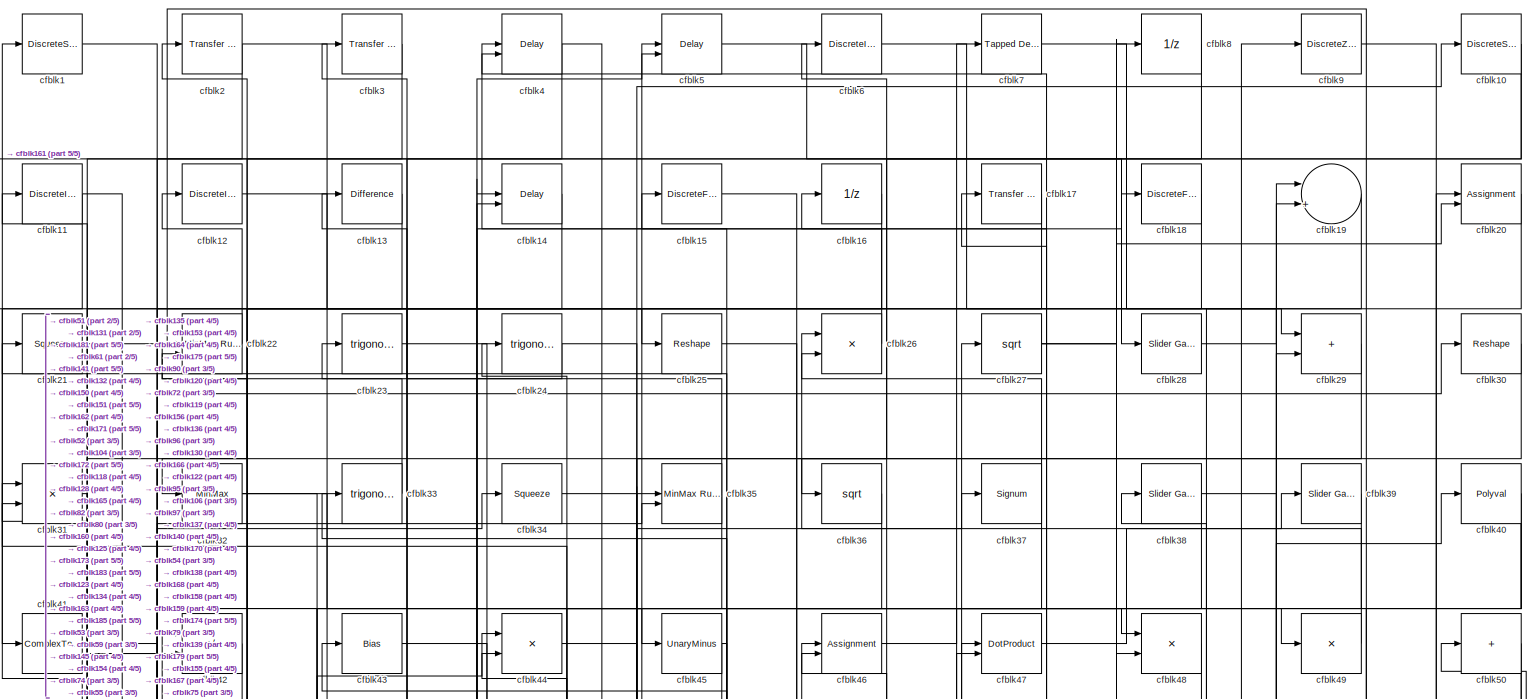
[diagram: root canvas - part 1/5, full width, top band]
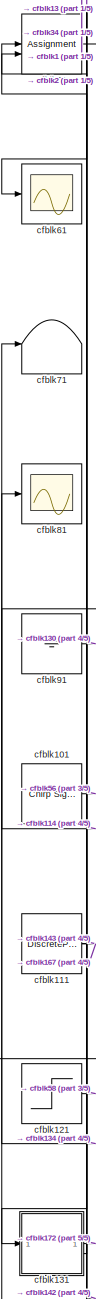
[diagram: root canvas - part 2/5, middle left region]
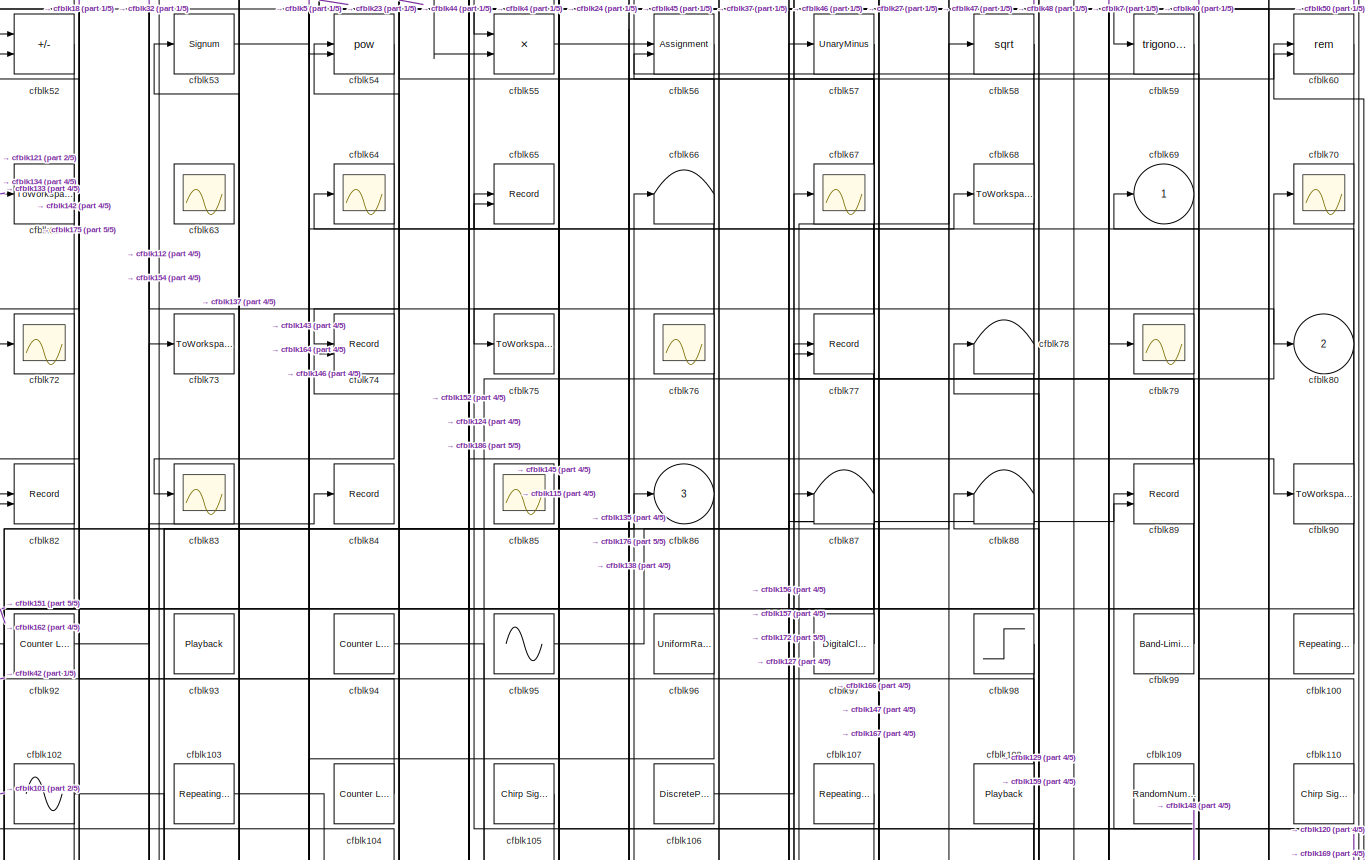
[diagram: root canvas - part 3/5, full width, middle band]
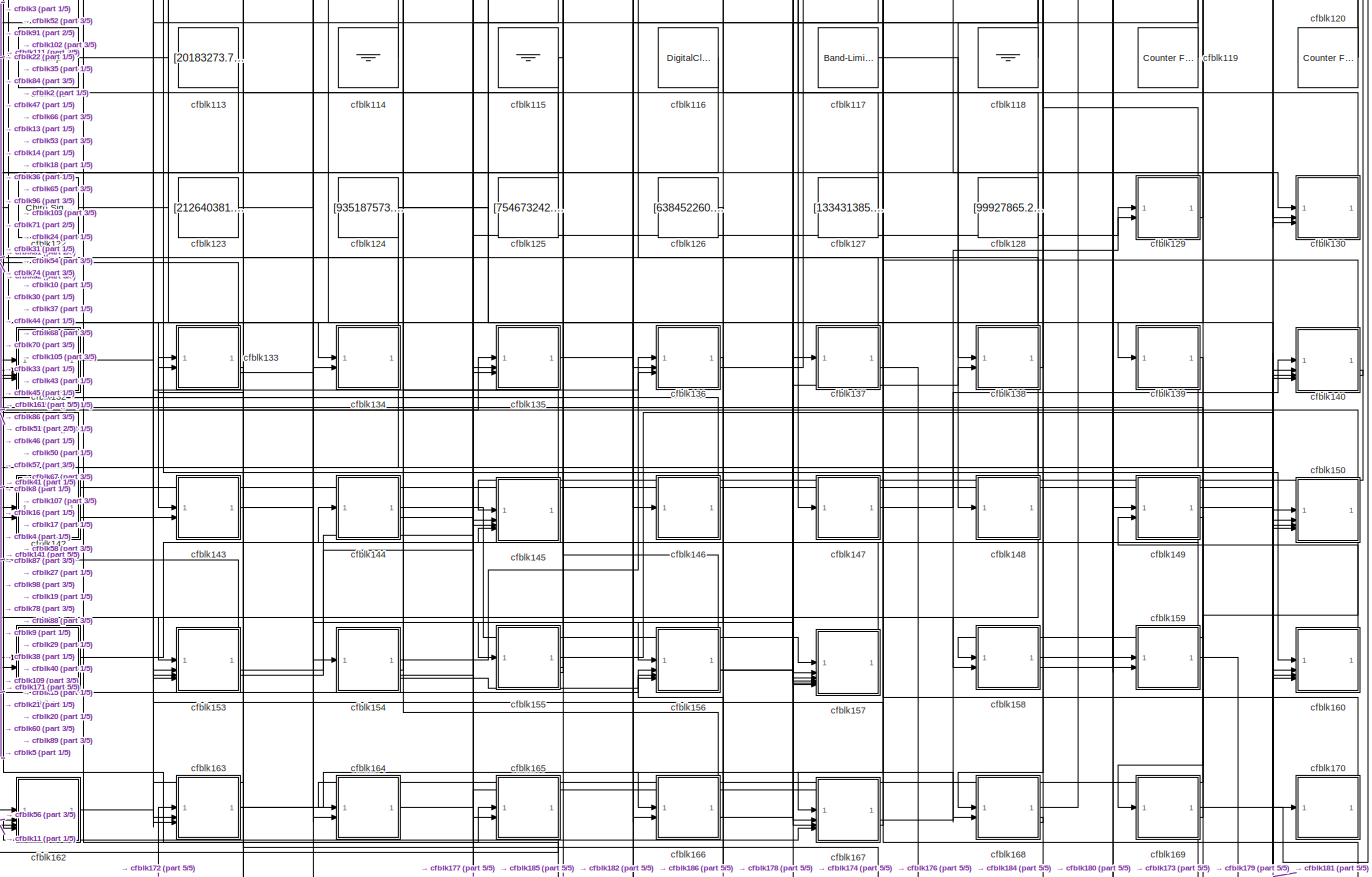
[diagram: root canvas - part 4/5, full width, bottom band]
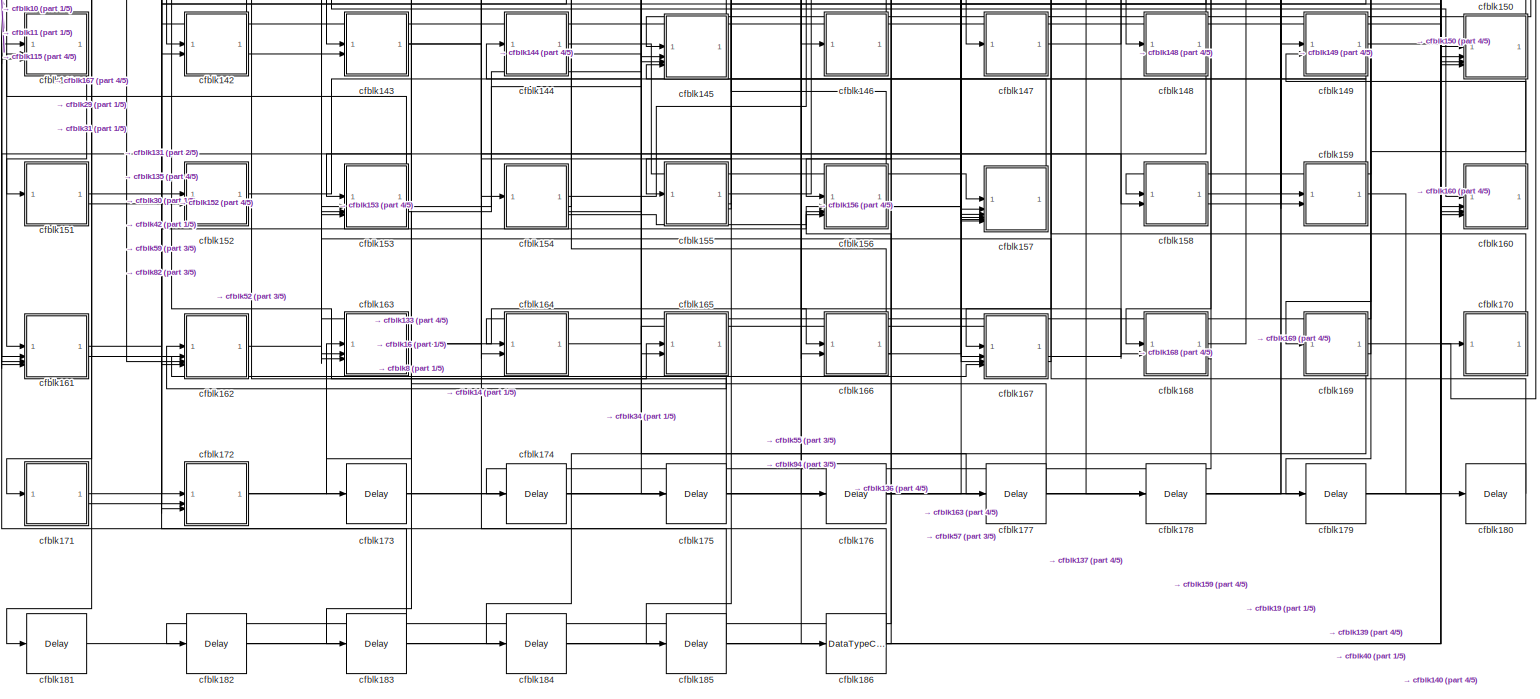
[diagram: root canvas - part 5/5, full width, bottom band]
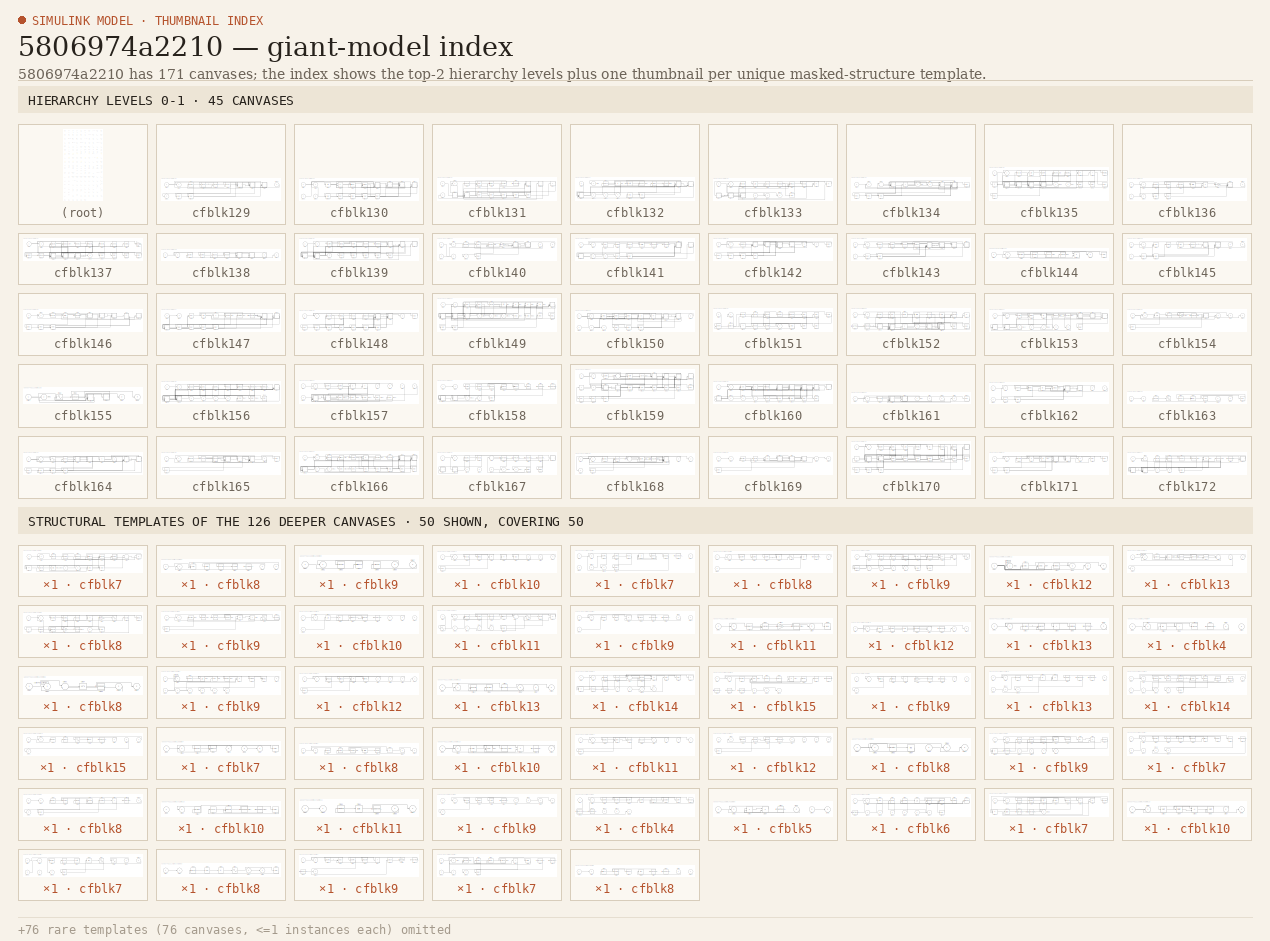
[diagram: thumbnail index - top-2 hierarchy levels (45 canvases) + 50 structural-template representatives of the remaining 126 canvases]
MODEL slx_5806974a2210
KIND model
CONFIG AbsTol = auto
CONFIG EnableMultiTasking = off
CONFIG FixedStep = auto
CONFIG MaxStep = auto
CONFIG MinStep = auto
CONFIG RelTol = 1e-3
CONFIG SampleTimeConstraint = Unconstrained
CONFIG SolverName = VariableStepAuto
CONFIG StartTime = 0.0
CONFIG StopTime = 10.0
BLOCK [DiscreteStateSpace] cfblk1
BLOCK [DiscreteStateSpace] cfblk10
BLOCK [Reference] cfblk100  REF=simulink/Sources/Repeating
Sequence
Stair
  SourceBlock = simulink/Sources/Repeating\nSequence\nStair
  SourceType = Repeating Sequence Stair
BLOCK [Reference] cfblk101  REF=simulink/Sources/Chirp Signal
  SourceBlock = simulink/Sources/Chirp Signal
  SourceType = chirp
BLOCK [Sin] cfblk102
  Amplitude = [-477515735.570016]
  Bias = [72041173.991796]
  SampleTime = 0
BLOCK [Reference] cfblk103  REF=simulink/Sources/Repeating
Sequence
  SourceBlock = simulink/Sources/Repeating\nSequence
  SourceType = Repeating table
BLOCK [Reference] cfblk104  REF=simulink/Sources/Counter
Limited
  SourceBlock = simulink/Sources/Counter\nLimited
  SourceType = Counter Limited
BLOCK [Reference] cfblk105  REF=simulink/Sources/Chirp Signal
  SourceBlock = simulink/Sources/Chirp Signal
  SourceType = chirp
BLOCK [DiscretePulseGenerator] cfblk106
  Amplitude = [720280650.254154]
  Period = [58198645.361039]
  PhaseDelay = [7.000000]
  PulseType = Time based
  PulseWidth = 5
BLOCK [Reference] cfblk107  REF=simulink/Sources/Repeating
Sequence
Interpolated
  SourceBlock = simulink/Sources/Repeating\nSequence\nInterpolated
  SourceType = Repeating Sequence Interpolated
BLOCK [Playback] cfblk108
  NumPorts = 0
  PartName = b011101a-6eb5-4819-b0c8-95222edf8c13
BLOCK [RandomNumber] cfblk109
  Mean = [-63804.166528]
  SampleTime = 0.1
  Seed = [575719339.000000]
  Variance = [5878.142676]
BLOCK [DiscreteIntegrator] cfblk11
  ICPrevOutput = DiscIntNeverNeededParam
  ICPrevScaledInput = DiscIntNeverNeededParam
  InitialConditionSetting = Auto
BLOCK [Reference] cfblk110  REF=simulink/Sources/Chirp Signal
  SourceBlock = simulink/Sources/Chirp Signal
  SourceType = chirp
BLOCK [DiscretePulseGenerator] cfblk111
  Amplitude = [753444769.039848]
  Period = [70377866.971397]
  PhaseDelay = [4.000000]
  PulseType = Time based
  PulseWidth = 5
BLOCK [Reference] cfblk112  REF=simulink/Sources/Ramp
  SourceBlock = simulink/Sources/Ramp
  SourceType = Ramp
BLOCK [Constant] cfblk113
  SampleTime = 1
  Value = [20183273.781295]
BLOCK [Ground] cfblk114
BLOCK [Ground] cfblk115
BLOCK [DigitalClock] cfblk116
BLOCK [Reference] cfblk117  REF=simulink/Sources/Band-Limited
White Noise
  SourceBlock = simulink/Sources/Band-Limited\nWhite Noise
  SourceType = Band-Limited White Noise.
BLOCK [Ground] cfblk118
BLOCK [Reference] cfblk119  REF=simulink/Sources/Counter
Free-Running
  SourceBlock = simulink/Sources/Counter\nFree-Running
  SourceType = Counter Free-Running
BLOCK [DiscreteIntegrator] cfblk12
  ICPrevOutput = DiscIntNeverNeededParam
  ICPrevScaledInput = DiscIntNeverNeededParam
  InitialConditionSetting = Auto
BLOCK [Reference] cfblk120  REF=simulink/Sources/Counter
Free-Running
  SourceBlock = simulink/Sources/Counter\nFree-Running
  SourceType = Counter Free-Running
BLOCK [Step] cfblk121
  After = [851009496.390192]
  Before = [420474009.001986]
  SampleTime = 0
  Time = [19.000000]
BLOCK [Reference] cfblk122  REF=simulink/Sources/Chirp Signal
  SourceBlock = simulink/Sources/Chirp Signal
  SourceType = chirp
BLOCK [Constant] cfblk123
  SampleTime = 1
  Value = [212640381.506928]
BLOCK [Constant] cfblk124
  SampleTime = 1
  Value = [935187573.273408]
BLOCK [Constant] cfblk125
  SampleTime = 1
  Value = [754673242.229157]
BLOCK [Constant] cfblk126
  SampleTime = 1
  Value = [638452260.648839]
BLOCK [Constant] cfblk127
  SampleTime = 1
  Value = [133431385.168226]
BLOCK [Constant] cfblk128
  SampleTime = 1
  Value = [99927865.258640]
BLOCK [SubSystem] cfblk129
BLOCK [Inport] cfblk129/cfblk1
BLOCK [Inport] cfblk129/cfblk10
  Port = 2
BLOCK [Outport] cfblk129/cfblk11
  Port = 2
BLOCK [Delay] cfblk129/cfblk12
  InputPortMap = u0
  SampleTime = 1
BLOCK [Delay] cfblk129/cfblk13
  InputPortMap = u0
  SampleTime = 1
BLOCK [Outport] cfblk129/cfblk2
BLOCK [DiscreteFir] cfblk129/cfblk3
  InputPortMap = u0
  OutputPortMap = o0
  SampleTime = 1
BLOCK [Signum] cfblk129/cfblk4
BLOCK [Assignment] cfblk129/cfblk5
  DiagnosticForDimensions = Warning
  IndexOptions = Index vector (dialog)
  Indices = 1
  OutputSizes = 1
BLOCK [Polyval] cfblk129/cfblk6
  Coefs = [ +2.081618890e-019, -1.441693666e-014, +4.719686976e-010, -8.536869453e-006, +1.621573104e-001, -8.087801117e+001 ]
BLOCK [SubSystem] cfblk129/cfblk7
BLOCK [Inport] cfblk129/cfblk7/cfblk1
BLOCK [Product] cfblk129/cfblk7/cfblk10
  Inputs = **
BLOCK [Sum] cfblk129/cfblk7/cfblk11
  IconShape = rectangular
  Inputs = +-
BLOCK [Signum] cfblk129/cfblk7/cfblk12
BLOCK [Bias] cfblk129/cfblk7/cfblk13
  Bias = [839960934.882999]
  SaturateOnIntegerOverflow = off
BLOCK [Inport] cfblk129/cfblk7/cfblk14
  Port = 2
BLOCK [Inport] cfblk129/cfblk7/cfblk15
  Port = 3
BLOCK [Delay] cfblk129/cfblk7/cfblk16
  InputPortMap = u0
  SampleTime = 1
BLOCK [Delay] cfblk129/cfblk7/cfblk17
  InputPortMap = u0
  SampleTime = 1
BLOCK [Outport] cfblk129/cfblk7/cfblk2
BLOCK [Reference] cfblk129/cfblk7/cfblk3  REF=slpidlib/PID Controller
  LibrarySourceBlock = simulink/Discrete/Discrete PID Controller
  SourceBlock = slpidlib/PID Controller
  SourceType = PID 1dof
BLOCK [DiscreteFir] cfblk129/cfblk7/cfblk4
  InputPortMap = u0
  OutputPortMap = o0
  SampleTime = 1
BLOCK [Reference] cfblk129/cfblk7/cfblk5  REF=slpidlib/PID Controller
  LibrarySourceBlock = simulink/Discrete/Discrete PID Controller
  SourceBlock = slpidlib/PID Controller
  SourceType = PID 1dof
BLOCK [Reference] cfblk129/cfblk7/cfblk6  REF=simulink/Discrete/Difference
  SourceBlock = simulink/Discrete/Difference
  SourceType = Difference
BLOCK [Reference] cfblk129/cfblk7/cfblk7  REF=slpidlib/PID Controller (2DOF)
  LibrarySourceBlock = simulink/Discrete/Discrete PID Controller (2DOF)
  SourceBlock = slpidlib/PID Controller (2DOF)
  SourceType = PID 2dof
BLOCK [DiscreteFir] cfblk129/cfblk7/cfblk8
  InputPortMap = u0
  OutputPortMap = o0
  SampleTime = 1
BLOCK [Sum] cfblk129/cfblk7/cfblk9
  Inputs = |++
BLOCK [SubSystem] cfblk129/cfblk8
BLOCK [Inport] cfblk129/cfblk8/cfblk1
BLOCK [Outport] cfblk129/cfblk8/cfblk2
BLOCK [Delay] cfblk129/cfblk8/cfblk3
  DelayLengthSource = Input port
  InputPortMap = u0,p1
  SampleTime = 1
BLOCK [Sqrt] cfblk129/cfblk8/cfblk4
  AlgorithmType = Newton-Raphson
  Operator = rSqrt
BLOCK [Rounding] cfblk129/cfblk8/cfblk5
BLOCK [Rounding] cfblk129/cfblk8/cfblk6
BLOCK [Constant] cfblk129/cfblk8/cfblk7
  SampleTime = 1
  Value = [787179622.880655]
BLOCK [Inport] cfblk129/cfblk8/cfblk8
  Port = 2
BLOCK [Inport] cfblk129/cfblk8/cfblk9
  Port = 3
BLOCK [SubSystem] cfblk129/cfblk9
BLOCK [Inport] cfblk129/cfblk9/cfblk1
BLOCK [Outport] cfblk129/cfblk9/cfblk2
BLOCK [Reference] cfblk129/cfblk9/cfblk3  REF=simulink/Discrete/Transfer Fcn
Lead or Lag
  SourceBlock = simulink/Discrete/Transfer Fcn\nLead or Lag
  SourceType = Lead or Lag Compensator
BLOCK [Reference] cfblk129/cfblk9/cfblk4  REF=simulink/Discrete/Difference
  SourceBlock = simulink/Discrete/Difference
  SourceType = Difference
BLOCK [Signum] cfblk129/cfblk9/cfblk5
BLOCK [Inport] cfblk129/cfblk9/cfblk6
  Port = 2
BLOCK [Inport] cfblk129/cfblk9/cfblk7
  Port = 3
BLOCK [Reference] cfblk13  REF=simulink/Discrete/Difference
  SourceBlock = simulink/Discrete/Difference
  SourceType = Difference
BLOCK [SubSystem] cfblk130
BLOCK [Inport] cfblk130/cfblk1
BLOCK [SubSystem] cfblk130/cfblk10
BLOCK [Inport] cfblk130/cfblk10/cfblk1
BLOCK [Inport] cfblk130/cfblk10/cfblk10
  Port = 4
BLOCK [Delay] cfblk130/cfblk10/cfblk11
  InputPortMap = u0
  SampleTime = 1
BLOCK [Outport] cfblk130/cfblk10/cfblk2
BLOCK [Reference] cfblk130/cfblk10/cfblk3  REF=simulink/Discrete/Transfer Fcn
Lead or Lag
  SourceBlock = simulink/Discrete/Transfer Fcn\nLead or Lag
  SourceType = Lead or Lag Compensator
BLOCK [Reference] cfblk130/cfblk10/cfblk4  REF=simulink/Discrete/Difference
  SourceBlock = simulink/Discrete/Difference
  SourceType = Difference
BLOCK [Product] cfblk130/cfblk10/cfblk5
BLOCK [Sum] cfblk130/cfblk10/cfblk6
  IconShape = rectangular
  Inputs = +-
BLOCK [Bias] cfblk130/cfblk10/cfblk7
  Bias = [817095211.983372]
  SaturateOnIntegerOverflow = off
BLOCK [Inport] cfblk130/cfblk10/cfblk8
  Port = 2
BLOCK [Inport] cfblk130/cfblk10/cfblk9
  Port = 3
BLOCK [Inport] cfblk130/cfblk11
  Port = 2
BLOCK [Inport] cfblk130/cfblk12
  Port = 3
BLOCK [Delay] cfblk130/cfblk13
  InputPortMap = u0
  SampleTime = 1
BLOCK [Delay] cfblk130/cfblk14
  InputPortMap = u0
  SampleTime = 1
BLOCK [Delay] cfblk130/cfblk15
  InputPortMap = u0
  SampleTime = 1
BLOCK [Delay] cfblk130/cfblk16
  InputPortMap = u0
  SampleTime = 1
BLOCK [Delay] cfblk130/cfblk17
  InputPortMap = u0
  SampleTime = 1
BLOCK [Outport] cfblk130/cfblk2
BLOCK [UnitDelay] cfblk130/cfblk3
  HasFrameUpgradeWarning = on
BLOCK [Sum] cfblk130/cfblk4
  IconShape = rectangular
  Inputs = +-
BLOCK [Trigonometry] cfblk130/cfblk5
BLOCK [MinMax] cfblk130/cfblk6
  Inputs = 3
BLOCK [SubSystem] cfblk130/cfblk7
BLOCK [Inport] cfblk130/cfblk7/cfblk1
BLOCK [Inport] cfblk130/cfblk7/cfblk10
  Port = 2
BLOCK [Inport] cfblk130/cfblk7/cfblk11
  Port = 3
BLOCK [Inport] cfblk130/cfblk7/cfblk12
  Port = 4
BLOCK [Outport] cfblk130/cfblk7/cfblk13
  Port = 2
BLOCK [Delay] cfblk130/cfblk7/cfblk14
  InputPortMap = u0
  SampleTime = 1
BLOCK [Outport] cfblk130/cfblk7/cfblk2
BLOCK [DiscreteStateSpace] cfblk130/cfblk7/cfblk3
BLOCK [DiscreteStateSpace] cfblk130/cfblk7/cfblk4
BLOCK [Polyval] cfblk130/cfblk7/cfblk5
  Coefs = [ +2.081618890e-019, -1.441693666e-014, +4.719686976e-010, -8.536869453e-006, +1.621573104e-001, -8.087801117e+001 ]
BLOCK [Product] cfblk130/cfblk7/cfblk6
  Inputs = **
BLOCK [ComplexToMagnitudeAngle] cfblk130/cfblk7/cfblk7
BLOCK [Rounding] cfblk130/cfblk7/cfblk8
BLOCK [Constant] cfblk130/cfblk7/cfblk9
  SampleTime = 1
  Value = [-610728300.679848]
BLOCK [SubSystem] cfblk130/cfblk8
BLOCK [Inport] cfblk130/cfblk8/cfblk1
BLOCK [Inport] cfblk130/cfblk8/cfblk10
  Port = 2
BLOCK [Inport] cfblk130/cfblk8/cfblk11
  Port = 3
BLOCK [Outport] cfblk130/cfblk8/cfblk2
BLOCK [DiscreteFilter] cfblk130/cfblk8/cfblk3
  InputPortMap = u0
  SampleTime = 1
BLOCK [DiscreteZeroPole] cfblk130/cfblk8/cfblk4
  Gain = 1
  Poles = [0 0.5]
BLOCK [DiscreteTransferFcn] cfblk130/cfblk8/cfblk5
  InputPortMap = u0
  SampleTime = 1
BLOCK [Product] cfblk130/cfblk8/cfblk6
BLOCK [Sin] cfblk130/cfblk8/cfblk7
  SampleTime = 0
  TimeSource = Use external signal
BLOCK [Product] cfblk130/cfblk8/cfblk8
BLOCK [Constant] cfblk130/cfblk8/cfblk9
  SampleTime = 1
  Value = [-842661004.303617]
BLOCK [SubSystem] cfblk130/cfblk9
BLOCK [Inport] cfblk130/cfblk9/cfblk1
BLOCK [Sin] cfblk130/cfblk9/cfblk10
  SampleTime = 0
  TimeSource = Use external signal
BLOCK [Reference] cfblk130/cfblk9/cfblk11  REF=simulink/Math
Operations/MinMax
Running
Resettable
  SourceBlock = simulink/Math\nOperations/MinMax\nRunning\nResettable
  SourceType = MinMax Running Resettable
BLOCK [Inport] cfblk130/cfblk9/cfblk12
  Port = 2
BLOCK [Inport] cfblk130/cfblk9/cfblk13
  Port = 3
BLOCK [Outport] cfblk130/cfblk9/cfblk14
  Port = 2
BLOCK [Outport] cfblk130/cfblk9/cfblk15
  Port = 3
BLOCK [Delay] cfblk130/cfblk9/cfblk16
  InputPortMap = u0
  SampleTime = 1
BLOCK [Delay] cfblk130/cfblk9/cfblk17
  InputPortMap = u0
  SampleTime = 1
BLOCK [Outport] cfblk130/cfblk9/cfblk2
BLOCK [DiscreteTransferFcn] cfblk130/cfblk9/cfblk3
  InputPortMap = u0
  SampleTime = 1
BLOCK [Reference] cfblk130/cfblk9/cfblk4  REF=simulink/Discrete/Transfer Fcn
Real Zero
  SourceBlock = simulink/Discrete/Transfer Fcn\nReal Zero
  SourceType = Transfer Fcn Real Zero
BLOCK [Reference] cfblk130/cfblk9/cfblk5  REF=simulink/Math
Operations/MinMax
Running
Resettable
  SourceBlock = simulink/Math\nOperations/MinMax\nRunning\nResettable
  SourceType = MinMax Running Resettable
BLOCK [Abs] cfblk130/cfblk9/cfblk6
  SaturateOnIntegerOverflow = off
BLOCK [Signum] cfblk130/cfblk9/cfblk7
BLOCK [Sum] cfblk130/cfblk9/cfblk8
  IconShape = rectangular
  Inputs = -+
BLOCK [Sum] cfblk130/cfblk9/cfblk9
  Inputs = |++
BLOCK [SubSystem] cfblk131
BLOCK [Inport] cfblk131/cfblk1
BLOCK [If] cfblk131/cfblk10
  IfExpression = u1 >= 0
  SampleTime = 1
BLOCK [Outport] cfblk131/cfblk11
  Port = 2
BLOCK [SubSystem] cfblk131/cfblk12
  TreatAsAtomicUnit = on
BLOCK [ActionPort] cfblk131/cfblk12/Action Port
  ActionPortLabel = if(u1 >= 0)
BLOCK [Inport] cfblk131/cfblk12/cfblk1
BLOCK [Outport] cfblk131/cfblk12/cfblk2
BLOCK [Delay] cfblk131/cfblk12/cfblk3
  InputPortMap = u0,e6
  ShowEnablePort = on
BLOCK [Delay] cfblk131/cfblk12/cfblk4
  DelayLengthSource = Input port
  InputPortMap = u0,p1
BLOCK [MinMax] cfblk131/cfblk12/cfblk5
  Function = max
BLOCK [Outport] cfblk131/cfblk12/cfblk6
  Port = 2
BLOCK [Outport] cfblk131/cfblk12/cfblk7
  Port = 3
BLOCK [Outport] cfblk131/cfblk12/cfblk8
  Port = 4
BLOCK [SubSystem] cfblk131/cfblk13
  TreatAsAtomicUnit = on
BLOCK [ActionPort] cfblk131/cfblk13/Action Port
  ActionPortLabel = else
BLOCK [Inport] cfblk131/cfblk13/cfblk1
BLOCK [Inport] cfblk131/cfblk13/cfblk10
  Port = 3
BLOCK [Outport] cfblk131/cfblk13/cfblk11
  Port = 2
BLOCK [Outport] cfblk131/cfblk13/cfblk2
BLOCK [ComplexToMagnitudeAngle] cfblk131/cfblk13/cfblk3
BLOCK [Sum] cfblk131/cfblk13/cfblk4
  IconShape = rectangular
  Inputs = -+
BLOCK [Squeeze] cfblk131/cfblk13/cfblk5
BLOCK [Signum] cfblk131/cfblk13/cfblk6
BLOCK [Squeeze] cfblk131/cfblk13/cfblk7
BLOCK [Sum] cfblk131/cfblk13/cfblk8
  Inputs = |++
BLOCK [Inport] cfblk131/cfblk13/cfblk9
  Port = 2
BLOCK [Delay] cfblk131/cfblk14
  InputPortMap = u0
  SampleTime = 1
BLOCK [Delay] cfblk131/cfblk15
  InputPortMap = u0
  SampleTime = 1
BLOCK [Delay] cfblk131/cfblk16
  InputPortMap = u0
  SampleTime = 1
BLOCK [Delay] cfblk131/cfblk17
  InputPortMap = u0
  SampleTime = 1
BLOCK [Delay] cfblk131/cfblk18
  InputPortMap = u0
  SampleTime = 1
BLOCK [Outport] cfblk131/cfblk2
BLOCK [Reference] cfblk131/cfblk3  REF=simulink/Discrete/Tapped Delay
  SourceBlock = simulink/Discrete/Tapped Delay
  SourceType = Tapped Delay Line
BLOCK [Delay] cfblk131/cfblk4
  DelayLengthSource = Input port
  InputPortMap = u0,p1
  SampleTime = 1
BLOCK [Trigonometry] cfblk131/cfblk5
BLOCK [UnaryMinus] cfblk131/cfblk6
BLOCK [Constant] cfblk131/cfblk7
  SampleTime = 1
  Value = [-879711208.618790]
BLOCK [SubSystem] cfblk131/cfblk8
BLOCK [Inport] cfblk131/cfblk8/cfblk1
BLOCK [Reference] cfblk131/cfblk8/cfblk10  REF=simulink/Math
Operations/Slider
Gain
  SourceBlock = simulink/Math\nOperations/Slider\nGain
  SourceType = Slider Gain
BLOCK [Sum] cfblk131/cfblk8/cfblk11
  IconShape = rectangular
  Inputs = +
BLOCK [PermuteDimensions] cfblk131/cfblk8/cfblk12
BLOCK [Reference] cfblk131/cfblk8/cfblk13  REF=simulink/Math
Operations/MinMax
Running
Resettable
  SourceBlock = simulink/Math\nOperations/MinMax\nRunning\nResettable
  SourceType = MinMax Running Resettable
BLOCK [Gain] cfblk131/cfblk8/cfblk14
  Gain = [459161782.308450]
BLOCK [Constant] cfblk131/cfblk8/cfblk15
  SampleTime = 1
  Value = [779212882.808627]
BLOCK [Inport] cfblk131/cfblk8/cfblk16
  Port = 2
BLOCK [Delay] cfblk131/cfblk8/cfblk17
  InputPortMap = u0
  SampleTime = 1
BLOCK [Outport] cfblk131/cfblk8/cfblk2
BLOCK [DiscreteIntegrator] cfblk131/cfblk8/cfblk3
  ICPrevOutput = DiscIntNeverNeededParam
  ICPrevScaledInput = DiscIntNeverNeededParam
  InitialConditionSetting = Auto
BLOCK [DiscreteStateSpace] cfblk131/cfblk8/cfblk4
BLOCK [Rounding] cfblk131/cfblk8/cfblk5
BLOCK [Sum] cfblk131/cfblk8/cfblk6
  IconShape = rectangular
  Inputs = +-
BLOCK [Gain] cfblk131/cfblk8/cfblk7
  Gain = [-468410068.072459]
BLOCK [Sin] cfblk131/cfblk8/cfblk8
  SampleTime = 0
  TimeSource = Use external signal
BLOCK [Rounding] cfblk131/cfblk8/cfblk9
BLOCK [SubSystem] cfblk131/cfblk9
BLOCK [Inport] cfblk131/cfblk9/cfblk1
BLOCK [Rounding] cfblk131/cfblk9/cfblk10
BLOCK [Delay] cfblk131/cfblk9/cfblk11
  InputPortMap = u0
  SampleTime = 1
BLOCK [Outport] cfblk131/cfblk9/cfblk2
BLOCK [DiscreteZeroPole] cfblk131/cfblk9/cfblk3
  Gain = 1
  Poles = [0 0.5]
BLOCK [DiscreteIntegrator] cfblk131/cfblk9/cfblk4
  ICPrevOutput = DiscIntNeverNeededParam
  ICPrevScaledInput = DiscIntNeverNeededParam
  InitialConditionSetting = Auto
BLOCK [Reference] cfblk131/cfblk9/cfblk5  REF=simulink/Discrete/Transfer Fcn
Lead or Lag
  SourceBlock = simulink/Discrete/Transfer Fcn\nLead or Lag
  SourceType = Lead or Lag Compensator
BLOCK [Reference] cfblk131/cfblk9/cfblk6  REF=simulink/Discrete/Transfer Fcn
Lead or Lag
  SourceBlock = simulink/Discrete/Transfer Fcn\nLead or Lag
  SourceType = Lead or Lag Compensator
BLOCK [Sum] cfblk131/cfblk9/cfblk7
  IconShape = rectangular
  Inputs = +-
BLOCK [Sum] cfblk131/cfblk9/cfblk8
  IconShape = rectangular
BLOCK [Sin] cfblk131/cfblk9/cfblk9
  SampleTime = 0
  TimeSource = Use external signal
BLOCK [SubSystem] cfblk132
BLOCK [Inport] cfblk132/cfblk1
BLOCK [SubSystem] cfblk132/cfblk10
BLOCK [Inport] cfblk132/cfblk10/cfblk1
BLOCK [Inport] cfblk132/cfblk10/cfblk10
  Port = 4
BLOCK [Inport] cfblk132/cfblk10/cfblk11
  Port = 5
BLOCK [Outport] cfblk132/cfblk10/cfblk2
BLOCK [UnitDelay] cfblk132/cfblk10/cfblk3
  HasFrameUpgradeWarning = on
BLOCK [Abs] cfblk132/cfblk10/cfblk4
  SaturateOnIntegerOverflow = off
BLOCK [DotProduct] cfblk132/cfblk10/cfblk5
  OutDataTypeStr = Inherit: Inherit via internal rule
BLOCK [Reference] cfblk132/cfblk10/cfblk6  REF=simulink/Math
Operations/MinMax
Running
Resettable
  SourceBlock = simulink/Math\nOperations/MinMax\nRunning\nResettable
  SourceType = MinMax Running Resettable
BLOCK [Constant] cfblk132/cfblk10/cfblk7
  SampleTime = 1
  Value = [-259036778.791860]
BLOCK [Inport] cfblk132/cfblk10/cfblk8
  Port = 2
BLOCK [Inport] cfblk132/cfblk10/cfblk9
  Port = 3
BLOCK [SubSystem] cfblk132/cfblk11
BLOCK [Inport] cfblk132/cfblk11/cfblk1
BLOCK [Sum] cfblk132/cfblk11/cfblk10
  IconShape = rectangular
  Inputs = -+
BLOCK [Sin] cfblk132/cfblk11/cfblk11
  SampleTime = 0
  TimeSource = Use external signal
BLOCK [Inport] cfblk132/cfblk11/cfblk12
  Port = 2
BLOCK [Inport] cfblk132/cfblk11/cfblk13
  Port = 3
BLOCK [Inport] cfblk132/cfblk11/cfblk14
  Port = 4
BLOCK [Outport] cfblk132/cfblk11/cfblk15
  Port = 2
BLOCK [Delay] cfblk132/cfblk11/cfblk16
  InputPortMap = u0
  SampleTime = 1
BLOCK [Outport] cfblk132/cfblk11/cfblk2
BLOCK [Reference] cfblk132/cfblk11/cfblk3  REF=slpidlib/PID Controller (2DOF)
  LibrarySourceBlock = simulink/Discrete/Discrete PID Controller (2DOF)
  SourceBlock = slpidlib/PID Controller (2DOF)
  SourceType = PID 2dof
BLOCK [DiscreteStateSpace] cfblk132/cfblk11/cfblk4
BLOCK [Reference] cfblk132/cfblk11/cfblk5  REF=simulink/Discrete/Tapped Delay
  SourceBlock = simulink/Discrete/Tapped Delay
  SourceType = Tapped Delay Line
BLOCK [Reference] cfblk132/cfblk11/cfblk6  REF=simulink/Discrete/Difference
  SourceBlock = simulink/Discrete/Difference
  SourceType = Difference
BLOCK [Sum] cfblk132/cfblk11/cfblk7
  Inputs = |++
BLOCK [Sin] cfblk132/cfblk11/cfblk8
  SampleTime = 0
  TimeSource = Use external signal
BLOCK [Signum] cfblk132/cfblk11/cfblk9
BLOCK [Inport] cfblk132/cfblk12
  Port = 2
BLOCK [Inport] cfblk132/cfblk13
  Port = 3
BLOCK [Inport] cfblk132/cfblk14
  Port = 4
BLOCK [Delay] cfblk132/cfblk15
  InputPortMap = u0
  SampleTime = 1
BLOCK [Delay] cfblk132/cfblk16
  InputPortMap = u0
  SampleTime = 1
BLOCK [Outport] cfblk132/cfblk2
BLOCK [ComplexToMagnitudeAngle] cfblk132/cfblk3
BLOCK [Product] cfblk132/cfblk4
  Inputs = *
BLOCK [Sqrt] cfblk132/cfblk5
  AlgorithmType = Newton-Raphson
  Operator = rSqrt
BLOCK [Squeeze] cfblk132/cfblk6
BLOCK [MinMax] cfblk132/cfblk7
BLOCK [Constant] cfblk132/cfblk8
  SampleTime = 1
  Value = [291262025.743041]
BLOCK [SubSystem] cfblk132/cfblk9
BLOCK [Inport] cfblk132/cfblk9/cfblk1
BLOCK [Inport] cfblk132/cfblk9/cfblk10
  Port = 3
BLOCK [Inport] cfblk132/cfblk9/cfblk11
  Port = 4
BLOCK [Outport] cfblk132/cfblk9/cfblk2
BLOCK [DiscreteStateSpace] cfblk132/cfblk9/cfblk3
BLOCK [Signum] cfblk132/cfblk9/cfblk4
BLOCK [Product] cfblk132/cfblk9/cfblk5
BLOCK [Signum] cfblk132/cfblk9/cfblk6
BLOCK [Constant] cfblk132/cfblk9/cfblk7
  SampleTime = 1
  Value = [773930065.279327]
BLOCK [Constant] cfblk132/cfblk9/cfblk8
  SampleTime = 1
  Value = [-380688371.941781]
BLOCK [Inport] cfblk132/cfblk9/cfblk9
  Port = 2
BLOCK [SubSystem] cfblk133
BLOCK [Inport] cfblk133/cfblk1
BLOCK [Sum] cfblk133/cfblk10
  IconShape = rectangular
  Inputs = +-
BLOCK [SubSystem] cfblk133/cfblk11
BLOCK [Inport] cfblk133/cfblk11/cfblk1
BLOCK [Outport] cfblk133/cfblk11/cfblk2
BLOCK [ComplexToRealImag] cfblk133/cfblk11/cfblk3
BLOCK [Assignment] cfblk133/cfblk11/cfblk4
  DiagnosticForDimensions = Warning
  IndexOptions = Index vector (dialog)
  Indices = 1
  OutputSizes = 1
BLOCK [Gain] cfblk133/cfblk11/cfblk5
  Gain = [641344015.890319]
BLOCK [Constant] cfblk133/cfblk11/cfblk6
  SampleTime = 1
  Value = [-858026401.942738]
BLOCK [Outport] cfblk133/cfblk11/cfblk7
  Port = 2
BLOCK [Delay] cfblk133/cfblk11/cfblk8
  InputPortMap = u0
  SampleTime = 1
BLOCK [SubSystem] cfblk133/cfblk12
BLOCK [Inport] cfblk133/cfblk12/cfblk1
BLOCK [Outport] cfblk133/cfblk12/cfblk10
  Port = 3
BLOCK [Outport] cfblk133/cfblk12/cfblk2
BLOCK [Delay] cfblk133/cfblk12/cfblk3
  InputPortMap = u0
  SampleTime = 1
BLOCK [DiscreteFir] cfblk133/cfblk12/cfblk4
  InputPortMap = u0
  OutputPortMap = o0
  SampleTime = 1
BLOCK [Sqrt] cfblk133/cfblk12/cfblk5
BLOCK [UnaryMinus] cfblk133/cfblk12/cfblk6
BLOCK [Sum] cfblk133/cfblk12/cfblk7
  Inputs = |++
BLOCK [Constant] cfblk133/cfblk12/cfblk8
  SampleTime = 1
  Value = [-605830765.974785]
BLOCK [Outport] cfblk133/cfblk12/cfblk9
  Port = 2
BLOCK [SubSystem] cfblk133/cfblk13
BLOCK [Inport] cfblk133/cfblk13/cfblk1
BLOCK [Outport] cfblk133/cfblk13/cfblk2
BLOCK [DiscreteStateSpace] cfblk133/cfblk13/cfblk3
BLOCK [Reference] cfblk133/cfblk13/cfblk4  REF=simulink/Math
Operations/MinMax
Running
Resettable
  SourceBlock = simulink/Math\nOperations/MinMax\nRunning\nResettable
  SourceType = MinMax Running Resettable
BLOCK [Sum] cfblk133/cfblk13/cfblk5
  IconShape = rectangular
  Inputs = +
BLOCK [PermuteDimensions] cfblk133/cfblk13/cfblk6
BLOCK [Constant] cfblk133/cfblk13/cfblk7
  SampleTime = 1
  Value = [-192272514.252641]
BLOCK [Inport] cfblk133/cfblk13/cfblk8
  Port = 2
BLOCK [Inport] cfblk133/cfblk14
  Port = 2
BLOCK [Outport] cfblk133/cfblk15
  Port = 2
BLOCK [Outport] cfblk133/cfblk16
  Port = 3
BLOCK [Delay] cfblk133/cfblk17
  InputPortMap = u0
  SampleTime = 1
BLOCK [Outport] cfblk133/cfblk2
BLOCK [Reference] cfblk133/cfblk3  REF=simulink/Discrete/Transfer Fcn
Lead or Lag
  SourceBlock = simulink/Discrete/Transfer Fcn\nLead or Lag
  SourceType = Lead or Lag Compensator
BLOCK [UnitDelay] cfblk133/cfblk4
  HasFrameUpgradeWarning = on
BLOCK [Signum] cfblk133/cfblk5
BLOCK [PermuteDimensions] cfblk133/cfblk6
BLOCK [DotProduct] cfblk133/cfblk7
  OutDataTypeStr = Inherit: Inherit via internal rule
BLOCK [Reshape] cfblk133/cfblk8
BLOCK [Sum] cfblk133/cfblk9
  IconShape = rectangular
  Inputs = +-
BLOCK [SubSystem] cfblk134
BLOCK [Inport] cfblk134/cfblk1
BLOCK [Delay] cfblk134/cfblk10
  InputPortMap = u0
  SampleTime = 1
BLOCK [Delay] cfblk134/cfblk11
  InputPortMap = u0
  SampleTime = 1
BLOCK [Delay] cfblk134/cfblk12
  InputPortMap = u0
  SampleTime = 1
BLOCK [Delay] cfblk134/cfblk13
  InputPortMap = u0
  SampleTime = 1
BLOCK [Outport] cfblk134/cfblk2
BLOCK [Sum] cfblk134/cfblk3
  Inputs = |++
BLOCK [SubSystem] cfblk134/cfblk4
BLOCK [Inport] cfblk134/cfblk4/cfblk1
BLOCK [Outport] cfblk134/cfblk4/cfblk2
BLOCK [Abs] cfblk134/cfblk4/cfblk3
  SaturateOnIntegerOverflow = off
BLOCK [Sum] cfblk134/cfblk4/cfblk4
  IconShape = rectangular
  Inputs = +
BLOCK [Signum] cfblk134/cfblk4/cfblk5
BLOCK [Constant] cfblk134/cfblk4/cfblk6
  SampleTime = 1
  Value = [913856729.958485]
BLOCK [Inport] cfblk134/cfblk4/cfblk7
  Port = 2
BLOCK [Inport] cfblk134/cfblk4/cfblk8
  Port = 3
BLOCK [If] cfblk134/cfblk5
  IfExpression = u1 >= 0
  SampleTime = 1
BLOCK [Inport] cfblk134/cfblk6
  Port = 2
BLOCK [Outport] cfblk134/cfblk7
  Port = 2
BLOCK [SubSystem] cfblk134/cfblk8
  TreatAsAtomicUnit = on
BLOCK [ActionPort] cfblk134/cfblk8/Action Port
  ActionPortLabel = if(u1 >= 0)
BLOCK [Inport] cfblk134/cfblk8/cfblk1
BLOCK [Outport] cfblk134/cfblk8/cfblk2
BLOCK [Sum] cfblk134/cfblk8/cfblk3
  Inputs = |++
BLOCK [Math] cfblk134/cfblk8/cfblk4
  Operator = 10^u
BLOCK [Constant] cfblk134/cfblk8/cfblk5
  SampleTime = 1
  Value = [241505950.785986]
BLOCK [Inport] cfblk134/cfblk8/cfblk6
  Port = 2
BLOCK [Outport] cfblk134/cfblk8/cfblk7
  Port = 2
BLOCK [SubSystem] cfblk134/cfblk9
  TreatAsAtomicUnit = on
BLOCK [ActionPort] cfblk134/cfblk9/Action Port
  ActionPortLabel = else
BLOCK [Inport] cfblk134/cfblk9/cfblk1
BLOCK [Inport] cfblk134/cfblk9/cfblk10
  Port = 2
BLOCK [Inport] cfblk134/cfblk9/cfblk11
  Port = 3
BLOCK [Inport] cfblk134/cfblk9/cfblk12
  Port = 4
BLOCK [Outport] cfblk134/cfblk9/cfblk13
  Port = 2
BLOCK [Outport] cfblk134/cfblk9/cfblk14
  Port = 3
BLOCK [Outport] cfblk134/cfblk9/cfblk15
  Port = 4
BLOCK [Outport] cfblk134/cfblk9/cfblk16
  Port = 5
BLOCK [Outport] cfblk134/cfblk9/cfblk2
BLOCK [Reference] cfblk134/cfblk9/cfblk3  REF=simulink/Discrete/Transfer Fcn
Lead or Lag
  SourceBlock = simulink/Discrete/Transfer Fcn\nLead or Lag
  SourceType = Lead or Lag Compensator
BLOCK [UnitDelay] cfblk134/cfblk9/cfblk4
  HasFrameUpgradeWarning = on
  SampleTime = -1
BLOCK [Delay] cfblk134/cfblk9/cfblk5
  InputPortMap = u0
BLOCK [DiscreteZeroPole] cfblk134/cfblk9/cfblk6
  Gain = 1
  Poles = [0 0.5]
  SampleTime = -1
BLOCK [Product] cfblk134/cfblk9/cfblk7
  Inputs = **
BLOCK [PermuteDimensions] cfblk134/cfblk9/cfblk8
BLOCK [Trigonometry] cfblk134/cfblk9/cfblk9
BLOCK [SubSystem] cfblk135
BLOCK [Inport] cfblk135/cfblk1
BLOCK [PermuteDimensions] cfblk135/cfblk10
BLOCK [Product] cfblk135/cfblk11
  Inputs = *
BLOCK [SubSystem] cfblk135/cfblk12
BLOCK [Inport] cfblk135/cfblk12/cfblk1
BLOCK [Outport] cfblk135/cfblk12/cfblk10
  Port = 2
BLOCK [Delay] cfblk135/cfblk12/cfblk11
  InputPortMap = u0
  SampleTime = 1
BLOCK [Outport] cfblk135/cfblk12/cfblk2
BLOCK [PropagationDelay] cfblk135/cfblk12/cfblk3
  SampleTime = 1
BLOCK [Reference] cfblk135/cfblk12/cfblk4  REF=simulink/Discrete/Difference
  SourceBlock = simulink/Discrete/Difference
  SourceType = Difference
BLOCK [Product] cfblk135/cfblk12/cfblk5
  Inputs = **
BLOCK [Trigonometry] cfblk135/cfblk12/cfblk6
BLOCK [Inport] cfblk135/cfblk12/cfblk7
  Port = 2
BLOCK [Inport] cfblk135/cfblk12/cfblk8
  Port = 3
BLOCK [Inport] cfblk135/cfblk12/cfblk9
  Port = 4
BLOCK [SubSystem] cfblk135/cfblk13
BLOCK [Inport] cfblk135/cfblk13/cfblk1
BLOCK [Outport] cfblk135/cfblk13/cfblk2
BLOCK [PropagationDelay] cfblk135/cfblk13/cfblk3
  SampleTime = 1
BLOCK [DiscreteIntegrator] cfblk135/cfblk13/cfblk4
  ICPrevOutput = DiscIntNeverNeededParam
  ICPrevScaledInput = DiscIntNeverNeededParam
  InitialConditionSetting = Auto
BLOCK [Rounding] cfblk135/cfblk13/cfblk5
BLOCK [Inport] cfblk135/cfblk13/cfblk6
  Port = 2
BLOCK [Inport] cfblk135/cfblk13/cfblk7
  Port = 3
BLOCK [Outport] cfblk135/cfblk13/cfblk8
  Port = 2
BLOCK [SubSystem] cfblk135/cfblk14
BLOCK [Inport] cfblk135/cfblk14/cfblk1
BLOCK [Sum] cfblk135/cfblk14/cfblk10
  IconShape = rectangular
  Inputs = +
BLOCK [Product] cfblk135/cfblk14/cfblk11
BLOCK [Constant] cfblk135/cfblk14/cfblk12
  SampleTime = 1
  Value = [-278172261.717273]
BLOCK [Constant] cfblk135/cfblk14/cfblk13
  SampleTime = 1
  Value = [-589429660.723729]
BLOCK [Inport] cfblk135/cfblk14/cfblk14
  Port = 2
BLOCK [Inport] cfblk135/cfblk14/cfblk15
  Port = 3
BLOCK [Inport] cfblk135/cfblk14/cfblk16
  Port = 4
BLOCK [Outport] cfblk135/cfblk14/cfblk17
  Port = 2
BLOCK [Outport] cfblk135/cfblk14/cfblk2
BLOCK [DiscreteIntegrator] cfblk135/cfblk14/cfblk3
  ICPrevOutput = DiscIntNeverNeededParam
  ICPrevScaledInput = DiscIntNeverNeededParam
  InitialConditionSetting = Auto
BLOCK [Polyval] cfblk135/cfblk14/cfblk4
  Coefs = [ +2.081618890e-019, -1.441693666e-014, +4.719686976e-010, -8.536869453e-006, +1.621573104e-001, -8.087801117e+001 ]
BLOCK [Sum] cfblk135/cfblk14/cfblk5
  Inputs = |++
BLOCK [Reshape] cfblk135/cfblk14/cfblk6
BLOCK [Sum] cfblk135/cfblk14/cfblk7
  IconShape = rectangular
  Inputs = -+
BLOCK [Math] cfblk135/cfblk14/cfblk8
  Operator = 10^u
BLOCK [Bias] cfblk135/cfblk14/cfblk9
  Bias = [-877762042.695378]
  SaturateOnIntegerOverflow = off
BLOCK [SubSystem] cfblk135/cfblk15
BLOCK [Inport] cfblk135/cfblk15/cfblk1
BLOCK [Constant] cfblk135/cfblk15/cfblk10
  SampleTime = 1
  Value = [-619212913.210201]
BLOCK [Constant] cfblk135/cfblk15/cfblk11
  SampleTime = 1
  Value = [-559190623.228161]
BLOCK [Constant] cfblk135/cfblk15/cfblk12
  SampleTime = 1
  Value = [203635179.405806]
BLOCK [Constant] cfblk135/cfblk15/cfblk13
  SampleTime = 1
  Value = [-264079852.924604]
BLOCK [Inport] cfblk135/cfblk15/cfblk14
  Port = 2
BLOCK [Inport] cfblk135/cfblk15/cfblk15
  Port = 3
BLOCK [Outport] cfblk135/cfblk15/cfblk16
  Port = 2
BLOCK [Outport] cfblk135/cfblk15/cfblk2
BLOCK [DiscreteZeroPole] cfblk135/cfblk15/cfblk3
  Gain = 1
  Poles = [0 0.5]
BLOCK [Delay] cfblk135/cfblk15/cfblk4
  DelayLengthSource = Input port
  InputPortMap = u0,p1
  SampleTime = 1
BLOCK [Signum] cfblk135/cfblk15/cfblk5
BLOCK [ComplexToMagnitudeAngle] cfblk135/cfblk15/cfblk6
BLOCK [Sum] cfblk135/cfblk15/cfblk7
  IconShape = rectangular
  Inputs = +-
BLOCK [Reference] cfblk135/cfblk15/cfblk8  REF=simulink/Math
Operations/Slider
Gain
  SourceBlock = simulink/Math\nOperations/Slider\nGain
  SourceType = Slider Gain
BLOCK [Squeeze] cfblk135/cfblk15/cfblk9
BLOCK [Inport] cfblk135/cfblk16
  Port = 2
BLOCK [Inport] cfblk135/cfblk17
  Port = 3
BLOCK [Delay] cfblk135/cfblk18
  InputPortMap = u0
  SampleTime = 1
BLOCK [Delay] cfblk135/cfblk19
  InputPortMap = u0
  SampleTime = 1
BLOCK [Outport] cfblk135/cfblk2
BLOCK [Delay] cfblk135/cfblk20
  InputPortMap = u0
  SampleTime = 1
BLOCK [Delay] cfblk135/cfblk21
  InputPortMap = u0
  SampleTime = 1
BLOCK [Reference] cfblk135/cfblk3  REF=simulink/Discrete/Transfer Fcn
First Order
  SourceBlock = simulink/Discrete/Transfer Fcn\nFirst Order
  SourceType = First Order Transfer Fcn
BLOCK [UnitDelay] cfblk135/cfblk4
  HasFrameUpgradeWarning = on
BLOCK [DiscreteFir] cfblk135/cfblk5
  InputPortMap = u0
  OutputPortMap = o0
  SampleTime = 1
BLOCK [Reference] cfblk135/cfblk6  REF=slpidlib/PID Controller (2DOF)
  LibrarySourceBlock = simulink/Discrete/Discrete PID Controller (2DOF)
  SourceBlock = slpidlib/PID Controller (2DOF)
  SourceType = PID 2dof
BLOCK [DiscreteStateSpace] cfblk135/cfblk7
BLOCK [Sum] cfblk135/cfblk8
  IconShape = rectangular
  Inputs = +-
BLOCK [Sum] cfblk135/cfblk9
  IconShape = rectangular
  Inputs = +
BLOCK [SubSystem] cfblk136
BLOCK [Inport] cfblk136/cfblk1
BLOCK [Inport] cfblk136/cfblk10
  Port = 2
BLOCK [Inport] cfblk136/cfblk11
  Port = 3
BLOCK [Outport] cfblk136/cfblk12
  Port = 2
BLOCK [Delay] cfblk136/cfblk13
  InputPortMap = u0
  SampleTime = 1
BLOCK [Delay] cfblk136/cfblk14
  InputPortMap = u0
  SampleTime = 1
BLOCK [Outport] cfblk136/cfblk2
BLOCK [Reference] cfblk136/cfblk3  REF=simulink/Discrete/Transfer Fcn
Lead or Lag
  SourceBlock = simulink/Discrete/Transfer Fcn\nLead or Lag
  SourceType = Lead or Lag Compensator
BLOCK [DiscreteTransferFcn] cfblk136/cfblk4
  InputPortMap = u0
  SampleTime = 1
BLOCK [Reshape] cfblk136/cfblk5
BLOCK [Sqrt] cfblk136/cfblk6
  AlgorithmType = Newton-Raphson
  Operator = rSqrt
BLOCK [Product] cfblk136/cfblk7
BLOCK [Gain] cfblk136/cfblk8
  Gain = [364411054.574952]
BLOCK [SubSystem] cfblk136/cfblk9
BLOCK [Inport] cfblk136/cfblk9/cfblk1
BLOCK [Inport] cfblk136/cfblk9/cfblk10
  Port = 3
BLOCK [Outport] cfblk136/cfblk9/cfblk11
  Port = 2
BLOCK [Outport] cfblk136/cfblk9/cfblk2
BLOCK [Reference] cfblk136/cfblk9/cfblk3  REF=simulink/Discrete/Difference
  SourceBlock = simulink/Discrete/Difference
  SourceType = Difference
BLOCK [Reference] cfblk136/cfblk9/cfblk4  REF=simulink/Discrete/Difference
  SourceBlock = simulink/Discrete/Difference
  SourceType = Difference
BLOCK [Sum] cfblk136/cfblk9/cfblk5
  IconShape = rectangular
  Inputs = +
BLOCK [Gain] cfblk136/cfblk9/cfblk6
  Gain = [-166635587.038039]
BLOCK [Rounding] cfblk136/cfblk9/cfblk7
BLOCK [Constant] cfblk136/cfblk9/cfblk8
  SampleTime = 1
  Value = [-185283362.667530]
BLOCK [Inport] cfblk136/cfblk9/cfblk9
  Port = 2
BLOCK [SubSystem] cfblk137
BLOCK [Inport] cfblk137/cfblk1
BLOCK [Gain] cfblk137/cfblk10
  Gain = [651893475.720202]
BLOCK [MinMax] cfblk137/cfblk11
  Function = max
  Inputs = 2
BLOCK [Constant] cfblk137/cfblk12
  SampleTime = 1
  Value = [518251470.380557]
BLOCK [SubSystem] cfblk137/cfblk13
BLOCK [Inport] cfblk137/cfblk13/cfblk1
BLOCK [Inport] cfblk137/cfblk13/cfblk10
  Port = 2
BLOCK [Inport] cfblk137/cfblk13/cfblk11
  Port = 3
BLOCK [Inport] cfblk137/cfblk13/cfblk12
  Port = 4
BLOCK [Outport] cfblk137/cfblk13/cfblk13
  Port = 2
BLOCK [Outport] cfblk137/cfblk13/cfblk2
BLOCK [Reference] cfblk137/cfblk13/cfblk3  REF=simulink/Discrete/Tapped Delay
  SourceBlock = simulink/Discrete/Tapped Delay
  SourceType = Tapped Delay Line
BLOCK [Reference] cfblk137/cfblk13/cfblk4  REF=simulink/Math
Operations/Slider
Gain
  SourceBlock = simulink/Math\nOperations/Slider\nGain
  SourceType = Slider Gain
BLOCK [Abs] cfblk137/cfblk13/cfblk5
  SaturateOnIntegerOverflow = off
BLOCK [Product] cfblk137/cfblk13/cfblk6
BLOCK [UnaryMinus] cfblk137/cfblk13/cfblk7
BLOCK [Constant] cfblk137/cfblk13/cfblk8
  SampleTime = 1
  Value = [-190552281.993715]
BLOCK [Constant] cfblk137/cfblk13/cfblk9
  SampleTime = 1
  Value = [-914391506.724116]
BLOCK [SubSystem] cfblk137/cfblk14
BLOCK [Inport] cfblk137/cfblk14/cfblk1
BLOCK [Inport] cfblk137/cfblk14/cfblk10
  Port = 2
BLOCK [Inport] cfblk137/cfblk14/cfblk11
  Port = 3
BLOCK [Inport] cfblk137/cfblk14/cfblk12
  Port = 4
BLOCK [Outport] cfblk137/cfblk14/cfblk13
  Port = 2
BLOCK [Outport] cfblk137/cfblk14/cfblk14
  Port = 3
BLOCK [Delay] cfblk137/cfblk14/cfblk15
  InputPortMap = u0
  SampleTime = 1
BLOCK [Outport] cfblk137/cfblk14/cfblk2
BLOCK [Reference] cfblk137/cfblk14/cfblk3  REF=simulink/Discrete/Transfer Fcn
Real Zero
  SourceBlock = simulink/Discrete/Transfer Fcn\nReal Zero
  SourceType = Transfer Fcn Real Zero
BLOCK [Delay] cfblk137/cfblk14/cfblk4
  InputPortMap = u0
  SampleTime = 1
BLOCK [Reference] cfblk137/cfblk14/cfblk5  REF=simulink/Discrete/Transfer Fcn
First Order
  SourceBlock = simulink/Discrete/Transfer Fcn\nFirst Order
  SourceType = First Order Transfer Fcn
BLOCK [Delay] cfblk137/cfblk14/cfblk6
  DelayLengthSource = Input port
  InputPortMap = u0,p1
  SampleTime = 1
BLOCK [Signum] cfblk137/cfblk14/cfblk7
BLOCK [Signum] cfblk137/cfblk14/cfblk8
BLOCK [ComplexToRealImag] cfblk137/cfblk14/cfblk9
BLOCK [SubSystem] cfblk137/cfblk15
BLOCK [Inport] cfblk137/cfblk15/cfblk1
BLOCK [Inport] cfblk137/cfblk15/cfblk10
  Port = 4
BLOCK [Outport] cfblk137/cfblk15/cfblk11
  Port = 2
BLOCK [Outport] cfblk137/cfblk15/cfblk2
BLOCK [DiscreteStateSpace] cfblk137/cfblk15/cfblk3
BLOCK [ComplexToRealImag] cfblk137/cfblk15/cfblk4
BLOCK [Sin] cfblk137/cfblk15/cfblk5
  SampleTime = 0
  TimeSource = Use external signal
BLOCK [Trigonometry] cfblk137/cfblk15/cfblk6
BLOCK [Constant] cfblk137/cfblk15/cfblk7
  SampleTime = 1
  Value = [-603946704.757632]
BLOCK [Inport] cfblk137/cfblk15/cfblk8
  Port = 2
BLOCK [Inport] cfblk137/cfblk15/cfblk9
  Port = 3
BLOCK [Outport] cfblk137/cfblk16
  Port = 2
BLOCK [Delay] cfblk137/cfblk17
  InputPortMap = u0
  SampleTime = 1
BLOCK [Delay] cfblk137/cfblk18
  InputPortMap = u0
  SampleTime = 1
BLOCK [Delay] cfblk137/cfblk19
  InputPortMap = u0
  SampleTime = 1
BLOCK [Outport] cfblk137/cfblk2
BLOCK [Delay] cfblk137/cfblk20
  InputPortMap = u0
  SampleTime = 1
BLOCK [Reference] cfblk137/cfblk3  REF=slpidlib/PID Controller (2DOF)
  LibrarySourceBlock = simulink/Discrete/Discrete PID Controller (2DOF)
  SourceBlock = slpidlib/PID Controller (2DOF)
  SourceType = PID 2dof
BLOCK [PropagationDelay] cfblk137/cfblk4
  SampleTime = 1
BLOCK [Reference] cfblk137/cfblk5  REF=simulink/Discrete/Transfer Fcn
First Order
  SourceBlock = simulink/Discrete/Transfer Fcn\nFirst Order
  SourceType = First Order Transfer Fcn
BLOCK [Reference] cfblk137/cfblk6  REF=slpidlib/PID Controller
  LibrarySourceBlock = simulink/Discrete/Discrete PID Controller
  SourceBlock = slpidlib/PID Controller
  SourceType = PID 1dof
BLOCK [Reference] cfblk137/cfblk7  REF=simulink/Discrete/Transfer Fcn
Real Zero
  SourceBlock = simulink/Discrete/Transfer Fcn\nReal Zero
  SourceType = Transfer Fcn Real Zero
BLOCK [Squeeze] cfblk137/cfblk8
BLOCK [UnaryMinus] cfblk137/cfblk9
BLOCK [SubSystem] cfblk138
BLOCK [Inport] cfblk138/cfblk1
BLOCK [Outport] cfblk138/cfblk10
  Port = 2
BLOCK [Outport] cfblk138/cfblk2
BLOCK [DiscreteTransferFcn] cfblk138/cfblk3
  InputPortMap = u0
  SampleTime = 1
BLOCK [DiscreteZeroPole] cfblk138/cfblk4
  Gain = 1
  Poles = [0 0.5]
BLOCK [Reference] cfblk138/cfblk5  REF=slpidlib/PID Controller
  LibrarySourceBlock = simulink/Discrete/Discrete PID Controller
  SourceBlock = slpidlib/PID Controller
  SourceType = PID 1dof
BLOCK [Reshape] cfblk138/cfblk6
BLOCK [SubSystem] cfblk138/cfblk7
BLOCK [Inport] cfblk138/cfblk7/cfblk1
BLOCK [Outport] cfblk138/cfblk7/cfblk2
BLOCK [Reference] cfblk138/cfblk7/cfblk3  REF=simulink/Discrete/Transfer Fcn
Lead or Lag
  SourceBlock = simulink/Discrete/Transfer Fcn\nLead or Lag
  SourceType = Lead or Lag Compensator
BLOCK [DotProduct] cfblk138/cfblk7/cfblk4
  OutDataTypeStr = Inherit: Inherit via internal rule
BLOCK [Inport] cfblk138/cfblk7/cfblk5
  Port = 2
BLOCK [Inport] cfblk138/cfblk7/cfblk6
  Port = 3
BLOCK [Outport] cfblk138/cfblk7/cfblk7
  Port = 2
BLOCK [Delay] cfblk138/cfblk7/cfblk8
  InputPortMap = u0
  SampleTime = 1
BLOCK [SubSystem] cfblk138/cfblk8
BLOCK [Inport] cfblk138/cfblk8/cfblk1
BLOCK [Outport] cfblk138/cfblk8/cfblk10
  Port = 2
BLOCK [Outport] cfblk138/cfblk8/cfblk2
BLOCK [Reference] cfblk138/cfblk8/cfblk3  REF=simulink/Discrete/Transfer Fcn
First Order
  SourceBlock = simulink/Discrete/Transfer Fcn\nFirst Order
  SourceType = First Order Transfer Fcn
BLOCK [DiscreteZeroPole] cfblk138/cfblk8/cfblk4
  Gain = 1
  Poles = [0 0.5]
BLOCK [UnaryMinus] cfblk138/cfblk8/cfblk5
BLOCK [Math] cfblk138/cfblk8/cfblk6
BLOCK [UnaryMinus] cfblk138/cfblk8/cfblk7
BLOCK [Sum] cfblk138/cfblk8/cfblk8
  IconShape = rectangular
  Inputs = +
BLOCK [Inport] cfblk138/cfblk8/cfblk9
  Port = 2
BLOCK [Inport] cfblk138/cfblk9
  Port = 2
BLOCK [SubSystem] cfblk139
BLOCK [Inport] cfblk139/cfblk1
BLOCK [SubSystem] cfblk139/cfblk10
BLOCK [Inport] cfblk139/cfblk10/cfblk1
BLOCK [Outport] cfblk139/cfblk10/cfblk2
BLOCK [Delay] cfblk139/cfblk10/cfblk3
  InputPortMap = u0
  SampleTime = 1
BLOCK [Delay] cfblk139/cfblk10/cfblk4
  InputPortMap = u0,e6
  SampleTime = 1
  ShowEnablePort = on
BLOCK [Reshape] cfblk139/cfblk10/cfblk5
BLOCK [Product] cfblk139/cfblk10/cfblk6
  Inputs = **
BLOCK [Constant] cfblk139/cfblk10/cfblk7
  SampleTime = 1
  Value = [-617109439.617472]
BLOCK [Inport] cfblk139/cfblk10/cfblk8
  Port = 2
BLOCK [SubSystem] cfblk139/cfblk11
BLOCK [Inport] cfblk139/cfblk11/cfblk1
BLOCK [Outport] cfblk139/cfblk11/cfblk10
  Port = 2
BLOCK [Delay] cfblk139/cfblk11/cfblk11
  InputPortMap = u0
  SampleTime = 1
BLOCK [Outport] cfblk139/cfblk11/cfblk2
BLOCK [DiscreteStateSpace] cfblk139/cfblk11/cfblk3
BLOCK [Math] cfblk139/cfblk11/cfblk4
  Operator = rem
BLOCK [Assignment] cfblk139/cfblk11/cfblk5
  DiagnosticForDimensions = Warning
  IndexOptions = Index vector (dialog)
  Indices = 1
  OutputSizes = 1
BLOCK [Reshape] cfblk139/cfblk11/cfblk6
BLOCK [Inport] cfblk139/cfblk11/cfblk7
  Port = 2
BLOCK [Inport] cfblk139/cfblk11/cfblk8
  Port = 3
BLOCK [Inport] cfblk139/cfblk11/cfblk9
  Port = 4
BLOCK [SubSystem] cfblk139/cfblk12
BLOCK [Inport] cfblk139/cfblk12/cfblk1
BLOCK [Inport] cfblk139/cfblk12/cfblk10
  Port = 5
BLOCK [Delay] cfblk139/cfblk12/cfblk11
  InputPortMap = u0
  SampleTime = 1
BLOCK [Outport] cfblk139/cfblk12/cfblk2
BLOCK [DiscreteIntegrator] cfblk139/cfblk12/cfblk3
  ICPrevOutput = DiscIntNeverNeededParam
  ICPrevScaledInput = DiscIntNeverNeededParam
  InitialConditionSetting = Auto
BLOCK [DiscreteIntegrator] cfblk139/cfblk12/cfblk4
  ICPrevOutput = DiscIntNeverNeededParam
  ICPrevScaledInput = DiscIntNeverNeededParam
  InitialConditionSetting = Auto
BLOCK [Reference] cfblk139/cfblk12/cfblk5  REF=simulink/Math
Operations/MinMax
Running
Resettable
  SourceBlock = simulink/Math\nOperations/MinMax\nRunning\nResettable
  SourceType = MinMax Running Resettable
BLOCK [Constant] cfblk139/cfblk12/cfblk6
  SampleTime = 1
  Value = [159069157.716894]
BLOCK [Inport] cfblk139/cfblk12/cfblk7
  Port = 2
BLOCK [Inport] cfblk139/cfblk12/cfblk8
  Port = 3
BLOCK [Inport] cfblk139/cfblk12/cfblk9
  Port = 4
BLOCK [Outport] cfblk139/cfblk13
  Port = 2
BLOCK [Delay] cfblk139/cfblk14
  InputPortMap = u0
  SampleTime = 1
BLOCK [Delay] cfblk139/cfblk15
  InputPortMap = u0
  SampleTime = 1
BLOCK [Delay] cfblk139/cfblk16
  InputPortMap = u0
  SampleTime = 1
BLOCK [Delay] cfblk139/cfblk17
  InputPortMap = u0
  SampleTime = 1
BLOCK [Delay] cfblk139/cfblk18
  InputPortMap = u0
  SampleTime = 1
BLOCK [Outport] cfblk139/cfblk2
BLOCK [DiscreteTransferFcn] cfblk139/cfblk3
  InputPortMap = u0
  SampleTime = 1
BLOCK [Reference] cfblk139/cfblk4  REF=simulink/Math
Operations/Slider
Gain
  SourceBlock = simulink/Math\nOperations/Slider\nGain
  SourceType = Slider Gain
BLOCK [Sqrt] cfblk139/cfblk5
BLOCK [Squeeze] cfblk139/cfblk6
BLOCK [Constant] cfblk139/cfblk7
  SampleTime = 1
  Value = [-595999081.343417]
BLOCK [SubSystem] cfblk139/cfblk8
BLOCK [Inport] cfblk139/cfblk8/cfblk1
BLOCK [Outport] cfblk139/cfblk8/cfblk2
BLOCK [DiscreteFilter] cfblk139/cfblk8/cfblk3
  InputPortMap = u0
  SampleTime = 1
BLOCK [Math] cfblk139/cfblk8/cfblk4
  Operator = log
BLOCK [Inport] cfblk139/cfblk8/cfblk5
  Port = 2
BLOCK [Outport] cfblk139/cfblk8/cfblk6
  Port = 2
BLOCK [Outport] cfblk139/cfblk8/cfblk7
  Port = 3
BLOCK [SubSystem] cfblk139/cfblk9
BLOCK [Inport] cfblk139/cfblk9/cfblk1
BLOCK [Squeeze] cfblk139/cfblk9/cfblk10
BLOCK [Product] cfblk139/cfblk9/cfblk11
  Inputs = **
BLOCK [Constant] cfblk139/cfblk9/cfblk12
  SampleTime = 1
  Value = [991796350.161302]
BLOCK [Inport] cfblk139/cfblk9/cfblk13
  Port = 2
BLOCK [Inport] cfblk139/cfblk9/cfblk14
  Port = 3
BLOCK [Inport] cfblk139/cfblk9/cfblk15
  Port = 4
BLOCK [Outport] cfblk139/cfblk9/cfblk16
  Port = 2
BLOCK [Outport] cfblk139/cfblk9/cfblk2
BLOCK [Reference] cfblk139/cfblk9/cfblk3  REF=simulink/Discrete/Transfer Fcn
First Order
  SourceBlock = simulink/Discrete/Transfer Fcn\nFirst Order
  SourceType = First Order Transfer Fcn
BLOCK [DiscreteZeroPole] cfblk139/cfblk9/cfblk4
  Gain = 1
  Poles = [0 0.5]
BLOCK [DiscreteIntegrator] cfblk139/cfblk9/cfblk5
  ICPrevOutput = DiscIntNeverNeededParam
  ICPrevScaledInput = DiscIntNeverNeededParam
  InitialConditionSetting = Auto
BLOCK [Delay] cfblk139/cfblk9/cfblk6
  DelayLengthSource = Input port
  InputPortMap = u0,p1
  SampleTime = 1
BLOCK [UnaryMinus] cfblk139/cfblk9/cfblk7
BLOCK [Abs] cfblk139/cfblk9/cfblk8
  SaturateOnIntegerOverflow = off
BLOCK [Sum] cfblk139/cfblk9/cfblk9
  IconShape = rectangular
  Inputs = +-
BLOCK [Delay] cfblk14
  InputPortMap = u0,e6
  SampleTime = 1
  ShowEnablePort = on
BLOCK [SubSystem] cfblk140
BLOCK [Inport] cfblk140/cfblk1
BLOCK [Inport] cfblk140/cfblk10
  Port = 3
BLOCK [Inport] cfblk140/cfblk11
  Port = 4
BLOCK [Outport] cfblk140/cfblk12
  Port = 2
BLOCK [Outport] cfblk140/cfblk13
  Port = 3
BLOCK [Delay] cfblk140/cfblk14
  InputPortMap = u0
  SampleTime = 1
BLOCK [Outport] cfblk140/cfblk2
BLOCK [Reference] cfblk140/cfblk3  REF=simulink/Discrete/Tapped Delay
  SourceBlock = simulink/Discrete/Tapped Delay
  SourceType = Tapped Delay Line
BLOCK [Delay] cfblk140/cfblk4
  InputPortMap = u0
  SampleTime = 1
BLOCK [Assignment] cfblk140/cfblk5
  DiagnosticForDimensions = Warning
  IndexOptions = Index vector (dialog)
  Indices = 1
  OutputSizes = 1
BLOCK [Gain] cfblk140/cfblk6
  Gain = [-337675472.519738]
BLOCK [SubSystem] cfblk140/cfblk7
BLOCK [Inport] cfblk140/cfblk7/cfblk1
BLOCK [Constant] cfblk140/cfblk7/cfblk10
  SampleTime = 1
  Value = [687991863.977745]
BLOCK [Inport] cfblk140/cfblk7/cfblk11
  Port = 2
BLOCK [Inport] cfblk140/cfblk7/cfblk12
  Port = 3
BLOCK [Outport] cfblk140/cfblk7/cfblk13
  Port = 2
BLOCK [Outport] cfblk140/cfblk7/cfblk14
  Port = 3
BLOCK [Outport] cfblk140/cfblk7/cfblk2
BLOCK [DiscreteStateSpace] cfblk140/cfblk7/cfblk3
BLOCK [Reference] cfblk140/cfblk7/cfblk4  REF=simulink/Discrete/Transfer Fcn
Lead or Lag
  SourceBlock = simulink/Discrete/Transfer Fcn\nLead or Lag
  SourceType = Lead or Lag Compensator
BLOCK [DiscreteZeroPole] cfblk140/cfblk7/cfblk5
  Gain = 1
  Poles = [0 0.5]
BLOCK [Reference] cfblk140/cfblk7/cfblk6  REF=simulink/Discrete/Transfer Fcn
Lead or Lag
  SourceBlock = simulink/Discrete/Transfer Fcn\nLead or Lag
  SourceType = Lead or Lag Compensator
BLOCK [Reference] cfblk140/cfblk7/cfblk7  REF=simulink/Discrete/Difference
  SourceBlock = simulink/Discrete/Difference
  SourceType = Difference
BLOCK [DiscreteTransferFcn] cfblk140/cfblk7/cfblk8
  InputPortMap = u0
  SampleTime = 1
BLOCK [Polyval] cfblk140/cfblk7/cfblk9
  Coefs = [ +2.081618890e-019, -1.441693666e-014, +4.719686976e-010, -8.536869453e-006, +1.621573104e-001, -8.087801117e+001 ]
BLOCK [SubSystem] cfblk140/cfblk8
BLOCK [Inport] cfblk140/cfblk8/cfblk1
BLOCK [Inport] cfblk140/cfblk8/cfblk10
  Port = 2
BLOCK [Outport] cfblk140/cfblk8/cfblk11
  Port = 2
BLOCK [Delay] cfblk140/cfblk8/cfblk12
  InputPortMap = u0
  SampleTime = 1
BLOCK [Outport] cfblk140/cfblk8/cfblk2
BLOCK [DiscreteStateSpace] cfblk140/cfblk8/cfblk3
BLOCK [DiscreteZeroPole] cfblk140/cfblk8/cfblk4
  Gain = 1
  Poles = [0 0.5]
BLOCK [PermuteDimensions] cfblk140/cfblk8/cfblk5
BLOCK [Assignment] cfblk140/cfblk8/cfblk6
  DiagnosticForDimensions = Warning
  IndexOptions = Index vector (dialog)
  Indices = 1
  OutputSizes = 1
BLOCK [UnaryMinus] cfblk140/cfblk8/cfblk7
BLOCK [Sum] cfblk140/cfblk8/cfblk8
  IconShape = rectangular
  Inputs = +
BLOCK [Constant] cfblk140/cfblk8/cfblk9
  SampleTime = 1
  Value = [986904709.045283]
BLOCK [Inport] cfblk140/cfblk9
  Port = 2
BLOCK [SubSystem] cfblk141
BLOCK [Inport] cfblk141/cfblk1
BLOCK [SubSystem] cfblk141/cfblk10
BLOCK [Inport] cfblk141/cfblk10/cfblk1
BLOCK [Outport] cfblk141/cfblk10/cfblk2
BLOCK [DiscreteFilter] cfblk141/cfblk10/cfblk3
  InputPortMap = u0
  SampleTime = 1
BLOCK [Polyval] cfblk141/cfblk10/cfblk4
  Coefs = [ +2.081618890e-019, -1.441693666e-014, +4.719686976e-010, -8.536869453e-006, +1.621573104e-001, -8.087801117e+001 ]
BLOCK [Reference] cfblk141/cfblk10/cfblk5  REF=simulink/Math
Operations/MinMax
Running
Resettable
  SourceBlock = simulink/Math\nOperations/MinMax\nRunning\nResettable
  SourceType = MinMax Running Resettable
BLOCK [Constant] cfblk141/cfblk10/cfblk6
  SampleTime = 1
  Value = [-199239202.035362]
BLOCK [Constant] cfblk141/cfblk10/cfblk7
  SampleTime = 1
  Value = [83399863.738537]
BLOCK [Delay] cfblk141/cfblk10/cfblk8
  InputPortMap = u0
  SampleTime = 1
BLOCK [SubSystem] cfblk141/cfblk11
BLOCK [Inport] cfblk141/cfblk11/cfblk1
BLOCK [Outport] cfblk141/cfblk11/cfblk2
BLOCK [PermuteDimensions] cfblk141/cfblk11/cfblk3
BLOCK [Sqrt] cfblk141/cfblk11/cfblk4
  AlgorithmType = Newton-Raphson
  Operator = rSqrt
BLOCK [Constant] cfblk141/cfblk11/cfblk5
  SampleTime = 1
  Value = [228980796.522772]
BLOCK [Inport] cfblk141/cfblk11/cfblk6
  Port = 2
BLOCK [Outport] cfblk141/cfblk11/cfblk7
  Port = 2
BLOCK [Inport] cfblk141/cfblk12
  Port = 2
BLOCK [Inport] cfblk141/cfblk13
  Port = 3
BLOCK [Delay] cfblk141/cfblk14
  InputPortMap = u0
  SampleTime = 1
BLOCK [Delay] cfblk141/cfblk15
  InputPortMap = u0
  SampleTime = 1
BLOCK [Outport] cfblk141/cfblk2
BLOCK [Delay] cfblk141/cfblk3
  InputPortMap = u0
  SampleTime = 1
BLOCK [PermuteDimensions] cfblk141/cfblk4
BLOCK [Signum] cfblk141/cfblk5
BLOCK [Math] cfblk141/cfblk6
BLOCK [Constant] cfblk141/cfblk7
  SampleTime = 1
  Value = [773437629.546619]
BLOCK [Constant] cfblk141/cfblk8
  SampleTime = 1
  Value = [-615309156.626634]
BLOCK [SubSystem] cfblk141/cfblk9
BLOCK [Inport] cfblk141/cfblk9/cfblk1
BLOCK [Outport] cfblk141/cfblk9/cfblk10
  Port = 2
BLOCK [Outport] cfblk141/cfblk9/cfblk11
  Port = 3
BLOCK [Outport] cfblk141/cfblk9/cfblk2
BLOCK [Reference] cfblk141/cfblk9/cfblk3  REF=simulink/Discrete/Transfer Fcn
Lead or Lag
  SourceBlock = simulink/Discrete/Transfer Fcn\nLead or Lag
  SourceType = Lead or Lag Compensator
BLOCK [MinMax] cfblk141/cfblk9/cfblk4
  Function = max
BLOCK [Math] cfblk141/cfblk9/cfblk5
  Operator = 10^u
BLOCK [Constant] cfblk141/cfblk9/cfblk6
  SampleTime = 1
  Value = [822693086.321830]
BLOCK [Inport] cfblk141/cfblk9/cfblk7
  Port = 2
BLOCK [Inport] cfblk141/cfblk9/cfblk8
  Port = 3
BLOCK [Inport] cfblk141/cfblk9/cfblk9
  Port = 4
BLOCK [SubSystem] cfblk142
BLOCK [Inport] cfblk142/cfblk1
BLOCK [Delay] cfblk142/cfblk10
  InputPortMap = u0
  SampleTime = 1
BLOCK [Delay] cfblk142/cfblk11
  InputPortMap = u0
  SampleTime = 1
BLOCK [Delay] cfblk142/cfblk12
  InputPortMap = u0
  SampleTime = 1
BLOCK [Delay] cfblk142/cfblk13
  InputPortMap = u0
  SampleTime = 1
BLOCK [Delay] cfblk142/cfblk14
  InputPortMap = u0
  SampleTime = 1
BLOCK [Outport] cfblk142/cfblk2
BLOCK [Constant] cfblk142/cfblk3
  SampleTime = 1
  Value = [-728485137.526243]
BLOCK [SubSystem] cfblk142/cfblk4
BLOCK [Inport] cfblk142/cfblk4/cfblk1
BLOCK [Reshape] cfblk142/cfblk4/cfblk10
BLOCK [Constant] cfblk142/cfblk4/cfblk11
  SampleTime = 1
  Value = [698451375.296782]
BLOCK [Constant] cfblk142/cfblk4/cfblk12
  SampleTime = 1
  Value = [429920940.729578]
BLOCK [Inport] cfblk142/cfblk4/cfblk13
  Port = 2
BLOCK [Inport] cfblk142/cfblk4/cfblk14
  Port = 3
BLOCK [Outport] cfblk142/cfblk4/cfblk15
  Port = 2
BLOCK [Outport] cfblk142/cfblk4/cfblk2
BLOCK [DiscreteFilter] cfblk142/cfblk4/cfblk3
  InputPortMap = u0
  SampleTime = 1
BLOCK [DiscreteIntegrator] cfblk142/cfblk4/cfblk4
  ICPrevOutput = DiscIntNeverNeededParam
  ICPrevScaledInput = DiscIntNeverNeededParam
  InitialConditionSetting = Auto
BLOCK [DiscreteTransferFcn] cfblk142/cfblk4/cfblk5
  InputPortMap = u0
  SampleTime = 1
BLOCK [DiscreteFilter] cfblk142/cfblk4/cfblk6
  InputPortMap = u0
  SampleTime = 1
BLOCK [Reference] cfblk142/cfblk4/cfblk7  REF=simulink/Discrete/Transfer Fcn
First Order
  SourceBlock = simulink/Discrete/Transfer Fcn\nFirst Order
  SourceType = First Order Transfer Fcn
BLOCK [UnaryMinus] cfblk142/cfblk4/cfblk8
BLOCK [Math] cfblk142/cfblk4/cfblk9
  Operator = 10^u
BLOCK [SubSystem] cfblk142/cfblk5
BLOCK [Inport] cfblk142/cfblk5/cfblk1
BLOCK [Outport] cfblk142/cfblk5/cfblk2
BLOCK [Product] cfblk142/cfblk5/cfblk3
BLOCK [Product] cfblk142/cfblk5/cfblk4
  Inputs = **
BLOCK [Constant] cfblk142/cfblk5/cfblk5
  SampleTime = 1
  Value = [670870212.898370]
BLOCK [Inport] cfblk142/cfblk5/cfblk6
  Port = 2
BLOCK [Inport] cfblk142/cfblk5/cfblk7
  Port = 3
BLOCK [Outport] cfblk142/cfblk5/cfblk8
  Port = 2
BLOCK [SubSystem] cfblk142/cfblk6
BLOCK [Inport] cfblk142/cfblk6/cfblk1
BLOCK [Reference] cfblk142/cfblk6/cfblk10  REF=simulink/Math
Operations/MinMax
Running
Resettable
  SourceBlock = simulink/Math\nOperations/MinMax\nRunning\nResettable
  SourceType = MinMax Running Resettable
BLOCK [Constant] cfblk142/cfblk6/cfblk11
  SampleTime = 1
  Value = [-288878495.062511]
BLOCK [Inport] cfblk142/cfblk6/cfblk12
  Port = 2
BLOCK [Inport] cfblk142/cfblk6/cfblk13
  Port = 3
BLOCK [Inport] cfblk142/cfblk6/cfblk14
  Port = 4
BLOCK [Inport] cfblk142/cfblk6/cfblk15
  Port = 5
BLOCK [Inport] cfblk142/cfblk6/cfblk16
  Port = 6
BLOCK [Outport] cfblk142/cfblk6/cfblk17
  Port = 2
BLOCK [Delay] cfblk142/cfblk6/cfblk18
  InputPortMap = u0
  SampleTime = 1
BLOCK [Outport] cfblk142/cfblk6/cfblk2
BLOCK [Delay] cfblk142/cfblk6/cfblk3
  InputPortMap = u0
  SampleTime = 1
BLOCK [Reference] cfblk142/cfblk6/cfblk4  REF=simulink/Discrete/Transfer Fcn
First Order
  SourceBlock = simulink/Discrete/Transfer Fcn\nFirst Order
  SourceType = First Order Transfer Fcn
BLOCK [PropagationDelay] cfblk142/cfblk6/cfblk5
  SampleTime = 1
BLOCK [UnitDelay] cfblk142/cfblk6/cfblk6
  HasFrameUpgradeWarning = on
BLOCK [Reference] cfblk142/cfblk6/cfblk7  REF=simulink/Math
Operations/MinMax
Running
Resettable
  SourceBlock = simulink/Math\nOperations/MinMax\nRunning\nResettable
  SourceType = MinMax Running Resettable
BLOCK [Reference] cfblk142/cfblk6/cfblk8  REF=simulink/Math
Operations/MinMax
Running
Resettable
  SourceBlock = simulink/Math\nOperations/MinMax\nRunning\nResettable
  SourceType = MinMax Running Resettable
BLOCK [UnaryMinus] cfblk142/cfblk6/cfblk9
BLOCK [SubSystem] cfblk142/cfblk7
BLOCK [Inport] cfblk142/cfblk7/cfblk1
BLOCK [Rounding] cfblk142/cfblk7/cfblk10
BLOCK [Product] cfblk142/cfblk7/cfblk11
BLOCK [Sqrt] cfblk142/cfblk7/cfblk12
  AlgorithmType = Newton-Raphson
  Operator = rSqrt
BLOCK [Constant] cfblk142/cfblk7/cfblk13
  SampleTime = 1
  Value = [-91957907.379746]
BLOCK [Constant] cfblk142/cfblk7/cfblk14
  SampleTime = 1
  Value = [-330454925.062983]
BLOCK [Outport] cfblk142/cfblk7/cfblk15
  Port = 2
BLOCK [Outport] cfblk142/cfblk7/cfblk2
BLOCK [Reference] cfblk142/cfblk7/cfblk3  REF=simulink/Discrete/Tapped Delay
  SourceBlock = simulink/Discrete/Tapped Delay
  SourceType = Tapped Delay Line
BLOCK [DiscreteStateSpace] cfblk142/cfblk7/cfblk4
BLOCK [UnitDelay] cfblk142/cfblk7/cfblk5
  HasFrameUpgradeWarning = on
BLOCK [Delay] cfblk142/cfblk7/cfblk6
  InputPortMap = u0
  SampleTime = 1
BLOCK [Polyval] cfblk142/cfblk7/cfblk7
  Coefs = [ +2.081618890e-019, -1.441693666e-014, +4.719686976e-010, -8.536869453e-006, +1.621573104e-001, -8.087801117e+001 ]
BLOCK [Sum] cfblk142/cfblk7/cfblk8
  IconShape = rectangular
  Inputs = +
BLOCK [Sum] cfblk142/cfblk7/cfblk9
  IconShape = rectangular
  Inputs = -+
BLOCK [Inport] cfblk142/cfblk8
  Port = 2
BLOCK [Outport] cfblk142/cfblk9
  Port = 2
BLOCK [SubSystem] cfblk143
BLOCK [Inport] cfblk143/cfblk1
BLOCK [SubSystem] cfblk143/cfblk10
BLOCK [Inport] cfblk143/cfblk10/cfblk1
BLOCK [Outport] cfblk143/cfblk10/cfblk2
BLOCK [Sqrt] cfblk143/cfblk10/cfblk3
BLOCK [Sqrt] cfblk143/cfblk10/cfblk4
  AlgorithmType = Newton-Raphson
  Operator = rSqrt
BLOCK [Sum] cfblk143/cfblk10/cfblk5
  IconShape = rectangular
  Inputs = +-
BLOCK [Sqrt] cfblk143/cfblk10/cfblk6
BLOCK [Inport] cfblk143/cfblk10/cfblk7
  Port = 2
BLOCK [Outport] cfblk143/cfblk10/cfblk8
  Port = 2
BLOCK [Inport] cfblk143/cfblk11
  Port = 2
BLOCK [Delay] cfblk143/cfblk12
  InputPortMap = u0
  SampleTime = 1
BLOCK [Delay] cfblk143/cfblk13
  InputPortMap = u0
  SampleTime = 1
BLOCK [Outport] cfblk143/cfblk2
BLOCK [Reference] cfblk143/cfblk3  REF=simulink/Discrete/Transfer Fcn
First Order
  SourceBlock = simulink/Discrete/Transfer Fcn\nFirst Order
  SourceType = First Order Transfer Fcn
BLOCK [DiscreteFir] cfblk143/cfblk4
  InputPortMap = u0
  OutputPortMap = o0
  SampleTime = 1
BLOCK [Squeeze] cfblk143/cfblk5
BLOCK [ComplexToRealImag] cfblk143/cfblk6
BLOCK [SubSystem] cfblk143/cfblk7
BLOCK [Inport] cfblk143/cfblk7/cfblk1
BLOCK [Inport] cfblk143/cfblk7/cfblk10
  Port = 3
BLOCK [Inport] cfblk143/cfblk7/cfblk11
  Port = 4
BLOCK [Inport] cfblk143/cfblk7/cfblk12
  Port = 5
BLOCK [Outport] cfblk143/cfblk7/cfblk13
  Port = 2
BLOCK [Delay] cfblk143/cfblk7/cfblk14
  InputPortMap = u0
  SampleTime = 1
BLOCK [Outport] cfblk143/cfblk7/cfblk2
BLOCK [DiscreteFir] cfblk143/cfblk7/cfblk3
  InputPortMap = u0
  OutputPortMap = o0
  SampleTime = 1
BLOCK [Polyval] cfblk143/cfblk7/cfblk4
  Coefs = [ +2.081618890e-019, -1.441693666e-014, +4.719686976e-010, -8.536869453e-006, +1.621573104e-001, -8.087801117e+001 ]
BLOCK [Math] cfblk143/cfblk7/cfblk5
  Operator = 10^u
BLOCK [Bias] cfblk143/cfblk7/cfblk6
  Bias = [665883965.928379]
  SaturateOnIntegerOverflow = off
BLOCK [Sin] cfblk143/cfblk7/cfblk7
  SampleTime = 0
  TimeSource = Use external signal
BLOCK [Sin] cfblk143/cfblk7/cfblk8
  SampleTime = 0
  TimeSource = Use external signal
BLOCK [Inport] cfblk143/cfblk7/cfblk9
  Port = 2
BLOCK [SubSystem] cfblk143/cfblk8
BLOCK [Inport] cfblk143/cfblk8/cfblk1
BLOCK [Outport] cfblk143/cfblk8/cfblk2
BLOCK [Reference] cfblk143/cfblk8/cfblk3  REF=slpidlib/PID Controller
  LibrarySourceBlock = simulink/Discrete/Discrete PID Controller
  SourceBlock = slpidlib/PID Controller
  SourceType = PID 1dof
BLOCK [Delay] cfblk143/cfblk8/cfblk4
  InputPortMap = u0
  SampleTime = 1
BLOCK [Abs] cfblk143/cfblk8/cfblk5
  SaturateOnIntegerOverflow = off
BLOCK [Sin] cfblk143/cfblk8/cfblk6
  SampleTime = 0
  TimeSource = Use external signal
BLOCK [Inport] cfblk143/cfblk8/cfblk7
  Port = 2
BLOCK [Outport] cfblk143/cfblk8/cfblk8
  Port = 2
BLOCK [Delay] cfblk143/cfblk8/cfblk9
  InputPortMap = u0
  SampleTime = 1
BLOCK [SubSystem] cfblk143/cfblk9
BLOCK [Inport] cfblk143/cfblk9/cfblk1
BLOCK [Constant] cfblk143/cfblk9/cfblk10
  SampleTime = 1
  Value = [-378270525.702096]
BLOCK [Constant] cfblk143/cfblk9/cfblk11
  SampleTime = 1
  Value = [355984134.501517]
BLOCK [Outport] cfblk143/cfblk9/cfblk12
  Port = 2
BLOCK [Outport] cfblk143/cfblk9/cfblk2
BLOCK [DiscreteIntegrator] cfblk143/cfblk9/cfblk3
  ICPrevOutput = DiscIntNeverNeededParam
  ICPrevScaledInput = DiscIntNeverNeededParam
  InitialConditionSetting = Auto
BLOCK [Delay] cfblk143/cfblk9/cfblk4
  DelayLengthSource = Input port
  InputPortMap = u0,p1
  SampleTime = 1
BLOCK [DiscreteFir] cfblk143/cfblk9/cfblk5
  InputPortMap = u0
  OutputPortMap = o0
  SampleTime = 1
BLOCK [Reference] cfblk143/cfblk9/cfblk6  REF=slpidlib/PID Controller
  LibrarySourceBlock = simulink/Discrete/Discrete PID Controller
  SourceBlock = slpidlib/PID Controller
  SourceType = PID 1dof
BLOCK [Sum] cfblk143/cfblk9/cfblk7
  IconShape = rectangular
  Inputs = +
BLOCK [Signum] cfblk143/cfblk9/cfblk8
BLOCK [Gain] cfblk143/cfblk9/cfblk9
  Gain = [407304889.715539]
BLOCK [SubSystem] cfblk144
BLOCK [Inport] cfblk144/cfblk1
BLOCK [Outport] cfblk144/cfblk2
BLOCK [DiscreteZeroPole] cfblk144/cfblk3
  Gain = 1
  Poles = [0 0.5]
BLOCK [DiscreteZeroPole] cfblk144/cfblk4
  Gain = 1
  Poles = [0 0.5]
BLOCK [Polyval] cfblk144/cfblk5
  Coefs = [ +2.081618890e-019, -1.441693666e-014, +4.719686976e-010, -8.536869453e-006, +1.621573104e-001, -8.087801117e+001 ]
BLOCK [Signum] cfblk144/cfblk6
BLOCK [Product] cfblk144/cfblk7
  Inputs = **
BLOCK [Outport] cfblk144/cfblk8
  Port = 2
BLOCK [Delay] cfblk144/cfblk9
  InputPortMap = u0
  SampleTime = 1
BLOCK [SubSystem] cfblk145
BLOCK [Inport] cfblk145/cfblk1
BLOCK [Inport] cfblk145/cfblk10
  Port = 3
BLOCK [Inport] cfblk145/cfblk11
  Port = 4
BLOCK [Delay] cfblk145/cfblk12
  InputPortMap = u0
  SampleTime = 1
BLOCK [Delay] cfblk145/cfblk13
  InputPortMap = u0
  SampleTime = 1
BLOCK [Outport] cfblk145/cfblk2
BLOCK [Delay] cfblk145/cfblk3
  DelayLengthSource = Input port
  InputPortMap = u0,p1
  SampleTime = 1
BLOCK [DiscreteFilter] cfblk145/cfblk4
  InputPortMap = u0
  SampleTime = 1
BLOCK [Bias] cfblk145/cfblk5
  Bias = [63106106.274420]
  SaturateOnIntegerOverflow = off
BLOCK [Constant] cfblk145/cfblk6
  SampleTime = 1
  Value = [428304277.338585]
BLOCK [SubSystem] cfblk145/cfblk7
BLOCK [Inport] cfblk145/cfblk7/cfblk1
BLOCK [Constant] cfblk145/cfblk7/cfblk10
  SampleTime = 1
  Value = [909823231.986384]
BLOCK [Inport] cfblk145/cfblk7/cfblk11
  Port = 2
BLOCK [Outport] cfblk145/cfblk7/cfblk12
  Port = 2
BLOCK [Outport] cfblk145/cfblk7/cfblk13
  Port = 3
BLOCK [Delay] cfblk145/cfblk7/cfblk14
  InputPortMap = u0
  SampleTime = 1
BLOCK [Outport] cfblk145/cfblk7/cfblk2
BLOCK [PropagationDelay] cfblk145/cfblk7/cfblk3
  SampleTime = 1
BLOCK [DiscreteTransferFcn] cfblk145/cfblk7/cfblk4
  InputPortMap = u0
  SampleTime = 1
BLOCK [Reference] cfblk145/cfblk7/cfblk5  REF=simulink/Math
Operations/Slider
Gain
  SourceBlock = simulink/Math\nOperations/Slider\nGain
  SourceType = Slider Gain
BLOCK [Signum] cfblk145/cfblk7/cfblk6
BLOCK [Sum] cfblk145/cfblk7/cfblk7
  IconShape = rectangular
  Inputs = +
BLOCK [Sqrt] cfblk145/cfblk7/cfblk8
  AlgorithmType = Newton-Raphson
  Operator = rSqrt
BLOCK [Constant] cfblk145/cfblk7/cfblk9
  SampleTime = 1
  Value = [705670225.337092]
BLOCK [SubSystem] cfblk145/cfblk8
BLOCK [Inport] cfblk145/cfblk8/cfblk1
BLOCK [Inport] cfblk145/cfblk8/cfblk10
  Port = 3
BLOCK [Outport] cfblk145/cfblk8/cfblk2
BLOCK [Reference] cfblk145/cfblk8/cfblk3  REF=simulink/Discrete/Difference
  SourceBlock = simulink/Discrete/Difference
  SourceType = Difference
BLOCK [UnaryMinus] cfblk145/cfblk8/cfblk4
BLOCK [ComplexToRealImag] cfblk145/cfblk8/cfblk5
BLOCK [Bias] cfblk145/cfblk8/cfblk6
  Bias = [21001946.978527]
  SaturateOnIntegerOverflow = off
BLOCK [Constant] cfblk145/cfblk8/cfblk7
  SampleTime = 1
  Value = [183811548.320594]
BLOCK [Constant] cfblk145/cfblk8/cfblk8
  SampleTime = 1
  Value = [935795764.189507]
BLOCK [Inport] cfblk145/cfblk8/cfblk9
  Port = 2
BLOCK [Inport] cfblk145/cfblk9
  Port = 2
BLOCK [SubSystem] cfblk146
BLOCK [Inport] cfblk146/cfblk1
BLOCK [SubSystem] cfblk146/cfblk10
BLOCK [Inport] cfblk146/cfblk10/cfblk1
BLOCK [Delay] cfblk146/cfblk10/cfblk10
  InputPortMap = u0
  SampleTime = 1
BLOCK [Outport] cfblk146/cfblk10/cfblk2
BLOCK [Reference] cfblk146/cfblk10/cfblk3  REF=slpidlib/PID Controller (2DOF)
  LibrarySourceBlock = simulink/Discrete/Discrete PID Controller (2DOF)
  SourceBlock = slpidlib/PID Controller (2DOF)
  SourceType = PID 2dof
BLOCK [Reference] cfblk146/cfblk10/cfblk4  REF=simulink/Discrete/Transfer Fcn
Lead or Lag
  SourceBlock = simulink/Discrete/Transfer Fcn\nLead or Lag
  SourceType = Lead or Lag Compensator
BLOCK [Delay] cfblk146/cfblk10/cfblk5
  InputPortMap = u0,e6
  SampleTime = 1
  ShowEnablePort = on
BLOCK [DiscreteZeroPole] cfblk146/cfblk10/cfblk6
  Gain = 1
  Poles = [0 0.5]
BLOCK [Trigonometry] cfblk146/cfblk10/cfblk7
BLOCK [Constant] cfblk146/cfblk10/cfblk8
  SampleTime = 1
  Value = [-579264114.729507]
BLOCK [Inport] cfblk146/cfblk10/cfblk9
  Port = 2
BLOCK [Delay] cfblk146/cfblk11
  InputPortMap = u0
  SampleTime = 1
BLOCK [Delay] cfblk146/cfblk12
  InputPortMap = u0
  SampleTime = 1
BLOCK [Delay] cfblk146/cfblk13
  InputPortMap = u0
  SampleTime = 1
BLOCK [Outport] cfblk146/cfblk2
BLOCK [Reference] cfblk146/cfblk3  REF=simulink/Discrete/Transfer Fcn
Real Zero
  SourceBlock = simulink/Discrete/Transfer Fcn\nReal Zero
  SourceType = Transfer Fcn Real Zero
BLOCK [Sqrt] cfblk146/cfblk4
  AlgorithmType = Newton-Raphson
  Operator = rSqrt
BLOCK [Constant] cfblk146/cfblk5
  SampleTime = 1
  Value = [-692942058.607273]
BLOCK [SubSystem] cfblk146/cfblk6
BLOCK [Inport] cfblk146/cfblk6/cfblk1
BLOCK [Bias] cfblk146/cfblk6/cfblk10
  Bias = [651445052.210527]
  SaturateOnIntegerOverflow = off
BLOCK [Constant] cfblk146/cfblk6/cfblk11
  SampleTime = 1
  Value = [211844025.632526]
BLOCK [Inport] cfblk146/cfblk6/cfblk12
  Port = 2
BLOCK [Outport] cfblk146/cfblk6/cfblk13
  Port = 2
BLOCK [Outport] cfblk146/cfblk6/cfblk14
  Port = 3
BLOCK [Outport] cfblk146/cfblk6/cfblk2
BLOCK [Reference] cfblk146/cfblk6/cfblk3  REF=simulink/Discrete/Transfer Fcn
Lead or Lag
  SourceBlock = simulink/Discrete/Transfer Fcn\nLead or Lag
  SourceType = Lead or Lag Compensator
BLOCK [DiscreteZeroPole] cfblk146/cfblk6/cfblk4
  Gain = 1
  Poles = [0 0.5]
BLOCK [ComplexToMagnitudeAngle] cfblk146/cfblk6/cfblk5
BLOCK [Bias] cfblk146/cfblk6/cfblk6
  Bias = [-481672424.660067]
  SaturateOnIntegerOverflow = off
BLOCK [Squeeze] cfblk146/cfblk6/cfblk7
BLOCK [Sqrt] cfblk146/cfblk6/cfblk8
BLOCK [Product] cfblk146/cfblk6/cfblk9
  Inputs = **
BLOCK [SubSystem] cfblk146/cfblk7
BLOCK [Inport] cfblk146/cfblk7/cfblk1
BLOCK [Outport] cfblk146/cfblk7/cfblk10
  Port = 2
BLOCK [Outport] cfblk146/cfblk7/cfblk2
BLOCK [Reference] cfblk146/cfblk7/cfblk3  REF=simulink/Discrete/Tapped Delay
  SourceBlock = simulink/Discrete/Tapped Delay
  SourceType = Tapped Delay Line
BLOCK [Reference] cfblk146/cfblk7/cfblk4  REF=simulink/Discrete/Tapped Delay
  SourceBlock = simulink/Discrete/Tapped Delay
  SourceType = Tapped Delay Line
BLOCK [Sqrt] cfblk146/cfblk7/cfblk5
  AlgorithmType = Newton-Raphson
  Operator = rSqrt
BLOCK [ComplexToMagnitudeAngle] cfblk146/cfblk7/cfblk6
BLOCK [Reshape] cfblk146/cfblk7/cfblk7
BLOCK [ComplexToMagnitudeAngle] cfblk146/cfblk7/cfblk8
BLOCK [Inport] cfblk146/cfblk7/cfblk9
  Port = 2
BLOCK [SubSystem] cfblk146/cfblk8
BLOCK [Inport] cfblk146/cfblk8/cfblk1
BLOCK [Outport] cfblk146/cfblk8/cfblk10
  Port = 2
BLOCK [Outport] cfblk146/cfblk8/cfblk2
BLOCK [Reference] cfblk146/cfblk8/cfblk3  REF=slpidlib/PID Controller (2DOF)
  LibrarySourceBlock = simulink/Discrete/Discrete PID Controller (2DOF)
  SourceBlock = slpidlib/PID Controller (2DOF)
  SourceType = PID 2dof
BLOCK [Reference] cfblk146/cfblk8/cfblk4  REF=simulink/Discrete/Tapped Delay
  SourceBlock = simulink/Discrete/Tapped Delay
  SourceType = Tapped Delay Line
BLOCK [ComplexToMagnitudeAngle] cfblk146/cfblk8/cfblk5
BLOCK [PermuteDimensions] cfblk146/cfblk8/cfblk6
BLOCK [Sin] cfblk146/cfblk8/cfblk7
  SampleTime = 0
  TimeSource = Use external signal
BLOCK [Constant] cfblk146/cfblk8/cfblk8
  SampleTime = 1
  Value = [359687534.391088]
BLOCK [Inport] cfblk146/cfblk8/cfblk9
  Port = 2
BLOCK [SubSystem] cfblk146/cfblk9
BLOCK [Inport] cfblk146/cfblk9/cfblk1
BLOCK [Sum] cfblk146/cfblk9/cfblk10
  IconShape = rectangular
  Inputs = +
BLOCK [Constant] cfblk146/cfblk9/cfblk11
  SampleTime = 1
  Value = [-617993644.323948]
BLOCK [Constant] cfblk146/cfblk9/cfblk12
  SampleTime = 1
  Value = [119443071.874808]
BLOCK [Constant] cfblk146/cfblk9/cfblk13
  SampleTime = 1
  Value = [688318297.002304]
BLOCK [Outport] cfblk146/cfblk9/cfblk14
  Port = 2
BLOCK [Outport] cfblk146/cfblk9/cfblk15
  Port = 3
BLOCK [Outport] cfblk146/cfblk9/cfblk16
  Port = 4
BLOCK [Outport] cfblk146/cfblk9/cfblk17
  Port = 5
BLOCK [Delay] cfblk146/cfblk9/cfblk18
  InputPortMap = u0
  SampleTime = 1
BLOCK [Delay] cfblk146/cfblk9/cfblk19
  InputPortMap = u0
  SampleTime = 1
BLOCK [Outport] cfblk146/cfblk9/cfblk2
BLOCK [Delay] cfblk146/cfblk9/cfblk3
  InputPortMap = u0
  SampleTime = 1
BLOCK [DiscreteTransferFcn] cfblk146/cfblk9/cfblk4
  InputPortMap = u0
  SampleTime = 1
BLOCK [Reference] cfblk146/cfblk9/cfblk5  REF=simulink/Math
Operations/MinMax
Running
Resettable
  SourceBlock = simulink/Math\nOperations/MinMax\nRunning\nResettable
  SourceType = MinMax Running Resettable
BLOCK [Sum] cfblk146/cfblk9/cfblk6
  Inputs = |++
BLOCK [PermuteDimensions] cfblk146/cfblk9/cfblk7
BLOCK [UnaryMinus] cfblk146/cfblk9/cfblk8
BLOCK [UnaryMinus] cfblk146/cfblk9/cfblk9
BLOCK [SubSystem] cfblk147
BLOCK [Inport] cfblk147/cfblk1
BLOCK [SubSystem] cfblk147/cfblk10
BLOCK [Inport] cfblk147/cfblk10/cfblk1
BLOCK [Inport] cfblk147/cfblk10/cfblk10
  Port = 4
BLOCK [Outport] cfblk147/cfblk10/cfblk2
BLOCK [Reference] cfblk147/cfblk10/cfblk3  REF=simulink/Discrete/Transfer Fcn
First Order
  SourceBlock = simulink/Discrete/Transfer Fcn\nFirst Order
  SourceType = First Order Transfer Fcn
BLOCK [Delay] cfblk147/cfblk10/cfblk4
  InputPortMap = u0
  SampleTime = 1
BLOCK [Gain] cfblk147/cfblk10/cfblk5
  Gain = [402308189.518362]
BLOCK [Sum] cfblk147/cfblk10/cfblk6
  IconShape = rectangular
  Inputs = +
BLOCK [Product] cfblk147/cfblk10/cfblk7
  Inputs = **
BLOCK [Inport] cfblk147/cfblk10/cfblk8
  Port = 2
BLOCK [Inport] cfblk147/cfblk10/cfblk9
  Port = 3
BLOCK [SubSystem] cfblk147/cfblk11
BLOCK [Inport] cfblk147/cfblk11/cfblk1
BLOCK [Outport] cfblk147/cfblk11/cfblk2
BLOCK [Reference] cfblk147/cfblk11/cfblk3  REF=simulink/Discrete/Transfer Fcn
Real Zero
  SourceBlock = simulink/Discrete/Transfer Fcn\nReal Zero
  SourceType = Transfer Fcn Real Zero
BLOCK [Constant] cfblk147/cfblk11/cfblk4
  SampleTime = 1
  Value = [-43768592.398597]
BLOCK [Inport] cfblk147/cfblk11/cfblk5
  Port = 2
BLOCK [Inport] cfblk147/cfblk11/cfblk6
  Port = 3
BLOCK [Inport] cfblk147/cfblk11/cfblk7
  Port = 4
BLOCK [Outport] cfblk147/cfblk11/cfblk8
  Port = 2
BLOCK [Outport] cfblk147/cfblk11/cfblk9
  Port = 3
BLOCK [Delay] cfblk147/cfblk12
  InputPortMap = u0
  SampleTime = 1
BLOCK [Delay] cfblk147/cfblk13
  InputPortMap = u0
  SampleTime = 1
BLOCK [Delay] cfblk147/cfblk14
  InputPortMap = u0
  SampleTime = 1
BLOCK [Delay] cfblk147/cfblk15
  InputPortMap = u0
  SampleTime = 1
BLOCK [Outport] cfblk147/cfblk2
BLOCK [Delay] cfblk147/cfblk3
  InputPortMap = u0,e6
  SampleTime = 1
  ShowEnablePort = on
BLOCK [UnitDelay] cfblk147/cfblk4
  HasFrameUpgradeWarning = on
BLOCK [Sum] cfblk147/cfblk5
  IconShape = rectangular
  Inputs = +
BLOCK [Assignment] cfblk147/cfblk6
  DiagnosticForDimensions = Warning
  IndexOptions = Index vector (dialog)
  Indices = 1
  OutputSizes = 1
BLOCK [PermuteDimensions] cfblk147/cfblk7
BLOCK [Constant] cfblk147/cfblk8
  SampleTime = 1
  Value = [-634312519.623233]
BLOCK [SubSystem] cfblk147/cfblk9
BLOCK [Inport] cfblk147/cfblk9/cfblk1
BLOCK [Inport] cfblk147/cfblk9/cfblk10
  Port = 5
BLOCK [Outport] cfblk147/cfblk9/cfblk2
BLOCK [Delay] cfblk147/cfblk9/cfblk3
  InputPortMap = u0
  SampleTime = 1
BLOCK [Assignment] cfblk147/cfblk9/cfblk4
  DiagnosticForDimensions = Warning
  IndexOptions = Index vector (dialog)
  Indices = 1
  OutputSizes = 1
BLOCK [Sqrt] cfblk147/cfblk9/cfblk5
BLOCK [Signum] cfblk147/cfblk9/cfblk6
BLOCK [Inport] cfblk147/cfblk9/cfblk7
  Port = 2
BLOCK [Inport] cfblk147/cfblk9/cfblk8
  Port = 3
BLOCK [Inport] cfblk147/cfblk9/cfblk9
  Port = 4
BLOCK [SubSystem] cfblk148
BLOCK [Inport] cfblk148/cfblk1
BLOCK [Delay] cfblk148/cfblk10
  InputPortMap = u0
  SampleTime = 1
BLOCK [Delay] cfblk148/cfblk11
  InputPortMap = u0
  SampleTime = 1
BLOCK [Delay] cfblk148/cfblk12
  InputPortMap = u0
  SampleTime = 1
BLOCK [Delay] cfblk148/cfblk13
  InputPortMap = u0
  SampleTime = 1
BLOCK [Delay] cfblk148/cfblk14
  InputPortMap = u0
  SampleTime = 1
BLOCK [Delay] cfblk148/cfblk15
  InputPortMap = u0
  SampleTime = 1
BLOCK [Delay] cfblk148/cfblk16
  InputPortMap = u0
  SampleTime = 1
BLOCK [Delay] cfblk148/cfblk17
  InputPortMap = u0
  SampleTime = 1
BLOCK [Outport] cfblk148/cfblk2
BLOCK [Reference] cfblk148/cfblk3  REF=simulink/Math
Operations/MinMax
Running
Resettable
  SourceBlock = simulink/Math\nOperations/MinMax\nRunning\nResettable
  SourceType = MinMax Running Resettable
BLOCK [PermuteDimensions] cfblk148/cfblk4
BLOCK [Polyval] cfblk148/cfblk5
  Coefs = [ +2.081618890e-019, -1.441693666e-014, +4.719686976e-010, -8.536869453e-006, +1.621573104e-001, -8.087801117e+001 ]
BLOCK [ComplexToRealImag] cfblk148/cfblk6
BLOCK [SubSystem] cfblk148/cfblk7
BLOCK [Inport] cfblk148/cfblk7/cfblk1
BLOCK [Inport] cfblk148/cfblk7/cfblk10
  Port = 2
BLOCK [Inport] cfblk148/cfblk7/cfblk11
  Port = 3
BLOCK [Inport] cfblk148/cfblk7/cfblk12
  Port = 4
BLOCK [Inport] cfblk148/cfblk7/cfblk13
  Port = 5
BLOCK [Outport] cfblk148/cfblk7/cfblk14
  Port = 2
BLOCK [Delay] cfblk148/cfblk7/cfblk15
  InputPortMap = u0
  SampleTime = 1
BLOCK [Outport] cfblk148/cfblk7/cfblk2
BLOCK [Reference] cfblk148/cfblk7/cfblk3  REF=simulink/Discrete/Transfer Fcn
Real Zero
  SourceBlock = simulink/Discrete/Transfer Fcn\nReal Zero
  SourceType = Transfer Fcn Real Zero
BLOCK [Delay] cfblk148/cfblk7/cfblk4
  InputPortMap = u0,e6
  SampleTime = 1
  ShowEnablePort = on
BLOCK [Reference] cfblk148/cfblk7/cfblk5  REF=simulink/Discrete/Transfer Fcn
First Order
  SourceBlock = simulink/Discrete/Transfer Fcn\nFirst Order
  SourceType = First Order Transfer Fcn
BLOCK [Delay] cfblk148/cfblk7/cfblk6
  InputPortMap = u0
  SampleTime = 1
BLOCK [Gain] cfblk148/cfblk7/cfblk7
  Gain = [42106517.395330]
BLOCK [Product] cfblk148/cfblk7/cfblk8
BLOCK [MinMax] cfblk148/cfblk7/cfblk9
  Function = max
  Inputs = 3
BLOCK [SubSystem] cfblk148/cfblk8
BLOCK [Inport] cfblk148/cfblk8/cfblk1
BLOCK [Inport] cfblk148/cfblk8/cfblk10
  Port = 2
BLOCK [Inport] cfblk148/cfblk8/cfblk11
  Port = 3
BLOCK [Inport] cfblk148/cfblk8/cfblk12
  Port = 4
BLOCK [Outport] cfblk148/cfblk8/cfblk13
  Port = 2
BLOCK [Delay] cfblk148/cfblk8/cfblk14
  InputPortMap = u0
  SampleTime = 1
BLOCK [Outport] cfblk148/cfblk8/cfblk2
BLOCK [Delay] cfblk148/cfblk8/cfblk3
  InputPortMap = u0,e6
  SampleTime = 1
  ShowEnablePort = on
BLOCK [Delay] cfblk148/cfblk8/cfblk4
  InputPortMap = u0
  SampleTime = 1
BLOCK [Reference] cfblk148/cfblk8/cfblk5  REF=simulink/Discrete/Transfer Fcn
Lead or Lag
  SourceBlock = simulink/Discrete/Transfer Fcn\nLead or Lag
  SourceType = Lead or Lag Compensator
BLOCK [DiscreteFilter] cfblk148/cfblk8/cfblk6
  InputPortMap = u0
  SampleTime = 1
BLOCK [Signum] cfblk148/cfblk8/cfblk7
BLOCK [Assignment] cfblk148/cfblk8/cfblk8
  DiagnosticForDimensions = Warning
  IndexOptions = Index vector (dialog)
  Indices = 1
  OutputSizes = 1
BLOCK [Constant] cfblk148/cfblk8/cfblk9
  SampleTime = 1
  Value = [803041540.431687]
BLOCK [Outport] cfblk148/cfblk9
  Port = 2
BLOCK [SubSystem] cfblk149
BLOCK [Inport] cfblk149/cfblk1
BLOCK [SubSystem] cfblk149/cfblk10
BLOCK [Inport] cfblk149/cfblk10/cfblk1
BLOCK [Inport] cfblk149/cfblk10/cfblk10
  Port = 3
BLOCK [Outport] cfblk149/cfblk10/cfblk11
  Port = 2
BLOCK [Delay] cfblk149/cfblk10/cfblk12
  InputPortMap = u0
  SampleTime = 1
BLOCK [Delay] cfblk149/cfblk10/cfblk13
  InputPortMap = u0
  SampleTime = 1
BLOCK [Outport] cfblk149/cfblk10/cfblk2
BLOCK [Reference] cfblk149/cfblk10/cfblk3  REF=simulink/Discrete/Transfer Fcn
Real Zero
  SourceBlock = simulink/Discrete/Transfer Fcn\nReal Zero
  SourceType = Transfer Fcn Real Zero
BLOCK [Reference] cfblk149/cfblk10/cfblk4  REF=simulink/Discrete/Transfer Fcn
First Order
  SourceBlock = simulink/Discrete/Transfer Fcn\nFirst Order
  SourceType = First Order Transfer Fcn
BLOCK [PermuteDimensions] cfblk149/cfblk10/cfblk5
BLOCK [Product] cfblk149/cfblk10/cfblk6
  Inputs = **
BLOCK [Abs] cfblk149/cfblk10/cfblk7
  SaturateOnIntegerOverflow = off
BLOCK [Constant] cfblk149/cfblk10/cfblk8
  SampleTime = 1
  Value = [-208049294.604486]
BLOCK [Inport] cfblk149/cfblk10/cfblk9
  Port = 2
BLOCK [SubSystem] cfblk149/cfblk11
BLOCK [Inport] cfblk149/cfblk11/cfblk1
BLOCK [Sqrt] cfblk149/cfblk11/cfblk10
BLOCK [Sum] cfblk149/cfblk11/cfblk11
  IconShape = rectangular
  Inputs = --
BLOCK [Assignment] cfblk149/cfblk11/cfblk12
  DiagnosticForDimensions = Warning
  IndexOptions = Index vector (dialog)
  Indices = 1
  OutputSizes = 1
BLOCK [Inport] cfblk149/cfblk11/cfblk13
  Port = 2
BLOCK [Inport] cfblk149/cfblk11/cfblk14
  Port = 3
BLOCK [Inport] cfblk149/cfblk11/cfblk15
  Port = 4
BLOCK [Outport] cfblk149/cfblk11/cfblk16
  Port = 2
BLOCK [Outport] cfblk149/cfblk11/cfblk17
  Port = 3
BLOCK [Delay] cfblk149/cfblk11/cfblk18
  InputPortMap = u0
  SampleTime = 1
BLOCK [Outport] cfblk149/cfblk11/cfblk2
BLOCK [Delay] cfblk149/cfblk11/cfblk3
  InputPortMap = u0
  SampleTime = 1
BLOCK [Reference] cfblk149/cfblk11/cfblk4  REF=simulink/Discrete/Tapped Delay
  SourceBlock = simulink/Discrete/Tapped Delay
  SourceType = Tapped Delay Line
BLOCK [DiscreteZeroPole] cfblk149/cfblk11/cfblk5
  Gain = 1
  Poles = [0 0.5]
BLOCK [DiscreteFir] cfblk149/cfblk11/cfblk6
  InputPortMap = u0
  OutputPortMap = o0
  SampleTime = 1
BLOCK [DiscreteFir] cfblk149/cfblk11/cfblk7
  InputPortMap = u0
  OutputPortMap = o0
  SampleTime = 1
BLOCK [Signum] cfblk149/cfblk11/cfblk8
BLOCK [Sum] cfblk149/cfblk11/cfblk9
  IconShape = rectangular
  Inputs = +-
BLOCK [SubSystem] cfblk149/cfblk12
BLOCK [Inport] cfblk149/cfblk12/cfblk1
BLOCK [Outport] cfblk149/cfblk12/cfblk10
  Port = 3
BLOCK [Outport] cfblk149/cfblk12/cfblk2
BLOCK [Reference] cfblk149/cfblk12/cfblk3  REF=slpidlib/PID Controller
  LibrarySourceBlock = simulink/Discrete/Discrete PID Controller
  SourceBlock = slpidlib/PID Controller
  SourceType = PID 1dof
BLOCK [Reference] cfblk149/cfblk12/cfblk4  REF=simulink/Discrete/Transfer Fcn
First Order
  SourceBlock = simulink/Discrete/Transfer Fcn\nFirst Order
  SourceType = First Order Transfer Fcn
BLOCK [Math] cfblk149/cfblk12/cfblk5
  Operator = rem
BLOCK [ComplexToRealImag] cfblk149/cfblk12/cfblk6
BLOCK [Sin] cfblk149/cfblk12/cfblk7
  SampleTime = 0
  TimeSource = Use external signal
BLOCK [Inport] cfblk149/cfblk12/cfblk8
  Port = 2
BLOCK [Outport] cfblk149/cfblk12/cfblk9
  Port = 2
BLOCK [SubSystem] cfblk149/cfblk13
BLOCK [Inport] cfblk149/cfblk13/cfblk1
BLOCK [Rounding] cfblk149/cfblk13/cfblk10
BLOCK [Sum] cfblk149/cfblk13/cfblk11
  IconShape = rectangular
  Inputs = +-
BLOCK [Constant] cfblk149/cfblk13/cfblk12
  SampleTime = 1
  Value = [721959613.317810]
BLOCK [Constant] cfblk149/cfblk13/cfblk13
  SampleTime = 1
  Value = [854561447.168437]
BLOCK [Inport] cfblk149/cfblk13/cfblk14
  Port = 2
BLOCK [Outport] cfblk149/cfblk13/cfblk15
  Port = 2
BLOCK [Delay] cfblk149/cfblk13/cfblk16
  InputPortMap = u0
  SampleTime = 1
BLOCK [Delay] cfblk149/cfblk13/cfblk17
  InputPortMap = u0
  SampleTime = 1
BLOCK [Outport] cfblk149/cfblk13/cfblk2
BLOCK [Delay] cfblk149/cfblk13/cfblk3
  InputPortMap = u0,e6
  SampleTime = 1
  ShowEnablePort = on
BLOCK [PropagationDelay] cfblk149/cfblk13/cfblk4
  SampleTime = 1
BLOCK [DiscreteStateSpace] cfblk149/cfblk13/cfblk5
BLOCK [MinMax] cfblk149/cfblk13/cfblk6
BLOCK [Bias] cfblk149/cfblk13/cfblk7
  Bias = [580530709.945103]
  SaturateOnIntegerOverflow = off
BLOCK [UnaryMinus] cfblk149/cfblk13/cfblk8
BLOCK [Reference] cfblk149/cfblk13/cfblk9  REF=simulink/Math
Operations/MinMax
Running
Resettable
  SourceBlock = simulink/Math\nOperations/MinMax\nRunning\nResettable
  SourceType = MinMax Running Resettable
BLOCK [Inport] cfblk149/cfblk14
  Port = 2
BLOCK [Outport] cfblk149/cfblk15
  Port = 2
BLOCK [Outport] cfblk149/cfblk16
  Port = 3
BLOCK [Delay] cfblk149/cfblk17
  InputPortMap = u0
  SampleTime = 1
BLOCK [Delay] cfblk149/cfblk18
  InputPortMap = u0
  SampleTime = 1
BLOCK [Delay] cfblk149/cfblk19
  InputPortMap = u0
  SampleTime = 1
BLOCK [Outport] cfblk149/cfblk2
BLOCK [Delay] cfblk149/cfblk20
  InputPortMap = u0
  SampleTime = 1
BLOCK [Delay] cfblk149/cfblk21
  InputPortMap = u0
  SampleTime = 1
BLOCK [Delay] cfblk149/cfblk22
  InputPortMap = u0
  SampleTime = 1
BLOCK [Delay] cfblk149/cfblk3
  DelayLengthSource = Input port
  InputPortMap = u0,p1
  SampleTime = 1
BLOCK [Delay] cfblk149/cfblk4
  DelayLengthSource = Input port
  InputPortMap = u0,p1
  SampleTime = 1
BLOCK [Reference] cfblk149/cfblk5  REF=simulink/Discrete/Transfer Fcn
Real Zero
  SourceBlock = simulink/Discrete/Transfer Fcn\nReal Zero
  SourceType = Transfer Fcn Real Zero
BLOCK [UnitDelay] cfblk149/cfblk6
  HasFrameUpgradeWarning = on
BLOCK [Product] cfblk149/cfblk7
BLOCK [Product] cfblk149/cfblk8
BLOCK [Product] cfblk149/cfblk9
  Inputs = **
BLOCK [DiscreteFir] cfblk15
  InputPortMap = u0
  OutputPortMap = o0
  SampleTime = 1
BLOCK [SubSystem] cfblk150
BLOCK [Inport] cfblk150/cfblk1
BLOCK [Inport] cfblk150/cfblk10
  Port = 2
BLOCK [Inport] cfblk150/cfblk11
  Port = 3
BLOCK [Inport] cfblk150/cfblk12
  Port = 4
BLOCK [Outport] cfblk150/cfblk13
  Port = 2
BLOCK [Delay] cfblk150/cfblk14
  InputPortMap = u0
  SampleTime = 1
BLOCK [Delay] cfblk150/cfblk15
  InputPortMap = u0
  SampleTime = 1
BLOCK [Delay] cfblk150/cfblk16
  InputPortMap = u0
  SampleTime = 1
BLOCK [Outport] cfblk150/cfblk2
BLOCK [Delay] cfblk150/cfblk3
  DelayLengthSource = Input port
  InputPortMap = u0,p1
  SampleTime = 1
BLOCK [Delay] cfblk150/cfblk4
  InputPortMap = u0,e6
  SampleTime = 1
  ShowEnablePort = on
BLOCK [Delay] cfblk150/cfblk5
  InputPortMap = u0,e6
  SampleTime = 1
  ShowEnablePort = on
BLOCK [Product] cfblk150/cfblk6
BLOCK [Sum] cfblk150/cfblk7
  IconShape = rectangular
  Inputs = --
BLOCK [SubSystem] cfblk150/cfblk8
BLOCK [Inport] cfblk150/cfblk8/cfblk1
BLOCK [Product] cfblk150/cfblk8/cfblk10
  Inputs = *
BLOCK [Math] cfblk150/cfblk8/cfblk11
  Operator = log
BLOCK [Sqrt] cfblk150/cfblk8/cfblk12
BLOCK [Inport] cfblk150/cfblk8/cfblk13
  Port = 2
BLOCK [Inport] cfblk150/cfblk8/cfblk14
  Port = 3
BLOCK [Inport] cfblk150/cfblk8/cfblk15
  Port = 4
BLOCK [Inport] cfblk150/cfblk8/cfblk16
  Port = 5
BLOCK [Outport] cfblk150/cfblk8/cfblk2
BLOCK [DiscreteStateSpace] cfblk150/cfblk8/cfblk3
BLOCK [Reference] cfblk150/cfblk8/cfblk4  REF=simulink/Discrete/Tapped Delay
  SourceBlock = simulink/Discrete/Tapped Delay
  SourceType = Tapped Delay Line
BLOCK [Reference] cfblk150/cfblk8/cfblk5  REF=simulink/Discrete/Transfer Fcn
First Order
  SourceBlock = simulink/Discrete/Transfer Fcn\nFirst Order
  SourceType = First Order Transfer Fcn
BLOCK [DiscreteFilter] cfblk150/cfblk8/cfblk6
  InputPortMap = u0
  SampleTime = 1
BLOCK [Reference] cfblk150/cfblk8/cfblk7  REF=simulink/Discrete/Transfer Fcn
Lead or Lag
  SourceBlock = simulink/Discrete/Transfer Fcn\nLead or Lag
  SourceType = Lead or Lag Compensator
BLOCK [Polyval] cfblk150/cfblk8/cfblk8
  Coefs = [ +2.081618890e-019, -1.441693666e-014, +4.719686976e-010, -8.536869453e-006, +1.621573104e-001, -8.087801117e+001 ]
BLOCK [Reshape] cfblk150/cfblk8/cfblk9
BLOCK [SubSystem] cfblk150/cfblk9
BLOCK [Inport] cfblk150/cfblk9/cfblk1
BLOCK [PermuteDimensions] cfblk150/cfblk9/cfblk10
BLOCK [Polyval] cfblk150/cfblk9/cfblk11
  Coefs = [ +2.081618890e-019, -1.441693666e-014, +4.719686976e-010, -8.536869453e-006, +1.621573104e-001, -8.087801117e+001 ]
BLOCK [DotProduct] cfblk150/cfblk9/cfblk12
  OutDataTypeStr = Inherit: Inherit via internal rule
BLOCK [Constant] cfblk150/cfblk9/cfblk13
  SampleTime = 1
  Value = [119650576.996214]
BLOCK [Inport] cfblk150/cfblk9/cfblk14
  Port = 2
BLOCK [Outport] cfblk150/cfblk9/cfblk15
  Port = 2
BLOCK [Outport] cfblk150/cfblk9/cfblk16
  Port = 3
BLOCK [Delay] cfblk150/cfblk9/cfblk17
  InputPortMap = u0
  SampleTime = 1
BLOCK [Delay] cfblk150/cfblk9/cfblk18
  InputPortMap = u0
  SampleTime = 1
BLOCK [Delay] cfblk150/cfblk9/cfblk19
  InputPortMap = u0
  SampleTime = 1
BLOCK [Outport] cfblk150/cfblk9/cfblk2
BLOCK [Delay] cfblk150/cfblk9/cfblk3
  DelayLengthSource = Input port
  InputPortMap = u0,p1
  SampleTime = 1
BLOCK [UnitDelay] cfblk150/cfblk9/cfblk4
  HasFrameUpgradeWarning = on
BLOCK [Delay] cfblk150/cfblk9/cfblk5
  InputPortMap = u0
  SampleTime = 1
BLOCK [Reference] cfblk150/cfblk9/cfblk6  REF=simulink/Discrete/Tapped Delay
  SourceBlock = simulink/Discrete/Tapped Delay
  SourceType = Tapped Delay Line
BLOCK [Reference] cfblk150/cfblk9/cfblk7  REF=simulink/Discrete/Transfer Fcn
Lead or Lag
  SourceBlock = simulink/Discrete/Transfer Fcn\nLead or Lag
  SourceType = Lead or Lag Compensator
BLOCK [PropagationDelay] cfblk150/cfblk9/cfblk8
  SampleTime = 1
BLOCK [PropagationDelay] cfblk150/cfblk9/cfblk9
  SampleTime = 1
BLOCK [SubSystem] cfblk151
BLOCK [Inport] cfblk151/cfblk1
BLOCK [Sqrt] cfblk151/cfblk10
BLOCK [Math] cfblk151/cfblk11
  Operator = hypot
BLOCK [ComplexToMagnitudeAngle] cfblk151/cfblk12
BLOCK [Sum] cfblk151/cfblk13
  IconShape = rectangular
  Inputs = +
BLOCK [Reshape] cfblk151/cfblk14
BLOCK [UnaryMinus] cfblk151/cfblk15
BLOCK [Outport] cfblk151/cfblk16
  Port = 2
BLOCK [Delay] cfblk151/cfblk17
  InputPortMap = u0
  SampleTime = 1
BLOCK [Delay] cfblk151/cfblk18
  InputPortMap = u0
  SampleTime = 1
BLOCK [Delay] cfblk151/cfblk19
  InputPortMap = u0
  SampleTime = 1
BLOCK [Outport] cfblk151/cfblk2
BLOCK [Reference] cfblk151/cfblk3  REF=simulink/Discrete/Transfer Fcn
First Order
  SourceBlock = simulink/Discrete/Transfer Fcn\nFirst Order
  SourceType = First Order Transfer Fcn
BLOCK [Reference] cfblk151/cfblk4  REF=simulink/Discrete/Transfer Fcn
First Order
  SourceBlock = simulink/Discrete/Transfer Fcn\nFirst Order
  SourceType = First Order Transfer Fcn
BLOCK [Reference] cfblk151/cfblk5  REF=slpidlib/PID Controller (2DOF)
  LibrarySourceBlock = simulink/Discrete/Discrete PID Controller (2DOF)
  SourceBlock = slpidlib/PID Controller (2DOF)
  SourceType = PID 2dof
BLOCK [DiscreteZeroPole] cfblk151/cfblk6
  Gain = 1
  Poles = [0 0.5]
BLOCK [Reference] cfblk151/cfblk7  REF=slpidlib/PID Controller
  LibrarySourceBlock = simulink/Discrete/Discrete PID Controller
  SourceBlock = slpidlib/PID Controller
  SourceType = PID 1dof
BLOCK [Bias] cfblk151/cfblk8
  Bias = [-585962223.300658]
  SaturateOnIntegerOverflow = off
BLOCK [Bias] cfblk151/cfblk9
  Bias = [306208403.691721]
  SaturateOnIntegerOverflow = off
BLOCK [SubSystem] cfblk152
BLOCK [Inport] cfblk152/cfblk1
BLOCK [Sum] cfblk152/cfblk10
  IconShape = rectangular
  Inputs = -+
BLOCK [Constant] cfblk152/cfblk11
  SampleTime = 1
  Value = [-546477631.596674]
BLOCK [Constant] cfblk152/cfblk12
  SampleTime = 1
  Value = [792890917.288219]
BLOCK [SubSystem] cfblk152/cfblk13
BLOCK [Inport] cfblk152/cfblk13/cfblk1
BLOCK [DotProduct] cfblk152/cfblk13/cfblk10
  OutDataTypeStr = Inherit: Inherit via internal rule
BLOCK [Inport] cfblk152/cfblk13/cfblk11
  Port = 2
BLOCK [Delay] cfblk152/cfblk13/cfblk12
  InputPortMap = u0
  SampleTime = 1
BLOCK [Outport] cfblk152/cfblk13/cfblk2
BLOCK [Reference] cfblk152/cfblk13/cfblk3  REF=slpidlib/PID Controller
  LibrarySourceBlock = simulink/Discrete/Discrete PID Controller
  SourceBlock = slpidlib/PID Controller
  SourceType = PID 1dof
BLOCK [DiscreteStateSpace] cfblk152/cfblk13/cfblk4
BLOCK [Reference] cfblk152/cfblk13/cfblk5  REF=simulink/Discrete/Tapped Delay
  SourceBlock = simulink/Discrete/Tapped Delay
  SourceType = Tapped Delay Line
BLOCK [DiscreteStateSpace] cfblk152/cfblk13/cfblk6
BLOCK [Sum] cfblk152/cfblk13/cfblk7
  IconShape = rectangular
  Inputs = +
BLOCK [Gain] cfblk152/cfblk13/cfblk8
  Gain = [605581395.393216]
BLOCK [Product] cfblk152/cfblk13/cfblk9
  Inputs = *
BLOCK [SubSystem] cfblk152/cfblk14
BLOCK [Inport] cfblk152/cfblk14/cfblk1
BLOCK [Constant] cfblk152/cfblk14/cfblk10
  SampleTime = 1
  Value = [455592526.695584]
BLOCK [Inport] cfblk152/cfblk14/cfblk11
  Port = 2
BLOCK [Inport] cfblk152/cfblk14/cfblk12
  Port = 3
BLOCK [Inport] cfblk152/cfblk14/cfblk13
  Port = 4
BLOCK [Inport] cfblk152/cfblk14/cfblk14
  Port = 5
BLOCK [Outport] cfblk152/cfblk14/cfblk15
  Port = 2
BLOCK [Delay] cfblk152/cfblk14/cfblk16
  InputPortMap = u0
  SampleTime = 1
BLOCK [Outport] cfblk152/cfblk14/cfblk2
BLOCK [Delay] cfblk152/cfblk14/cfblk3
  DelayLengthSource = Input port
  InputPortMap = u0,p1
  SampleTime = 1
BLOCK [Reference] cfblk152/cfblk14/cfblk4  REF=simulink/Discrete/Tapped Delay
  SourceBlock = simulink/Discrete/Tapped Delay
  SourceType = Tapped Delay Line
BLOCK [Sqrt] cfblk152/cfblk14/cfblk5
BLOCK [ComplexToMagnitudeAngle] cfblk152/cfblk14/cfblk6
BLOCK [MinMax] cfblk152/cfblk14/cfblk7
  Inputs = 3
BLOCK [Signum] cfblk152/cfblk14/cfblk8
BLOCK [Reshape] cfblk152/cfblk14/cfblk9
BLOCK [If] cfblk152/cfblk15
  IfExpression = u1 >= 0
  SampleTime = 1
BLOCK [Inport] cfblk152/cfblk16
  Port = 2
BLOCK [SubSystem] cfblk152/cfblk17
  TreatAsAtomicUnit = on
BLOCK [ActionPort] cfblk152/cfblk17/Action Port
  ActionPortLabel = if(u1 >= 0)
BLOCK [Inport] cfblk152/cfblk17/cfblk1
BLOCK [DotProduct] cfblk152/cfblk17/cfblk10
  OutDataTypeStr = Inherit: Inherit via internal rule
BLOCK [Abs] cfblk152/cfblk17/cfblk11
  SaturateOnIntegerOverflow = off
BLOCK [Reference] cfblk152/cfblk17/cfblk12  REF=simulink/Math
Operations/MinMax
Running
Resettable
  SourceBlock = simulink/Math\nOperations/MinMax\nRunning\nResettable
  SourceType = MinMax Running Resettable
BLOCK [ComplexToRealImag] cfblk152/cfblk17/cfblk13
BLOCK [Sqrt] cfblk152/cfblk17/cfblk14
BLOCK [ComplexToMagnitudeAngle] cfblk152/cfblk17/cfblk15
BLOCK [Constant] cfblk152/cfblk17/cfblk16
  SampleTime = 1
  Value = [35545410.421337]
BLOCK [Inport] cfblk152/cfblk17/cfblk17
  Port = 2
BLOCK [Delay] cfblk152/cfblk17/cfblk18
  InputPortMap = u0
BLOCK [Delay] cfblk152/cfblk17/cfblk19
  InputPortMap = u0
BLOCK [Outport] cfblk152/cfblk17/cfblk2
BLOCK [Reference] cfblk152/cfblk17/cfblk3  REF=slpidlib/PID Controller
  LibrarySourceBlock = simulink/Discrete/Discrete PID Controller
  SourceBlock = slpidlib/PID Controller
  SourceType = PID 1dof
BLOCK [DiscreteTransferFcn] cfblk152/cfblk17/cfblk4
  InputPortMap = u0
BLOCK [DiscreteIntegrator] cfblk152/cfblk17/cfblk5
  ICPrevOutput = DiscIntNeverNeededParam
  ICPrevScaledInput = DiscIntNeverNeededParam
  InitialConditionSetting = Auto
  SampleTime = -1
BLOCK [DiscreteFilter] cfblk152/cfblk17/cfblk6
  InputPortMap = u0
BLOCK [Delay] cfblk152/cfblk17/cfblk7
  InputPortMap = u0
BLOCK [Delay] cfblk152/cfblk17/cfblk8
  DelayLengthSource = Input port
  InputPortMap = u0,p1
BLOCK [Reference] cfblk152/cfblk17/cfblk9  REF=slpidlib/PID Controller
  LibrarySourceBlock = simulink/Discrete/Discrete PID Controller
  SourceBlock = slpidlib/PID Controller
  SourceType = PID 1dof
BLOCK [SubSystem] cfblk152/cfblk18
  TreatAsAtomicUnit = on
BLOCK [ActionPort] cfblk152/cfblk18/Action Port
  ActionPortLabel = else
BLOCK [Inport] cfblk152/cfblk18/cfblk1
BLOCK [Reference] cfblk152/cfblk18/cfblk10  REF=simulink/Math
Operations/MinMax
Running
Resettable
  SourceBlock = simulink/Math\nOperations/MinMax\nRunning\nResettable
  SourceType = MinMax Running Resettable
BLOCK [Sum] cfblk152/cfblk18/cfblk11
  IconShape = rectangular
  Inputs = +-
BLOCK [Polyval] cfblk152/cfblk18/cfblk12
  Coefs = [ +2.081618890e-019, -1.441693666e-014, +4.719686976e-010, -8.536869453e-006, +1.621573104e-001, -8.087801117e+001 ]
BLOCK [Inport] cfblk152/cfblk18/cfblk13
  Port = 2
BLOCK [Inport] cfblk152/cfblk18/cfblk14
  Port = 3
BLOCK [Inport] cfblk152/cfblk18/cfblk15
  Port = 4
BLOCK [Inport] cfblk152/cfblk18/cfblk16
  Port = 5
BLOCK [Inport] cfblk152/cfblk18/cfblk17
  Port = 6
BLOCK [Outport] cfblk152/cfblk18/cfblk2
BLOCK [Reference] cfblk152/cfblk18/cfblk3  REF=simulink/Discrete/Difference
  SourceBlock = simulink/Discrete/Difference
  SourceType = Difference
BLOCK [UnitDelay] cfblk152/cfblk18/cfblk4
  HasFrameUpgradeWarning = on
  SampleTime = -1
BLOCK [ComplexToMagnitudeAngle] cfblk152/cfblk18/cfblk5
BLOCK [DotProduct] cfblk152/cfblk18/cfblk6
  OutDataTypeStr = Inherit: Inherit via internal rule
BLOCK [ComplexToRealImag] cfblk152/cfblk18/cfblk7
BLOCK [ComplexToRealImag] cfblk152/cfblk18/cfblk8
BLOCK [Sum] cfblk152/cfblk18/cfblk9
  IconShape = rectangular
  Inputs = +-
BLOCK [Delay] cfblk152/cfblk19
  InputPortMap = u0
  SampleTime = 1
BLOCK [Outport] cfblk152/cfblk2
BLOCK [Delay] cfblk152/cfblk20
  InputPortMap = u0
  SampleTime = 1
BLOCK [DiscreteTransferFcn] cfblk152/cfblk3
  InputPortMap = u0
  SampleTime = 1
BLOCK [Delay] cfblk152/cfblk4
  InputPortMap = u0
  SampleTime = 1
BLOCK [Sqrt] cfblk152/cfblk5
  AlgorithmType = Newton-Raphson
  Operator = rSqrt
BLOCK [Sqrt] cfblk152/cfblk6
  AlgorithmType = Newton-Raphson
  Operator = rSqrt
BLOCK [Rounding] cfblk152/cfblk7
BLOCK [Sqrt] cfblk152/cfblk8
BLOCK [Assignment] cfblk152/cfblk9
  DiagnosticForDimensions = Warning
  IndexOptions = Index vector (dialog)
  Indices = 1
  OutputSizes = 1
BLOCK [SubSystem] cfblk153
BLOCK [Inport] cfblk153/cfblk1
BLOCK [SubSystem] cfblk153/cfblk10
BLOCK [Inport] cfblk153/cfblk10/cfblk1
BLOCK [Inport] cfblk153/cfblk10/cfblk10
  Port = 4
BLOCK [Outport] cfblk153/cfblk10/cfblk11
  Port = 2
BLOCK [Outport] cfblk153/cfblk10/cfblk2
BLOCK [Delay] cfblk153/cfblk10/cfblk3
  InputPortMap = u0,e6
  SampleTime = 1
  ShowEnablePort = on
BLOCK [Reference] cfblk153/cfblk10/cfblk4  REF=simulink/Discrete/Transfer Fcn
Lead or Lag
  SourceBlock = simulink/Discrete/Transfer Fcn\nLead or Lag
  SourceType = Lead or Lag Compensator
BLOCK [PropagationDelay] cfblk153/cfblk10/cfblk5
  SampleTime = 1
BLOCK [Rounding] cfblk153/cfblk10/cfblk6
BLOCK [DotProduct] cfblk153/cfblk10/cfblk7
  OutDataTypeStr = Inherit: Inherit via internal rule
BLOCK [Inport] cfblk153/cfblk10/cfblk8
  Port = 2
BLOCK [Inport] cfblk153/cfblk10/cfblk9
  Port = 3
BLOCK [SubSystem] cfblk153/cfblk11
BLOCK [Inport] cfblk153/cfblk11/cfblk1
BLOCK [Bias] cfblk153/cfblk11/cfblk10
  Bias = [-425648144.965960]
  SaturateOnIntegerOverflow = off
BLOCK [Constant] cfblk153/cfblk11/cfblk11
  SampleTime = 1
  Value = [-242508268.973098]
BLOCK [Inport] cfblk153/cfblk11/cfblk12
  Port = 2
BLOCK [Outport] cfblk153/cfblk11/cfblk2
BLOCK [DiscreteFir] cfblk153/cfblk11/cfblk3
  InputPortMap = u0
  OutputPortMap = o0
  SampleTime = 1
BLOCK [Squeeze] cfblk153/cfblk11/cfblk4
BLOCK [Product] cfblk153/cfblk11/cfblk5
BLOCK [Sum] cfblk153/cfblk11/cfblk6
  Inputs = |++
BLOCK [ComplexToMagnitudeAngle] cfblk153/cfblk11/cfblk7
BLOCK [DotProduct] cfblk153/cfblk11/cfblk8
  OutDataTypeStr = Inherit: Inherit via internal rule
BLOCK [Reference] cfblk153/cfblk11/cfblk9  REF=simulink/Math
Operations/MinMax
Running
Resettable
  SourceBlock = simulink/Math\nOperations/MinMax\nRunning\nResettable
  SourceType = MinMax Running Resettable
BLOCK [SubSystem] cfblk153/cfblk12
BLOCK [Inport] cfblk153/cfblk12/cfblk1
BLOCK [Outport] cfblk153/cfblk12/cfblk10
  Port = 2
BLOCK [Delay] cfblk153/cfblk12/cfblk11
  InputPortMap = u0
  SampleTime = 1
BLOCK [Delay] cfblk153/cfblk12/cfblk12
  InputPortMap = u0
  SampleTime = 1
BLOCK [Outport] cfblk153/cfblk12/cfblk2
BLOCK [DiscreteFilter] cfblk153/cfblk12/cfblk3
  InputPortMap = u0
  SampleTime = 1
BLOCK [Gain] cfblk153/cfblk12/cfblk4
  Gain = [185491925.881963]
BLOCK [Product] cfblk153/cfblk12/cfblk5
BLOCK [ComplexToMagnitudeAngle] cfblk153/cfblk12/cfblk6
BLOCK [MinMax] cfblk153/cfblk12/cfblk7
  Inputs = 3
BLOCK [Reference] cfblk153/cfblk12/cfblk8  REF=simulink/Math
Operations/Slider
Gain
  SourceBlock = simulink/Math\nOperations/Slider\nGain
  SourceType = Slider Gain
BLOCK [Inport] cfblk153/cfblk12/cfblk9
  Port = 2
BLOCK [Inport] cfblk153/cfblk13
  Port = 2
BLOCK [Inport] cfblk153/cfblk14
  Port = 3
BLOCK [Inport] cfblk153/cfblk15
  Port = 4
BLOCK [Outport] cfblk153/cfblk16
  Port = 2
BLOCK [Outport] cfblk153/cfblk17
  Port = 3
BLOCK [Delay] cfblk153/cfblk18
  InputPortMap = u0
  SampleTime = 1
BLOCK [Outport] cfblk153/cfblk2
BLOCK [DiscreteZeroPole] cfblk153/cfblk3
  Gain = 1
  Poles = [0 0.5]
BLOCK [MinMax] cfblk153/cfblk4
  Function = max
  Inputs = 2
BLOCK [Abs] cfblk153/cfblk5
  SaturateOnIntegerOverflow = off
BLOCK [ComplexToRealImag] cfblk153/cfblk6
BLOCK [Constant] cfblk153/cfblk7
  SampleTime = 1
  Value = [463129782.283015]
BLOCK [SubSystem] cfblk153/cfblk8
BLOCK [Inport] cfblk153/cfblk8/cfblk1
BLOCK [Outport] cfblk153/cfblk8/cfblk10
  Port = 2
BLOCK [Outport] cfblk153/cfblk8/cfblk2
BLOCK [DiscreteTransferFcn] cfblk153/cfblk8/cfblk3
  InputPortMap = u0
  SampleTime = 1
BLOCK [Reference] cfblk153/cfblk8/cfblk4  REF=simulink/Discrete/Transfer Fcn
First Order
  SourceBlock = simulink/Discrete/Transfer Fcn\nFirst Order
  SourceType = First Order Transfer Fcn
BLOCK [Reference] cfblk153/cfblk8/cfblk5  REF=simulink/Discrete/Transfer Fcn
Lead or Lag
  SourceBlock = simulink/Discrete/Transfer Fcn\nLead or Lag
  SourceType = Lead or Lag Compensator
BLOCK [ComplexToRealImag] cfblk153/cfblk8/cfblk6
BLOCK [Product] cfblk153/cfblk8/cfblk7
  Inputs = **
BLOCK [Constant] cfblk153/cfblk8/cfblk8
  SampleTime = 1
  Value = [-545162540.511820]
BLOCK [Inport] cfblk153/cfblk8/cfblk9
  Port = 2
BLOCK [SubSystem] cfblk153/cfblk9
BLOCK [Inport] cfblk153/cfblk9/cfblk1
BLOCK [Outport] cfblk153/cfblk9/cfblk2
BLOCK [DiscreteZeroPole] cfblk153/cfblk9/cfblk3
  Gain = 1
  Poles = [0 0.5]
BLOCK [Bias] cfblk153/cfblk9/cfblk4
  Bias = [67062085.652409]
  SaturateOnIntegerOverflow = off
BLOCK [ComplexToRealImag] cfblk153/cfblk9/cfblk5
BLOCK [Rounding] cfblk153/cfblk9/cfblk6
BLOCK [Inport] cfblk153/cfblk9/cfblk7
  Port = 2
BLOCK [Outport] cfblk153/cfblk9/cfblk8
  Port = 2
BLOCK [Delay] cfblk153/cfblk9/cfblk9
  InputPortMap = u0
  SampleTime = 1
BLOCK [SubSystem] cfblk154
BLOCK [Inport] cfblk154/cfblk1
BLOCK [Outport] cfblk154/cfblk10
  Port = 4
BLOCK [Delay] cfblk154/cfblk11
  InputPortMap = u0
  SampleTime = 1
BLOCK [Outport] cfblk154/cfblk2
BLOCK [UnitDelay] cfblk154/cfblk3
  HasFrameUpgradeWarning = on
BLOCK [Reshape] cfblk154/cfblk4
BLOCK [Gain] cfblk154/cfblk5
  Gain = [-293251258.042605]
BLOCK [Constant] cfblk154/cfblk6
  SampleTime = 1
  Value = [668066207.533989]
BLOCK [SubSystem] cfblk154/cfblk7
BLOCK [Inport] cfblk154/cfblk7/cfblk1
BLOCK [Outport] cfblk154/cfblk7/cfblk2
BLOCK [Delay] cfblk154/cfblk7/cfblk3
  InputPortMap = u0,e6
  SampleTime = 1
  ShowEnablePort = on
BLOCK [Reference] cfblk154/cfblk7/cfblk4  REF=simulink/Discrete/Difference
  SourceBlock = simulink/Discrete/Difference
  SourceType = Difference
BLOCK [Rounding] cfblk154/cfblk7/cfblk5
BLOCK [Inport] cfblk154/cfblk7/cfblk6
  Port = 2
BLOCK [Outport] cfblk154/cfblk7/cfblk7
  Port = 2
BLOCK [Outport] cfblk154/cfblk8
  Port = 2
BLOCK [Outport] cfblk154/cfblk9
  Port = 3
BLOCK [SubSystem] cfblk155
BLOCK [Inport] cfblk155/cfblk1
BLOCK [Outport] cfblk155/cfblk2
BLOCK [Sin] cfblk155/cfblk3
  SampleTime = 0
  TimeSource = Use external signal
BLOCK [Constant] cfblk155/cfblk4
  SampleTime = 1
  Value = [215090549.744625]
BLOCK [SubSystem] cfblk155/cfblk5
BLOCK [Inport] cfblk155/cfblk5/cfblk1
BLOCK [Constant] cfblk155/cfblk5/cfblk10
  SampleTime = 1
  Value = [300138344.882590]
BLOCK [Constant] cfblk155/cfblk5/cfblk11
  SampleTime = 1
  Value = [340060627.789807]
BLOCK [Inport] cfblk155/cfblk5/cfblk12
  Port = 2
BLOCK [Inport] cfblk155/cfblk5/cfblk13
  Port = 3
BLOCK [Inport] cfblk155/cfblk5/cfblk14
  Port = 4
BLOCK [Outport] cfblk155/cfblk5/cfblk15
  Port = 2
BLOCK [Outport] cfblk155/cfblk5/cfblk2
BLOCK [DiscreteIntegrator] cfblk155/cfblk5/cfblk3
  ICPrevOutput = DiscIntNeverNeededParam
  ICPrevScaledInput = DiscIntNeverNeededParam
  InitialConditionSetting = Auto
BLOCK [DiscreteFilter] cfblk155/cfblk5/cfblk4
  InputPortMap = u0
  SampleTime = 1
BLOCK [Reference] cfblk155/cfblk5/cfblk5  REF=simulink/Discrete/Tapped Delay
  SourceBlock = simulink/Discrete/Tapped Delay
  SourceType = Tapped Delay Line
BLOCK [UnaryMinus] cfblk155/cfblk5/cfblk6
BLOCK [DotProduct] cfblk155/cfblk5/cfblk7
  OutDataTypeStr = Inherit: Inherit via internal rule
BLOCK [DotProduct] cfblk155/cfblk5/cfblk8
  OutDataTypeStr = Inherit: Inherit via internal rule
BLOCK [Squeeze] cfblk155/cfblk5/cfblk9
BLOCK [SubSystem] cfblk155/cfblk6
BLOCK [Inport] cfblk155/cfblk6/cfblk1
BLOCK [Sum] cfblk155/cfblk6/cfblk10
  IconShape = rectangular
  Inputs = +-
BLOCK [Reference] cfblk155/cfblk6/cfblk11  REF=simulink/Math
Operations/MinMax
Running
Resettable
  SourceBlock = simulink/Math\nOperations/MinMax\nRunning\nResettable
  SourceType = MinMax Running Resettable
BLOCK [Sqrt] cfblk155/cfblk6/cfblk12
  AlgorithmType = Newton-Raphson
  Operator = rSqrt
BLOCK [Reference] cfblk155/cfblk6/cfblk13  REF=simulink/Math
Operations/Slider
Gain
  SourceBlock = simulink/Math\nOperations/Slider\nGain
  SourceType = Slider Gain
BLOCK [Product] cfblk155/cfblk6/cfblk14
BLOCK [Product] cfblk155/cfblk6/cfblk15
  Inputs = **
BLOCK [Outport] cfblk155/cfblk6/cfblk16
  Port = 2
BLOCK [Delay] cfblk155/cfblk6/cfblk17
  InputPortMap = u0
  SampleTime = 1
BLOCK [Delay] cfblk155/cfblk6/cfblk18
  InputPortMap = u0
  SampleTime = 1
BLOCK [Delay] cfblk155/cfblk6/cfblk19
  InputPortMap = u0
  SampleTime = 1
BLOCK [Outport] cfblk155/cfblk6/cfblk2
BLOCK [Delay] cfblk155/cfblk6/cfblk20
  InputPortMap = u0
  SampleTime = 1
BLOCK [DiscreteFilter] cfblk155/cfblk6/cfblk3
  InputPortMap = u0
  SampleTime = 1
BLOCK [PermuteDimensions] cfblk155/cfblk6/cfblk4
BLOCK [Sum] cfblk155/cfblk6/cfblk5
  IconShape = rectangular
  Inputs = +
BLOCK [Sum] cfblk155/cfblk6/cfblk6
  Inputs = |++
BLOCK [MinMax] cfblk155/cfblk6/cfblk7
  Inputs = 2
BLOCK [Product] cfblk155/cfblk6/cfblk8
BLOCK [Reference] cfblk155/cfblk6/cfblk9  REF=simulink/Math
Operations/MinMax
Running
Resettable
  SourceBlock = simulink/Math\nOperations/MinMax\nRunning\nResettable
  SourceType = MinMax Running Resettable
BLOCK [Outport] cfblk155/cfblk7
  Port = 2
BLOCK [Outport] cfblk155/cfblk8
  Port = 3
BLOCK [SubSystem] cfblk156
BLOCK [Inport] cfblk156/cfblk1
BLOCK [SubSystem] cfblk156/cfblk10
BLOCK [Inport] cfblk156/cfblk10/cfblk1
BLOCK [Inport] cfblk156/cfblk10/cfblk10
  Port = 2
BLOCK [Inport] cfblk156/cfblk10/cfblk11
  Port = 3
BLOCK [Inport] cfblk156/cfblk10/cfblk12
  Port = 4
BLOCK [Inport] cfblk156/cfblk10/cfblk13
  Port = 5
BLOCK [Inport] cfblk156/cfblk10/cfblk14
  Port = 6
BLOCK [Inport] cfblk156/cfblk10/cfblk15
  Port = 7
BLOCK [Outport] cfblk156/cfblk10/cfblk2
BLOCK [Reference] cfblk156/cfblk10/cfblk3  REF=simulink/Discrete/Transfer Fcn
Real Zero
  SourceBlock = simulink/Discrete/Transfer Fcn\nReal Zero
  SourceType = Transfer Fcn Real Zero
BLOCK [Delay] cfblk156/cfblk10/cfblk4
  DelayLengthSource = Input port
  InputPortMap = u0,p1
  SampleTime = 1
BLOCK [Reference] cfblk156/cfblk10/cfblk5  REF=simulink/Math
Operations/MinMax
Running
Resettable
  SourceBlock = simulink/Math\nOperations/MinMax\nRunning\nResettable
  SourceType = MinMax Running Resettable
BLOCK [UnaryMinus] cfblk156/cfblk10/cfblk6
BLOCK [Squeeze] cfblk156/cfblk10/cfblk7
BLOCK [Rounding] cfblk156/cfblk10/cfblk8
BLOCK [Constant] cfblk156/cfblk10/cfblk9
  SampleTime = 1
  Value = [895322643.811582]
BLOCK [SubSystem] cfblk156/cfblk11
BLOCK [Inport] cfblk156/cfblk11/cfblk1
BLOCK [Outport] cfblk156/cfblk11/cfblk10
  Port = 2
BLOCK [Outport] cfblk156/cfblk11/cfblk2
BLOCK [Product] cfblk156/cfblk11/cfblk3
  Inputs = *
BLOCK [Squeeze] cfblk156/cfblk11/cfblk4
BLOCK [Constant] cfblk156/cfblk11/cfblk5
  SampleTime = 1
  Value = [-712808178.157730]
BLOCK [Inport] cfblk156/cfblk11/cfblk6
  Port = 2
BLOCK [Inport] cfblk156/cfblk11/cfblk7
  Port = 3
BLOCK [Inport] cfblk156/cfblk11/cfblk8
  Port = 4
BLOCK [Inport] cfblk156/cfblk11/cfblk9
  Port = 5
BLOCK [SubSystem] cfblk156/cfblk12
BLOCK [Inport] cfblk156/cfblk12/cfblk1
BLOCK [Inport] cfblk156/cfblk12/cfblk10
  Port = 3
BLOCK [Inport] cfblk156/cfblk12/cfblk11
  Port = 4
BLOCK [Outport] cfblk156/cfblk12/cfblk2
BLOCK [Reference] cfblk156/cfblk12/cfblk3  REF=simulink/Discrete/Transfer Fcn
Lead or Lag
  SourceBlock = simulink/Discrete/Transfer Fcn\nLead or Lag
  SourceType = Lead or Lag Compensator
BLOCK [Bias] cfblk156/cfblk12/cfblk4
  Bias = [-19724596.447759]
  SaturateOnIntegerOverflow = off
BLOCK [Abs] cfblk156/cfblk12/cfblk5
  SaturateOnIntegerOverflow = off
BLOCK [Product] cfblk156/cfblk12/cfblk6
BLOCK [Assignment] cfblk156/cfblk12/cfblk7
  DiagnosticForDimensions = Warning
  IndexOptions = Index vector (dialog)
  Indices = 1
  OutputSizes = 1
BLOCK [Constant] cfblk156/cfblk12/cfblk8
  SampleTime = 1
  Value = [-371159435.516197]
BLOCK [Inport] cfblk156/cfblk12/cfblk9
  Port = 2
BLOCK [Inport] cfblk156/cfblk13
  Port = 2
BLOCK [Inport] cfblk156/cfblk14
  Port = 3
BLOCK [Inport] cfblk156/cfblk15
  Port = 4
BLOCK [Outport] cfblk156/cfblk16
  Port = 2
BLOCK [Delay] cfblk156/cfblk17
  InputPortMap = u0
  SampleTime = 1
BLOCK [Delay] cfblk156/cfblk18
  InputPortMap = u0
  SampleTime = 1
BLOCK [Delay] cfblk156/cfblk19
  InputPortMap = u0
  SampleTime = 1
BLOCK [Outport] cfblk156/cfblk2
BLOCK [PropagationDelay] cfblk156/cfblk3
  SampleTime = 1
BLOCK [Delay] cfblk156/cfblk4
  InputPortMap = u0,e6
  SampleTime = 1
  ShowEnablePort = on
BLOCK [DiscreteStateSpace] cfblk156/cfblk5
BLOCK [Polyval] cfblk156/cfblk6
  Coefs = [ +2.081618890e-019, -1.441693666e-014, +4.719686976e-010, -8.536869453e-006, +1.621573104e-001, -8.087801117e+001 ]
BLOCK [DotProduct] cfblk156/cfblk7
  OutDataTypeStr = Inherit: Inherit via internal rule
BLOCK [Constant] cfblk156/cfblk8
  SampleTime = 1
  Value = [579466074.308846]
BLOCK [Constant] cfblk156/cfblk9
  SampleTime = 1
  Value = [-234906219.439755]
BLOCK [SubSystem] cfblk157
BLOCK [Inport] cfblk157/cfblk1
BLOCK [Inport] cfblk157/cfblk10
  Port = 5
BLOCK [Inport] cfblk157/cfblk11
  Port = 6
BLOCK [SubSystem] cfblk157/cfblk12
  TreatAsAtomicUnit = on
BLOCK [ActionPort] cfblk157/cfblk12/Action Port
  ActionPortLabel = if(u1 >= 0)
BLOCK [Inport] cfblk157/cfblk12/cfblk1
BLOCK [Outport] cfblk157/cfblk12/cfblk2
BLOCK [Product] cfblk157/cfblk12/cfblk3
BLOCK [ComplexToMagnitudeAngle] cfblk157/cfblk12/cfblk4
BLOCK [Inport] cfblk157/cfblk12/cfblk5
  Port = 2
BLOCK [Inport] cfblk157/cfblk12/cfblk6
  Port = 3
BLOCK [Inport] cfblk157/cfblk12/cfblk7
  Port = 4
BLOCK [Inport] cfblk157/cfblk12/cfblk8
  Port = 5
BLOCK [SubSystem] cfblk157/cfblk13
  TreatAsAtomicUnit = on
BLOCK [ActionPort] cfblk157/cfblk13/Action Port
  ActionPortLabel = else
BLOCK [Inport] cfblk157/cfblk13/cfblk1
BLOCK [Constant] cfblk157/cfblk13/cfblk10
  SampleTime = 1
  Value = [-560694397.866348]
BLOCK [Inport] cfblk157/cfblk13/cfblk11
  Port = 2
BLOCK [Inport] cfblk157/cfblk13/cfblk12
  Port = 3
BLOCK [Inport] cfblk157/cfblk13/cfblk13
  Port = 4
BLOCK [Outport] cfblk157/cfblk13/cfblk14
  Port = 2
BLOCK [Outport] cfblk157/cfblk13/cfblk15
  Port = 3
BLOCK [Outport] cfblk157/cfblk13/cfblk16
  Port = 4
BLOCK [Outport] cfblk157/cfblk13/cfblk2
BLOCK [Reference] cfblk157/cfblk13/cfblk3  REF=simulink/Discrete/Tapped Delay
  SourceBlock = simulink/Discrete/Tapped Delay
  SourceType = Tapped Delay Line
BLOCK [Reference] cfblk157/cfblk13/cfblk4  REF=simulink/Discrete/Transfer Fcn
Real Zero
  SourceBlock = simulink/Discrete/Transfer Fcn\nReal Zero
  SourceType = Transfer Fcn Real Zero
BLOCK [UnaryMinus] cfblk157/cfblk13/cfblk5
BLOCK [Signum] cfblk157/cfblk13/cfblk6
BLOCK [Signum] cfblk157/cfblk13/cfblk7
BLOCK [Gain] cfblk157/cfblk13/cfblk8
  Gain = [983882556.458164]
BLOCK [Constant] cfblk157/cfblk13/cfblk9
  SampleTime = 1
  Value = [-401635952.431954]
BLOCK [Delay] cfblk157/cfblk14
  InputPortMap = u0
  SampleTime = 1
BLOCK [Delay] cfblk157/cfblk15
  InputPortMap = u0
  SampleTime = 1
BLOCK [Delay] cfblk157/cfblk16
  InputPortMap = u0
  SampleTime = 1
BLOCK [Delay] cfblk157/cfblk17
  InputPortMap = u0
  SampleTime = 1
BLOCK [Delay] cfblk157/cfblk18
  InputPortMap = u0
  SampleTime = 1
BLOCK [Outport] cfblk157/cfblk2
BLOCK [DiscreteTransferFcn] cfblk157/cfblk3
  InputPortMap = u0
  SampleTime = 1
BLOCK [DiscreteZeroPole] cfblk157/cfblk4
  Gain = 1
  Poles = [0 0.5]
BLOCK [Product] cfblk157/cfblk5
  Inputs = **
BLOCK [If] cfblk157/cfblk6
  IfExpression = u1 >= 0
  SampleTime = 1
BLOCK [Inport] cfblk157/cfblk7
  Port = 2
BLOCK [Inport] cfblk157/cfblk8
  Port = 3
BLOCK [Inport] cfblk157/cfblk9
  Port = 4
BLOCK [SubSystem] cfblk158
BLOCK [Inport] cfblk158/cfblk1
BLOCK [Constant] cfblk158/cfblk10
  SampleTime = 1
  Value = [-850657503.059018]
BLOCK [SubSystem] cfblk158/cfblk11
BLOCK [Inport] cfblk158/cfblk11/cfblk1
BLOCK [UnaryMinus] cfblk158/cfblk11/cfblk10
BLOCK [Product] cfblk158/cfblk11/cfblk11
  Inputs = *
BLOCK [Constant] cfblk158/cfblk11/cfblk12
  SampleTime = 1
  Value = [-127465425.334475]
BLOCK [Constant] cfblk158/cfblk11/cfblk13
  SampleTime = 1
  Value = [-255537626.018522]
BLOCK [Constant] cfblk158/cfblk11/cfblk14
  SampleTime = 1
  Value = [421184774.119450]
BLOCK [Inport] cfblk158/cfblk11/cfblk15
  Port = 2
BLOCK [Inport] cfblk158/cfblk11/cfblk16
  Port = 3
BLOCK [Inport] cfblk158/cfblk11/cfblk17
  Port = 4
BLOCK [Outport] cfblk158/cfblk11/cfblk2
BLOCK [DiscreteStateSpace] cfblk158/cfblk11/cfblk3
BLOCK [Abs] cfblk158/cfblk11/cfblk4
  SaturateOnIntegerOverflow = off
BLOCK [Sum] cfblk158/cfblk11/cfblk5
  IconShape = rectangular
  Inputs = +
BLOCK [Squeeze] cfblk158/cfblk11/cfblk6
BLOCK [Product] cfblk158/cfblk11/cfblk7
  Inputs = *
BLOCK [Bias] cfblk158/cfblk11/cfblk8
  Bias = [52580442.536765]
  SaturateOnIntegerOverflow = off
BLOCK [Sum] cfblk158/cfblk11/cfblk9
  Inputs = |++
BLOCK [SubSystem] cfblk158/cfblk12
BLOCK [Inport] cfblk158/cfblk12/cfblk1
BLOCK [Constant] cfblk158/cfblk12/cfblk10
  SampleTime = 1
  Value = [-764079549.209031]
BLOCK [Delay] cfblk158/cfblk12/cfblk11
  InputPortMap = u0
  SampleTime = 1
BLOCK [Delay] cfblk158/cfblk12/cfblk12
  InputPortMap = u0
  SampleTime = 1
BLOCK [Outport] cfblk158/cfblk12/cfblk2
BLOCK [Reference] cfblk158/cfblk12/cfblk3  REF=simulink/Discrete/Tapped Delay
  SourceBlock = simulink/Discrete/Tapped Delay
  SourceType = Tapped Delay Line
BLOCK [DiscreteStateSpace] cfblk158/cfblk12/cfblk4
BLOCK [Sqrt] cfblk158/cfblk12/cfblk5
  AlgorithmType = Newton-Raphson
  Operator = rSqrt
BLOCK [Bias] cfblk158/cfblk12/cfblk6
  Bias = [-61616886.932109]
  SaturateOnIntegerOverflow = off
BLOCK [Sum] cfblk158/cfblk12/cfblk7
  IconShape = rectangular
  Inputs = +-
BLOCK [Polyval] cfblk158/cfblk12/cfblk8
  Coefs = [ +2.081618890e-019, -1.441693666e-014, +4.719686976e-010, -8.536869453e-006, +1.621573104e-001, -8.087801117e+001 ]
BLOCK [Gain] cfblk158/cfblk12/cfblk9
  Gain = [-336532196.951205]
BLOCK [Inport] cfblk158/cfblk13
  Port = 2
BLOCK [Outport] cfblk158/cfblk14
  Port = 2
BLOCK [Delay] cfblk158/cfblk15
  InputPortMap = u0
  SampleTime = 1
BLOCK [Outport] cfblk158/cfblk2
BLOCK [DiscreteFir] cfblk158/cfblk3
  InputPortMap = u0
  OutputPortMap = o0
  SampleTime = 1
BLOCK [DiscreteFir] cfblk158/cfblk4
  InputPortMap = u0
  OutputPortMap = o0
  SampleTime = 1
BLOCK [Reshape] cfblk158/cfblk5
BLOCK [Reference] cfblk158/cfblk6  REF=simulink/Math
Operations/MinMax
Running
Resettable
  SourceBlock = simulink/Math\nOperations/MinMax\nRunning\nResettable
  SourceType = MinMax Running Resettable
BLOCK [Trigonometry] cfblk158/cfblk7
BLOCK [MinMax] cfblk158/cfblk8
  Function = max
BLOCK [Constant] cfblk158/cfblk9
  SampleTime = 1
  Value = [-933215899.881615]
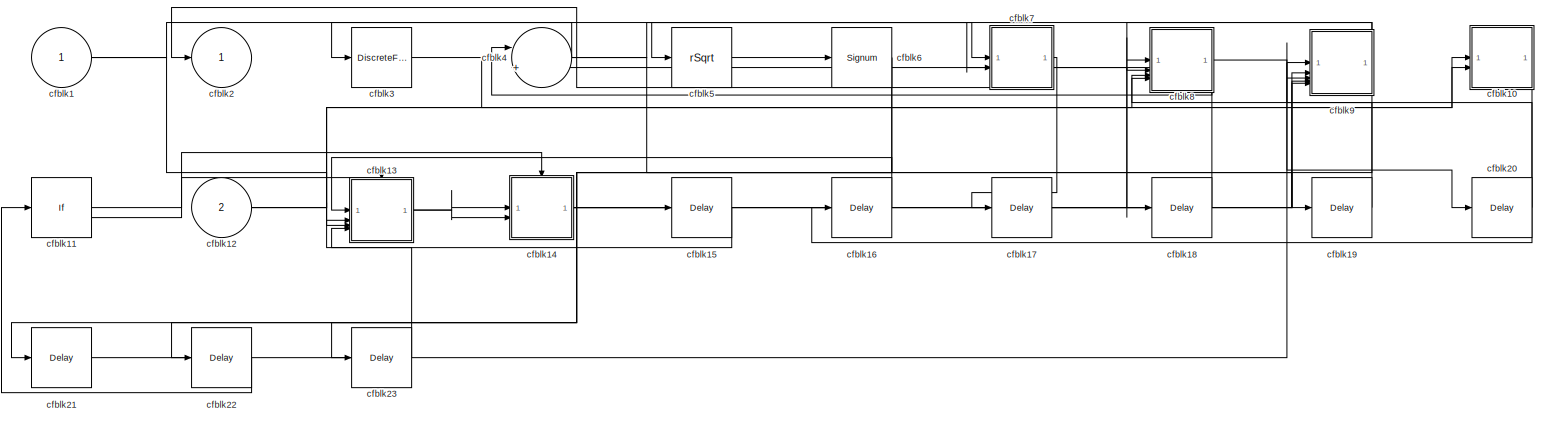
[diagram: cfblk159 - part 1/1, most of the canvas]
BLOCK [SubSystem] cfblk159
BLOCK [Inport] cfblk159/cfblk1
BLOCK [SubSystem] cfblk159/cfblk10
BLOCK [Inport] cfblk159/cfblk10/cfblk1
BLOCK [Outport] cfblk159/cfblk10/cfblk2
BLOCK [DiscreteZeroPole] cfblk159/cfblk10/cfblk3
  Gain = 1
  Poles = [0 0.5]
BLOCK [Reference] cfblk159/cfblk10/cfblk4  REF=slpidlib/PID Controller
  LibrarySourceBlock = simulink/Discrete/Discrete PID Controller
  SourceBlock = slpidlib/PID Controller
  SourceType = PID 1dof
BLOCK [DiscreteTransferFcn] cfblk159/cfblk10/cfblk5
  InputPortMap = u0
  SampleTime = 1
BLOCK [UnaryMinus] cfblk159/cfblk10/cfblk6
BLOCK [Inport] cfblk159/cfblk10/cfblk7
  Port = 2
BLOCK [If] cfblk159/cfblk11
  IfExpression = u1 >= 0
  SampleTime = 1
BLOCK [Inport] cfblk159/cfblk12
  Port = 2
BLOCK [SubSystem] cfblk159/cfblk13
  TreatAsAtomicUnit = on
BLOCK [ActionPort] cfblk159/cfblk13/Action Port
  ActionPortLabel = if(u1 >= 0)
BLOCK [Inport] cfblk159/cfblk13/cfblk1
BLOCK [Constant] cfblk159/cfblk13/cfblk10
  SampleTime = 1
  Value = [445844629.923576]
BLOCK [Constant] cfblk159/cfblk13/cfblk11
  SampleTime = 1
  Value = [-767676782.462914]
BLOCK [Constant] cfblk159/cfblk13/cfblk12
  SampleTime = 1
  Value = [-250313650.922789]
BLOCK [Inport] cfblk159/cfblk13/cfblk13
  Port = 2
BLOCK [Inport] cfblk159/cfblk13/cfblk14
  Port = 3
BLOCK [Inport] cfblk159/cfblk13/cfblk15
  Port = 4
BLOCK [Outport] cfblk159/cfblk13/cfblk2
BLOCK [Reference] cfblk159/cfblk13/cfblk3  REF=simulink/Discrete/Tapped Delay
  SourceBlock = simulink/Discrete/Tapped Delay
  SourceType = Tapped Delay Line
BLOCK [DiscreteFilter] cfblk159/cfblk13/cfblk4
  InputPortMap = u0
BLOCK [Reference] cfblk159/cfblk13/cfblk5  REF=simulink/Math
Operations/MinMax
Running
Resettable
  SourceBlock = simulink/Math\nOperations/MinMax\nRunning\nResettable
  SourceType = MinMax Running Resettable
BLOCK [Sqrt] cfblk159/cfblk13/cfblk6
BLOCK [PermuteDimensions] cfblk159/cfblk13/cfblk7
BLOCK [Sqrt] cfblk159/cfblk13/cfblk8
  AlgorithmType = Newton-Raphson
  Operator = rSqrt
BLOCK [Sum] cfblk159/cfblk13/cfblk9
  IconShape = rectangular
  Inputs = +-
BLOCK [SubSystem] cfblk159/cfblk14
  TreatAsAtomicUnit = on
BLOCK [ActionPort] cfblk159/cfblk14/Action Port
  ActionPortLabel = else
BLOCK [Inport] cfblk159/cfblk14/cfblk1
BLOCK [Delay] cfblk159/cfblk14/cfblk10
  InputPortMap = u0
BLOCK [Outport] cfblk159/cfblk14/cfblk2
BLOCK [DiscreteStateSpace] cfblk159/cfblk14/cfblk3
  SampleTime = -1
BLOCK [Bias] cfblk159/cfblk14/cfblk4
  Bias = [827812875.693291]
  SaturateOnIntegerOverflow = off
BLOCK [MinMax] cfblk159/cfblk14/cfblk5
  Function = max
BLOCK [Sum] cfblk159/cfblk14/cfblk6
  IconShape = rectangular
  Inputs = --
BLOCK [Squeeze] cfblk159/cfblk14/cfblk7
BLOCK [Product] cfblk159/cfblk14/cfblk8
  Inputs = **
BLOCK [Inport] cfblk159/cfblk14/cfblk9
  Port = 2
BLOCK [Delay] cfblk159/cfblk15
  InputPortMap = u0
  SampleTime = 1
BLOCK [Delay] cfblk159/cfblk16
  InputPortMap = u0
  SampleTime = 1
BLOCK [Delay] cfblk159/cfblk17
  InputPortMap = u0
  SampleTime = 1
BLOCK [Delay] cfblk159/cfblk18
  InputPortMap = u0
  SampleTime = 1
BLOCK [Delay] cfblk159/cfblk19
  InputPortMap = u0
  SampleTime = 1
BLOCK [Outport] cfblk159/cfblk2
BLOCK [Delay] cfblk159/cfblk20
  InputPortMap = u0
  SampleTime = 1
BLOCK [Delay] cfblk159/cfblk21
  InputPortMap = u0
  SampleTime = 1
BLOCK [Delay] cfblk159/cfblk22
  InputPortMap = u0
  SampleTime = 1
BLOCK [Delay] cfblk159/cfblk23
  InputPortMap = u0
  SampleTime = 1
BLOCK [DiscreteFilter] cfblk159/cfblk3
  InputPortMap = u0
  SampleTime = 1
BLOCK [Sum] cfblk159/cfblk4
  Inputs = |++
BLOCK [Sqrt] cfblk159/cfblk5
  AlgorithmType = Newton-Raphson
  Operator = rSqrt
BLOCK [Signum] cfblk159/cfblk6
BLOCK [SubSystem] cfblk159/cfblk7
BLOCK [Inport] cfblk159/cfblk7/cfblk1
BLOCK [Inport] cfblk159/cfblk7/cfblk10
  Port = 2
BLOCK [Outport] cfblk159/cfblk7/cfblk11
  Port = 2
BLOCK [Outport] cfblk159/cfblk7/cfblk12
  Port = 3
BLOCK [Delay] cfblk159/cfblk7/cfblk13
  InputPortMap = u0
  SampleTime = 1
BLOCK [Outport] cfblk159/cfblk7/cfblk2
BLOCK [Reference] cfblk159/cfblk7/cfblk3  REF=simulink/Discrete/Transfer Fcn
First Order
  SourceBlock = simulink/Discrete/Transfer Fcn\nFirst Order
  SourceType = First Order Transfer Fcn
BLOCK [Signum] cfblk159/cfblk7/cfblk4
BLOCK [Gain] cfblk159/cfblk7/cfblk5
  Gain = [678568450.449569]
BLOCK [Gain] cfblk159/cfblk7/cfblk6
  Gain = [-280068207.305147]
BLOCK [Sum] cfblk159/cfblk7/cfblk7
  IconShape = rectangular
  Inputs = +-
BLOCK [DotProduct] cfblk159/cfblk7/cfblk8
  OutDataTypeStr = Inherit: Inherit via internal rule
BLOCK [Trigonometry] cfblk159/cfblk7/cfblk9
BLOCK [SubSystem] cfblk159/cfblk8
BLOCK [Inport] cfblk159/cfblk8/cfblk1
BLOCK [Outport] cfblk159/cfblk8/cfblk2
BLOCK [Reference] cfblk159/cfblk8/cfblk3  REF=simulink/Math
Operations/Slider
Gain
  SourceBlock = simulink/Math\nOperations/Slider\nGain
  SourceType = Slider Gain
BLOCK [Reshape] cfblk159/cfblk8/cfblk4
BLOCK [Assignment] cfblk159/cfblk8/cfblk5
  DiagnosticForDimensions = Warning
  IndexOptions = Index vector (dialog)
  Indices = 1
  OutputSizes = 1
BLOCK [Inport] cfblk159/cfblk8/cfblk6
  Port = 2
BLOCK [Inport] cfblk159/cfblk8/cfblk7
  Port = 3
BLOCK [Inport] cfblk159/cfblk8/cfblk8
  Port = 4
BLOCK [SubSystem] cfblk159/cfblk9
BLOCK [Inport] cfblk159/cfblk9/cfblk1
BLOCK [Inport] cfblk159/cfblk9/cfblk10
  Port = 5
BLOCK [Outport] cfblk159/cfblk9/cfblk2
BLOCK [Reference] cfblk159/cfblk9/cfblk3  REF=simulink/Discrete/Tapped Delay
  SourceBlock = simulink/Discrete/Tapped Delay
  SourceType = Tapped Delay Line
BLOCK [Delay] cfblk159/cfblk9/cfblk4
  InputPortMap = u0,e6
  SampleTime = 1
  ShowEnablePort = on
BLOCK [MinMax] cfblk159/cfblk9/cfblk5
  Function = max
BLOCK [ComplexToRealImag] cfblk159/cfblk9/cfblk6
BLOCK [Inport] cfblk159/cfblk9/cfblk7
  Port = 2
BLOCK [Inport] cfblk159/cfblk9/cfblk8
  Port = 3
BLOCK [Inport] cfblk159/cfblk9/cfblk9
  Port = 4
BLOCK [UnitDelay] cfblk16
  HasFrameUpgradeWarning = on
BLOCK [SubSystem] cfblk160
BLOCK [Inport] cfblk160/cfblk1
BLOCK [SubSystem] cfblk160/cfblk10
BLOCK [Inport] cfblk160/cfblk10/cfblk1
BLOCK [Delay] cfblk160/cfblk10/cfblk10
  InputPortMap = u0
  SampleTime = 1
BLOCK [Outport] cfblk160/cfblk10/cfblk2
BLOCK [Reference] cfblk160/cfblk10/cfblk3  REF=simulink/Discrete/Transfer Fcn
Lead or Lag
  SourceBlock = simulink/Discrete/Transfer Fcn\nLead or Lag
  SourceType = Lead or Lag Compensator
BLOCK [Gain] cfblk160/cfblk10/cfblk4
  Gain = [940902474.702372]
BLOCK [Sum] cfblk160/cfblk10/cfblk5
  IconShape = rectangular
  Inputs = +-
BLOCK [Sum] cfblk160/cfblk10/cfblk6
  IconShape = rectangular
  Inputs = +
BLOCK [Reshape] cfblk160/cfblk10/cfblk7
BLOCK [Inport] cfblk160/cfblk10/cfblk8
  Port = 2
BLOCK [Delay] cfblk160/cfblk10/cfblk9
  InputPortMap = u0
  SampleTime = 1
BLOCK [SubSystem] cfblk160/cfblk11
BLOCK [Inport] cfblk160/cfblk11/cfblk1
BLOCK [MinMax] cfblk160/cfblk11/cfblk10
  Function = max
  Inputs = 3
BLOCK [Reshape] cfblk160/cfblk11/cfblk11
BLOCK [DotProduct] cfblk160/cfblk11/cfblk12
  OutDataTypeStr = Inherit: Inherit via internal rule
BLOCK [Constant] cfblk160/cfblk11/cfblk13
  SampleTime = 1
  Value = [806111497.485991]
BLOCK [Constant] cfblk160/cfblk11/cfblk14
  SampleTime = 1
  Value = [673108402.113874]
BLOCK [Inport] cfblk160/cfblk11/cfblk15
  Port = 2
BLOCK [Outport] cfblk160/cfblk11/cfblk2
BLOCK [DiscreteStateSpace] cfblk160/cfblk11/cfblk3
BLOCK [Delay] cfblk160/cfblk11/cfblk4
  InputPortMap = u0,e6
  SampleTime = 1
  ShowEnablePort = on
BLOCK [Reference] cfblk160/cfblk11/cfblk5  REF=simulink/Discrete/Tapped Delay
  SourceBlock = simulink/Discrete/Tapped Delay
  SourceType = Tapped Delay Line
BLOCK [DiscreteIntegrator] cfblk160/cfblk11/cfblk6
  ICPrevOutput = DiscIntNeverNeededParam
  ICPrevScaledInput = DiscIntNeverNeededParam
  InitialConditionSetting = Auto
BLOCK [DiscreteTransferFcn] cfblk160/cfblk11/cfblk7
  InputPortMap = u0
  SampleTime = 1
BLOCK [Rounding] cfblk160/cfblk11/cfblk8
BLOCK [Bias] cfblk160/cfblk11/cfblk9
  Bias = [917586938.243166]
  SaturateOnIntegerOverflow = off
BLOCK [Inport] cfblk160/cfblk12
  Port = 2
BLOCK [Inport] cfblk160/cfblk13
  Port = 3
BLOCK [Inport] cfblk160/cfblk14
  Port = 4
BLOCK [Delay] cfblk160/cfblk15
  InputPortMap = u0
  SampleTime = 1
BLOCK [Delay] cfblk160/cfblk16
  InputPortMap = u0
  SampleTime = 1
BLOCK [Delay] cfblk160/cfblk17
  InputPortMap = u0
  SampleTime = 1
BLOCK [Delay] cfblk160/cfblk18
  InputPortMap = u0
  SampleTime = 1
BLOCK [Delay] cfblk160/cfblk19
  InputPortMap = u0
  SampleTime = 1
BLOCK [Outport] cfblk160/cfblk2
BLOCK [Delay] cfblk160/cfblk3
  InputPortMap = u0,e6
  SampleTime = 1
  ShowEnablePort = on
BLOCK [Sum] cfblk160/cfblk4
  IconShape = rectangular
  Inputs = --
BLOCK [Math] cfblk160/cfblk5
  Operator = transpose
BLOCK [SubSystem] cfblk160/cfblk6
BLOCK [Inport] cfblk160/cfblk6/cfblk1
BLOCK [Inport] cfblk160/cfblk6/cfblk10
  Port = 4
BLOCK [Outport] cfblk160/cfblk6/cfblk11
  Port = 2
BLOCK [Outport] cfblk160/cfblk6/cfblk12
  Port = 3
BLOCK [Outport] cfblk160/cfblk6/cfblk2
BLOCK [Rounding] cfblk160/cfblk6/cfblk3
BLOCK [Sum] cfblk160/cfblk6/cfblk4
  Inputs = |++
BLOCK [Rounding] cfblk160/cfblk6/cfblk5
BLOCK [Sum] cfblk160/cfblk6/cfblk6
  IconShape = rectangular
BLOCK [Squeeze] cfblk160/cfblk6/cfblk7
BLOCK [Inport] cfblk160/cfblk6/cfblk8
  Port = 2
BLOCK [Inport] cfblk160/cfblk6/cfblk9
  Port = 3
BLOCK [SubSystem] cfblk160/cfblk7
BLOCK [Inport] cfblk160/cfblk7/cfblk1
BLOCK [Constant] cfblk160/cfblk7/cfblk10
  SampleTime = 1
  Value = [187633788.558614]
BLOCK [Constant] cfblk160/cfblk7/cfblk11
  SampleTime = 1
  Value = [646595502.135629]
BLOCK [Constant] cfblk160/cfblk7/cfblk12
  SampleTime = 1
  Value = [-119798684.754510]
BLOCK [Inport] cfblk160/cfblk7/cfblk13
  Port = 2
BLOCK [Inport] cfblk160/cfblk7/cfblk14
  Port = 3
BLOCK [Delay] cfblk160/cfblk7/cfblk15
  InputPortMap = u0
  SampleTime = 1
BLOCK [Delay] cfblk160/cfblk7/cfblk16
  InputPortMap = u0
  SampleTime = 1
BLOCK [Outport] cfblk160/cfblk7/cfblk2
BLOCK [Reference] cfblk160/cfblk7/cfblk3  REF=simulink/Discrete/Difference
  SourceBlock = simulink/Discrete/Difference
  SourceType = Difference
BLOCK [Reference] cfblk160/cfblk7/cfblk4  REF=simulink/Discrete/Transfer Fcn
First Order
  SourceBlock = simulink/Discrete/Transfer Fcn\nFirst Order
  SourceType = First Order Transfer Fcn
BLOCK [Sum] cfblk160/cfblk7/cfblk5
  IconShape = rectangular
  Inputs = +-
BLOCK [DotProduct] cfblk160/cfblk7/cfblk6
  OutDataTypeStr = Inherit: Inherit via internal rule
BLOCK [MinMax] cfblk160/cfblk7/cfblk7
  Function = max
  Inputs = 3
BLOCK [UnaryMinus] cfblk160/cfblk7/cfblk8
BLOCK [Sum] cfblk160/cfblk7/cfblk9
  Inputs = |++
BLOCK [SubSystem] cfblk160/cfblk8
BLOCK [Inport] cfblk160/cfblk8/cfblk1
BLOCK [Constant] cfblk160/cfblk8/cfblk10
  SampleTime = 1
  Value = [-873178605.065547]
BLOCK [Constant] cfblk160/cfblk8/cfblk11
  SampleTime = 1
  Value = [-412309283.831914]
BLOCK [Inport] cfblk160/cfblk8/cfblk12
  Port = 2
BLOCK [Inport] cfblk160/cfblk8/cfblk13
  Port = 3
BLOCK [Inport] cfblk160/cfblk8/cfblk14
  Port = 4
BLOCK [Outport] cfblk160/cfblk8/cfblk15
  Port = 2
BLOCK [Outport] cfblk160/cfblk8/cfblk16
  Port = 3
BLOCK [Outport] cfblk160/cfblk8/cfblk17
  Port = 4
BLOCK [Outport] cfblk160/cfblk8/cfblk2
BLOCK [Reference] cfblk160/cfblk8/cfblk3  REF=slpidlib/PID Controller
  LibrarySourceBlock = simulink/Discrete/Discrete PID Controller
  SourceBlock = slpidlib/PID Controller
  SourceType = PID 1dof
BLOCK [DiscreteZeroPole] cfblk160/cfblk8/cfblk4
  Gain = 1
  Poles = [0 0.5]
BLOCK [Reference] cfblk160/cfblk8/cfblk5  REF=simulink/Math
Operations/MinMax
Running
Resettable
  SourceBlock = simulink/Math\nOperations/MinMax\nRunning\nResettable
  SourceType = MinMax Running Resettable
BLOCK [Abs] cfblk160/cfblk8/cfblk6
  SaturateOnIntegerOverflow = off
BLOCK [Product] cfblk160/cfblk8/cfblk7
  Inputs = **
BLOCK [Sqrt] cfblk160/cfblk8/cfblk8
  AlgorithmType = Newton-Raphson
  Operator = rSqrt
BLOCK [Constant] cfblk160/cfblk8/cfblk9
  SampleTime = 1
  Value = [-794780800.463545]
BLOCK [SubSystem] cfblk160/cfblk9
BLOCK [Inport] cfblk160/cfblk9/cfblk1
BLOCK [Outport] cfblk160/cfblk9/cfblk2
BLOCK [Reference] cfblk160/cfblk9/cfblk3  REF=simulink/Discrete/Transfer Fcn
First Order
  SourceBlock = simulink/Discrete/Transfer Fcn\nFirst Order
  SourceType = First Order Transfer Fcn
BLOCK [DiscreteFir] cfblk160/cfblk9/cfblk4
  InputPortMap = u0
  OutputPortMap = o0
  SampleTime = 1
BLOCK [ComplexToMagnitudeAngle] cfblk160/cfblk9/cfblk5
BLOCK [Inport] cfblk160/cfblk9/cfblk6
  Port = 2
BLOCK [Inport] cfblk160/cfblk9/cfblk7
  Port = 3
BLOCK [Inport] cfblk160/cfblk9/cfblk8
  Port = 4
BLOCK [Outport] cfblk160/cfblk9/cfblk9
  Port = 2
BLOCK [SubSystem] cfblk161
BLOCK [Inport] cfblk161/cfblk1
BLOCK [Delay] cfblk161/cfblk10
  InputPortMap = u0
  SampleTime = 1
BLOCK [Outport] cfblk161/cfblk2
BLOCK [Reshape] cfblk161/cfblk3
BLOCK [SubSystem] cfblk161/cfblk4
BLOCK [Inport] cfblk161/cfblk4/cfblk1
BLOCK [Reference] cfblk161/cfblk4/cfblk10  REF=slpidlib/PID Controller (2DOF)
  LibrarySourceBlock = simulink/Discrete/Discrete PID Controller (2DOF)
  SourceBlock = slpidlib/PID Controller (2DOF)
  SourceType = PID 2dof
BLOCK [Reference] cfblk161/cfblk4/cfblk11  REF=simulink/Math
Operations/MinMax
Running
Resettable
  SourceBlock = simulink/Math\nOperations/MinMax\nRunning\nResettable
  SourceType = MinMax Running Resettable
BLOCK [ComplexToRealImag] cfblk161/cfblk4/cfblk12
BLOCK [Inport] cfblk161/cfblk4/cfblk13
  Port = 2
BLOCK [Inport] cfblk161/cfblk4/cfblk14
  Port = 3
BLOCK [Inport] cfblk161/cfblk4/cfblk15
  Port = 4
BLOCK [Outport] cfblk161/cfblk4/cfblk16
  Port = 2
BLOCK [Delay] cfblk161/cfblk4/cfblk17
  InputPortMap = u0
  SampleTime = 1
BLOCK [Delay] cfblk161/cfblk4/cfblk18
  InputPortMap = u0
  SampleTime = 1
BLOCK [Outport] cfblk161/cfblk4/cfblk2
BLOCK [DiscreteFilter] cfblk161/cfblk4/cfblk3
  InputPortMap = u0
  SampleTime = 1
BLOCK [DiscreteStateSpace] cfblk161/cfblk4/cfblk4
BLOCK [DiscreteTransferFcn] cfblk161/cfblk4/cfblk5
  InputPortMap = u0
  SampleTime = 1
BLOCK [Reference] cfblk161/cfblk4/cfblk6  REF=simulink/Discrete/Difference
  SourceBlock = simulink/Discrete/Difference
  SourceType = Difference
BLOCK [Reference] cfblk161/cfblk4/cfblk7  REF=simulink/Discrete/Transfer Fcn
Lead or Lag
  SourceBlock = simulink/Discrete/Transfer Fcn\nLead or Lag
  SourceType = Lead or Lag Compensator
BLOCK [Reference] cfblk161/cfblk4/cfblk8  REF=slpidlib/PID Controller (2DOF)
  LibrarySourceBlock = simulink/Discrete/Discrete PID Controller (2DOF)
  SourceBlock = slpidlib/PID Controller (2DOF)
  SourceType = PID 2dof
BLOCK [DiscreteIntegrator] cfblk161/cfblk4/cfblk9
  ICPrevOutput = DiscIntNeverNeededParam
  ICPrevScaledInput = DiscIntNeverNeededParam
  InitialConditionSetting = Auto
BLOCK [SubSystem] cfblk161/cfblk5
BLOCK [Inport] cfblk161/cfblk5/cfblk1
BLOCK [Outport] cfblk161/cfblk5/cfblk10
  Port = 3
BLOCK [Outport] cfblk161/cfblk5/cfblk2
BLOCK [Reference] cfblk161/cfblk5/cfblk3  REF=simulink/Discrete/Transfer Fcn
First Order
  SourceBlock = simulink/Discrete/Transfer Fcn\nFirst Order
  SourceType = First Order Transfer Fcn
BLOCK [Reference] cfblk161/cfblk5/cfblk4  REF=simulink/Discrete/Transfer Fcn
First Order
  SourceBlock = simulink/Discrete/Transfer Fcn\nFirst Order
  SourceType = First Order Transfer Fcn
BLOCK [Sin] cfblk161/cfblk5/cfblk5
  SampleTime = 0
  TimeSource = Use external signal
BLOCK [Constant] cfblk161/cfblk5/cfblk6
  SampleTime = 1
  Value = [140778174.315885]
BLOCK [Inport] cfblk161/cfblk5/cfblk7
  Port = 2
BLOCK [Inport] cfblk161/cfblk5/cfblk8
  Port = 3
BLOCK [Outport] cfblk161/cfblk5/cfblk9
  Port = 2
BLOCK [Inport] cfblk161/cfblk6
  Port = 2
BLOCK [Inport] cfblk161/cfblk7
  Port = 3
BLOCK [Inport] cfblk161/cfblk8
  Port = 4
BLOCK [Outport] cfblk161/cfblk9
  Port = 2
BLOCK [SubSystem] cfblk162
BLOCK [Inport] cfblk162/cfblk1
BLOCK [Inport] cfblk162/cfblk10
  Port = 3
BLOCK [Inport] cfblk162/cfblk11
  Port = 4
BLOCK [Delay] cfblk162/cfblk12
  InputPortMap = u0
  SampleTime = 1
BLOCK [Delay] cfblk162/cfblk13
  InputPortMap = u0
  SampleTime = 1
BLOCK [Outport] cfblk162/cfblk2
BLOCK [ComplexToRealImag] cfblk162/cfblk3
BLOCK [Trigonometry] cfblk162/cfblk4
BLOCK [Abs] cfblk162/cfblk5
  SaturateOnIntegerOverflow = off
BLOCK [MinMax] cfblk162/cfblk6
  Function = max
BLOCK [SubSystem] cfblk162/cfblk7
BLOCK [Inport] cfblk162/cfblk7/cfblk1
BLOCK [Constant] cfblk162/cfblk7/cfblk10
  SampleTime = 1
  Value = [29253716.620342]
BLOCK [Inport] cfblk162/cfblk7/cfblk11
  Port = 2
BLOCK [Inport] cfblk162/cfblk7/cfblk12
  Port = 3
BLOCK [Inport] cfblk162/cfblk7/cfblk13
  Port = 4
BLOCK [Inport] cfblk162/cfblk7/cfblk14
  Port = 5
BLOCK [Inport] cfblk162/cfblk7/cfblk15
  Port = 6
BLOCK [Outport] cfblk162/cfblk7/cfblk2
BLOCK [UnitDelay] cfblk162/cfblk7/cfblk3
  HasFrameUpgradeWarning = on
BLOCK [Reference] cfblk162/cfblk7/cfblk4  REF=simulink/Discrete/Difference
  SourceBlock = simulink/Discrete/Difference
  SourceType = Difference
BLOCK [UnitDelay] cfblk162/cfblk7/cfblk5
  HasFrameUpgradeWarning = on
BLOCK [Delay] cfblk162/cfblk7/cfblk6
  DelayLengthSource = Input port
  InputPortMap = u0,p1
  SampleTime = 1
BLOCK [DiscreteFir] cfblk162/cfblk7/cfblk7
  InputPortMap = u0
  OutputPortMap = o0
  SampleTime = 1
BLOCK [Sum] cfblk162/cfblk7/cfblk8
  IconShape = rectangular
  Inputs = +-
BLOCK [Signum] cfblk162/cfblk7/cfblk9
BLOCK [SubSystem] cfblk162/cfblk8
BLOCK [Inport] cfblk162/cfblk8/cfblk1
BLOCK [Outport] cfblk162/cfblk8/cfblk2
BLOCK [Sum] cfblk162/cfblk8/cfblk3
  IconShape = rectangular
  Inputs = +
BLOCK [Trigonometry] cfblk162/cfblk8/cfblk4
BLOCK [Constant] cfblk162/cfblk8/cfblk5
  SampleTime = 1
  Value = [870557979.746877]
BLOCK [Inport] cfblk162/cfblk8/cfblk6
  Port = 2
BLOCK [Outport] cfblk162/cfblk8/cfblk7
  Port = 2
BLOCK [Inport] cfblk162/cfblk9
  Port = 2
BLOCK [SubSystem] cfblk163
BLOCK [Inport] cfblk163/cfblk1
BLOCK [Delay] cfblk163/cfblk10
  InputPortMap = u0
  SampleTime = 1
BLOCK [Outport] cfblk163/cfblk2
BLOCK [Reference] cfblk163/cfblk3  REF=simulink/Discrete/Tapped Delay
  SourceBlock = simulink/Discrete/Tapped Delay
  SourceType = Tapped Delay Line
BLOCK [Sin] cfblk163/cfblk4
  SampleTime = 0
  TimeSource = Use external signal
BLOCK [Polyval] cfblk163/cfblk5
  Coefs = [ +2.081618890e-019, -1.441693666e-014, +4.719686976e-010, -8.536869453e-006, +1.621573104e-001, -8.087801117e+001 ]
BLOCK [Trigonometry] cfblk163/cfblk6
BLOCK [Math] cfblk163/cfblk7
  Operator = conj
BLOCK [Inport] cfblk163/cfblk8
  Port = 2
BLOCK [Inport] cfblk163/cfblk9
  Port = 3
BLOCK [SubSystem] cfblk164
BLOCK [Inport] cfblk164/cfblk1
BLOCK [SubSystem] cfblk164/cfblk10
  TreatAsAtomicUnit = on
BLOCK [ActionPort] cfblk164/cfblk10/Action Port
  ActionPortLabel = else
BLOCK [Inport] cfblk164/cfblk10/cfblk1
BLOCK [Inport] cfblk164/cfblk10/cfblk10
  Port = 2
BLOCK [Inport] cfblk164/cfblk10/cfblk11
  Port = 3
BLOCK [Outport] cfblk164/cfblk10/cfblk12
  Port = 2
BLOCK [Delay] cfblk164/cfblk10/cfblk13
  InputPortMap = u0
BLOCK [Outport] cfblk164/cfblk10/cfblk2
BLOCK [Delay] cfblk164/cfblk10/cfblk3
  InputPortMap = u0
BLOCK [Sqrt] cfblk164/cfblk10/cfblk4
  AlgorithmType = Newton-Raphson
  Operator = rSqrt
BLOCK [Trigonometry] cfblk164/cfblk10/cfblk5
BLOCK [Squeeze] cfblk164/cfblk10/cfblk6
BLOCK [Sum] cfblk164/cfblk10/cfblk7
  IconShape = rectangular
  Inputs = +
BLOCK [Sum] cfblk164/cfblk10/cfblk8
  IconShape = rectangular
  Inputs = +-
BLOCK [Reshape] cfblk164/cfblk10/cfblk9
BLOCK [Delay] cfblk164/cfblk11
  InputPortMap = u0
  SampleTime = 1
BLOCK [Delay] cfblk164/cfblk12
  InputPortMap = u0
  SampleTime = 1
BLOCK [Delay] cfblk164/cfblk13
  InputPortMap = u0
  SampleTime = 1
BLOCK [Delay] cfblk164/cfblk14
  InputPortMap = u0
  SampleTime = 1
BLOCK [Outport] cfblk164/cfblk2
BLOCK [Sin] cfblk164/cfblk3
  SampleTime = 0
  TimeSource = Use external signal
BLOCK [Polyval] cfblk164/cfblk4
  Coefs = [ +2.081618890e-019, -1.441693666e-014, +4.719686976e-010, -8.536869453e-006, +1.621573104e-001, -8.087801117e+001 ]
BLOCK [SubSystem] cfblk164/cfblk5
BLOCK [Inport] cfblk164/cfblk5/cfblk1
BLOCK [Outport] cfblk164/cfblk5/cfblk2
BLOCK [Reference] cfblk164/cfblk5/cfblk3  REF=simulink/Discrete/Transfer Fcn
Lead or Lag
  SourceBlock = simulink/Discrete/Transfer Fcn\nLead or Lag
  SourceType = Lead or Lag Compensator
BLOCK [Signum] cfblk164/cfblk5/cfblk4
BLOCK [Sqrt] cfblk164/cfblk5/cfblk5
BLOCK [Abs] cfblk164/cfblk5/cfblk6
  SaturateOnIntegerOverflow = off
BLOCK [Constant] cfblk164/cfblk5/cfblk7
  SampleTime = 1
  Value = [-65404291.431518]
BLOCK [Inport] cfblk164/cfblk5/cfblk8
  Port = 2
BLOCK [SubSystem] cfblk164/cfblk6
BLOCK [Inport] cfblk164/cfblk6/cfblk1
BLOCK [Sin] cfblk164/cfblk6/cfblk10
  SampleTime = 0
  TimeSource = Use external signal
BLOCK [Sqrt] cfblk164/cfblk6/cfblk11
  AlgorithmType = Newton-Raphson
  Operator = rSqrt
BLOCK [Reference] cfblk164/cfblk6/cfblk12  REF=simulink/Math
Operations/Slider
Gain
  SourceBlock = simulink/Math\nOperations/Slider\nGain
  SourceType = Slider Gain
BLOCK [UnaryMinus] cfblk164/cfblk6/cfblk13
BLOCK [Reference] cfblk164/cfblk6/cfblk14  REF=simulink/Math
Operations/Slider
Gain
  SourceBlock = simulink/Math\nOperations/Slider\nGain
  SourceType = Slider Gain
BLOCK [Inport] cfblk164/cfblk6/cfblk15
  Port = 2
BLOCK [Outport] cfblk164/cfblk6/cfblk16
  Port = 2
BLOCK [Outport] cfblk164/cfblk6/cfblk17
  Port = 3
BLOCK [Delay] cfblk164/cfblk6/cfblk18
  InputPortMap = u0
  SampleTime = 1
BLOCK [Outport] cfblk164/cfblk6/cfblk2
BLOCK [DiscreteFilter] cfblk164/cfblk6/cfblk3
  InputPortMap = u0
  SampleTime = 1
BLOCK [DiscreteFir] cfblk164/cfblk6/cfblk4
  InputPortMap = u0
  OutputPortMap = o0
  SampleTime = 1
BLOCK [DiscreteTransferFcn] cfblk164/cfblk6/cfblk5
  InputPortMap = u0
  SampleTime = 1
BLOCK [Reference] cfblk164/cfblk6/cfblk6  REF=slpidlib/PID Controller (2DOF)
  LibrarySourceBlock = simulink/Discrete/Discrete PID Controller (2DOF)
  SourceBlock = slpidlib/PID Controller (2DOF)
  SourceType = PID 2dof
BLOCK [Product] cfblk164/cfblk6/cfblk7
  Inputs = *
BLOCK [Trigonometry] cfblk164/cfblk6/cfblk8
BLOCK [Product] cfblk164/cfblk6/cfblk9
BLOCK [If] cfblk164/cfblk7
  IfExpression = u1 >= 0
  SampleTime = 1
BLOCK [Inport] cfblk164/cfblk8
  Port = 2
BLOCK [SubSystem] cfblk164/cfblk9
  TreatAsAtomicUnit = on
BLOCK [ActionPort] cfblk164/cfblk9/Action Port
  ActionPortLabel = if(u1 >= 0)
BLOCK [Inport] cfblk164/cfblk9/cfblk1
BLOCK [Constant] cfblk164/cfblk9/cfblk10
  SampleTime = 1
  Value = [856839119.245301]
BLOCK [Constant] cfblk164/cfblk9/cfblk11
  SampleTime = 1
  Value = [-443879876.454567]
BLOCK [Inport] cfblk164/cfblk9/cfblk12
  Port = 2
BLOCK [Inport] cfblk164/cfblk9/cfblk13
  Port = 3
BLOCK [Inport] cfblk164/cfblk9/cfblk14
  Port = 4
BLOCK [Outport] cfblk164/cfblk9/cfblk15
  Port = 2
BLOCK [Outport] cfblk164/cfblk9/cfblk2
BLOCK [Reference] cfblk164/cfblk9/cfblk3  REF=simulink/Discrete/Transfer Fcn
Real Zero
  SourceBlock = simulink/Discrete/Transfer Fcn\nReal Zero
  SourceType = Transfer Fcn Real Zero
BLOCK [Signum] cfblk164/cfblk9/cfblk4
BLOCK [Signum] cfblk164/cfblk9/cfblk5
BLOCK [Constant] cfblk164/cfblk9/cfblk6
  SampleTime = 1
  Value = [793891528.618960]
BLOCK [Constant] cfblk164/cfblk9/cfblk7
  SampleTime = 1
  Value = [-416536826.113714]
BLOCK [Constant] cfblk164/cfblk9/cfblk8
  SampleTime = 1
  Value = [-887411711.949198]
BLOCK [Constant] cfblk164/cfblk9/cfblk9
  SampleTime = 1
  Value = [1195139.391758]
BLOCK [SubSystem] cfblk165
BLOCK [Inport] cfblk165/cfblk1
BLOCK [Delay] cfblk165/cfblk10
  InputPortMap = u0
  SampleTime = 1
BLOCK [Delay] cfblk165/cfblk11
  InputPortMap = u0
  SampleTime = 1
BLOCK [Outport] cfblk165/cfblk2
BLOCK [Reference] cfblk165/cfblk3  REF=slpidlib/PID Controller
  LibrarySourceBlock = simulink/Discrete/Discrete PID Controller
  SourceBlock = slpidlib/PID Controller
  SourceType = PID 1dof
BLOCK [Reference] cfblk165/cfblk4  REF=simulink/Discrete/Tapped Delay
  SourceBlock = simulink/Discrete/Tapped Delay
  SourceType = Tapped Delay Line
BLOCK [Constant] cfblk165/cfblk5
  SampleTime = 1
  Value = [382221393.018636]
BLOCK [SubSystem] cfblk165/cfblk6
BLOCK [Inport] cfblk165/cfblk6/cfblk1
BLOCK [Constant] cfblk165/cfblk6/cfblk10
  SampleTime = 1
  Value = [388771791.509372]
BLOCK [Inport] cfblk165/cfblk6/cfblk11
  Port = 2
BLOCK [Inport] cfblk165/cfblk6/cfblk12
  Port = 3
BLOCK [Inport] cfblk165/cfblk6/cfblk13
  Port = 4
BLOCK [Inport] cfblk165/cfblk6/cfblk14
  Port = 5
BLOCK [Outport] cfblk165/cfblk6/cfblk15
  Port = 2
BLOCK [Delay] cfblk165/cfblk6/cfblk16
  InputPortMap = u0
  SampleTime = 1
BLOCK [Outport] cfblk165/cfblk6/cfblk2
BLOCK [DiscreteFilter] cfblk165/cfblk6/cfblk3
  InputPortMap = u0
  SampleTime = 1
BLOCK [Reference] cfblk165/cfblk6/cfblk4  REF=simulink/Discrete/Transfer Fcn
Lead or Lag
  SourceBlock = simulink/Discrete/Transfer Fcn\nLead or Lag
  SourceType = Lead or Lag Compensator
BLOCK [DiscreteFir] cfblk165/cfblk6/cfblk5
  InputPortMap = u0
  OutputPortMap = o0
  SampleTime = 1
BLOCK [Product] cfblk165/cfblk6/cfblk6
  Inputs = **
BLOCK [DotProduct] cfblk165/cfblk6/cfblk7
  OutDataTypeStr = Inherit: Inherit via internal rule
BLOCK [MinMax] cfblk165/cfblk6/cfblk8
  Function = max
  Inputs = 2
BLOCK [Trigonometry] cfblk165/cfblk6/cfblk9
BLOCK [SubSystem] cfblk165/cfblk7
BLOCK [Inport] cfblk165/cfblk7/cfblk1
BLOCK [Reference] cfblk165/cfblk7/cfblk10  REF=simulink/Math
Operations/Slider
Gain
  SourceBlock = simulink/Math\nOperations/Slider\nGain
  SourceType = Slider Gain
BLOCK [Constant] cfblk165/cfblk7/cfblk11
  SampleTime = 1
  Value = [-609991204.218523]
BLOCK [Constant] cfblk165/cfblk7/cfblk12
  SampleTime = 1
  Value = [-968827494.028482]
BLOCK [Inport] cfblk165/cfblk7/cfblk13
  Port = 2
BLOCK [Outport] cfblk165/cfblk7/cfblk14
  Port = 2
BLOCK [Delay] cfblk165/cfblk7/cfblk15
  InputPortMap = u0
  SampleTime = 1
BLOCK [Outport] cfblk165/cfblk7/cfblk2
BLOCK [UnitDelay] cfblk165/cfblk7/cfblk3
  HasFrameUpgradeWarning = on
BLOCK [Reference] cfblk165/cfblk7/cfblk4  REF=slpidlib/PID Controller (2DOF)
  LibrarySourceBlock = simulink/Discrete/Discrete PID Controller (2DOF)
  SourceBlock = slpidlib/PID Controller (2DOF)
  SourceType = PID 2dof
BLOCK [Delay] cfblk165/cfblk7/cfblk5
  DelayLengthSource = Input port
  InputPortMap = u0,p1
  SampleTime = 1
BLOCK [Bias] cfblk165/cfblk7/cfblk6
  Bias = [-648749549.423812]
  SaturateOnIntegerOverflow = off
BLOCK [Signum] cfblk165/cfblk7/cfblk7
BLOCK [Sin] cfblk165/cfblk7/cfblk8
  SampleTime = 0
  TimeSource = Use external signal
BLOCK [Reshape] cfblk165/cfblk7/cfblk9
BLOCK [SubSystem] cfblk165/cfblk8
BLOCK [Inport] cfblk165/cfblk8/cfblk1
BLOCK [Constant] cfblk165/cfblk8/cfblk10
  SampleTime = 1
  Value = [-200088241.921868]
BLOCK [Inport] cfblk165/cfblk8/cfblk11
  Port = 2
BLOCK [Inport] cfblk165/cfblk8/cfblk12
  Port = 3
BLOCK [Inport] cfblk165/cfblk8/cfblk13
  Port = 4
BLOCK [Inport] cfblk165/cfblk8/cfblk14
  Port = 5
BLOCK [Inport] cfblk165/cfblk8/cfblk15
  Port = 6
BLOCK [Outport] cfblk165/cfblk8/cfblk16
  Port = 2
BLOCK [Delay] cfblk165/cfblk8/cfblk17
  InputPortMap = u0
  SampleTime = 1
BLOCK [Outport] cfblk165/cfblk8/cfblk2
BLOCK [Delay] cfblk165/cfblk8/cfblk3
  DelayLengthSource = Input port
  InputPortMap = u0,p1
  SampleTime = 1
BLOCK [ComplexToMagnitudeAngle] cfblk165/cfblk8/cfblk4
BLOCK [Squeeze] cfblk165/cfblk8/cfblk5
BLOCK [DotProduct] cfblk165/cfblk8/cfblk6
  OutDataTypeStr = Inherit: Inherit via internal rule
BLOCK [Product] cfblk165/cfblk8/cfblk7
  Inputs = *
BLOCK [PermuteDimensions] cfblk165/cfblk8/cfblk8
BLOCK [Sum] cfblk165/cfblk8/cfblk9
  IconShape = rectangular
  Inputs = +-
BLOCK [Inport] cfblk165/cfblk9
  Port = 2
BLOCK [SubSystem] cfblk166
BLOCK [Inport] cfblk166/cfblk1
BLOCK [SubSystem] cfblk166/cfblk10
BLOCK [Inport] cfblk166/cfblk10/cfblk1
BLOCK [PermuteDimensions] cfblk166/cfblk10/cfblk10
BLOCK [Rounding] cfblk166/cfblk10/cfblk11
BLOCK [Sum] cfblk166/cfblk10/cfblk12
  Inputs = |++
BLOCK [Inport] cfblk166/cfblk10/cfblk13
  Port = 2
BLOCK [Inport] cfblk166/cfblk10/cfblk14
  Port = 3
BLOCK [Inport] cfblk166/cfblk10/cfblk15
  Port = 4
BLOCK [Outport] cfblk166/cfblk10/cfblk16
  Port = 2
BLOCK [Outport] cfblk166/cfblk10/cfblk17
  Port = 3
BLOCK [Outport] cfblk166/cfblk10/cfblk2
BLOCK [Reference] cfblk166/cfblk10/cfblk3  REF=slpidlib/PID Controller (2DOF)
  LibrarySourceBlock = simulink/Discrete/Discrete PID Controller (2DOF)
  SourceBlock = slpidlib/PID Controller (2DOF)
  SourceType = PID 2dof
BLOCK [DiscreteZeroPole] cfblk166/cfblk10/cfblk4
  Gain = 1
  Poles = [0 0.5]
BLOCK [DiscreteZeroPole] cfblk166/cfblk10/cfblk5
  Gain = 1
  Poles = [0 0.5]
BLOCK [Reference] cfblk166/cfblk10/cfblk6  REF=slpidlib/PID Controller
  LibrarySourceBlock = simulink/Discrete/Discrete PID Controller
  SourceBlock = slpidlib/PID Controller
  SourceType = PID 1dof
BLOCK [MinMax] cfblk166/cfblk10/cfblk7
  Function = max
  Inputs = 2
BLOCK [Sqrt] cfblk166/cfblk10/cfblk8
  AlgorithmType = Newton-Raphson
  Operator = rSqrt
BLOCK [Sum] cfblk166/cfblk10/cfblk9
  IconShape = rectangular
  Inputs = +-
BLOCK [SubSystem] cfblk166/cfblk11
BLOCK [Inport] cfblk166/cfblk11/cfblk1
BLOCK [Inport] cfblk166/cfblk11/cfblk10
  Port = 2
BLOCK [Inport] cfblk166/cfblk11/cfblk11
  Port = 3
BLOCK [Inport] cfblk166/cfblk11/cfblk12
  Port = 4
BLOCK [Inport] cfblk166/cfblk11/cfblk13
  Port = 5
BLOCK [Outport] cfblk166/cfblk11/cfblk2
BLOCK [Reference] cfblk166/cfblk11/cfblk3  REF=simulink/Discrete/Transfer Fcn
Lead or Lag
  SourceBlock = simulink/Discrete/Transfer Fcn\nLead or Lag
  SourceType = Lead or Lag Compensator
BLOCK [Rounding] cfblk166/cfblk11/cfblk4
BLOCK [Assignment] cfblk166/cfblk11/cfblk5
  DiagnosticForDimensions = Warning
  IndexOptions = Index vector (dialog)
  Indices = 1
  OutputSizes = 1
BLOCK [Signum] cfblk166/cfblk11/cfblk6
BLOCK [Constant] cfblk166/cfblk11/cfblk7
  SampleTime = 1
  Value = [402326057.217924]
BLOCK [Constant] cfblk166/cfblk11/cfblk8
  SampleTime = 1
  Value = [-430867687.109002]
BLOCK [Constant] cfblk166/cfblk11/cfblk9
  SampleTime = 1
  Value = [874146926.487042]
BLOCK [Inport] cfblk166/cfblk12
  Port = 2
BLOCK [Outport] cfblk166/cfblk13
  Port = 2
BLOCK [Delay] cfblk166/cfblk14
  InputPortMap = u0
  SampleTime = 1
BLOCK [Delay] cfblk166/cfblk15
  InputPortMap = u0
  SampleTime = 1
BLOCK [Delay] cfblk166/cfblk16
  InputPortMap = u0
  SampleTime = 1
BLOCK [Delay] cfblk166/cfblk17
  InputPortMap = u0
  SampleTime = 1
BLOCK [Delay] cfblk166/cfblk18
  InputPortMap = u0
  SampleTime = 1
BLOCK [Delay] cfblk166/cfblk19
  InputPortMap = u0
  SampleTime = 1
BLOCK [Outport] cfblk166/cfblk2
BLOCK [Delay] cfblk166/cfblk20
  InputPortMap = u0
  SampleTime = 1
BLOCK [PropagationDelay] cfblk166/cfblk3
  SampleTime = 1
BLOCK [Reference] cfblk166/cfblk4  REF=simulink/Discrete/Difference
  SourceBlock = simulink/Discrete/Difference
  SourceType = Difference
BLOCK [DiscreteFilter] cfblk166/cfblk5
  InputPortMap = u0
  SampleTime = 1
BLOCK [Sum] cfblk166/cfblk6
  IconShape = rectangular
  Inputs = +-
BLOCK [UnaryMinus] cfblk166/cfblk7
BLOCK [Constant] cfblk166/cfblk8
  SampleTime = 1
  Value = [-738791466.969594]
BLOCK [SubSystem] cfblk166/cfblk9
BLOCK [Inport] cfblk166/cfblk9/cfblk1
BLOCK [Constant] cfblk166/cfblk9/cfblk10
  SampleTime = 1
  Value = [-771361582.473640]
BLOCK [Inport] cfblk166/cfblk9/cfblk11
  Port = 2
BLOCK [Inport] cfblk166/cfblk9/cfblk12
  Port = 3
BLOCK [Inport] cfblk166/cfblk9/cfblk13
  Port = 4
BLOCK [Inport] cfblk166/cfblk9/cfblk14
  Port = 5
BLOCK [Outport] cfblk166/cfblk9/cfblk15
  Port = 2
BLOCK [Outport] cfblk166/cfblk9/cfblk2
BLOCK [DiscreteTransferFcn] cfblk166/cfblk9/cfblk3
  InputPortMap = u0
  SampleTime = 1
BLOCK [Bias] cfblk166/cfblk9/cfblk4
  Bias = [-976022040.678061]
  SaturateOnIntegerOverflow = off
BLOCK [ComplexToMagnitudeAngle] cfblk166/cfblk9/cfblk5
BLOCK [Sqrt] cfblk166/cfblk9/cfblk6
BLOCK [Math] cfblk166/cfblk9/cfblk7
  Operator = hypot
BLOCK [Constant] cfblk166/cfblk9/cfblk8
  SampleTime = 1
  Value = [35530573.670339]
BLOCK [Constant] cfblk166/cfblk9/cfblk9
  SampleTime = 1
  Value = [264514942.100950]
BLOCK [SubSystem] cfblk167
BLOCK [Inport] cfblk167/cfblk1
BLOCK [SubSystem] cfblk167/cfblk10
BLOCK [Inport] cfblk167/cfblk10/cfblk1
BLOCK [Outport] cfblk167/cfblk10/cfblk2
BLOCK [Reference] cfblk167/cfblk10/cfblk3  REF=simulink/Discrete/Tapped Delay
  SourceBlock = simulink/Discrete/Tapped Delay
  SourceType = Tapped Delay Line
BLOCK [DiscreteTransferFcn] cfblk167/cfblk10/cfblk4
  InputPortMap = u0
  SampleTime = 1
BLOCK [DiscreteFilter] cfblk167/cfblk10/cfblk5
  InputPortMap = u0
  SampleTime = 1
BLOCK [ComplexToMagnitudeAngle] cfblk167/cfblk10/cfblk6
BLOCK [Reference] cfblk167/cfblk10/cfblk7  REF=simulink/Math
Operations/Slider
Gain
  SourceBlock = simulink/Math\nOperations/Slider\nGain
  SourceType = Slider Gain
BLOCK [Inport] cfblk167/cfblk10/cfblk8
  Port = 2
BLOCK [Delay] cfblk167/cfblk10/cfblk9
  InputPortMap = u0
  SampleTime = 1
BLOCK [SubSystem] cfblk167/cfblk11
BLOCK [Inport] cfblk167/cfblk11/cfblk1
BLOCK [Outport] cfblk167/cfblk11/cfblk2
BLOCK [Reference] cfblk167/cfblk11/cfblk3  REF=simulink/Discrete/Difference
  SourceBlock = simulink/Discrete/Difference
  SourceType = Difference
BLOCK [DotProduct] cfblk167/cfblk11/cfblk4
  OutDataTypeStr = Inherit: Inherit via internal rule
BLOCK [Product] cfblk167/cfblk11/cfblk5
BLOCK [MinMax] cfblk167/cfblk11/cfblk6
  Function = max
  Inputs = 3
BLOCK [Constant] cfblk167/cfblk11/cfblk7
  SampleTime = 1
  Value = [-875675673.785562]
BLOCK [Inport] cfblk167/cfblk11/cfblk8
  Port = 2
BLOCK [Outport] cfblk167/cfblk11/cfblk9
  Port = 2
BLOCK [SubSystem] cfblk167/cfblk12
BLOCK [Inport] cfblk167/cfblk12/cfblk1
BLOCK [Constant] cfblk167/cfblk12/cfblk10
  SampleTime = 1
  Value = [-895011332.813341]
BLOCK [Constant] cfblk167/cfblk12/cfblk11
  SampleTime = 1
  Value = [842655779.638818]
BLOCK [Outport] cfblk167/cfblk12/cfblk12
  Port = 2
BLOCK [Delay] cfblk167/cfblk12/cfblk13
  InputPortMap = u0
  SampleTime = 1
BLOCK [Outport] cfblk167/cfblk12/cfblk2
BLOCK [DiscreteTransferFcn] cfblk167/cfblk12/cfblk3
  InputPortMap = u0
  SampleTime = 1
BLOCK [Delay] cfblk167/cfblk12/cfblk4
  InputPortMap = u0,e6
  SampleTime = 1
  ShowEnablePort = on
BLOCK [Reference] cfblk167/cfblk12/cfblk5  REF=slpidlib/PID Controller
  LibrarySourceBlock = simulink/Discrete/Discrete PID Controller
  SourceBlock = slpidlib/PID Controller
  SourceType = PID 1dof
BLOCK [Product] cfblk167/cfblk12/cfblk6
BLOCK [Reference] cfblk167/cfblk12/cfblk7  REF=simulink/Math
Operations/Slider
Gain
  SourceBlock = simulink/Math\nOperations/Slider\nGain
  SourceType = Slider Gain
BLOCK [Reference] cfblk167/cfblk12/cfblk8  REF=simulink/Math
Operations/Slider
Gain
  SourceBlock = simulink/Math\nOperations/Slider\nGain
  SourceType = Slider Gain
BLOCK [Signum] cfblk167/cfblk12/cfblk9
BLOCK [Inport] cfblk167/cfblk13
  Port = 2
BLOCK [Inport] cfblk167/cfblk14
  Port = 3
BLOCK [Inport] cfblk167/cfblk15
  Port = 4
BLOCK [Outport] cfblk167/cfblk16
  Port = 2
BLOCK [Outport] cfblk167/cfblk17
  Port = 3
BLOCK [Reference] cfblk167/cfblk18  REF=simulink_need_slupdate/First-Order
Hold
  DisableCoverage = on
  SourceBlock = simulink_need_slupdate/First-Order\nHold
  SourceType = First-Order Hold
BLOCK [Reference] cfblk167/cfblk19  REF=simulink_need_slupdate/First-Order
Hold
  DisableCoverage = on
  SourceBlock = simulink_need_slupdate/First-Order\nHold
  SourceType = First-Order Hold
BLOCK [Outport] cfblk167/cfblk2
BLOCK [DiscreteZeroPole] cfblk167/cfblk3
  Gain = 1
  Poles = [0 0.5]
BLOCK [Reference] cfblk167/cfblk4  REF=simulink/Discrete/Transfer Fcn
First Order
  SourceBlock = simulink/Discrete/Transfer Fcn\nFirst Order
  SourceType = First Order Transfer Fcn
BLOCK [Sum] cfblk167/cfblk5
  Inputs = |++
BLOCK [Constant] cfblk167/cfblk6
  SampleTime = 1
  Value = [861979675.632754]
BLOCK [Constant] cfblk167/cfblk7
  SampleTime = 1
  Value = [218491970.947063]
BLOCK [Constant] cfblk167/cfblk8
  SampleTime = 1
  Value = [-515912650.524280]
BLOCK [Constant] cfblk167/cfblk9
  SampleTime = 1
  Value = [-437131248.001230]
BLOCK [SubSystem] cfblk168
BLOCK [Inport] cfblk168/cfblk1
BLOCK [Outport] cfblk168/cfblk10
  Port = 2
BLOCK [Outport] cfblk168/cfblk11
  Port = 3
BLOCK [Delay] cfblk168/cfblk12
  InputPortMap = u0
  SampleTime = 1
BLOCK [Outport] cfblk168/cfblk2
BLOCK [Reference] cfblk168/cfblk3  REF=simulink/Math
Operations/Slider
Gain
  SourceBlock = simulink/Math\nOperations/Slider\nGain
  SourceType = Slider Gain
BLOCK [Reference] cfblk168/cfblk4  REF=simulink/Math
Operations/MinMax
Running
Resettable
  SourceBlock = simulink/Math\nOperations/MinMax\nRunning\nResettable
  SourceType = MinMax Running Resettable
BLOCK [Sum] cfblk168/cfblk5
  Inputs = |++
BLOCK [Sqrt] cfblk168/cfblk6
  AlgorithmType = Newton-Raphson
  Operator = rSqrt
BLOCK [Constant] cfblk168/cfblk7
  SampleTime = 1
  Value = [-897312050.701647]
BLOCK [SubSystem] cfblk168/cfblk8
BLOCK [Inport] cfblk168/cfblk8/cfblk1
BLOCK [Inport] cfblk168/cfblk8/cfblk10
  Port = 4
BLOCK [Inport] cfblk168/cfblk8/cfblk11
  Port = 5
BLOCK [Inport] cfblk168/cfblk8/cfblk12
  Port = 6
BLOCK [Outport] cfblk168/cfblk8/cfblk13
  Port = 2
BLOCK [Outport] cfblk168/cfblk8/cfblk14
  Port = 3
BLOCK [Outport] cfblk168/cfblk8/cfblk15
  Port = 4
BLOCK [Outport] cfblk168/cfblk8/cfblk2
BLOCK [DiscreteTransferFcn] cfblk168/cfblk8/cfblk3
  InputPortMap = u0
  SampleTime = 1
BLOCK [Reference] cfblk168/cfblk8/cfblk4  REF=simulink/Math
Operations/Slider
Gain
  SourceBlock = simulink/Math\nOperations/Slider\nGain
  SourceType = Slider Gain
BLOCK [Assignment] cfblk168/cfblk8/cfblk5
  DiagnosticForDimensions = Warning
  IndexOptions = Index vector (dialog)
  Indices = 1
  OutputSizes = 1
BLOCK [Constant] cfblk168/cfblk8/cfblk6
  SampleTime = 1
  Value = [866048568.581870]
BLOCK [Constant] cfblk168/cfblk8/cfblk7
  SampleTime = 1
  Value = [-416368568.572532]
BLOCK [Inport] cfblk168/cfblk8/cfblk8
  Port = 2
BLOCK [Inport] cfblk168/cfblk8/cfblk9
  Port = 3
BLOCK [Inport] cfblk168/cfblk9
  Port = 2
BLOCK [SubSystem] cfblk169
BLOCK [Inport] cfblk169/cfblk1
BLOCK [Outport] cfblk169/cfblk10
  Port = 3
BLOCK [Delay] cfblk169/cfblk11
  InputPortMap = u0
  SampleTime = 1
BLOCK [Outport] cfblk169/cfblk2
BLOCK [DiscreteTransferFcn] cfblk169/cfblk3
  InputPortMap = u0
  SampleTime = 1
BLOCK [Reference] cfblk169/cfblk4  REF=simulink/Discrete/Transfer Fcn
First Order
  SourceBlock = simulink/Discrete/Transfer Fcn\nFirst Order
  SourceType = First Order Transfer Fcn
BLOCK [Sum] cfblk169/cfblk5
  IconShape = rectangular
  Inputs = --
BLOCK [SubSystem] cfblk169/cfblk6
BLOCK [Inport] cfblk169/cfblk6/cfblk1
BLOCK [Squeeze] cfblk169/cfblk6/cfblk10
BLOCK [Gain] cfblk169/cfblk6/cfblk11
  Gain = [654237214.997808]
BLOCK [Sqrt] cfblk169/cfblk6/cfblk12
  AlgorithmType = Newton-Raphson
  Operator = rSqrt
BLOCK [Constant] cfblk169/cfblk6/cfblk13
  SampleTime = 1
  Value = [855856144.251508]
BLOCK [Outport] cfblk169/cfblk6/cfblk14
  Port = 2
BLOCK [Delay] cfblk169/cfblk6/cfblk15
  InputPortMap = u0
  SampleTime = 1
BLOCK [Delay] cfblk169/cfblk6/cfblk16
  InputPortMap = u0
  SampleTime = 1
BLOCK [Outport] cfblk169/cfblk6/cfblk2
BLOCK [Reference] cfblk169/cfblk6/cfblk3  REF=simulink/Discrete/Transfer Fcn
Lead or Lag
  SourceBlock = simulink/Discrete/Transfer Fcn\nLead or Lag
  SourceType = Lead or Lag Compensator
BLOCK [Delay] cfblk169/cfblk6/cfblk4
  InputPortMap = u0
  SampleTime = 1
BLOCK [Reference] cfblk169/cfblk6/cfblk5  REF=simulink/Discrete/Transfer Fcn
Real Zero
  SourceBlock = simulink/Discrete/Transfer Fcn\nReal Zero
  SourceType = Transfer Fcn Real Zero
BLOCK [DiscreteStateSpace] cfblk169/cfblk6/cfblk6
BLOCK [Reference] cfblk169/cfblk6/cfblk7  REF=slpidlib/PID Controller (2DOF)
  LibrarySourceBlock = simulink/Discrete/Discrete PID Controller (2DOF)
  SourceBlock = slpidlib/PID Controller (2DOF)
  SourceType = PID 2dof
BLOCK [Abs] cfblk169/cfblk6/cfblk8
  SaturateOnIntegerOverflow = off
BLOCK [Abs] cfblk169/cfblk6/cfblk9
  SaturateOnIntegerOverflow = off
BLOCK [SubSystem] cfblk169/cfblk7
BLOCK [Inport] cfblk169/cfblk7/cfblk1
BLOCK [Math] cfblk169/cfblk7/cfblk10
BLOCK [ComplexToMagnitudeAngle] cfblk169/cfblk7/cfblk11
BLOCK [Abs] cfblk169/cfblk7/cfblk12
  SaturateOnIntegerOverflow = off
BLOCK [Sin] cfblk169/cfblk7/cfblk13
  SampleTime = 0
  TimeSource = Use external signal
BLOCK [Sum] cfblk169/cfblk7/cfblk14
  Inputs = |++
BLOCK [Abs] cfblk169/cfblk7/cfblk15
  SaturateOnIntegerOverflow = off
BLOCK [Constant] cfblk169/cfblk7/cfblk16
  SampleTime = 1
  Value = [-144295758.611368]
BLOCK [Delay] cfblk169/cfblk7/cfblk17
  InputPortMap = u0
  SampleTime = 1
BLOCK [Delay] cfblk169/cfblk7/cfblk18
  InputPortMap = u0
  SampleTime = 1
BLOCK [Outport] cfblk169/cfblk7/cfblk2
BLOCK [PropagationDelay] cfblk169/cfblk7/cfblk3
  SampleTime = 1
BLOCK [Reference] cfblk169/cfblk7/cfblk4  REF=slpidlib/PID Controller
  LibrarySourceBlock = simulink/Discrete/Discrete PID Controller
  SourceBlock = slpidlib/PID Controller
  SourceType = PID 1dof
BLOCK [Rounding] cfblk169/cfblk7/cfblk5
BLOCK [Sum] cfblk169/cfblk7/cfblk6
  IconShape = rectangular
  Inputs = +
BLOCK [Math] cfblk169/cfblk7/cfblk7
  Operator = conj
BLOCK [Polyval] cfblk169/cfblk7/cfblk8
  Coefs = [ +2.081618890e-019, -1.441693666e-014, +4.719686976e-010, -8.536869453e-006, +1.621573104e-001, -8.087801117e+001 ]
BLOCK [UnaryMinus] cfblk169/cfblk7/cfblk9
BLOCK [SubSystem] cfblk169/cfblk8
BLOCK [Inport] cfblk169/cfblk8/cfblk1
BLOCK [Outport] cfblk169/cfblk8/cfblk2
BLOCK [DiscreteZeroPole] cfblk169/cfblk8/cfblk3
  Gain = 1
  Poles = [0 0.5]
BLOCK [Rounding] cfblk169/cfblk8/cfblk4
BLOCK [Sum] cfblk169/cfblk8/cfblk5
  IconShape = rectangular
  Inputs = +-
BLOCK [Constant] cfblk169/cfblk8/cfblk6
  SampleTime = 1
  Value = [834853285.484630]
BLOCK [Outport] cfblk169/cfblk8/cfblk7
  Port = 2
BLOCK [Outport] cfblk169/cfblk9
  Port = 2
BLOCK [Reference] cfblk17  REF=simulink/Discrete/Transfer Fcn
First Order
  SourceBlock = simulink/Discrete/Transfer Fcn\nFirst Order
  SourceType = First Order Transfer Fcn
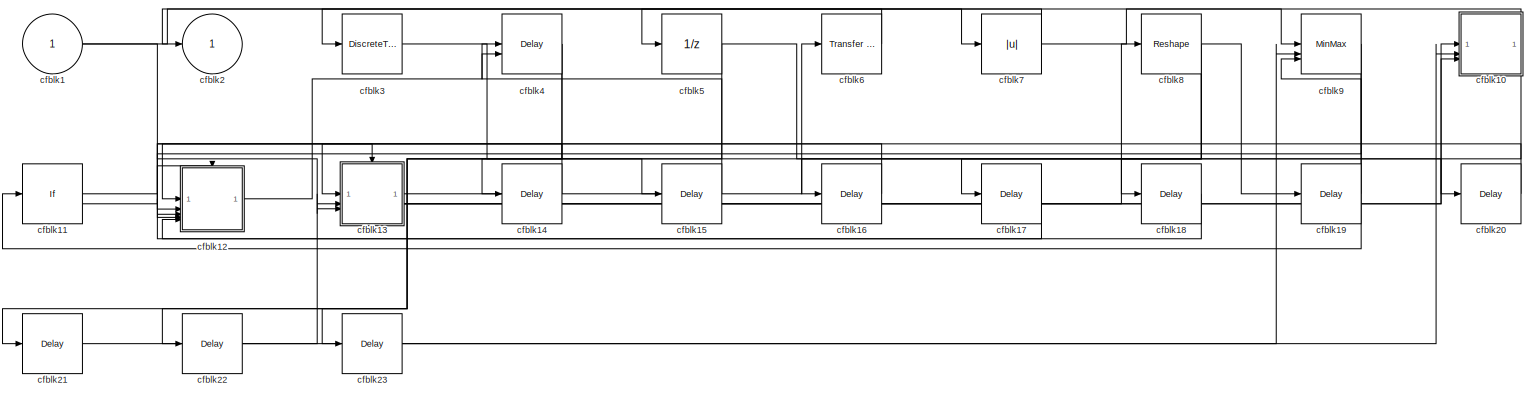
[diagram: cfblk170 - part 1/1, most of the canvas]
BLOCK [SubSystem] cfblk170
BLOCK [Inport] cfblk170/cfblk1
BLOCK [SubSystem] cfblk170/cfblk10
BLOCK [Inport] cfblk170/cfblk10/cfblk1
BLOCK [Inport] cfblk170/cfblk10/cfblk10
  Port = 2
BLOCK [Inport] cfblk170/cfblk10/cfblk11
  Port = 3
BLOCK [Outport] cfblk170/cfblk10/cfblk2
BLOCK [DiscreteTransferFcn] cfblk170/cfblk10/cfblk3
  InputPortMap = u0
  SampleTime = 1
BLOCK [Reference] cfblk170/cfblk10/cfblk4  REF=simulink/Discrete/Transfer Fcn
Real Zero
  SourceBlock = simulink/Discrete/Transfer Fcn\nReal Zero
  SourceType = Transfer Fcn Real Zero
BLOCK [MinMax] cfblk170/cfblk10/cfblk5
  Inputs = 2
BLOCK [Reference] cfblk170/cfblk10/cfblk6  REF=simulink/Math
Operations/MinMax
Running
Resettable
  SourceBlock = simulink/Math\nOperations/MinMax\nRunning\nResettable
  SourceType = MinMax Running Resettable
BLOCK [Abs] cfblk170/cfblk10/cfblk7
  SaturateOnIntegerOverflow = off
BLOCK [Assignment] cfblk170/cfblk10/cfblk8
  DiagnosticForDimensions = Warning
  IndexOptions = Index vector (dialog)
  Indices = 1
  OutputSizes = 1
BLOCK [Constant] cfblk170/cfblk10/cfblk9
  SampleTime = 1
  Value = [424288837.357082]
BLOCK [If] cfblk170/cfblk11
  IfExpression = u1 >= 0
  SampleTime = 1
BLOCK [SubSystem] cfblk170/cfblk12
  TreatAsAtomicUnit = on
BLOCK [ActionPort] cfblk170/cfblk12/Action Port
  ActionPortLabel = if(u1 >= 0)
BLOCK [Inport] cfblk170/cfblk12/cfblk1
BLOCK [Gain] cfblk170/cfblk12/cfblk10
  Gain = [-219968624.405801]
BLOCK [ComplexToMagnitudeAngle] cfblk170/cfblk12/cfblk11
BLOCK [Inport] cfblk170/cfblk12/cfblk12
  Port = 2
BLOCK [Inport] cfblk170/cfblk12/cfblk13
  Port = 3
BLOCK [Inport] cfblk170/cfblk12/cfblk14
  Port = 4
BLOCK [Inport] cfblk170/cfblk12/cfblk15
  Port = 5
BLOCK [Outport] cfblk170/cfblk12/cfblk2
BLOCK [DiscreteFilter] cfblk170/cfblk12/cfblk3
  InputPortMap = u0
BLOCK [DiscreteFilter] cfblk170/cfblk12/cfblk4
  InputPortMap = u0
BLOCK [DiscreteIntegrator] cfblk170/cfblk12/cfblk5
  ICPrevOutput = DiscIntNeverNeededParam
  ICPrevScaledInput = DiscIntNeverNeededParam
  InitialConditionSetting = Auto
  SampleTime = -1
BLOCK [Delay] cfblk170/cfblk12/cfblk6
  InputPortMap = u0
BLOCK [PermuteDimensions] cfblk170/cfblk12/cfblk7
BLOCK [Sum] cfblk170/cfblk12/cfblk8
  Inputs = |++
BLOCK [Product] cfblk170/cfblk12/cfblk9
  Inputs = **
BLOCK [SubSystem] cfblk170/cfblk13
  TreatAsAtomicUnit = on
BLOCK [ActionPort] cfblk170/cfblk13/Action Port
  ActionPortLabel = else
BLOCK [Inport] cfblk170/cfblk13/cfblk1
BLOCK [Outport] cfblk170/cfblk13/cfblk2
BLOCK [Delay] cfblk170/cfblk13/cfblk3
  InputPortMap = u0,e6
  ShowEnablePort = on
BLOCK [Rounding] cfblk170/cfblk13/cfblk4
BLOCK [PermuteDimensions] cfblk170/cfblk13/cfblk5
BLOCK [Polyval] cfblk170/cfblk13/cfblk6
  Coefs = [ +2.081618890e-019, -1.441693666e-014, +4.719686976e-010, -8.536869453e-006, +1.621573104e-001, -8.087801117e+001 ]
BLOCK [Inport] cfblk170/cfblk13/cfblk7
  Port = 2
BLOCK [Inport] cfblk170/cfblk13/cfblk8
  Port = 3
BLOCK [Outport] cfblk170/cfblk13/cfblk9
  Port = 2
BLOCK [Delay] cfblk170/cfblk14
  InputPortMap = u0
  SampleTime = 1
BLOCK [Delay] cfblk170/cfblk15
  InputPortMap = u0
  SampleTime = 1
BLOCK [Delay] cfblk170/cfblk16
  InputPortMap = u0
  SampleTime = 1
BLOCK [Delay] cfblk170/cfblk17
  InputPortMap = u0
  SampleTime = 1
BLOCK [Delay] cfblk170/cfblk18
  InputPortMap = u0
  SampleTime = 1
BLOCK [Delay] cfblk170/cfblk19
  InputPortMap = u0
  SampleTime = 1
BLOCK [Outport] cfblk170/cfblk2
BLOCK [Delay] cfblk170/cfblk20
  InputPortMap = u0
  SampleTime = 1
BLOCK [Delay] cfblk170/cfblk21
  InputPortMap = u0
  SampleTime = 1
BLOCK [Delay] cfblk170/cfblk22
  InputPortMap = u0
  SampleTime = 1
BLOCK [Delay] cfblk170/cfblk23
  InputPortMap = u0
  SampleTime = 1
BLOCK [DiscreteTransferFcn] cfblk170/cfblk3
  InputPortMap = u0
  SampleTime = 1
BLOCK [Delay] cfblk170/cfblk4
  InputPortMap = u0,e6
  SampleTime = 1
  ShowEnablePort = on
BLOCK [UnitDelay] cfblk170/cfblk5
  HasFrameUpgradeWarning = on
BLOCK [Reference] cfblk170/cfblk6  REF=simulink/Discrete/Transfer Fcn
Real Zero
  SourceBlock = simulink/Discrete/Transfer Fcn\nReal Zero
  SourceType = Transfer Fcn Real Zero
BLOCK [Abs] cfblk170/cfblk7
  SaturateOnIntegerOverflow = off
BLOCK [Reshape] cfblk170/cfblk8
BLOCK [MinMax] cfblk170/cfblk9
  Inputs = 3
BLOCK [SubSystem] cfblk171
BLOCK [Inport] cfblk171/cfblk1
BLOCK [Delay] cfblk171/cfblk10
  InputPortMap = u0
  SampleTime = 1
BLOCK [Delay] cfblk171/cfblk11
  InputPortMap = u0
  SampleTime = 1
BLOCK [Delay] cfblk171/cfblk12
  InputPortMap = u0
  SampleTime = 1
BLOCK [Outport] cfblk171/cfblk2
BLOCK [DiscreteIntegrator] cfblk171/cfblk3
  ICPrevOutput = DiscIntNeverNeededParam
  ICPrevScaledInput = DiscIntNeverNeededParam
  InitialConditionSetting = Auto
BLOCK [Product] cfblk171/cfblk4
  Inputs = *
BLOCK [Abs] cfblk171/cfblk5
  SaturateOnIntegerOverflow = off
BLOCK [SubSystem] cfblk171/cfblk6
BLOCK [Inport] cfblk171/cfblk6/cfblk1
BLOCK [Constant] cfblk171/cfblk6/cfblk10
  SampleTime = 1
  Value = [520548367.549841]
BLOCK [Inport] cfblk171/cfblk6/cfblk11
  Port = 2
BLOCK [Inport] cfblk171/cfblk6/cfblk12
  Port = 3
BLOCK [Inport] cfblk171/cfblk6/cfblk13
  Port = 4
BLOCK [Outport] cfblk171/cfblk6/cfblk14
  Port = 2
BLOCK [Outport] cfblk171/cfblk6/cfblk2
BLOCK [UnitDelay] cfblk171/cfblk6/cfblk3
  HasFrameUpgradeWarning = on
BLOCK [Sum] cfblk171/cfblk6/cfblk4
  IconShape = rectangular
  Inputs = +-
BLOCK [Sin] cfblk171/cfblk6/cfblk5
  SampleTime = 0
  TimeSource = Use external signal
BLOCK [ComplexToRealImag] cfblk171/cfblk6/cfblk6
BLOCK [Abs] cfblk171/cfblk6/cfblk7
  SaturateOnIntegerOverflow = off
BLOCK [ComplexToMagnitudeAngle] cfblk171/cfblk6/cfblk8
BLOCK [Sum] cfblk171/cfblk6/cfblk9
  IconShape = rectangular
  Inputs = +
BLOCK [SubSystem] cfblk171/cfblk7
BLOCK [Inport] cfblk171/cfblk7/cfblk1
BLOCK [Delay] cfblk171/cfblk7/cfblk10
  InputPortMap = u0
  SampleTime = 1
BLOCK [Outport] cfblk171/cfblk7/cfblk2
BLOCK [DiscreteZeroPole] cfblk171/cfblk7/cfblk3
  Gain = 1
  Poles = [0 0.5]
BLOCK [Reference] cfblk171/cfblk7/cfblk4  REF=simulink/Math
Operations/Slider
Gain
  SourceBlock = simulink/Math\nOperations/Slider\nGain
  SourceType = Slider Gain
BLOCK [ComplexToMagnitudeAngle] cfblk171/cfblk7/cfblk5
BLOCK [Product] cfblk171/cfblk7/cfblk6
  Inputs = **
BLOCK [Inport] cfblk171/cfblk7/cfblk7
  Port = 2
BLOCK [Inport] cfblk171/cfblk7/cfblk8
  Port = 3
BLOCK [Outport] cfblk171/cfblk7/cfblk9
  Port = 2
BLOCK [Outport] cfblk171/cfblk8
  Port = 2
BLOCK [Delay] cfblk171/cfblk9
  InputPortMap = u0
  SampleTime = 1
BLOCK [SubSystem] cfblk172
BLOCK [Inport] cfblk172/cfblk1
BLOCK [SubSystem] cfblk172/cfblk10
BLOCK [Inport] cfblk172/cfblk10/cfblk1
BLOCK [Delay] cfblk172/cfblk10/cfblk10
  InputPortMap = u0
  SampleTime = 1
BLOCK [Outport] cfblk172/cfblk10/cfblk2
BLOCK [Reference] cfblk172/cfblk10/cfblk3  REF=simulink/Discrete/Transfer Fcn
Lead or Lag
  SourceBlock = simulink/Discrete/Transfer Fcn\nLead or Lag
  SourceType = Lead or Lag Compensator
BLOCK [DiscreteFilter] cfblk172/cfblk10/cfblk4
  InputPortMap = u0
  SampleTime = 1
BLOCK [MinMax] cfblk172/cfblk10/cfblk5
  Inputs = 3
BLOCK [DotProduct] cfblk172/cfblk10/cfblk6
  OutDataTypeStr = Inherit: Inherit via internal rule
BLOCK [Product] cfblk172/cfblk10/cfblk7
  Inputs = **
BLOCK [Inport] cfblk172/cfblk10/cfblk8
  Port = 2
BLOCK [Inport] cfblk172/cfblk10/cfblk9
  Port = 3
BLOCK [SubSystem] cfblk172/cfblk11
BLOCK [Inport] cfblk172/cfblk11/cfblk1
BLOCK [Outport] cfblk172/cfblk11/cfblk2
BLOCK [Reference] cfblk172/cfblk11/cfblk3  REF=simulink/Discrete/Transfer Fcn
Real Zero
  SourceBlock = simulink/Discrete/Transfer Fcn\nReal Zero
  SourceType = Transfer Fcn Real Zero
BLOCK [Trigonometry] cfblk172/cfblk11/cfblk4
BLOCK [PermuteDimensions] cfblk172/cfblk11/cfblk5
BLOCK [Constant] cfblk172/cfblk11/cfblk6
  SampleTime = 1
  Value = [-437669265.205893]
BLOCK [Inport] cfblk172/cfblk11/cfblk7
  Port = 2
BLOCK [Inport] cfblk172/cfblk11/cfblk8
  Port = 3
BLOCK [SubSystem] cfblk172/cfblk12
BLOCK [Inport] cfblk172/cfblk12/cfblk1
BLOCK [MinMax] cfblk172/cfblk12/cfblk10
  Inputs = 3
BLOCK [Constant] cfblk172/cfblk12/cfblk11
  SampleTime = 1
  Value = [-593358333.557490]
BLOCK [Constant] cfblk172/cfblk12/cfblk12
  SampleTime = 1
  Value = [-613940772.920416]
BLOCK [Constant] cfblk172/cfblk12/cfblk13
  SampleTime = 1
  Value = [-836179113.177943]
BLOCK [Inport] cfblk172/cfblk12/cfblk14
  Port = 2
BLOCK [Inport] cfblk172/cfblk12/cfblk15
  Port = 3
BLOCK [Inport] cfblk172/cfblk12/cfblk16
  Port = 4
BLOCK [Outport] cfblk172/cfblk12/cfblk17
  Port = 2
BLOCK [Outport] cfblk172/cfblk12/cfblk2
BLOCK [Reference] cfblk172/cfblk12/cfblk3  REF=slpidlib/PID Controller (2DOF)
  LibrarySourceBlock = simulink/Discrete/Discrete PID Controller (2DOF)
  SourceBlock = slpidlib/PID Controller (2DOF)
  SourceType = PID 2dof
BLOCK [DiscreteStateSpace] cfblk172/cfblk12/cfblk4
BLOCK [DiscreteStateSpace] cfblk172/cfblk12/cfblk5
BLOCK [DiscreteFilter] cfblk172/cfblk12/cfblk6
  InputPortMap = u0
  SampleTime = 1
BLOCK [UnaryMinus] cfblk172/cfblk12/cfblk7
BLOCK [Reshape] cfblk172/cfblk12/cfblk8
BLOCK [Product] cfblk172/cfblk12/cfblk9
  Inputs = **
BLOCK [Inport] cfblk172/cfblk13
  Port = 2
BLOCK [Inport] cfblk172/cfblk14
  Port = 3
BLOCK [Delay] cfblk172/cfblk15
  InputPortMap = u0
  SampleTime = 1
BLOCK [Outport] cfblk172/cfblk2
BLOCK [Reference] cfblk172/cfblk3  REF=slpidlib/PID Controller
  LibrarySourceBlock = simulink/Discrete/Discrete PID Controller
  SourceBlock = slpidlib/PID Controller
  SourceType = PID 1dof
BLOCK [PropagationDelay] cfblk172/cfblk4
  SampleTime = 1
BLOCK [Reference] cfblk172/cfblk5  REF=simulink/Discrete/Transfer Fcn
First Order
  SourceBlock = simulink/Discrete/Transfer Fcn\nFirst Order
  SourceType = First Order Transfer Fcn
BLOCK [Reference] cfblk172/cfblk6  REF=simulink/Discrete/Tapped Delay
  SourceBlock = simulink/Discrete/Tapped Delay
  SourceType = Tapped Delay Line
BLOCK [Sum] cfblk172/cfblk7
  IconShape = rectangular
  Inputs = +-
BLOCK [Reshape] cfblk172/cfblk8
BLOCK [Constant] cfblk172/cfblk9
  SampleTime = 1
  Value = [-718419582.295529]
BLOCK [Delay] cfblk173
  InputPortMap = u0
  SampleTime = 1
BLOCK [Delay] cfblk174
  InputPortMap = u0
  SampleTime = 1
BLOCK [Delay] cfblk175
  InputPortMap = u0
  SampleTime = 1
BLOCK [Delay] cfblk176
  InputPortMap = u0
  SampleTime = 1
BLOCK [Delay] cfblk177
  InputPortMap = u0
  SampleTime = 1
BLOCK [Delay] cfblk178
  InputPortMap = u0
  SampleTime = 1
BLOCK [Delay] cfblk179
  InputPortMap = u0
  SampleTime = 1
BLOCK [DiscreteFilter] cfblk18
  InputPortMap = u0
  SampleTime = 1
BLOCK [Delay] cfblk180
  InputPortMap = u0
  SampleTime = 1
BLOCK [Delay] cfblk181
  InputPortMap = u0
  SampleTime = 1
BLOCK [Delay] cfblk182
  InputPortMap = u0
  SampleTime = 1
BLOCK [Delay] cfblk183
  InputPortMap = u0
  SampleTime = 1
BLOCK [Delay] cfblk184
  InputPortMap = u0
  SampleTime = 1
BLOCK [Delay] cfblk185
  InputPortMap = u0
  SampleTime = 1
BLOCK [DataTypeConversion] cfblk186
  RndMeth = Floor
  SaturateOnIntegerOverflow = off
BLOCK [Sum] cfblk19
  Inputs = |++
BLOCK [Reference] cfblk2  REF=simulink/Discrete/Transfer Fcn
Lead or Lag
  SourceBlock = simulink/Discrete/Transfer Fcn\nLead or Lag
  SourceType = Lead or Lag Compensator
BLOCK [Assignment] cfblk20
  DiagnosticForDimensions = Warning
  IndexOptions = Index vector (dialog)
  Indices = 1
  OutputSizes = 1
BLOCK [Squeeze] cfblk21
BLOCK [Reference] cfblk22  REF=simulink/Math
Operations/MinMax
Running
Resettable
  SourceBlock = simulink/Math\nOperations/MinMax\nRunning\nResettable
  SourceType = MinMax Running Resettable
BLOCK [Trigonometry] cfblk23
BLOCK [Trigonometry] cfblk24
BLOCK [Reshape] cfblk25
BLOCK [Product] cfblk26
  Inputs = **
BLOCK [Sqrt] cfblk27
BLOCK [Reference] cfblk28  REF=simulink/Math
Operations/Slider
Gain
  SourceBlock = simulink/Math\nOperations/Slider\nGain
  SourceType = Slider Gain
BLOCK [Sum] cfblk29
  IconShape = rectangular
BLOCK [Reference] cfblk3  REF=simulink/Discrete/Transfer Fcn
Real Zero
  SourceBlock = simulink/Discrete/Transfer Fcn\nReal Zero
  SourceType = Transfer Fcn Real Zero
BLOCK [Reshape] cfblk30
BLOCK [Product] cfblk31
BLOCK [MinMax] cfblk32
BLOCK [Trigonometry] cfblk33
BLOCK [Squeeze] cfblk34
BLOCK [Reference] cfblk35  REF=simulink/Math
Operations/MinMax
Running
Resettable
  SourceBlock = simulink/Math\nOperations/MinMax\nRunning\nResettable
  SourceType = MinMax Running Resettable
BLOCK [Sqrt] cfblk36
BLOCK [Signum] cfblk37
BLOCK [Reference] cfblk38  REF=simulink/Math
Operations/Slider
Gain
  SourceBlock = simulink/Math\nOperations/Slider\nGain
  SourceType = Slider Gain
BLOCK [Reference] cfblk39  REF=simulink/Math
Operations/Slider
Gain
  SourceBlock = simulink/Math\nOperations/Slider\nGain
  SourceType = Slider Gain
BLOCK [Delay] cfblk4
  InputPortMap = u0,e6
  SampleTime = 1
  ShowEnablePort = on
BLOCK [Polyval] cfblk40
  Coefs = [ +2.081618890e-019, -1.441693666e-014, +4.719686976e-010, -8.536869453e-006, +1.621573104e-001, -8.087801117e+001 ]
BLOCK [ComplexToRealImag] cfblk41
BLOCK [Sum] cfblk42
  IconShape = rectangular
  Inputs = +-
BLOCK [Bias] cfblk43
  Bias = [200207936.460788]
  SaturateOnIntegerOverflow = off
BLOCK [Product] cfblk44
  Inputs = **
BLOCK [UnaryMinus] cfblk45
BLOCK [Assignment] cfblk46
  DiagnosticForDimensions = Warning
  IndexOptions = Index vector (dialog)
  Indices = 1
  OutputSizes = 1
BLOCK [DotProduct] cfblk47
  OutDataTypeStr = Inherit: Inherit via internal rule
BLOCK [Product] cfblk48
  Inputs = **
BLOCK [Product] cfblk49
  Inputs = *
BLOCK [Delay] cfblk5
  DelayLengthSource = Input port
  InputPortMap = u0,p1
  SampleTime = 1
BLOCK [Sum] cfblk50
  IconShape = rectangular
  Inputs = +
BLOCK [Assignment] cfblk51
  DiagnosticForDimensions = Warning
  IndexOptions = Index vector (dialog)
  Indices = 1
  OutputSizes = 1
BLOCK [Sum] cfblk52
  IconShape = rectangular
  Inputs = +-
BLOCK [Signum] cfblk53
BLOCK [Math] cfblk54
  Operator = pow
BLOCK [Product] cfblk55
  Inputs = **
BLOCK [Assignment] cfblk56
  DiagnosticForDimensions = Warning
  IndexOptions = Index vector (dialog)
  Indices = 1
  OutputSizes = 1
BLOCK [UnaryMinus] cfblk57
BLOCK [Sqrt] cfblk58
BLOCK [Trigonometry] cfblk59
BLOCK [DiscreteIntegrator] cfblk6
  ICPrevOutput = DiscIntNeverNeededParam
  ICPrevScaledInput = DiscIntNeverNeededParam
  InitialConditionSetting = Auto
BLOCK [Math] cfblk60
  Operator = rem
BLOCK [Scope] cfblk61
  Floating = off
  NumInputPorts = 1
BLOCK [ToWorkspace] cfblk62
  FixptAsFi = on
  MaxDataPoints = inf
  SampleTime = -1
  SaveFormat = Timeseries
  VariableName = ibfagre
BLOCK [Scope] cfblk63
  Floating = on
  NumInputPorts = 1
BLOCK [Scope] cfblk64
  Floating = off
  NumInputPorts = 1
BLOCK [Record] cfblk65
  CompatibilityTag = XY
  FileSettingsInternal = {"entries":[{"content":{"excelSettings":{"content":{},"type":"Streamout.ExcelSettings"}},"type":"Streamout.FileSettingStorage","uuid":""}],"packageUris":["http:\/\/schema.mathworks.com\/mf0\/streamout_blocks\/R2020a"],"version":"1.0"}  <repeated x6 — deduplicated; at blocks: cfblk65, cfblk74, cfblk77, cfblk82, cfblk84, cfblk89>
  Layout = [1 1]
  SignalsInternal = {"entries":[{"content":{"signals":[{"content":{"blockPath":[],"dimensions":[1],"domain":"","lineColor":"#a2142f","plots":[1],"port":1,"sid":[""],"signalID":13705,"signalName":"cfblk143"},"type":"RecordBlkView.Signal","uuid":""},{"content":{"blockPath":[],"dimensions":[1],"domain":"","lineColor":"#139fff","plots":[1],"port":2,"sid":[""],"signalID":13793,"signalName":"cfblk115"},"type":"RecordBlkVie...<+166ch>
  VisualizationBindings = {"xyplotplugin":{"info":[{"series":[{"bindingParametersList":[{"parameter":"X-Axis","signalID":13705,"signalName":"cfblk143"},{"parameter":"Y-Axis","signalID":13793,"signalName":"cfblk115"}],"seriesID":56317}],"subplotID":1}]}}
BLOCK [Terminator] cfblk66
BLOCK [Scope] cfblk67
  Floating = off
  NumInputPorts = 1
BLOCK [ToWorkspace] cfblk68
  FixptAsFi = on
  MaxDataPoints = inf
  SampleTime = -1
  SaveFormat = Timeseries
  VariableName = fbfells
BLOCK [Outport] cfblk69
BLOCK [Reference] cfblk7  REF=simulink/Discrete/Tapped Delay
  SourceBlock = simulink/Discrete/Tapped Delay
  SourceType = Tapped Delay Line
BLOCK [Scope] cfblk70
  Floating = off
  NumInputPorts = 1
BLOCK [Terminator] cfblk71
BLOCK [Scope] cfblk72
  Floating = off
  NumInputPorts = 1
BLOCK [ToWorkspace] cfblk73
  FixptAsFi = on
  MaxDataPoints = inf
  SampleTime = -1
  SaveFormat = Timeseries
  VariableName = wrvuyqg
BLOCK [Record] cfblk74
  CompatibilityTag = XY
  Layout = [1 1]
  SignalsInternal = {"entries":[{"content":{"signals":[{"content":{"blockPath":[],"dimensions":[1],"domain":"","lineColor":"#a2142f","plots":[1],"port":1,"sid":[""],"signalID":13709,"signalName":"cfblk40"},"type":"RecordBlkView.Signal","uuid":""},{"content":{"blockPath":[],"dimensions":[1],"domain":"","lineColor":"#139fff","plots":[1],"port":2,"sid":[""],"signalID":13713,"signalName":"cfblk166:1"},"type":"RecordBlkVi...<+167ch>
  VisualizationBindings = {"xyplotplugin":{"info":[{"series":[{"bindingParametersList":[{"parameter":"X-Axis","signalID":13709,"signalName":"cfblk40"},{"parameter":"Y-Axis","signalID":13713,"signalName":"cfblk166:1"}],"seriesID":40022}],"subplotID":1}]}}
BLOCK [ToWorkspace] cfblk75
  FixptAsFi = on
  MaxDataPoints = inf
  SampleTime = -1
  SaveFormat = Timeseries
  VariableName = woyczhj
BLOCK [Scope] cfblk76
  Floating = on
  NumInputPorts = 1
BLOCK [Record] cfblk77
  CompatibilityTag = XY
  Layout = [1 1]
  SignalsInternal = {"entries":[{"content":{"signals":[{"content":{"blockPath":[],"dimensions":[1],"domain":"","lineColor":"#a2142f","plots":[1],"port":1,"sid":[""],"signalID":13773,"signalName":"cfblk99"},"type":"RecordBlkView.Signal","uuid":""},{"content":{"blockPath":[],"dimensions":[1],"domain":"","lineColor":"#139fff","plots":[1],"port":2,"sid":[""],"signalID":13777,"signalName":"cfblk99"},"type":"RecordBlkView....<+164ch>
  VisualizationBindings = {"xyplotplugin":{"info":[{"series":[{"bindingParametersList":[{"parameter":"X-Axis","signalID":13773,"signalName":"cfblk99"},{"parameter":"Y-Axis","signalID":13777,"signalName":"cfblk99"}],"seriesID":53659}],"subplotID":1}]}}
BLOCK [Terminator] cfblk78
BLOCK [Scope] cfblk79
  Floating = off
  NumInputPorts = 1
BLOCK [UnitDelay] cfblk8
  HasFrameUpgradeWarning = on
BLOCK [Outport] cfblk80
  Port = 2
BLOCK [Scope] cfblk81
  Floating = off
  NumInputPorts = 1
BLOCK [Record] cfblk82
  CompatibilityTag = XY
  Layout = [1 1]
  SignalsInternal = {"entries":[{"content":{"signals":[{"content":{"blockPath":[],"dimensions":[1],"domain":"","lineColor":"#a2142f","plots":[1],"port":1,"sid":[""],"signalID":13717,"signalName":"cfblk18"},"type":"RecordBlkView.Signal","uuid":""},{"content":{"blockPath":[],"dimensions":[1],"domain":"","lineColor":"#139fff","plots":[1],"port":2,"sid":[""],"signalID":13721,"signalName":"cfblk151:2"},"type":"RecordBlkVi...<+167ch>
  VisualizationBindings = {"xyplotplugin":{"info":[{"series":[{"bindingParametersList":[{"parameter":"X-Axis","signalID":13717,"signalName":"cfblk18"},{"parameter":"Y-Axis","signalID":13721,"signalName":"cfblk151:2"}],"seriesID":20221}],"subplotID":1}]}}
BLOCK [Scope] cfblk83
  Floating = off
  NumInputPorts = 1
BLOCK [Record] cfblk84
  SignalsInternal = {"entries":[{"content":{"signals":[{"content":{"blockPath":[],"dimensions":[1],"domain":"","lineColor":"#d95319","plots":[1],"port":1,"sid":[""],"signalID":13697,"signalName":"cfblk142:2"},"type":"RecordBlkView.Signal","uuid":""}]},"type":"RecordBlkView.InputSignals","uuid":""}],"packageUris":["http:\/\/schema.mathworks.com\/mf0\/streamout_blocks\/R2020a"],"version":"1.0"}
  VisualizationBindings = {"sparklinesplugin":{"info":[{"bindingParametersList":[],"subplotID":1}]}}
BLOCK [Scope] cfblk85
  Floating = on
  NumInputPorts = 1
BLOCK [Outport] cfblk86
  Port = 3
BLOCK [Terminator] cfblk87
BLOCK [Terminator] cfblk88
BLOCK [Record] cfblk89
  CompatibilityTag = XY
  Layout = [1 1]
  SignalsInternal = {"entries":[{"content":{"signals":[{"content":{"blockPath":[],"dimensions":[1],"domain":"","lineColor":"#a2142f","plots":[1],"port":1,"sid":[""],"signalID":13725,"signalName":"cfblk156:2"},"type":"RecordBlkView.Signal","uuid":""},{"content":{"blockPath":[],"dimensions":[1],"domain":"","lineColor":"#139fff","plots":[1],"port":2,"sid":[""],"signalID":13729,"signalName":"cfblk120"},"type":"RecordBlkV...<+168ch>
  VisualizationBindings = {"xyplotplugin":{"info":[{"series":[{"bindingParametersList":[{"parameter":"X-Axis","signalID":13725,"signalName":"cfblk156:2"},{"parameter":"Y-Axis","signalID":13729,"signalName":"cfblk120"}],"seriesID":42703}],"subplotID":1}]}}
BLOCK [DiscreteZeroPole] cfblk9
  Gain = 1
  Poles = [0 0.5]
BLOCK [ToWorkspace] cfblk90
  FixptAsFi = on
  MaxDataPoints = inf
  SampleTime = -1
  SaveFormat = Timeseries
  VariableName = lkstykg
BLOCK [Ground] cfblk91
BLOCK [Reference] cfblk92  REF=simulink/Sources/Counter
Limited
  SourceBlock = simulink/Sources/Counter\nLimited
  SourceType = Counter Limited
BLOCK [Playback] cfblk93
  NumPorts = 0
  PartName = bf87616c-5d9a-425c-8382-97f2101e7582
BLOCK [Reference] cfblk94  REF=simulink/Sources/Counter
Limited
  SourceBlock = simulink/Sources/Counter\nLimited
  SourceType = Counter Limited
BLOCK [Sin] cfblk95
  Amplitude = [644063288.988140]
  Bias = [-805736722.000747]
  SampleTime = 0
BLOCK [UniformRandomNumber] cfblk96
  Maximum = [5792684049.371810]
  Minimum = [-3474527164.440428]
  SampleTime = 0.1
  Seed = [15645962.000000]
BLOCK [DigitalClock] cfblk97
BLOCK [Step] cfblk98
  After = [-26029377.976469]
  Before = [644954690.237287]
  SampleTime = 0
  Time = [14.000000]
BLOCK [Reference] cfblk99  REF=simulink/Sources/Band-Limited
White Noise
  SourceBlock = simulink/Sources/Band-Limited\nWhite Noise
  SourceType = Band-Limited White Noise.
LINE cfblk100:1 -> cfblk64:1
LINE cfblk101:1 -> cfblk56:1
NET cfblk102:1 -> cfblk142:1, cfblk154:1
LINE cfblk103:1 -> cfblk146:1
LINE cfblk104:1 -> cfblk42:1
LINE cfblk105:1 -> cfblk145:2
LINE cfblk106:1 -> cfblk27:1
LINE cfblk107:1 -> cfblk166:2
LINE cfblk109:1 -> cfblk148:1
NET cfblk10:1 -> cfblk161:4, cfblk36:1
LINE cfblk110:1 -> cfblk69:1
NET cfblk111:1 -> cfblk143:1, cfblk167:2
LINE cfblk112:1 -> cfblk66:1
LINE cfblk113:1 -> cfblk152:2
LINE cfblk114:1 -> cfblk71:1
NET cfblk115:1 -> cfblk161:3, cfblk65:2
LINE cfblk116:1 -> cfblk135:2
LINE cfblk117:1 -> cfblk138:1
LINE cfblk118:1 -> cfblk2:1
LINE cfblk119:1 -> cfblk15:1
NET cfblk11:1 -> cfblk141:3, cfblk162:3
NET cfblk120:1 -> cfblk5:1, cfblk89:2
LINE cfblk121:1 -> cfblk58:1
LINE cfblk122:1 -> cfblk47:2
LINE cfblk123:1 -> cfblk14:2
NET cfblk124:1 -> cfblk153:3, cfblk160:4, cfblk70:1
LINE cfblk125:1 -> cfblk13:1
LINE cfblk126:1 -> cfblk156:1
LINE cfblk127:1 -> cfblk67:1
NET cfblk128:1 -> cfblk157:2, cfblk22:1
LINE cfblk129/cfblk10:1 -> cfblk129/cfblk9:3
LINE cfblk129/cfblk12:1 -> cfblk129/cfblk9:2
LINE cfblk129/cfblk13:1 -> cfblk129/cfblk7:1
NET cfblk129/cfblk1:1 -> cfblk129/cfblk5:2, cfblk129/cfblk9:1
NET cfblk129/cfblk3:1 -> cfblk129/cfblk13:1, cfblk129/cfblk6:1
LINE cfblk129/cfblk4:1 -> cfblk129/cfblk5:1
NET cfblk129/cfblk5:1 -> cfblk129/cfblk2:1, cfblk129/cfblk7:2
NET cfblk129/cfblk6:1 -> cfblk129/cfblk12:1, cfblk129/cfblk8:2
LINE cfblk129/cfblk7/cfblk10:1 -> cfblk129/cfblk7/cfblk8:1
LINE cfblk129/cfblk7/cfblk11:1 -> cfblk129/cfblk7/cfblk16:1
LINE cfblk129/cfblk7/cfblk12:1 -> cfblk129/cfblk7/cfblk17:1
LINE cfblk129/cfblk7/cfblk13:1 -> cfblk129/cfblk7/cfblk11:1
LINE cfblk129/cfblk7/cfblk14:1 -> cfblk129/cfblk7/cfblk10:1
NET cfblk129/cfblk7/cfblk15:1 -> cfblk129/cfblk7/cfblk13:1, cfblk129/cfblk7/cfblk7:2
LINE cfblk129/cfblk7/cfblk16:1 -> cfblk129/cfblk7/cfblk9:1
LINE cfblk129/cfblk7/cfblk17:1 -> cfblk129/cfblk7/cfblk4:1
LINE cfblk129/cfblk7/cfblk1:1 -> cfblk129/cfblk7/cfblk3:1
LINE cfblk129/cfblk7/cfblk3:1 -> cfblk129/cfblk7/cfblk5:1
LINE cfblk129/cfblk7/cfblk4:1 -> cfblk129/cfblk7/cfblk7:1
LINE cfblk129/cfblk7/cfblk5:1 -> cfblk129/cfblk7/cfblk9:2
LINE cfblk129/cfblk7/cfblk6:1 -> cfblk129/cfblk7/cfblk11:2
LINE cfblk129/cfblk7/cfblk7:1 -> cfblk129/cfblk7/cfblk12:1
LINE cfblk129/cfblk7/cfblk8:1 -> cfblk129/cfblk7/cfblk6:1
NET cfblk129/cfblk7/cfblk9:1 -> cfblk129/cfblk7/cfblk10:2, cfblk129/cfblk7/cfblk2:1
NET cfblk129/cfblk7:1 -> cfblk129/cfblk3:1, cfblk129/cfblk8:3
LINE cfblk129/cfblk8/cfblk1:1 -> cfblk129/cfblk8/cfblk3:2
LINE cfblk129/cfblk8/cfblk5:1 -> cfblk129/cfblk8/cfblk6:1
LINE cfblk129/cfblk8/cfblk6:1 -> cfblk129/cfblk8/cfblk4:1
LINE cfblk129/cfblk8/cfblk7:1 -> cfblk129/cfblk8/cfblk2:1
LINE cfblk129/cfblk8/cfblk8:1 -> cfblk129/cfblk8/cfblk5:1
LINE cfblk129/cfblk8/cfblk9:1 -> cfblk129/cfblk8/cfblk3:1
LINE cfblk129/cfblk8:1 -> cfblk129/cfblk11:1
LINE cfblk129/cfblk9/cfblk1:1 -> cfblk129/cfblk9/cfblk4:1
LINE cfblk129/cfblk9/cfblk4:1 -> cfblk129/cfblk9/cfblk2:1
LINE cfblk129/cfblk9/cfblk6:1 -> cfblk129/cfblk9/cfblk3:1
LINE cfblk129/cfblk9/cfblk7:1 -> cfblk129/cfblk9/cfblk5:1
NET cfblk129/cfblk9:1 -> cfblk129/cfblk4:1, cfblk129/cfblk7:3, cfblk129/cfblk8:1
LINE cfblk129:1 -> cfblk78:1
LINE cfblk129:2 -> cfblk56:2
LINE cfblk12:1 -> cfblk25:1
LINE cfblk130/cfblk10/cfblk10:1 -> cfblk130/cfblk10/cfblk7:1
LINE cfblk130/cfblk10/cfblk11:1 -> cfblk130/cfblk10/cfblk5:2
LINE cfblk130/cfblk10/cfblk1:1 -> cfblk130/cfblk10/cfblk5:1
LINE cfblk130/cfblk10/cfblk3:1 -> cfblk130/cfblk10/cfblk11:1
LINE cfblk130/cfblk10/cfblk5:1 -> cfblk130/cfblk10/cfblk3:1
LINE cfblk130/cfblk10/cfblk6:1 -> cfblk130/cfblk10/cfblk4:1
LINE cfblk130/cfblk10/cfblk7:1 -> cfblk130/cfblk10/cfblk6:1
LINE cfblk130/cfblk10/cfblk8:1 -> cfblk130/cfblk10/cfblk6:2
LINE cfblk130/cfblk10/cfblk9:1 -> cfblk130/cfblk10/cfblk2:1
NET cfblk130/cfblk10:1 -> cfblk130/cfblk14:1, cfblk130/cfblk7:3
LINE cfblk130/cfblk11:1 -> cfblk130/cfblk6:1
NET cfblk130/cfblk12:1 -> cfblk130/cfblk10:3, cfblk130/cfblk2:1
LINE cfblk130/cfblk13:1 -> cfblk130/cfblk9:1
LINE cfblk130/cfblk14:1 -> cfblk130/cfblk4:1
LINE cfblk130/cfblk15:1 -> cfblk130/cfblk10:2
LINE cfblk130/cfblk16:1 -> cfblk130/cfblk8:1
LINE cfblk130/cfblk17:1 -> cfblk130/cfblk9:3
NET cfblk130/cfblk1:1 -> cfblk130/cfblk3:1, cfblk130/cfblk7:1
NET cfblk130/cfblk3:1 -> cfblk130/cfblk10:4, cfblk130/cfblk4:2, cfblk130/cfblk7:2
NET cfblk130/cfblk4:1 -> cfblk130/cfblk7:4, cfblk130/cfblk9:2
LINE cfblk130/cfblk5:1 -> cfblk130/cfblk13:1
NET cfblk130/cfblk6:1 -> cfblk130/cfblk16:1, cfblk130/cfblk17:1
LINE cfblk130/cfblk7/cfblk12:1 -> cfblk130/cfblk7/cfblk3:1
LINE cfblk130/cfblk7/cfblk14:1 -> cfblk130/cfblk7/cfblk4:1
LINE cfblk130/cfblk7/cfblk1:1 -> cfblk130/cfblk7/cfblk8:1
LINE cfblk130/cfblk7/cfblk3:1 -> cfblk130/cfblk7/cfblk13:1
LINE cfblk130/cfblk7/cfblk4:1 -> cfblk130/cfblk7/cfblk5:1
LINE cfblk130/cfblk7/cfblk5:1 -> cfblk130/cfblk7/cfblk14:1
LINE cfblk130/cfblk7/cfblk7:1 -> cfblk130/cfblk7/cfblk6:1
LINE cfblk130/cfblk7/cfblk7:2 -> cfblk130/cfblk7/cfblk6:2
LINE cfblk130/cfblk7/cfblk8:1 -> cfblk130/cfblk7/cfblk2:1
LINE cfblk130/cfblk7/cfblk9:1 -> cfblk130/cfblk7/cfblk7:1
LINE cfblk130/cfblk7:1 -> cfblk130/cfblk15:1
NET cfblk130/cfblk7:2 -> cfblk130/cfblk6:2, cfblk130/cfblk6:3
LINE cfblk130/cfblk8/cfblk10:1 -> cfblk130/cfblk8/cfblk5:1
LINE cfblk130/cfblk8/cfblk11:1 -> cfblk130/cfblk8/cfblk8:1
LINE cfblk130/cfblk8/cfblk1:1 -> cfblk130/cfblk8/cfblk7:1
LINE cfblk130/cfblk8/cfblk3:1 -> cfblk130/cfblk8/cfblk2:1
LINE cfblk130/cfblk8/cfblk5:1 -> cfblk130/cfblk8/cfblk6:2
LINE cfblk130/cfblk8/cfblk6:1 -> cfblk130/cfblk8/cfblk4:1
LINE cfblk130/cfblk8/cfblk7:1 -> cfblk130/cfblk8/cfblk8:2
LINE cfblk130/cfblk8/cfblk8:1 -> cfblk130/cfblk8/cfblk6:1
LINE cfblk130/cfblk8/cfblk9:1 -> cfblk130/cfblk8/cfblk3:1
LINE cfblk130/cfblk8:1 -> cfblk130/cfblk10:1
LINE cfblk130/cfblk9/cfblk10:1 -> cfblk130/cfblk9/cfblk2:1
NET cfblk130/cfblk9/cfblk11:1 -> cfblk130/cfblk9/cfblk16:1, cfblk130/cfblk9/cfblk4:1
LINE cfblk130/cfblk9/cfblk12:1 -> cfblk130/cfblk9/cfblk7:1
NET cfblk130/cfblk9/cfblk13:1 -> cfblk130/cfblk9/cfblk14:1, cfblk130/cfblk9/cfblk9:1
LINE cfblk130/cfblk9/cfblk16:1 -> cfblk130/cfblk9/cfblk5:2
LINE cfblk130/cfblk9/cfblk17:1 -> cfblk130/cfblk9/cfblk11:1
LINE cfblk130/cfblk9/cfblk1:1 -> cfblk130/cfblk9/cfblk5:1
LINE cfblk130/cfblk9/cfblk3:1 -> cfblk130/cfblk9/cfblk6:1
LINE cfblk130/cfblk9/cfblk4:1 -> cfblk130/cfblk9/cfblk8:2
LINE cfblk130/cfblk9/cfblk5:1 -> cfblk130/cfblk9/cfblk11:2
NET cfblk130/cfblk9/cfblk6:1 -> cfblk130/cfblk9/cfblk8:1, cfblk130/cfblk9/cfblk9:2
NET cfblk130/cfblk9/cfblk7:1 -> cfblk130/cfblk9/cfblk10:1, cfblk130/cfblk9/cfblk3:1
LINE cfblk130/cfblk9/cfblk8:1 -> cfblk130/cfblk9/cfblk17:1
LINE cfblk130/cfblk9/cfblk9:1 -> cfblk130/cfblk9/cfblk15:1
LINE cfblk130/cfblk9:1 -> cfblk130/cfblk5:1
LINE cfblk130/cfblk9:2 -> cfblk130/cfblk8:2
LINE cfblk130/cfblk9:3 -> cfblk130/cfblk8:3
LINE cfblk130:1 -> cfblk26:2
LINE cfblk131/cfblk10:1 -> cfblk131/cfblk12:ifaction
LINE cfblk131/cfblk10:2 -> cfblk131/cfblk13:ifaction
NET cfblk131/cfblk12/cfblk1:1 -> cfblk131/cfblk12/cfblk3:1, cfblk131/cfblk12/cfblk3:2, cfblk131/cfblk12/cfblk4:1, cfblk131/cfblk12/cfblk5:1, cfblk131/cfblk12/cfblk7:1
LINE cfblk131/cfblk12/cfblk3:1 -> cfblk131/cfblk12/cfblk6:1
LINE cfblk131/cfblk12/cfblk4:1 -> cfblk131/cfblk12/cfblk2:1
NET cfblk131/cfblk12/cfblk5:1 -> cfblk131/cfblk12/cfblk4:2, cfblk131/cfblk12/cfblk8:1
LINE cfblk131/cfblk12:1 -> cfblk131/cfblk8:1
LINE cfblk131/cfblk12:2 -> cfblk131/cfblk9:1
LINE cfblk131/cfblk12:3 -> cfblk131/cfblk3:1
LINE cfblk131/cfblk12:4 -> cfblk131/cfblk2:1
LINE cfblk131/cfblk13/cfblk10:1 -> cfblk131/cfblk13/cfblk5:1
LINE cfblk131/cfblk13/cfblk1:1 -> cfblk131/cfblk13/cfblk4:1
LINE cfblk131/cfblk13/cfblk3:1 -> cfblk131/cfblk13/cfblk8:1
LINE cfblk131/cfblk13/cfblk3:2 -> cfblk131/cfblk13/cfblk8:2
NET cfblk131/cfblk13/cfblk5:1 -> cfblk131/cfblk13/cfblk4:2, cfblk131/cfblk13/cfblk7:1
LINE cfblk131/cfblk13/cfblk6:1 -> cfblk131/cfblk13/cfblk3:1
LINE cfblk131/cfblk13/cfblk7:1 -> cfblk131/cfblk13/cfblk6:1
LINE cfblk131/cfblk13/cfblk8:1 -> cfblk131/cfblk13/cfblk2:1
LINE cfblk131/cfblk13/cfblk9:1 -> cfblk131/cfblk13/cfblk11:1
LINE cfblk131/cfblk13:1 -> cfblk131/cfblk15:1
LINE cfblk131/cfblk13:2 -> cfblk131/cfblk4:2
LINE cfblk131/cfblk14:1 -> cfblk131/cfblk10:1
LINE cfblk131/cfblk15:1 -> cfblk131/cfblk8:2
LINE cfblk131/cfblk16:1 -> cfblk131/cfblk13:2
LINE cfblk131/cfblk17:1 -> cfblk131/cfblk13:3
LINE cfblk131/cfblk18:1 -> cfblk131/cfblk13:1
LINE cfblk131/cfblk1:1 -> cfblk131/cfblk12:1
LINE cfblk131/cfblk3:1 -> cfblk131/cfblk5:1
LINE cfblk131/cfblk4:1 -> cfblk131/cfblk16:1
LINE cfblk131/cfblk5:1 -> cfblk131/cfblk18:1
LINE cfblk131/cfblk6:1 -> cfblk131/cfblk4:1
LINE cfblk131/cfblk7:1 -> cfblk131/cfblk6:1
LINE cfblk131/cfblk8/cfblk10:1 -> cfblk131/cfblk8/cfblk3:1
LINE cfblk131/cfblk8/cfblk11:1 -> cfblk131/cfblk8/cfblk12:1
LINE cfblk131/cfblk8/cfblk12:1 -> cfblk131/cfblk8/cfblk17:1
LINE cfblk131/cfblk8/cfblk13:1 -> cfblk131/cfblk8/cfblk6:2
LINE cfblk131/cfblk8/cfblk14:1 -> cfblk131/cfblk8/cfblk9:1
LINE cfblk131/cfblk8/cfblk15:1 -> cfblk131/cfblk8/cfblk13:1
LINE cfblk131/cfblk8/cfblk16:1 -> cfblk131/cfblk8/cfblk7:1
LINE cfblk131/cfblk8/cfblk17:1 -> cfblk131/cfblk8/cfblk11:1
LINE cfblk131/cfblk8/cfblk1:1 -> cfblk131/cfblk8/cfblk10:1
LINE cfblk131/cfblk8/cfblk3:1 -> cfblk131/cfblk8/cfblk5:1
LINE cfblk131/cfblk8/cfblk4:1 -> cfblk131/cfblk8/cfblk13:2
LINE cfblk131/cfblk8/cfblk5:1 -> cfblk131/cfblk8/cfblk4:1
LINE cfblk131/cfblk8/cfblk6:1 -> cfblk131/cfblk8/cfblk14:1
LINE cfblk131/cfblk8/cfblk7:1 -> cfblk131/cfblk8/cfblk8:1
LINE cfblk131/cfblk8/cfblk8:1 -> cfblk131/cfblk8/cfblk6:1
LINE cfblk131/cfblk8/cfblk9:1 -> cfblk131/cfblk8/cfblk2:1
NET cfblk131/cfblk8:1 -> cfblk131/cfblk14:1, cfblk131/cfblk17:1
NET cfblk131/cfblk9/cfblk10:1 -> cfblk131/cfblk9/cfblk8:2, cfblk131/cfblk9/cfblk9:1
LINE cfblk131/cfblk9/cfblk11:1 -> cfblk131/cfblk9/cfblk7:1
LINE cfblk131/cfblk9/cfblk1:1 -> cfblk131/cfblk9/cfblk7:2
LINE cfblk131/cfblk9/cfblk3:1 -> cfblk131/cfblk9/cfblk11:1
LINE cfblk131/cfblk9/cfblk4:1 -> cfblk131/cfblk9/cfblk2:1
LINE cfblk131/cfblk9/cfblk5:1 -> cfblk131/cfblk9/cfblk10:1
LINE cfblk131/cfblk9/cfblk6:1 -> cfblk131/cfblk9/cfblk5:1
NET cfblk131/cfblk9/cfblk7:1 -> cfblk131/cfblk9/cfblk6:1, cfblk131/cfblk9/cfblk8:1
LINE cfblk131/cfblk9/cfblk8:1 -> cfblk131/cfblk9/cfblk3:1
LINE cfblk131/cfblk9/cfblk9:1 -> cfblk131/cfblk9/cfblk4:1
LINE cfblk131/cfblk9:1 -> cfblk131/cfblk11:1
LINE cfblk131:1 -> cfblk172:1
LINE cfblk131:2 -> cfblk51:2
LINE cfblk132/cfblk10/cfblk11:1 -> cfblk132/cfblk10/cfblk3:1
LINE cfblk132/cfblk10/cfblk1:1 -> cfblk132/cfblk10/cfblk5:2
LINE cfblk132/cfblk10/cfblk3:1 -> cfblk132/cfblk10/cfblk6:1
LINE cfblk132/cfblk10/cfblk5:1 -> cfblk132/cfblk10/cfblk6:2
LINE cfblk132/cfblk10/cfblk6:1 -> cfblk132/cfblk10/cfblk2:1
LINE cfblk132/cfblk10/cfblk7:1 -> cfblk132/cfblk10/cfblk4:1
LINE cfblk132/cfblk10/cfblk9:1 -> cfblk132/cfblk10/cfblk5:1
LINE cfblk132/cfblk10:1 -> cfblk132/cfblk15:1
NET cfblk132/cfblk11/cfblk10:1 -> cfblk132/cfblk11/cfblk2:1, cfblk132/cfblk11/cfblk4:1
LINE cfblk132/cfblk11/cfblk11:1 -> cfblk132/cfblk11/cfblk3:1
LINE cfblk132/cfblk11/cfblk12:1 -> cfblk132/cfblk11/cfblk6:1
LINE cfblk132/cfblk11/cfblk13:1 -> cfblk132/cfblk11/cfblk7:2
LINE cfblk132/cfblk11/cfblk14:1 -> cfblk132/cfblk11/cfblk3:2
LINE cfblk132/cfblk11/cfblk16:1 -> cfblk132/cfblk11/cfblk8:1
LINE cfblk132/cfblk11/cfblk1:1 -> cfblk132/cfblk11/cfblk11:1
LINE cfblk132/cfblk11/cfblk3:1 -> cfblk132/cfblk11/cfblk5:1
LINE cfblk132/cfblk11/cfblk4:1 -> cfblk132/cfblk11/cfblk15:1
LINE cfblk132/cfblk11/cfblk5:1 -> cfblk132/cfblk11/cfblk7:1
LINE cfblk132/cfblk11/cfblk6:1 -> cfblk132/cfblk11/cfblk10:1
LINE cfblk132/cfblk11/cfblk7:1 -> cfblk132/cfblk11/cfblk10:2
LINE cfblk132/cfblk11/cfblk8:1 -> cfblk132/cfblk11/cfblk9:1
LINE cfblk132/cfblk11/cfblk9:1 -> cfblk132/cfblk11/cfblk16:1
LINE cfblk132/cfblk11:1 -> cfblk132/cfblk9:4
LINE cfblk132/cfblk11:2 -> cfblk132/cfblk10:4
LINE cfblk132/cfblk12:1 -> cfblk132/cfblk9:2
LINE cfblk132/cfblk13:1 -> cfblk132/cfblk10:3
LINE cfblk132/cfblk14:1 -> cfblk132/cfblk3:1
LINE cfblk132/cfblk15:1 -> cfblk132/cfblk9:1
LINE cfblk132/cfblk16:1 -> cfblk132/cfblk11:4
LINE cfblk132/cfblk1:1 -> cfblk132/cfblk11:2
LINE cfblk132/cfblk3:1 -> cfblk132/cfblk10:1
LINE cfblk132/cfblk3:2 -> cfblk132/cfblk6:1
LINE cfblk132/cfblk4:1 -> cfblk132/cfblk11:1
LINE cfblk132/cfblk5:1 -> cfblk132/cfblk10:2
LINE cfblk132/cfblk6:1 -> cfblk132/cfblk4:1
NET cfblk132/cfblk7:1 -> cfblk132/cfblk11:3, cfblk132/cfblk9:3
LINE cfblk132/cfblk8:1 -> cfblk132/cfblk7:1
LINE cfblk132/cfblk9/cfblk11:1 -> cfblk132/cfblk9/cfblk3:1
LINE cfblk132/cfblk9/cfblk1:1 -> cfblk132/cfblk9/cfblk5:1
LINE cfblk132/cfblk9/cfblk5:1 -> cfblk132/cfblk9/cfblk4:1
LINE cfblk132/cfblk9/cfblk7:1 -> cfblk132/cfblk9/cfblk2:1
LINE cfblk132/cfblk9/cfblk8:1 -> cfblk132/cfblk9/cfblk6:1
LINE cfblk132/cfblk9/cfblk9:1 -> cfblk132/cfblk9/cfblk5:2
NET cfblk132/cfblk9:1 -> cfblk132/cfblk10:5, cfblk132/cfblk16:1, cfblk132/cfblk2:1, cfblk132/cfblk5:1
LINE cfblk132:1 -> cfblk44:1
LINE cfblk133/cfblk10:1 -> cfblk133/cfblk8:1
LINE cfblk133/cfblk11/cfblk1:1 -> cfblk133/cfblk11/cfblk3:1
LINE cfblk133/cfblk11/cfblk3:1 -> cfblk133/cfblk11/cfblk7:1
LINE cfblk133/cfblk11/cfblk3:2 -> cfblk133/cfblk11/cfblk4:1
LINE cfblk133/cfblk11/cfblk4:1 -> cfblk133/cfblk11/cfblk5:1
LINE cfblk133/cfblk11/cfblk5:1 -> cfblk133/cfblk11/cfblk8:1
LINE cfblk133/cfblk11/cfblk6:1 -> cfblk133/cfblk11/cfblk2:1
LINE cfblk133/cfblk11/cfblk8:1 -> cfblk133/cfblk11/cfblk4:2
LINE cfblk133/cfblk11:1 -> cfblk133/cfblk13:2
NET cfblk133/cfblk11:2 -> cfblk133/cfblk12:1, cfblk133/cfblk9:1
NET cfblk133/cfblk12/cfblk1:1 -> cfblk133/cfblk12/cfblk10:1, cfblk133/cfblk12/cfblk7:2
LINE cfblk133/cfblk12/cfblk3:1 -> cfblk133/cfblk12/cfblk2:1
NET cfblk133/cfblk12/cfblk4:1 -> cfblk133/cfblk12/cfblk3:1, cfblk133/cfblk12/cfblk5:1
LINE cfblk133/cfblk12/cfblk5:1 -> cfblk133/cfblk12/cfblk9:1
LINE cfblk133/cfblk12/cfblk6:1 -> cfblk133/cfblk12/cfblk7:1
LINE cfblk133/cfblk12/cfblk7:1 -> cfblk133/cfblk12/cfblk4:1
LINE cfblk133/cfblk12/cfblk8:1 -> cfblk133/cfblk12/cfblk6:1
LINE cfblk133/cfblk12:1 -> cfblk133/cfblk7:2
LINE cfblk133/cfblk12:2 -> cfblk133/cfblk10:2
LINE cfblk133/cfblk12:3 -> cfblk133/cfblk5:1
LINE cfblk133/cfblk13/cfblk1:1 -> cfblk133/cfblk13/cfblk6:1
LINE cfblk133/cfblk13/cfblk3:1 -> cfblk133/cfblk13/cfblk4:1
LINE cfblk133/cfblk13/cfblk4:1 -> cfblk133/cfblk13/cfblk2:1
LINE cfblk133/cfblk13/cfblk6:1 -> cfblk133/cfblk13/cfblk3:1
LINE cfblk133/cfblk13/cfblk7:1 -> cfblk133/cfblk13/cfblk5:1
LINE cfblk133/cfblk13/cfblk8:1 -> cfblk133/cfblk13/cfblk4:2
LINE cfblk133/cfblk13:1 -> cfblk133/cfblk2:1
LINE cfblk133/cfblk14:1 -> cfblk133/cfblk16:1
LINE cfblk133/cfblk17:1 -> cfblk133/cfblk3:1
LINE cfblk133/cfblk1:1 -> cfblk133/cfblk15:1
LINE cfblk133/cfblk3:1 -> cfblk133/cfblk11:1
LINE cfblk133/cfblk4:1 -> cfblk133/cfblk7:1
LINE cfblk133/cfblk5:1 -> cfblk133/cfblk6:1
NET cfblk133/cfblk6:1 -> cfblk133/cfblk17:1, cfblk133/cfblk9:2
LINE cfblk133/cfblk7:1 -> cfblk133/cfblk10:1
LINE cfblk133/cfblk8:1 -> cfblk133/cfblk13:1
LINE cfblk133/cfblk9:1 -> cfblk133/cfblk4:1
LINE cfblk133:1 -> cfblk62:1
LINE cfblk133:2 -> cfblk163:2
NET cfblk133:3 -> cfblk153:1, cfblk158:2
LINE cfblk134/cfblk10:1 -> cfblk134/cfblk9:3
LINE cfblk134/cfblk11:1 -> cfblk134/cfblk5:1
LINE cfblk134/cfblk12:1 -> cfblk134/cfblk9:2
LINE cfblk134/cfblk13:1 -> cfblk134/cfblk9:4
LINE cfblk134/cfblk1:1 -> cfblk134/cfblk9:1
LINE cfblk134/cfblk3:1 -> cfblk134/cfblk7:1
LINE cfblk134/cfblk4/cfblk1:1 -> cfblk134/cfblk4/cfblk4:1
LINE cfblk134/cfblk4/cfblk3:1 -> cfblk134/cfblk4/cfblk5:1
LINE cfblk134/cfblk4/cfblk5:1 -> cfblk134/cfblk4/cfblk2:1
LINE cfblk134/cfblk4/cfblk7:1 -> cfblk134/cfblk4/cfblk3:1
NET cfblk134/cfblk4:1 -> cfblk134/cfblk12:1, cfblk134/cfblk13:1
LINE cfblk134/cfblk5:1 -> cfblk134/cfblk8:ifaction
LINE cfblk134/cfblk5:2 -> cfblk134/cfblk9:ifaction
LINE cfblk134/cfblk6:1 -> cfblk134/cfblk4:1
LINE cfblk134/cfblk8/cfblk1:1 -> cfblk134/cfblk8/cfblk3:1
LINE cfblk134/cfblk8/cfblk3:1 -> cfblk134/cfblk8/cfblk4:1
LINE cfblk134/cfblk8/cfblk4:1 -> cfblk134/cfblk8/cfblk7:1
LINE cfblk134/cfblk8/cfblk5:1 -> cfblk134/cfblk8/cfblk2:1
LINE cfblk134/cfblk8/cfblk6:1 -> cfblk134/cfblk8/cfblk3:2
LINE cfblk134/cfblk8:1 -> cfblk134/cfblk10:1
LINE cfblk134/cfblk8:2 -> cfblk134/cfblk11:1
LINE cfblk134/cfblk9/cfblk10:1 -> cfblk134/cfblk9/cfblk4:1
NET cfblk134/cfblk9/cfblk11:1 -> cfblk134/cfblk9/cfblk15:1, cfblk134/cfblk9/cfblk7:2
NET cfblk134/cfblk9/cfblk12:1 -> cfblk134/cfblk9/cfblk13:1, cfblk134/cfblk9/cfblk7:1
LINE cfblk134/cfblk9/cfblk1:1 -> cfblk134/cfblk9/cfblk5:1
LINE cfblk134/cfblk9/cfblk3:1 -> cfblk134/cfblk9/cfblk9:1
LINE cfblk134/cfblk9/cfblk4:1 -> cfblk134/cfblk9/cfblk2:1
LINE cfblk134/cfblk9/cfblk5:1 -> cfblk134/cfblk9/cfblk3:1
LINE cfblk134/cfblk9/cfblk6:1 -> cfblk134/cfblk9/cfblk16:1
LINE cfblk134/cfblk9/cfblk7:1 -> cfblk134/cfblk9/cfblk6:1
LINE cfblk134/cfblk9/cfblk8:1 -> cfblk134/cfblk9/cfblk14:1
LINE cfblk134/cfblk9/cfblk9:1 -> cfblk134/cfblk9/cfblk8:1
LINE cfblk134/cfblk9:1 -> cfblk134/cfblk8:1
LINE cfblk134/cfblk9:2 -> cfblk134/cfblk4:2
LINE cfblk134/cfblk9:3 -> cfblk134/cfblk8:2
LINE cfblk134/cfblk9:4 -> cfblk134/cfblk3:1
NET cfblk134/cfblk9:5 -> cfblk134/cfblk2:1, cfblk134/cfblk3:2, cfblk134/cfblk4:3
LINE cfblk134:1 -> cfblk81:1
LINE cfblk134:2 -> cfblk142:2
NET cfblk135/cfblk10:1 -> cfblk135/cfblk15:2, cfblk135/cfblk8:1
NET cfblk135/cfblk11:1 -> cfblk135/cfblk13:2, cfblk135/cfblk4:1
LINE cfblk135/cfblk12/cfblk11:1 -> cfblk135/cfblk12/cfblk5:2
LINE cfblk135/cfblk12/cfblk1:1 -> cfblk135/cfblk12/cfblk6:1
LINE cfblk135/cfblk12/cfblk3:1 -> cfblk135/cfblk12/cfblk11:1
LINE cfblk135/cfblk12/cfblk4:1 -> cfblk135/cfblk12/cfblk10:1
LINE cfblk135/cfblk12/cfblk5:1 -> cfblk135/cfblk12/cfblk3:2
LINE cfblk135/cfblk12/cfblk6:1 -> cfblk135/cfblk12/cfblk5:1
LINE cfblk135/cfblk12/cfblk7:1 -> cfblk135/cfblk12/cfblk3:1
LINE cfblk135/cfblk12/cfblk8:1 -> cfblk135/cfblk12/cfblk2:1
LINE cfblk135/cfblk12/cfblk9:1 -> cfblk135/cfblk12/cfblk4:1
LINE cfblk135/cfblk12:1 -> cfblk135/cfblk14:1
LINE cfblk135/cfblk12:2 -> cfblk135/cfblk3:1
LINE cfblk135/cfblk13/cfblk1:1 -> cfblk135/cfblk13/cfblk5:1
LINE cfblk135/cfblk13/cfblk3:1 -> cfblk135/cfblk13/cfblk2:1
LINE cfblk135/cfblk13/cfblk4:1 -> cfblk135/cfblk13/cfblk3:1
LINE cfblk135/cfblk13/cfblk5:1 -> cfblk135/cfblk13/cfblk8:1
LINE cfblk135/cfblk13/cfblk6:1 -> cfblk135/cfblk13/cfblk3:2
LINE cfblk135/cfblk13/cfblk7:1 -> cfblk135/cfblk13/cfblk4:1
LINE cfblk135/cfblk13:1 -> cfblk135/cfblk5:1
LINE cfblk135/cfblk13:2 -> cfblk135/cfblk12:4
LINE cfblk135/cfblk14/cfblk10:1 -> cfblk135/cfblk14/cfblk5:1
LINE cfblk135/cfblk14/cfblk11:1 -> cfblk135/cfblk14/cfblk2:1
LINE cfblk135/cfblk14/cfblk12:1 -> cfblk135/cfblk14/cfblk7:2
LINE cfblk135/cfblk14/cfblk13:1 -> cfblk135/cfblk14/cfblk10:1
LINE cfblk135/cfblk14/cfblk14:1 -> cfblk135/cfblk14/cfblk3:1
LINE cfblk135/cfblk14/cfblk15:1 -> cfblk135/cfblk14/cfblk8:1
LINE cfblk135/cfblk14/cfblk16:1 -> cfblk135/cfblk14/cfblk6:1
LINE cfblk135/cfblk14/cfblk1:1 -> cfblk135/cfblk14/cfblk9:1
LINE cfblk135/cfblk14/cfblk3:1 -> cfblk135/cfblk14/cfblk11:1
LINE cfblk135/cfblk14/cfblk4:1 -> cfblk135/cfblk14/cfblk7:1
LINE cfblk135/cfblk14/cfblk5:1 -> cfblk135/cfblk14/cfblk17:1
LINE cfblk135/cfblk14/cfblk6:1 -> cfblk135/cfblk14/cfblk11:2
LINE cfblk135/cfblk14/cfblk7:1 -> cfblk135/cfblk14/cfblk5:2
LINE cfblk135/cfblk14/cfblk9:1 -> cfblk135/cfblk14/cfblk4:1
LINE cfblk135/cfblk14:1 -> cfblk135/cfblk8:2
LINE cfblk135/cfblk14:2 -> cfblk135/cfblk9:1
LINE cfblk135/cfblk15/cfblk10:1 -> cfblk135/cfblk15/cfblk7:1
LINE cfblk135/cfblk15/cfblk12:1 -> cfblk135/cfblk15/cfblk3:1
LINE cfblk135/cfblk15/cfblk13:1 -> cfblk135/cfblk15/cfblk9:1
LINE cfblk135/cfblk15/cfblk14:1 -> cfblk135/cfblk15/cfblk16:1
LINE cfblk135/cfblk15/cfblk1:1 -> cfblk135/cfblk15/cfblk5:1
LINE cfblk135/cfblk15/cfblk3:1 -> cfblk135/cfblk15/cfblk8:1
LINE cfblk135/cfblk15/cfblk4:1 -> cfblk135/cfblk15/cfblk2:1
LINE cfblk135/cfblk15/cfblk5:1 -> cfblk135/cfblk15/cfblk6:1
LINE cfblk135/cfblk15/cfblk6:1 -> cfblk135/cfblk15/cfblk4:1
LINE cfblk135/cfblk15/cfblk7:1 -> cfblk135/cfblk15/cfblk4:2
LINE cfblk135/cfblk15/cfblk8:1 -> cfblk135/cfblk15/cfblk7:2
LINE cfblk135/cfblk15:1 -> cfblk135/cfblk7:1
LINE cfblk135/cfblk15:2 -> cfblk135/cfblk6:2
LINE cfblk135/cfblk16:1 -> cfblk135/cfblk12:3
LINE cfblk135/cfblk17:1 -> cfblk135/cfblk13:1
LINE cfblk135/cfblk18:1 -> cfblk135/cfblk13:3
LINE cfblk135/cfblk19:1 -> cfblk135/cfblk12:1
NET cfblk135/cfblk1:1 -> cfblk135/cfblk11:1, cfblk135/cfblk15:1
LINE cfblk135/cfblk20:1 -> cfblk135/cfblk14:4
LINE cfblk135/cfblk21:1 -> cfblk135/cfblk15:3
LINE cfblk135/cfblk3:1 -> cfblk135/cfblk14:2
LINE cfblk135/cfblk4:1 -> cfblk135/cfblk10:1
LINE cfblk135/cfblk5:1 -> cfblk135/cfblk12:2
LINE cfblk135/cfblk6:1 -> cfblk135/cfblk14:3
NET cfblk135/cfblk7:1 -> cfblk135/cfblk21:1, cfblk135/cfblk6:1
LINE cfblk135/cfblk8:1 -> cfblk135/cfblk18:1
NET cfblk135/cfblk9:1 -> cfblk135/cfblk19:1, cfblk135/cfblk20:1, cfblk135/cfblk2:1
LINE cfblk135:1 -> cfblk60:2
LINE cfblk136/cfblk10:1 -> cfblk136/cfblk9:1
LINE cfblk136/cfblk11:1 -> cfblk136/cfblk7:1
LINE cfblk136/cfblk13:1 -> cfblk136/cfblk3:1
LINE cfblk136/cfblk14:1 -> cfblk136/cfblk9:3
LINE cfblk136/cfblk1:1 -> cfblk136/cfblk7:2
NET cfblk136/cfblk3:1 -> cfblk136/cfblk12:1, cfblk136/cfblk8:1
LINE cfblk136/cfblk4:1 -> cfblk136/cfblk13:1
LINE cfblk136/cfblk5:1 -> cfblk136/cfblk14:1
LINE cfblk136/cfblk6:1 -> cfblk136/cfblk4:1
LINE cfblk136/cfblk7:1 -> cfblk136/cfblk2:1
LINE cfblk136/cfblk8:1 -> cfblk136/cfblk9:2
LINE cfblk136/cfblk9/cfblk3:1 -> cfblk136/cfblk9/cfblk11:1
LINE cfblk136/cfblk9/cfblk4:1 -> cfblk136/cfblk9/cfblk2:1
LINE cfblk136/cfblk9/cfblk5:1 -> cfblk136/cfblk9/cfblk4:1
LINE cfblk136/cfblk9/cfblk6:1 -> cfblk136/cfblk9/cfblk7:1
LINE cfblk136/cfblk9/cfblk7:1 -> cfblk136/cfblk9/cfblk3:1
LINE cfblk136/cfblk9/cfblk8:1 -> cfblk136/cfblk9/cfblk6:1
LINE cfblk136/cfblk9/cfblk9:1 -> cfblk136/cfblk9/cfblk5:1
LINE cfblk136/cfblk9:1 -> cfblk136/cfblk6:1
LINE cfblk136/cfblk9:2 -> cfblk136/cfblk5:1
LINE cfblk136:1 -> cfblk182:1
LINE cfblk136:2 -> cfblk8:1
LINE cfblk137/cfblk10:1 -> cfblk137/cfblk13:1
LINE cfblk137/cfblk11:1 -> cfblk137/cfblk7:1
NET cfblk137/cfblk12:1 -> cfblk137/cfblk15:3, cfblk137/cfblk6:1
LINE cfblk137/cfblk13/cfblk11:1 -> cfblk137/cfblk13/cfblk5:1
LINE cfblk137/cfblk13/cfblk12:1 -> cfblk137/cfblk13/cfblk3:1
LINE cfblk137/cfblk13/cfblk1:1 -> cfblk137/cfblk13/cfblk4:1
LINE cfblk137/cfblk13/cfblk4:1 -> cfblk137/cfblk13/cfblk6:2
LINE cfblk137/cfblk13/cfblk6:1 -> cfblk137/cfblk13/cfblk2:1
LINE cfblk137/cfblk13/cfblk7:1 -> cfblk137/cfblk13/cfblk6:1
LINE cfblk137/cfblk13/cfblk8:1 -> cfblk137/cfblk13/cfblk13:1
LINE cfblk137/cfblk13/cfblk9:1 -> cfblk137/cfblk13/cfblk7:1
LINE cfblk137/cfblk13:1 -> cfblk137/cfblk15:1
LINE cfblk137/cfblk13:2 -> cfblk137/cfblk15:2
LINE cfblk137/cfblk14/cfblk10:1 -> cfblk137/cfblk14/cfblk2:1
LINE cfblk137/cfblk14/cfblk11:1 -> cfblk137/cfblk14/cfblk8:1
LINE cfblk137/cfblk14/cfblk12:1 -> cfblk137/cfblk14/cfblk9:1
LINE cfblk137/cfblk14/cfblk15:1 -> cfblk137/cfblk14/cfblk5:1
LINE cfblk137/cfblk14/cfblk1:1 -> cfblk137/cfblk14/cfblk4:1
LINE cfblk137/cfblk14/cfblk3:1 -> cfblk137/cfblk14/cfblk13:1
LINE cfblk137/cfblk14/cfblk4:1 -> cfblk137/cfblk14/cfblk7:1
LINE cfblk137/cfblk14/cfblk5:1 -> cfblk137/cfblk14/cfblk6:1
LINE cfblk137/cfblk14/cfblk6:1 -> cfblk137/cfblk14/cfblk15:1
LINE cfblk137/cfblk14/cfblk7:1 -> cfblk137/cfblk14/cfblk14:1
LINE cfblk137/cfblk14/cfblk8:1 -> cfblk137/cfblk14/cfblk3:1
LINE cfblk137/cfblk14/cfblk9:1 -> cfblk137/cfblk14/cfblk6:2
LINE cfblk137/cfblk14:1 -> cfblk137/cfblk3:1
LINE cfblk137/cfblk14:2 -> cfblk137/cfblk3:2
LINE cfblk137/cfblk14:3 -> cfblk137/cfblk13:2
LINE cfblk137/cfblk15/cfblk10:1 -> cfblk137/cfblk15/cfblk2:1
LINE cfblk137/cfblk15/cfblk1:1 -> cfblk137/cfblk15/cfblk3:1
LINE cfblk137/cfblk15/cfblk5:1 -> cfblk137/cfblk15/cfblk6:1
LINE cfblk137/cfblk15/cfblk7:1 -> cfblk137/cfblk15/cfblk4:1
LINE cfblk137/cfblk15/cfblk8:1 -> cfblk137/cfblk15/cfblk5:1
LINE cfblk137/cfblk15/cfblk9:1 -> cfblk137/cfblk15/cfblk11:1
LINE cfblk137/cfblk15:1 -> cfblk137/cfblk16:1
LINE cfblk137/cfblk15:2 -> cfblk137/cfblk9:1
LINE cfblk137/cfblk17:1 -> cfblk137/cfblk11:1
LINE cfblk137/cfblk18:1 -> cfblk137/cfblk15:4
LINE cfblk137/cfblk19:1 -> cfblk137/cfblk14:1
NET cfblk137/cfblk1:1 -> cfblk137/cfblk14:3, cfblk137/cfblk5:1
LINE cfblk137/cfblk20:1 -> cfblk137/cfblk14:2
NET cfblk137/cfblk3:1 -> cfblk137/cfblk19:1, cfblk137/cfblk20:1
NET cfblk137/cfblk4:1 -> cfblk137/cfblk11:2, cfblk137/cfblk2:1
LINE cfblk137/cfblk5:1 -> cfblk137/cfblk10:1
NET cfblk137/cfblk6:1 -> cfblk137/cfblk13:3, cfblk137/cfblk13:4, cfblk137/cfblk14:4, cfblk137/cfblk4:1
LINE cfblk137/cfblk7:1 -> cfblk137/cfblk17:1
NET cfblk137/cfblk8:1 -> cfblk137/cfblk18:1, cfblk137/cfblk4:2
LINE cfblk137/cfblk9:1 -> cfblk137/cfblk8:1
LINE cfblk137:1 -> cfblk53:1
NET cfblk137:2 -> cfblk178:1, cfblk4:2
LINE cfblk138/cfblk1:1 -> cfblk138/cfblk5:1
LINE cfblk138/cfblk3:1 -> cfblk138/cfblk2:1
LINE cfblk138/cfblk4:1 -> cfblk138/cfblk10:1
LINE cfblk138/cfblk5:1 -> cfblk138/cfblk8:1
LINE cfblk138/cfblk6:1 -> cfblk138/cfblk4:1
LINE cfblk138/cfblk7/cfblk1:1 -> cfblk138/cfblk7/cfblk4:2
LINE cfblk138/cfblk7/cfblk3:1 -> cfblk138/cfblk7/cfblk8:1
LINE cfblk138/cfblk7/cfblk4:1 -> cfblk138/cfblk7/cfblk3:1
LINE cfblk138/cfblk7/cfblk5:1 -> cfblk138/cfblk7/cfblk2:1
LINE cfblk138/cfblk7/cfblk6:1 -> cfblk138/cfblk7/cfblk7:1
LINE cfblk138/cfblk7/cfblk8:1 -> cfblk138/cfblk7/cfblk4:1
LINE cfblk138/cfblk7:1 -> cfblk138/cfblk6:1
LINE cfblk138/cfblk7:2 -> cfblk138/cfblk3:1
LINE cfblk138/cfblk8/cfblk1:1 -> cfblk138/cfblk8/cfblk8:1
LINE cfblk138/cfblk8/cfblk3:1 -> cfblk138/cfblk8/cfblk2:1
LINE cfblk138/cfblk8/cfblk4:1 -> cfblk138/cfblk8/cfblk6:1
LINE cfblk138/cfblk8/cfblk5:1 -> cfblk138/cfblk8/cfblk4:1
LINE cfblk138/cfblk8/cfblk6:1 -> cfblk138/cfblk8/cfblk7:1
LINE cfblk138/cfblk8/cfblk7:1 -> cfblk138/cfblk8/cfblk3:1
LINE cfblk138/cfblk8/cfblk8:1 -> cfblk138/cfblk8/cfblk10:1
LINE cfblk138/cfblk8/cfblk9:1 -> cfblk138/cfblk8/cfblk5:1
LINE cfblk138/cfblk8:1 -> cfblk138/cfblk7:2
LINE cfblk138/cfblk8:2 -> cfblk138/cfblk7:3
NET cfblk138/cfblk9:1 -> cfblk138/cfblk7:1, cfblk138/cfblk8:2
LINE cfblk138:1 -> cfblk86:1
NET cfblk138:2 -> cfblk157:4, cfblk38:1
NET cfblk139/cfblk10/cfblk1:1 -> cfblk139/cfblk10/cfblk5:1, cfblk139/cfblk10/cfblk6:2
LINE cfblk139/cfblk10/cfblk3:1 -> cfblk139/cfblk10/cfblk6:1
LINE cfblk139/cfblk10/cfblk4:1 -> cfblk139/cfblk10/cfblk2:1
LINE cfblk139/cfblk10/cfblk5:1 -> cfblk139/cfblk10/cfblk4:2
LINE cfblk139/cfblk10/cfblk7:1 -> cfblk139/cfblk10/cfblk3:1
LINE cfblk139/cfblk10/cfblk8:1 -> cfblk139/cfblk10/cfblk4:1
LINE cfblk139/cfblk10:1 -> cfblk139/cfblk11:1
LINE cfblk139/cfblk11/cfblk11:1 -> cfblk139/cfblk11/cfblk4:1
LINE cfblk139/cfblk11/cfblk1:1 -> cfblk139/cfblk11/cfblk4:2
LINE cfblk139/cfblk11/cfblk3:1 -> cfblk139/cfblk11/cfblk5:1
LINE cfblk139/cfblk11/cfblk4:1 -> cfblk139/cfblk11/cfblk5:2
LINE cfblk139/cfblk11/cfblk5:1 -> cfblk139/cfblk11/cfblk11:1
LINE cfblk139/cfblk11/cfblk6:1 -> cfblk139/cfblk11/cfblk10:1
LINE cfblk139/cfblk11/cfblk7:1 -> cfblk139/cfblk11/cfblk6:1
LINE cfblk139/cfblk11/cfblk8:1 -> cfblk139/cfblk11/cfblk3:1
LINE cfblk139/cfblk11/cfblk9:1 -> cfblk139/cfblk11/cfblk2:1
LINE cfblk139/cfblk11:1 -> cfblk139/cfblk9:1
LINE cfblk139/cfblk11:2 -> cfblk139/cfblk6:1
LINE cfblk139/cfblk12/cfblk10:1 -> cfblk139/cfblk12/cfblk5:1
LINE cfblk139/cfblk12/cfblk11:1 -> cfblk139/cfblk12/cfblk4:1
LINE cfblk139/cfblk12/cfblk4:1 -> cfblk139/cfblk12/cfblk5:2
LINE cfblk139/cfblk12/cfblk5:1 -> cfblk139/cfblk12/cfblk11:1
LINE cfblk139/cfblk12/cfblk7:1 -> cfblk139/cfblk12/cfblk2:1
LINE cfblk139/cfblk12/cfblk9:1 -> cfblk139/cfblk12/cfblk3:1
NET cfblk139/cfblk12:1 -> cfblk139/cfblk10:1, cfblk139/cfblk8:2, cfblk139/cfblk9:2
LINE cfblk139/cfblk14:1 -> cfblk139/cfblk11:3
LINE cfblk139/cfblk15:1 -> cfblk139/cfblk12:2
LINE cfblk139/cfblk16:1 -> cfblk139/cfblk12:3
LINE cfblk139/cfblk17:1 -> cfblk139/cfblk11:2
LINE cfblk139/cfblk18:1 -> cfblk139/cfblk10:2
NET cfblk139/cfblk1:1 -> cfblk139/cfblk11:4, cfblk139/cfblk12:4
NET cfblk139/cfblk3:1 -> cfblk139/cfblk2:1, cfblk139/cfblk9:4
NET cfblk139/cfblk4:1 -> cfblk139/cfblk5:1, cfblk139/cfblk8:1
LINE cfblk139/cfblk5:1 -> cfblk139/cfblk13:1
NET cfblk139/cfblk6:1 -> cfblk139/cfblk16:1, cfblk139/cfblk4:1
NET cfblk139/cfblk7:1 -> cfblk139/cfblk12:1, cfblk139/cfblk12:5
NET cfblk139/cfblk8/cfblk1:1 -> cfblk139/cfblk8/cfblk3:1, cfblk139/cfblk8/cfblk6:1
LINE cfblk139/cfblk8/cfblk3:1 -> cfblk139/cfblk8/cfblk4:1
LINE cfblk139/cfblk8/cfblk4:1 -> cfblk139/cfblk8/cfblk2:1
LINE cfblk139/cfblk8/cfblk5:1 -> cfblk139/cfblk8/cfblk7:1
LINE cfblk139/cfblk8:1 -> cfblk139/cfblk3:1
LINE cfblk139/cfblk8:2 -> cfblk139/cfblk17:1
NET cfblk139/cfblk8:3 -> cfblk139/cfblk18:1, cfblk139/cfblk9:3
LINE cfblk139/cfblk9/cfblk10:1 -> cfblk139/cfblk9/cfblk11:2
LINE cfblk139/cfblk9/cfblk11:1 -> cfblk139/cfblk9/cfblk6:2
LINE cfblk139/cfblk9/cfblk12:1 -> cfblk139/cfblk9/cfblk3:1
LINE cfblk139/cfblk9/cfblk13:1 -> cfblk139/cfblk9/cfblk4:1
LINE cfblk139/cfblk9/cfblk14:1 -> cfblk139/cfblk9/cfblk11:1
LINE cfblk139/cfblk9/cfblk15:1 -> cfblk139/cfblk9/cfblk5:1
LINE cfblk139/cfblk9/cfblk1:1 -> cfblk139/cfblk9/cfblk10:1
LINE cfblk139/cfblk9/cfblk3:1 -> cfblk139/cfblk9/cfblk9:2
LINE cfblk139/cfblk9/cfblk4:1 -> cfblk139/cfblk9/cfblk7:1
LINE cfblk139/cfblk9/cfblk5:1 -> cfblk139/cfblk9/cfblk8:1
LINE cfblk139/cfblk9/cfblk6:1 -> cfblk139/cfblk9/cfblk2:1
LINE cfblk139/cfblk9/cfblk7:1 -> cfblk139/cfblk9/cfblk6:1
LINE cfblk139/cfblk9/cfblk8:1 -> cfblk139/cfblk9/cfblk9:1
LINE cfblk139/cfblk9/cfblk9:1 -> cfblk139/cfblk9/cfblk16:1
LINE cfblk139/cfblk9:1 -> cfblk139/cfblk14:1
LINE cfblk139/cfblk9:2 -> cfblk139/cfblk15:1
LINE cfblk139:1 -> cfblk158:1
LINE cfblk139:2 -> cfblk185:1
LINE cfblk13:1 -> cfblk61:1
LINE cfblk140/cfblk10:1 -> cfblk140/cfblk7:1
LINE cfblk140/cfblk11:1 -> cfblk140/cfblk5:1
LINE cfblk140/cfblk14:1 -> cfblk140/cfblk3:1
LINE cfblk140/cfblk1:1 -> cfblk140/cfblk12:1
LINE cfblk140/cfblk3:1 -> cfblk140/cfblk8:1
LINE cfblk140/cfblk4:1 -> cfblk140/cfblk6:1
LINE cfblk140/cfblk5:1 -> cfblk140/cfblk14:1
NET cfblk140/cfblk6:1 -> cfblk140/cfblk7:2, cfblk140/cfblk7:3
LINE cfblk140/cfblk7/cfblk10:1 -> cfblk140/cfblk7/cfblk13:1
LINE cfblk140/cfblk7/cfblk11:1 -> cfblk140/cfblk7/cfblk7:1
LINE cfblk140/cfblk7/cfblk1:1 -> cfblk140/cfblk7/cfblk9:1
LINE cfblk140/cfblk7/cfblk3:1 -> cfblk140/cfblk7/cfblk2:1
LINE cfblk140/cfblk7/cfblk4:1 -> cfblk140/cfblk7/cfblk8:1
LINE cfblk140/cfblk7/cfblk5:1 -> cfblk140/cfblk7/cfblk3:1
LINE cfblk140/cfblk7/cfblk6:1 -> cfblk140/cfblk7/cfblk5:1
LINE cfblk140/cfblk7/cfblk7:1 -> cfblk140/cfblk7/cfblk4:1
LINE cfblk140/cfblk7/cfblk8:1 -> cfblk140/cfblk7/cfblk6:1
LINE cfblk140/cfblk7/cfblk9:1 -> cfblk140/cfblk7/cfblk14:1
LINE cfblk140/cfblk7:1 -> cfblk140/cfblk8:2
LINE cfblk140/cfblk7:2 -> cfblk140/cfblk13:1
LINE cfblk140/cfblk8/cfblk10:1 -> cfblk140/cfblk8/cfblk6:2
LINE cfblk140/cfblk8/cfblk12:1 -> cfblk140/cfblk8/cfblk7:1
LINE cfblk140/cfblk8/cfblk1:1 -> cfblk140/cfblk8/cfblk2:1
LINE cfblk140/cfblk8/cfblk3:1 -> cfblk140/cfblk8/cfblk6:1
LINE cfblk140/cfblk8/cfblk4:1 -> cfblk140/cfblk8/cfblk3:1
LINE cfblk140/cfblk8/cfblk5:1 -> cfblk140/cfblk8/cfblk11:1
LINE cfblk140/cfblk8/cfblk6:1 -> cfblk140/cfblk8/cfblk5:1
LINE cfblk140/cfblk8/cfblk7:1 -> cfblk140/cfblk8/cfblk8:1
LINE cfblk140/cfblk8/cfblk8:1 -> cfblk140/cfblk8/cfblk12:1
LINE cfblk140/cfblk8/cfblk9:1 -> cfblk140/cfblk8/cfblk4:1
LINE cfblk140/cfblk8:1 -> cfblk140/cfblk2:1
LINE cfblk140/cfblk8:2 -> cfblk140/cfblk5:2
LINE cfblk140/cfblk9:1 -> cfblk140/cfblk4:1
LINE cfblk140:1 -> cfblk17:1
LINE cfblk140:2 -> cfblk145:1
LINE cfblk140:3 -> cfblk50:1
LINE cfblk141/cfblk10/cfblk3:1 -> cfblk141/cfblk10/cfblk2:1
LINE cfblk141/cfblk10/cfblk4:1 -> cfblk141/cfblk10/cfblk5:2
LINE cfblk141/cfblk10/cfblk5:1 -> cfblk141/cfblk10/cfblk8:1
LINE cfblk141/cfblk10/cfblk6:1 -> cfblk141/cfblk10/cfblk3:1
LINE cfblk141/cfblk10/cfblk7:1 -> cfblk141/cfblk10/cfblk5:1
LINE cfblk141/cfblk10/cfblk8:1 -> cfblk141/cfblk10/cfblk4:1
LINE cfblk141/cfblk10:1 -> cfblk141/cfblk15:1
LINE cfblk141/cfblk11/cfblk1:1 -> cfblk141/cfblk11/cfblk2:1
LINE cfblk141/cfblk11/cfblk3:1 -> cfblk141/cfblk11/cfblk4:1
LINE cfblk141/cfblk11/cfblk4:1 -> cfblk141/cfblk11/cfblk7:1
LINE cfblk141/cfblk11/cfblk6:1 -> cfblk141/cfblk11/cfblk3:1
LINE cfblk141/cfblk11:1 -> cfblk141/cfblk14:1
LINE cfblk141/cfblk11:2 -> cfblk141/cfblk10:1
LINE cfblk141/cfblk12:1 -> cfblk141/cfblk4:1
LINE cfblk141/cfblk13:1 -> cfblk141/cfblk9:3
LINE cfblk141/cfblk14:1 -> cfblk141/cfblk9:1
LINE cfblk141/cfblk15:1 -> cfblk141/cfblk9:4
LINE cfblk141/cfblk1:1 -> cfblk141/cfblk9:2
LINE cfblk141/cfblk4:1 -> cfblk141/cfblk11:1
LINE cfblk141/cfblk7:1 -> cfblk141/cfblk5:1
LINE cfblk141/cfblk8:1 -> cfblk141/cfblk2:1
LINE cfblk141/cfblk9/cfblk3:1 -> cfblk141/cfblk9/cfblk11:1
LINE cfblk141/cfblk9/cfblk5:1 -> cfblk141/cfblk9/cfblk3:1
LINE cfblk141/cfblk9/cfblk6:1 -> cfblk141/cfblk9/cfblk4:1
LINE cfblk141/cfblk9/cfblk7:1 -> cfblk141/cfblk9/cfblk5:1
LINE cfblk141/cfblk9/cfblk8:1 -> cfblk141/cfblk9/cfblk10:1
LINE cfblk141/cfblk9/cfblk9:1 -> cfblk141/cfblk9/cfblk2:1
LINE cfblk141/cfblk9:1 -> cfblk141/cfblk3:1
LINE cfblk141/cfblk9:2 -> cfblk141/cfblk6:1
LINE cfblk141/cfblk9:3 -> cfblk141/cfblk11:2
LINE cfblk141:1 -> cfblk161:1
LINE cfblk142/cfblk10:1 -> cfblk142/cfblk5:1
LINE cfblk142/cfblk11:1 -> cfblk142/cfblk5:3
LINE cfblk142/cfblk12:1 -> cfblk142/cfblk6:5
LINE cfblk142/cfblk13:1 -> cfblk142/cfblk4:2
LINE cfblk142/cfblk14:1 -> cfblk142/cfblk6:4
NET cfblk142/cfblk1:1 -> cfblk142/cfblk4:1, cfblk142/cfblk6:2
LINE cfblk142/cfblk3:1 -> cfblk142/cfblk4:3
LINE cfblk142/cfblk4/cfblk10:1 -> cfblk142/cfblk4/cfblk7:1
LINE cfblk142/cfblk4/cfblk11:1 -> cfblk142/cfblk4/cfblk6:1
LINE cfblk142/cfblk4/cfblk1:1 -> cfblk142/cfblk4/cfblk15:1
LINE cfblk142/cfblk4/cfblk3:1 -> cfblk142/cfblk4/cfblk10:1
LINE cfblk142/cfblk4/cfblk4:1 -> cfblk142/cfblk4/cfblk5:1
LINE cfblk142/cfblk4/cfblk5:1 -> cfblk142/cfblk4/cfblk2:1
LINE cfblk142/cfblk4/cfblk6:1 -> cfblk142/cfblk4/cfblk8:1
LINE cfblk142/cfblk4/cfblk7:1 -> cfblk142/cfblk4/cfblk9:1
LINE cfblk142/cfblk4/cfblk8:1 -> cfblk142/cfblk4/cfblk3:1
LINE cfblk142/cfblk4/cfblk9:1 -> cfblk142/cfblk4/cfblk4:1
LINE cfblk142/cfblk4:1 -> cfblk142/cfblk9:1
LINE cfblk142/cfblk4:2 -> cfblk142/cfblk6:1
LINE cfblk142/cfblk5/cfblk1:1 -> cfblk142/cfblk5/cfblk4:2
LINE cfblk142/cfblk5/cfblk3:1 -> cfblk142/cfblk5/cfblk4:1
LINE cfblk142/cfblk5/cfblk4:1 -> cfblk142/cfblk5/cfblk2:1
LINE cfblk142/cfblk5/cfblk5:1 -> cfblk142/cfblk5/cfblk3:1
LINE cfblk142/cfblk5/cfblk6:1 -> cfblk142/cfblk5/cfblk3:2
LINE cfblk142/cfblk5/cfblk7:1 -> cfblk142/cfblk5/cfblk8:1
LINE cfblk142/cfblk5:1 -> cfblk142/cfblk7:1
NET cfblk142/cfblk5:2 -> cfblk142/cfblk13:1, cfblk142/cfblk14:1
LINE cfblk142/cfblk6/cfblk10:1 -> cfblk142/cfblk6/cfblk7:2
LINE cfblk142/cfblk6/cfblk11:1 -> cfblk142/cfblk6/cfblk10:1
LINE cfblk142/cfblk6/cfblk12:1 -> cfblk142/cfblk6/cfblk8:1
LINE cfblk142/cfblk6/cfblk13:1 -> cfblk142/cfblk6/cfblk2:1
LINE cfblk142/cfblk6/cfblk14:1 -> cfblk142/cfblk6/cfblk4:1
LINE cfblk142/cfblk6/cfblk15:1 -> cfblk142/cfblk6/cfblk5:2
LINE cfblk142/cfblk6/cfblk16:1 -> cfblk142/cfblk6/cfblk10:2
LINE cfblk142/cfblk6/cfblk18:1 -> cfblk142/cfblk6/cfblk5:1
LINE cfblk142/cfblk6/cfblk1:1 -> cfblk142/cfblk6/cfblk3:1
LINE cfblk142/cfblk6/cfblk3:1 -> cfblk142/cfblk6/cfblk17:1
LINE cfblk142/cfblk6/cfblk5:1 -> cfblk142/cfblk6/cfblk6:1
LINE cfblk142/cfblk6/cfblk6:1 -> cfblk142/cfblk6/cfblk9:1
LINE cfblk142/cfblk6/cfblk7:1 -> cfblk142/cfblk6/cfblk18:1
LINE cfblk142/cfblk6/cfblk8:1 -> cfblk142/cfblk6/cfblk7:1
LINE cfblk142/cfblk6/cfblk9:1 -> cfblk142/cfblk6/cfblk8:2
LINE cfblk142/cfblk6:1 -> cfblk142/cfblk5:2
LINE cfblk142/cfblk7/cfblk10:1 -> cfblk142/cfblk7/cfblk11:1
LINE cfblk142/cfblk7/cfblk11:1 -> cfblk142/cfblk7/cfblk9:1
LINE cfblk142/cfblk7/cfblk12:1 -> cfblk142/cfblk7/cfblk5:1
LINE cfblk142/cfblk7/cfblk13:1 -> cfblk142/cfblk7/cfblk4:1
LINE cfblk142/cfblk7/cfblk14:1 -> cfblk142/cfblk7/cfblk9:2
LINE cfblk142/cfblk7/cfblk1:1 -> cfblk142/cfblk7/cfblk6:1
LINE cfblk142/cfblk7/cfblk3:1 -> cfblk142/cfblk7/cfblk8:1
LINE cfblk142/cfblk7/cfblk4:1 -> cfblk142/cfblk7/cfblk7:1
LINE cfblk142/cfblk7/cfblk5:1 -> cfblk142/cfblk7/cfblk15:1
LINE cfblk142/cfblk7/cfblk6:1 -> cfblk142/cfblk7/cfblk2:1
NET cfblk142/cfblk7/cfblk7:1 -> cfblk142/cfblk7/cfblk10:1, cfblk142/cfblk7/cfblk11:2
LINE cfblk142/cfblk7/cfblk8:1 -> cfblk142/cfblk7/cfblk12:1
LINE cfblk142/cfblk7/cfblk9:1 -> cfblk142/cfblk7/cfblk3:1
LINE cfblk142/cfblk7:1 -> cfblk142/cfblk10:1
NET cfblk142/cfblk7:2 -> cfblk142/cfblk11:1, cfblk142/cfblk12:1
NET cfblk142/cfblk8:1 -> cfblk142/cfblk2:1, cfblk142/cfblk6:3, cfblk142/cfblk6:6
LINE cfblk142:1 -> cfblk51:1
LINE cfblk142:2 -> cfblk84:1
NET cfblk143/cfblk10/cfblk1:1 -> cfblk143/cfblk10/cfblk2:1, cfblk143/cfblk10/cfblk6:1
LINE cfblk143/cfblk10/cfblk3:1 -> cfblk143/cfblk10/cfblk5:1
LINE cfblk143/cfblk10/cfblk4:1 -> cfblk143/cfblk10/cfblk5:2
LINE cfblk143/cfblk10/cfblk5:1 -> cfblk143/cfblk10/cfblk8:1
LINE cfblk143/cfblk10/cfblk6:1 -> cfblk143/cfblk10/cfblk3:1
LINE cfblk143/cfblk10/cfblk7:1 -> cfblk143/cfblk10/cfblk4:1
LINE cfblk143/cfblk10:1 -> cfblk143/cfblk3:1
LINE cfblk143/cfblk10:2 -> cfblk143/cfblk7:5
LINE cfblk143/cfblk11:1 -> cfblk143/cfblk7:1
LINE cfblk143/cfblk12:1 -> cfblk143/cfblk10:2
LINE cfblk143/cfblk13:1 -> cfblk143/cfblk7:4
LINE cfblk143/cfblk1:1 -> cfblk143/cfblk9:1
LINE cfblk143/cfblk3:1 -> cfblk143/cfblk7:3
LINE cfblk143/cfblk4:1 -> cfblk143/cfblk10:1
LINE cfblk143/cfblk5:1 -> cfblk143/cfblk8:1
LINE cfblk143/cfblk6:1 -> cfblk143/cfblk12:1
LINE cfblk143/cfblk6:2 -> cfblk143/cfblk13:1
LINE cfblk143/cfblk7/cfblk10:1 -> cfblk143/cfblk7/cfblk4:1
LINE cfblk143/cfblk7/cfblk11:1 -> cfblk143/cfblk7/cfblk2:1
LINE cfblk143/cfblk7/cfblk14:1 -> cfblk143/cfblk7/cfblk6:1
LINE cfblk143/cfblk7/cfblk1:1 -> cfblk143/cfblk7/cfblk13:1
LINE cfblk143/cfblk7/cfblk4:1 -> cfblk143/cfblk7/cfblk5:1
LINE cfblk143/cfblk7/cfblk5:1 -> cfblk143/cfblk7/cfblk3:1
LINE cfblk143/cfblk7/cfblk6:1 -> cfblk143/cfblk7/cfblk7:1
LINE cfblk143/cfblk7/cfblk7:1 -> cfblk143/cfblk7/cfblk14:1
LINE cfblk143/cfblk7/cfblk9:1 -> cfblk143/cfblk7/cfblk8:1
LINE cfblk143/cfblk7:1 -> cfblk143/cfblk5:1
LINE cfblk143/cfblk7:2 -> cfblk143/cfblk8:2
LINE cfblk143/cfblk8/cfblk1:1 -> cfblk143/cfblk8/cfblk2:1
LINE cfblk143/cfblk8/cfblk3:1 -> cfblk143/cfblk8/cfblk4:1
LINE cfblk143/cfblk8/cfblk4:1 -> cfblk143/cfblk8/cfblk5:1
LINE cfblk143/cfblk8/cfblk5:1 -> cfblk143/cfblk8/cfblk6:1
LINE cfblk143/cfblk8/cfblk6:1 -> cfblk143/cfblk8/cfblk9:1
LINE cfblk143/cfblk8/cfblk7:1 -> cfblk143/cfblk8/cfblk8:1
LINE cfblk143/cfblk8/cfblk9:1 -> cfblk143/cfblk8/cfblk3:1
LINE cfblk143/cfblk8:1 -> cfblk143/cfblk6:1
LINE cfblk143/cfblk8:2 -> cfblk143/cfblk2:1
LINE cfblk143/cfblk9/cfblk10:1 -> cfblk143/cfblk9/cfblk3:1
LINE cfblk143/cfblk9/cfblk11:1 -> cfblk143/cfblk9/cfblk8:1
LINE cfblk143/cfblk9/cfblk1:1 -> cfblk143/cfblk9/cfblk7:1
LINE cfblk143/cfblk9/cfblk3:1 -> cfblk143/cfblk9/cfblk4:1
LINE cfblk143/cfblk9/cfblk4:1 -> cfblk143/cfblk9/cfblk2:1
LINE cfblk143/cfblk9/cfblk5:1 -> cfblk143/cfblk9/cfblk12:1
LINE cfblk143/cfblk9/cfblk6:1 -> cfblk143/cfblk9/cfblk5:1
LINE cfblk143/cfblk9/cfblk7:1 -> cfblk143/cfblk9/cfblk4:2
LINE cfblk143/cfblk9/cfblk8:1 -> cfblk143/cfblk9/cfblk9:1
LINE cfblk143/cfblk9/cfblk9:1 -> cfblk143/cfblk9/cfblk6:1
LINE cfblk143/cfblk9:1 -> cfblk143/cfblk4:1
LINE cfblk143/cfblk9:2 -> cfblk143/cfblk7:2
NET cfblk143:1 -> cfblk157:3, cfblk65:1
LINE cfblk144/cfblk1:1 -> cfblk144/cfblk7:2
NET cfblk144/cfblk3:1 -> cfblk144/cfblk8:1, cfblk144/cfblk9:1
LINE cfblk144/cfblk4:1 -> cfblk144/cfblk6:1
LINE cfblk144/cfblk5:1 -> cfblk144/cfblk2:1
NET cfblk144/cfblk6:1 -> cfblk144/cfblk3:1, cfblk144/cfblk5:1
LINE cfblk144/cfblk7:1 -> cfblk144/cfblk4:1
LINE cfblk144/cfblk9:1 -> cfblk144/cfblk7:1
LINE cfblk144:1 -> cfblk157:1
LINE cfblk144:2 -> cfblk177:1
LINE cfblk145/cfblk10:1 -> cfblk145/cfblk8:2
LINE cfblk145/cfblk11:1 -> cfblk145/cfblk3:1
LINE cfblk145/cfblk12:1 -> cfblk145/cfblk4:1
LINE cfblk145/cfblk13:1 -> cfblk145/cfblk8:3
LINE cfblk145/cfblk1:1 -> cfblk145/cfblk3:2
LINE cfblk145/cfblk4:1 -> cfblk145/cfblk8:1
LINE cfblk145/cfblk5:1 -> cfblk145/cfblk7:2
LINE cfblk145/cfblk6:1 -> cfblk145/cfblk7:1
LINE cfblk145/cfblk7/cfblk10:1 -> cfblk145/cfblk7/cfblk6:1
LINE cfblk145/cfblk7/cfblk11:1 -> cfblk145/cfblk7/cfblk3:1
LINE cfblk145/cfblk7/cfblk14:1 -> cfblk145/cfblk7/cfblk4:1
LINE cfblk145/cfblk7/cfblk1:1 -> cfblk145/cfblk7/cfblk5:1
LINE cfblk145/cfblk7/cfblk3:1 -> cfblk145/cfblk7/cfblk12:1
LINE cfblk145/cfblk7/cfblk4:1 -> cfblk145/cfblk7/cfblk7:1
LINE cfblk145/cfblk7/cfblk5:1 -> cfblk145/cfblk7/cfblk8:1
LINE cfblk145/cfblk7/cfblk6:1 -> cfblk145/cfblk7/cfblk3:2
LINE cfblk145/cfblk7/cfblk7:1 -> cfblk145/cfblk7/cfblk14:1
LINE cfblk145/cfblk7/cfblk8:1 -> cfblk145/cfblk7/cfblk2:1
LINE cfblk145/cfblk7/cfblk9:1 -> cfblk145/cfblk7/cfblk13:1
LINE cfblk145/cfblk7:1 -> cfblk145/cfblk12:1
LINE cfblk145/cfblk7:2 -> cfblk145/cfblk13:1
LINE cfblk145/cfblk8/cfblk1:1 -> cfblk145/cfblk8/cfblk2:1
LINE cfblk145/cfblk8/cfblk3:1 -> cfblk145/cfblk8/cfblk5:1
LINE cfblk145/cfblk8/cfblk4:1 -> cfblk145/cfblk8/cfblk3:1
LINE cfblk145/cfblk8/cfblk7:1 -> cfblk145/cfblk8/cfblk4:1
LINE cfblk145/cfblk8/cfblk9:1 -> cfblk145/cfblk8/cfblk6:1
LINE cfblk145/cfblk8:1 -> cfblk145/cfblk5:1
LINE cfblk145/cfblk9:1 -> cfblk145/cfblk2:1
LINE cfblk145:1 -> cfblk24:1
LINE cfblk146/cfblk10/cfblk10:1 -> cfblk146/cfblk10/cfblk4:1
LINE cfblk146/cfblk10/cfblk1:1 -> cfblk146/cfblk10/cfblk3:1
LINE cfblk146/cfblk10/cfblk3:1 -> cfblk146/cfblk10/cfblk2:1
LINE cfblk146/cfblk10/cfblk4:1 -> cfblk146/cfblk10/cfblk7:1
LINE cfblk146/cfblk10/cfblk5:1 -> cfblk146/cfblk10/cfblk3:2
LINE cfblk146/cfblk10/cfblk6:1 -> cfblk146/cfblk10/cfblk5:2
LINE cfblk146/cfblk10/cfblk7:1 -> cfblk146/cfblk10/cfblk10:1
LINE cfblk146/cfblk10/cfblk8:1 -> cfblk146/cfblk10/cfblk6:1
LINE cfblk146/cfblk10/cfblk9:1 -> cfblk146/cfblk10/cfblk5:1
LINE cfblk146/cfblk10:1 -> cfblk146/cfblk6:2
LINE cfblk146/cfblk11:1 -> cfblk146/cfblk6:1
LINE cfblk146/cfblk12:1 -> cfblk146/cfblk7:1
LINE cfblk146/cfblk13:1 -> cfblk146/cfblk8:2
LINE cfblk146/cfblk1:1 -> cfblk146/cfblk7:2
LINE cfblk146/cfblk3:1 -> cfblk146/cfblk10:2
LINE cfblk146/cfblk4:1 -> cfblk146/cfblk11:1
LINE cfblk146/cfblk6/cfblk10:1 -> cfblk146/cfblk6/cfblk7:1
LINE cfblk146/cfblk6/cfblk11:1 -> cfblk146/cfblk6/cfblk2:1
LINE cfblk146/cfblk6/cfblk12:1 -> cfblk146/cfblk6/cfblk5:1
LINE cfblk146/cfblk6/cfblk1:1 -> cfblk146/cfblk6/cfblk9:2
LINE cfblk146/cfblk6/cfblk3:1 -> cfblk146/cfblk6/cfblk14:1
LINE cfblk146/cfblk6/cfblk4:1 -> cfblk146/cfblk6/cfblk3:1
LINE cfblk146/cfblk6/cfblk5:1 -> cfblk146/cfblk6/cfblk10:1
LINE cfblk146/cfblk6/cfblk5:2 -> cfblk146/cfblk6/cfblk8:1
LINE cfblk146/cfblk6/cfblk6:1 -> cfblk146/cfblk6/cfblk4:1
LINE cfblk146/cfblk6/cfblk7:1 -> cfblk146/cfblk6/cfblk6:1
LINE cfblk146/cfblk6/cfblk8:1 -> cfblk146/cfblk6/cfblk9:1
LINE cfblk146/cfblk6/cfblk9:1 -> cfblk146/cfblk6/cfblk13:1
LINE cfblk146/cfblk6:1 -> cfblk146/cfblk4:1
LINE cfblk146/cfblk7/cfblk1:1 -> cfblk146/cfblk7/cfblk5:1
LINE cfblk146/cfblk7/cfblk3:1 -> cfblk146/cfblk7/cfblk7:1
LINE cfblk146/cfblk7/cfblk4:1 -> cfblk146/cfblk7/cfblk6:1
LINE cfblk146/cfblk7/cfblk5:1 -> cfblk146/cfblk7/cfblk4:1
LINE cfblk146/cfblk7/cfblk6:1 -> cfblk146/cfblk7/cfblk10:1
LINE cfblk146/cfblk7/cfblk6:2 -> cfblk146/cfblk7/cfblk8:1
LINE cfblk146/cfblk7/cfblk8:1 -> cfblk146/cfblk7/cfblk3:1
LINE cfblk146/cfblk7/cfblk9:1 -> cfblk146/cfblk7/cfblk2:1
LINE cfblk146/cfblk7:1 -> cfblk146/cfblk2:1
LINE cfblk146/cfblk7:2 -> cfblk146/cfblk8:1
LINE cfblk146/cfblk8/cfblk1:1 -> cfblk146/cfblk8/cfblk2:1
LINE cfblk146/cfblk8/cfblk3:1 -> cfblk146/cfblk8/cfblk6:1
LINE cfblk146/cfblk8/cfblk4:1 -> cfblk146/cfblk8/cfblk5:1
LINE cfblk146/cfblk8/cfblk5:1 -> cfblk146/cfblk8/cfblk7:1
LINE cfblk146/cfblk8/cfblk5:2 -> cfblk146/cfblk8/cfblk3:1
LINE cfblk146/cfblk8/cfblk6:1 -> cfblk146/cfblk8/cfblk10:1
LINE cfblk146/cfblk8/cfblk8:1 -> cfblk146/cfblk8/cfblk3:2
LINE cfblk146/cfblk8/cfblk9:1 -> cfblk146/cfblk8/cfblk4:1
LINE cfblk146/cfblk8:1 -> cfblk146/cfblk3:1
LINE cfblk146/cfblk8:2 -> cfblk146/cfblk9:1
NET cfblk146/cfblk9/cfblk10:1 -> cfblk146/cfblk9/cfblk6:1, cfblk146/cfblk9/cfblk7:1
LINE cfblk146/cfblk9/cfblk11:1 -> cfblk146/cfblk9/cfblk5:2
LINE cfblk146/cfblk9/cfblk12:1 -> cfblk146/cfblk9/cfblk8:1
LINE cfblk146/cfblk9/cfblk13:1 -> cfblk146/cfblk9/cfblk15:1
LINE cfblk146/cfblk9/cfblk18:1 -> cfblk146/cfblk9/cfblk3:1
LINE cfblk146/cfblk9/cfblk19:1 -> cfblk146/cfblk9/cfblk6:2
NET cfblk146/cfblk9/cfblk1:1 -> cfblk146/cfblk9/cfblk2:1, cfblk146/cfblk9/cfblk9:1
LINE cfblk146/cfblk9/cfblk3:1 -> cfblk146/cfblk9/cfblk4:1
LINE cfblk146/cfblk9/cfblk4:1 -> cfblk146/cfblk9/cfblk10:1
NET cfblk146/cfblk9/cfblk5:1 -> cfblk146/cfblk9/cfblk16:1, cfblk146/cfblk9/cfblk19:1
LINE cfblk146/cfblk9/cfblk6:1 -> cfblk146/cfblk9/cfblk5:1
LINE cfblk146/cfblk9/cfblk7:1 -> cfblk146/cfblk9/cfblk18:1
LINE cfblk146/cfblk9/cfblk8:1 -> cfblk146/cfblk9/cfblk14:1
LINE cfblk146/cfblk9/cfblk9:1 -> cfblk146/cfblk9/cfblk17:1
LINE cfblk146/cfblk9:1 -> cfblk146/cfblk12:1
LINE cfblk146/cfblk9:2 -> cfblk146/cfblk13:1
LINE cfblk146/cfblk9:3 -> cfblk146/cfblk10:1
LINE cfblk146:1 -> cfblk132:1
LINE cfblk147/cfblk10/cfblk10:1 -> cfblk147/cfblk10/cfblk4:1
LINE cfblk147/cfblk10/cfblk3:1 -> cfblk147/cfblk10/cfblk2:1
LINE cfblk147/cfblk10/cfblk4:1 -> cfblk147/cfblk10/cfblk7:1
LINE cfblk147/cfblk10/cfblk5:1 -> cfblk147/cfblk10/cfblk3:1
LINE cfblk147/cfblk10/cfblk7:1 -> cfblk147/cfblk10/cfblk6:1
LINE cfblk147/cfblk10/cfblk8:1 -> cfblk147/cfblk10/cfblk5:1
LINE cfblk147/cfblk10/cfblk9:1 -> cfblk147/cfblk10/cfblk7:2
NET cfblk147/cfblk10:1 -> cfblk147/cfblk12:1, cfblk147/cfblk9:5
LINE cfblk147/cfblk11/cfblk1:1 -> cfblk147/cfblk11/cfblk2:1
LINE cfblk147/cfblk11/cfblk3:1 -> cfblk147/cfblk11/cfblk9:1
LINE cfblk147/cfblk11/cfblk4:1 -> cfblk147/cfblk11/cfblk3:1
LINE cfblk147/cfblk11/cfblk5:1 -> cfblk147/cfblk11/cfblk8:1
LINE cfblk147/cfblk11:1 -> cfblk147/cfblk3:1
LINE cfblk147/cfblk11:2 -> cfblk147/cfblk7:1
NET cfblk147/cfblk11:3 -> cfblk147/cfblk6:2, cfblk147/cfblk9:4
LINE cfblk147/cfblk12:1 -> cfblk147/cfblk3:2
LINE cfblk147/cfblk13:1 -> cfblk147/cfblk10:2
LINE cfblk147/cfblk14:1 -> cfblk147/cfblk11:2
LINE cfblk147/cfblk15:1 -> cfblk147/cfblk11:1
NET cfblk147/cfblk1:1 -> cfblk147/cfblk11:3, cfblk147/cfblk11:4, cfblk147/cfblk2:1
LINE cfblk147/cfblk3:1 -> cfblk147/cfblk5:1
NET cfblk147/cfblk4:1 -> cfblk147/cfblk10:1, cfblk147/cfblk9:3
LINE cfblk147/cfblk5:1 -> cfblk147/cfblk10:3
LINE cfblk147/cfblk6:1 -> cfblk147/cfblk15:1
LINE cfblk147/cfblk7:1 -> cfblk147/cfblk4:1
NET cfblk147/cfblk8:1 -> cfblk147/cfblk10:4, cfblk147/cfblk6:1, cfblk147/cfblk9:1, cfblk147/cfblk9:2
LINE cfblk147/cfblk9/cfblk1:1 -> cfblk147/cfblk9/cfblk5:1
LINE cfblk147/cfblk9/cfblk4:1 -> cfblk147/cfblk9/cfblk2:1
LINE cfblk147/cfblk9/cfblk5:1 -> cfblk147/cfblk9/cfblk6:1
LINE cfblk147/cfblk9/cfblk6:1 -> cfblk147/cfblk9/cfblk4:2
LINE cfblk147/cfblk9/cfblk7:1 -> cfblk147/cfblk9/cfblk3:1
LINE cfblk147/cfblk9/cfblk8:1 -> cfblk147/cfblk9/cfblk4:1
NET cfblk147/cfblk9:1 -> cfblk147/cfblk13:1, cfblk147/cfblk14:1
LINE cfblk147:1 -> cfblk140:1
LINE cfblk148/cfblk10:1 -> cfblk148/cfblk8:2
LINE cfblk148/cfblk11:1 -> cfblk148/cfblk3:2
LINE cfblk148/cfblk12:1 -> cfblk148/cfblk8:3
LINE cfblk148/cfblk13:1 -> cfblk148/cfblk7:4
LINE cfblk148/cfblk14:1 -> cfblk148/cfblk8:4
LINE cfblk148/cfblk15:1 -> cfblk148/cfblk7:3
LINE cfblk148/cfblk16:1 -> cfblk148/cfblk7:5
LINE cfblk148/cfblk17:1 -> cfblk148/cfblk7:2
LINE cfblk148/cfblk1:1 -> cfblk148/cfblk7:1
NET cfblk148/cfblk3:1 -> cfblk148/cfblk14:1, cfblk148/cfblk4:1
NET cfblk148/cfblk4:1 -> cfblk148/cfblk10:1, cfblk148/cfblk11:1, cfblk148/cfblk12:1, cfblk148/cfblk13:1
NET cfblk148/cfblk5:1 -> cfblk148/cfblk15:1, cfblk148/cfblk3:1
LINE cfblk148/cfblk6:1 -> cfblk148/cfblk9:1
LINE cfblk148/cfblk6:2 -> cfblk148/cfblk17:1
LINE cfblk148/cfblk7/cfblk10:1 -> cfblk148/cfblk7/cfblk9:2
LINE cfblk148/cfblk7/cfblk11:1 -> cfblk148/cfblk7/cfblk4:2
LINE cfblk148/cfblk7/cfblk12:1 -> cfblk148/cfblk7/cfblk5:1
LINE cfblk148/cfblk7/cfblk13:1 -> cfblk148/cfblk7/cfblk6:1
LINE cfblk148/cfblk7/cfblk15:1 -> cfblk148/cfblk7/cfblk3:1
LINE cfblk148/cfblk7/cfblk1:1 -> cfblk148/cfblk7/cfblk2:1
NET cfblk148/cfblk7/cfblk3:1 -> cfblk148/cfblk7/cfblk14:1, cfblk148/cfblk7/cfblk4:1
LINE cfblk148/cfblk7/cfblk4:1 -> cfblk148/cfblk7/cfblk8:2
LINE cfblk148/cfblk7/cfblk5:1 -> cfblk148/cfblk7/cfblk9:1
LINE cfblk148/cfblk7/cfblk6:1 -> cfblk148/cfblk7/cfblk8:1
LINE cfblk148/cfblk7/cfblk7:1 -> cfblk148/cfblk7/cfblk15:1
LINE cfblk148/cfblk7/cfblk8:1 -> cfblk148/cfblk7/cfblk9:3
LINE cfblk148/cfblk7/cfblk9:1 -> cfblk148/cfblk7/cfblk7:1
LINE cfblk148/cfblk7:1 -> cfblk148/cfblk8:1
LINE cfblk148/cfblk7:2 -> cfblk148/cfblk6:1
LINE cfblk148/cfblk8/cfblk10:1 -> cfblk148/cfblk8/cfblk5:1
LINE cfblk148/cfblk8/cfblk12:1 -> cfblk148/cfblk8/cfblk7:1
LINE cfblk148/cfblk8/cfblk14:1 -> cfblk148/cfblk8/cfblk8:1
LINE cfblk148/cfblk8/cfblk1:1 -> cfblk148/cfblk8/cfblk6:1
LINE cfblk148/cfblk8/cfblk3:1 -> cfblk148/cfblk8/cfblk14:1
LINE cfblk148/cfblk8/cfblk4:1 -> cfblk148/cfblk8/cfblk13:1
LINE cfblk148/cfblk8/cfblk5:1 -> cfblk148/cfblk8/cfblk2:1
LINE cfblk148/cfblk8/cfblk6:1 -> cfblk148/cfblk8/cfblk8:2
LINE cfblk148/cfblk8/cfblk7:1 -> cfblk148/cfblk8/cfblk3:1
LINE cfblk148/cfblk8/cfblk8:1 -> cfblk148/cfblk8/cfblk3:2
LINE cfblk148/cfblk8/cfblk9:1 -> cfblk148/cfblk8/cfblk4:1
LINE cfblk148/cfblk8:1 -> cfblk148/cfblk2:1
NET cfblk148/cfblk8:2 -> cfblk148/cfblk16:1, cfblk148/cfblk5:1
LINE cfblk148:1 -> cfblk54:1
LINE cfblk148:2 -> cfblk161:2
LINE cfblk149/cfblk10/cfblk10:1 -> cfblk149/cfblk10/cfblk2:1
LINE cfblk149/cfblk10/cfblk12:1 -> cfblk149/cfblk10/cfblk3:1
LINE cfblk149/cfblk10/cfblk13:1 -> cfblk149/cfblk10/cfblk4:1
LINE cfblk149/cfblk10/cfblk1:1 -> cfblk149/cfblk10/cfblk11:1
LINE cfblk149/cfblk10/cfblk3:1 -> cfblk149/cfblk10/cfblk7:1
LINE cfblk149/cfblk10/cfblk4:1 -> cfblk149/cfblk10/cfblk6:1
LINE cfblk149/cfblk10/cfblk5:1 -> cfblk149/cfblk10/cfblk12:1
LINE cfblk149/cfblk10/cfblk6:1 -> cfblk149/cfblk10/cfblk13:1
LINE cfblk149/cfblk10/cfblk7:1 -> cfblk149/cfblk10/cfblk5:1
LINE cfblk149/cfblk10/cfblk8:1 -> cfblk149/cfblk10/cfblk6:2
LINE cfblk149/cfblk10:1 -> cfblk149/cfblk4:2
LINE cfblk149/cfblk10:2 -> cfblk149/cfblk20:1
LINE cfblk149/cfblk11/cfblk10:1 -> cfblk149/cfblk11/cfblk9:1
NET cfblk149/cfblk11/cfblk11:1 -> cfblk149/cfblk11/cfblk10:1, cfblk149/cfblk11/cfblk12:2
LINE cfblk149/cfblk11/cfblk12:1 -> cfblk149/cfblk11/cfblk5:1
LINE cfblk149/cfblk11/cfblk13:1 -> cfblk149/cfblk11/cfblk11:2
LINE cfblk149/cfblk11/cfblk14:1 -> cfblk149/cfblk11/cfblk4:1
LINE cfblk149/cfblk11/cfblk15:1 -> cfblk149/cfblk11/cfblk8:1
LINE cfblk149/cfblk11/cfblk18:1 -> cfblk149/cfblk11/cfblk12:1
LINE cfblk149/cfblk11/cfblk1:1 -> cfblk149/cfblk11/cfblk11:1
LINE cfblk149/cfblk11/cfblk3:1 -> cfblk149/cfblk11/cfblk17:1
LINE cfblk149/cfblk11/cfblk4:1 -> cfblk149/cfblk11/cfblk3:1
LINE cfblk149/cfblk11/cfblk5:1 -> cfblk149/cfblk11/cfblk7:1
LINE cfblk149/cfblk11/cfblk6:1 -> cfblk149/cfblk11/cfblk16:1
NET cfblk149/cfblk11/cfblk7:1 -> cfblk149/cfblk11/cfblk18:1, cfblk149/cfblk11/cfblk9:2
LINE cfblk149/cfblk11/cfblk8:1 -> cfblk149/cfblk11/cfblk2:1
LINE cfblk149/cfblk11/cfblk9:1 -> cfblk149/cfblk11/cfblk6:1
LINE cfblk149/cfblk11:1 -> cfblk149/cfblk8:1
LINE cfblk149/cfblk11:2 -> cfblk149/cfblk19:1
LINE cfblk149/cfblk11:3 -> cfblk149/cfblk10:2
LINE cfblk149/cfblk12/cfblk1:1 -> cfblk149/cfblk12/cfblk3:1
LINE cfblk149/cfblk12/cfblk3:1 -> cfblk149/cfblk12/cfblk7:1
NET cfblk149/cfblk12/cfblk4:1 -> cfblk149/cfblk12/cfblk6:1, cfblk149/cfblk12/cfblk9:1
LINE cfblk149/cfblk12/cfblk5:1 -> cfblk149/cfblk12/cfblk10:1
LINE cfblk149/cfblk12/cfblk6:1 -> cfblk149/cfblk12/cfblk5:1
LINE cfblk149/cfblk12/cfblk6:2 -> cfblk149/cfblk12/cfblk5:2
LINE cfblk149/cfblk12/cfblk7:1 -> cfblk149/cfblk12/cfblk4:1
LINE cfblk149/cfblk12/cfblk8:1 -> cfblk149/cfblk12/cfblk2:1
LINE cfblk149/cfblk12:1 -> cfblk149/cfblk9:1
LINE cfblk149/cfblk12:2 -> cfblk149/cfblk22:1
LINE cfblk149/cfblk12:3 -> cfblk149/cfblk10:1
NET cfblk149/cfblk13/cfblk10:1 -> cfblk149/cfblk13/cfblk15:1, cfblk149/cfblk13/cfblk17:1
LINE cfblk149/cfblk13/cfblk11:1 -> cfblk149/cfblk13/cfblk16:1
LINE cfblk149/cfblk13/cfblk12:1 -> cfblk149/cfblk13/cfblk11:2
LINE cfblk149/cfblk13/cfblk13:1 -> cfblk149/cfblk13/cfblk2:1
LINE cfblk149/cfblk13/cfblk14:1 -> cfblk149/cfblk13/cfblk6:1
LINE cfblk149/cfblk13/cfblk16:1 -> cfblk149/cfblk13/cfblk9:2
LINE cfblk149/cfblk13/cfblk17:1 -> cfblk149/cfblk13/cfblk3:2
LINE cfblk149/cfblk13/cfblk1:1 -> cfblk149/cfblk13/cfblk5:1
LINE cfblk149/cfblk13/cfblk3:1 -> cfblk149/cfblk13/cfblk10:1
LINE cfblk149/cfblk13/cfblk4:1 -> cfblk149/cfblk13/cfblk11:1
LINE cfblk149/cfblk13/cfblk5:1 -> cfblk149/cfblk13/cfblk8:1
LINE cfblk149/cfblk13/cfblk6:1 -> cfblk149/cfblk13/cfblk4:2
LINE cfblk149/cfblk13/cfblk7:1 -> cfblk149/cfblk13/cfblk4:1
LINE cfblk149/cfblk13/cfblk8:1 -> cfblk149/cfblk13/cfblk9:1
NET cfblk149/cfblk13/cfblk9:1 -> cfblk149/cfblk13/cfblk3:1, cfblk149/cfblk13/cfblk7:1
LINE cfblk149/cfblk13:1 -> cfblk149/cfblk17:1
NET cfblk149/cfblk13:2 -> cfblk149/cfblk11:4, cfblk149/cfblk2:1
LINE cfblk149/cfblk14:1 -> cfblk149/cfblk4:1
LINE cfblk149/cfblk17:1 -> cfblk149/cfblk12:2
LINE cfblk149/cfblk18:1 -> cfblk149/cfblk7:2
LINE cfblk149/cfblk19:1 -> cfblk149/cfblk3:2
LINE cfblk149/cfblk1:1 -> cfblk149/cfblk16:1
LINE cfblk149/cfblk20:1 -> cfblk149/cfblk13:2
LINE cfblk149/cfblk21:1 -> cfblk149/cfblk9:2
LINE cfblk149/cfblk22:1 -> cfblk149/cfblk3:1
LINE cfblk149/cfblk3:1 -> cfblk149/cfblk5:1
LINE cfblk149/cfblk4:1 -> cfblk149/cfblk15:1
NET cfblk149/cfblk5:1 -> cfblk149/cfblk10:3, cfblk149/cfblk11:2, cfblk149/cfblk6:1
NET cfblk149/cfblk6:1 -> cfblk149/cfblk11:1, cfblk149/cfblk12:1
NET cfblk149/cfblk7:1 -> cfblk149/cfblk11:3, cfblk149/cfblk13:1, cfblk149/cfblk21:1
LINE cfblk149/cfblk8:1 -> cfblk149/cfblk18:1
NET cfblk149/cfblk9:1 -> cfblk149/cfblk7:1, cfblk149/cfblk8:2
LINE cfblk149:1 -> cfblk140:3
LINE cfblk149:2 -> cfblk164:1
LINE cfblk149:3 -> cfblk145:4
LINE cfblk14:1 -> cfblk32:1
LINE cfblk150/cfblk10:1 -> cfblk150/cfblk4:1
LINE cfblk150/cfblk11:1 -> cfblk150/cfblk5:2
NET cfblk150/cfblk12:1 -> cfblk150/cfblk13:1, cfblk150/cfblk8:4, cfblk150/cfblk8:5
LINE cfblk150/cfblk14:1 -> cfblk150/cfblk8:1
LINE cfblk150/cfblk15:1 -> cfblk150/cfblk8:3
LINE cfblk150/cfblk16:1 -> cfblk150/cfblk9:2
NET cfblk150/cfblk1:1 -> cfblk150/cfblk6:2, cfblk150/cfblk7:2, cfblk150/cfblk8:2
NET cfblk150/cfblk3:1 -> cfblk150/cfblk15:1, cfblk150/cfblk4:2, cfblk150/cfblk5:1
LINE cfblk150/cfblk4:1 -> cfblk150/cfblk7:1
LINE cfblk150/cfblk5:1 -> cfblk150/cfblk14:1
LINE cfblk150/cfblk6:1 -> cfblk150/cfblk16:1
LINE cfblk150/cfblk7:1 -> cfblk150/cfblk2:1
LINE cfblk150/cfblk8/cfblk10:1 -> cfblk150/cfblk8/cfblk12:1
LINE cfblk150/cfblk8/cfblk11:1 -> cfblk150/cfblk8/cfblk9:1
LINE cfblk150/cfblk8/cfblk13:1 -> cfblk150/cfblk8/cfblk2:1
LINE cfblk150/cfblk8/cfblk14:1 -> cfblk150/cfblk8/cfblk4:1
LINE cfblk150/cfblk8/cfblk15:1 -> cfblk150/cfblk8/cfblk10:1
LINE cfblk150/cfblk8/cfblk16:1 -> cfblk150/cfblk8/cfblk7:1
LINE cfblk150/cfblk8/cfblk1:1 -> cfblk150/cfblk8/cfblk6:1
LINE cfblk150/cfblk8/cfblk4:1 -> cfblk150/cfblk8/cfblk11:1
LINE cfblk150/cfblk8/cfblk6:1 -> cfblk150/cfblk8/cfblk8:1
LINE cfblk150/cfblk8/cfblk7:1 -> cfblk150/cfblk8/cfblk5:1
LINE cfblk150/cfblk8/cfblk8:1 -> cfblk150/cfblk8/cfblk3:1
LINE cfblk150/cfblk8:1 -> cfblk150/cfblk9:1
LINE cfblk150/cfblk9/cfblk10:1 -> cfblk150/cfblk9/cfblk15:1
LINE cfblk150/cfblk9/cfblk11:1 -> cfblk150/cfblk9/cfblk4:1
NET cfblk150/cfblk9/cfblk12:1 -> cfblk150/cfblk9/cfblk7:1, cfblk150/cfblk9/cfblk8:2
LINE cfblk150/cfblk9/cfblk13:1 -> cfblk150/cfblk9/cfblk16:1
LINE cfblk150/cfblk9/cfblk14:1 -> cfblk150/cfblk9/cfblk3:1
LINE cfblk150/cfblk9/cfblk17:1 -> cfblk150/cfblk9/cfblk9:2
LINE cfblk150/cfblk9/cfblk18:1 -> cfblk150/cfblk9/cfblk12:2
LINE cfblk150/cfblk9/cfblk19:1 -> cfblk150/cfblk9/cfblk8:1
LINE cfblk150/cfblk9/cfblk1:1 -> cfblk150/cfblk9/cfblk12:1
LINE cfblk150/cfblk9/cfblk3:1 -> cfblk150/cfblk9/cfblk17:1
NET cfblk150/cfblk9/cfblk4:1 -> cfblk150/cfblk9/cfblk10:1, cfblk150/cfblk9/cfblk19:1, cfblk150/cfblk9/cfblk6:1
NET cfblk150/cfblk9/cfblk5:1 -> cfblk150/cfblk9/cfblk18:1, cfblk150/cfblk9/cfblk9:1
LINE cfblk150/cfblk9/cfblk6:1 -> cfblk150/cfblk9/cfblk2:1
LINE cfblk150/cfblk9/cfblk7:1 -> cfblk150/cfblk9/cfblk5:1
LINE cfblk150/cfblk9/cfblk8:1 -> cfblk150/cfblk9/cfblk11:1
LINE cfblk150/cfblk9/cfblk9:1 -> cfblk150/cfblk9/cfblk3:2
LINE cfblk150/cfblk9:1 -> cfblk150/cfblk3:1
LINE cfblk150/cfblk9:2 -> cfblk150/cfblk6:1
LINE cfblk150/cfblk9:3 -> cfblk150/cfblk3:2
LINE cfblk150:1 -> cfblk133:1
LINE cfblk150:2 -> cfblk169:1
LINE cfblk151/cfblk10:1 -> cfblk151/cfblk16:1
LINE cfblk151/cfblk11:1 -> cfblk151/cfblk12:1
LINE cfblk151/cfblk12:1 -> cfblk151/cfblk3:1
NET cfblk151/cfblk12:2 -> cfblk151/cfblk2:1, cfblk151/cfblk5:2
NET cfblk151/cfblk13:1 -> cfblk151/cfblk14:1, cfblk151/cfblk19:1
LINE cfblk151/cfblk14:1 -> cfblk151/cfblk9:1
LINE cfblk151/cfblk15:1 -> cfblk151/cfblk18:1
LINE cfblk151/cfblk17:1 -> cfblk151/cfblk11:2
LINE cfblk151/cfblk18:1 -> cfblk151/cfblk5:1
LINE cfblk151/cfblk19:1 -> cfblk151/cfblk7:1
LINE cfblk151/cfblk1:1 -> cfblk151/cfblk11:1
LINE cfblk151/cfblk3:1 -> cfblk151/cfblk17:1
LINE cfblk151/cfblk4:1 -> cfblk151/cfblk6:1
LINE cfblk151/cfblk5:1 -> cfblk151/cfblk15:1
LINE cfblk151/cfblk6:1 -> cfblk151/cfblk10:1
LINE cfblk151/cfblk7:1 -> cfblk151/cfblk8:1
LINE cfblk151/cfblk8:1 -> cfblk151/cfblk13:1
LINE cfblk151/cfblk9:1 -> cfblk151/cfblk4:1
LINE cfblk151:1 -> cfblk30:1
LINE cfblk151:2 -> cfblk82:2
LINE cfblk152/cfblk10:1 -> cfblk152/cfblk18:1
NET cfblk152/cfblk11:1 -> cfblk152/cfblk14:1, cfblk152/cfblk14:3
NET cfblk152/cfblk12:1 -> cfblk152/cfblk10:1, cfblk152/cfblk13:1
LINE cfblk152/cfblk13/cfblk10:1 -> cfblk152/cfblk13/cfblk4:1
LINE cfblk152/cfblk13/cfblk11:1 -> cfblk152/cfblk13/cfblk9:1
LINE cfblk152/cfblk13/cfblk12:1 -> cfblk152/cfblk13/cfblk10:2
LINE cfblk152/cfblk13/cfblk1:1 -> cfblk152/cfblk13/cfblk7:1
LINE cfblk152/cfblk13/cfblk3:1 -> cfblk152/cfblk13/cfblk5:1
LINE cfblk152/cfblk13/cfblk4:1 -> cfblk152/cfblk13/cfblk12:1
LINE cfblk152/cfblk13/cfblk5:1 -> cfblk152/cfblk13/cfblk10:1
LINE cfblk152/cfblk13/cfblk6:1 -> cfblk152/cfblk13/cfblk8:1
LINE cfblk152/cfblk13/cfblk7:1 -> cfblk152/cfblk13/cfblk2:1
LINE cfblk152/cfblk13/cfblk8:1 -> cfblk152/cfblk13/cfblk3:1
LINE cfblk152/cfblk13/cfblk9:1 -> cfblk152/cfblk13/cfblk6:1
NET cfblk152/cfblk13:1 -> cfblk152/cfblk15:1, cfblk152/cfblk18:4
LINE cfblk152/cfblk14/cfblk10:1 -> cfblk152/cfblk14/cfblk7:1
LINE cfblk152/cfblk14/cfblk11:1 -> cfblk152/cfblk14/cfblk5:1
LINE cfblk152/cfblk14/cfblk12:1 -> cfblk152/cfblk14/cfblk3:1
LINE cfblk152/cfblk14/cfblk13:1 -> cfblk152/cfblk14/cfblk3:2
LINE cfblk152/cfblk14/cfblk16:1 -> cfblk152/cfblk14/cfblk7:2
LINE cfblk152/cfblk14/cfblk1:1 -> cfblk152/cfblk14/cfblk9:1
LINE cfblk152/cfblk14/cfblk3:1 -> cfblk152/cfblk14/cfblk15:1
LINE cfblk152/cfblk14/cfblk4:1 -> cfblk152/cfblk14/cfblk2:1
LINE cfblk152/cfblk14/cfblk5:1 -> cfblk152/cfblk14/cfblk7:3
LINE cfblk152/cfblk14/cfblk6:1 -> cfblk152/cfblk14/cfblk16:1
LINE cfblk152/cfblk14/cfblk6:2 -> cfblk152/cfblk14/cfblk4:1
LINE cfblk152/cfblk14/cfblk7:1 -> cfblk152/cfblk14/cfblk6:1
LINE cfblk152/cfblk14/cfblk9:1 -> cfblk152/cfblk14/cfblk8:1
LINE cfblk152/cfblk14:1 -> cfblk152/cfblk4:1
NET cfblk152/cfblk14:2 -> cfblk152/cfblk18:6, cfblk152/cfblk3:1
LINE cfblk152/cfblk15:1 -> cfblk152/cfblk17:ifaction
LINE cfblk152/cfblk15:2 -> cfblk152/cfblk18:ifaction
LINE cfblk152/cfblk16:1 -> cfblk152/cfblk9:1
LINE cfblk152/cfblk17/cfblk10:1 -> cfblk152/cfblk17/cfblk9:1
LINE cfblk152/cfblk17/cfblk11:1 -> cfblk152/cfblk17/cfblk18:1
LINE cfblk152/cfblk17/cfblk12:1 -> cfblk152/cfblk17/cfblk15:1
LINE cfblk152/cfblk17/cfblk13:1 -> cfblk152/cfblk17/cfblk8:2
LINE cfblk152/cfblk17/cfblk13:2 -> cfblk152/cfblk17/cfblk10:2
LINE cfblk152/cfblk17/cfblk14:1 -> cfblk152/cfblk17/cfblk13:1
LINE cfblk152/cfblk17/cfblk15:1 -> cfblk152/cfblk17/cfblk14:1
LINE cfblk152/cfblk17/cfblk15:2 -> cfblk152/cfblk17/cfblk4:1
LINE cfblk152/cfblk17/cfblk16:1 -> cfblk152/cfblk17/cfblk10:1
LINE cfblk152/cfblk17/cfblk17:1 -> cfblk152/cfblk17/cfblk2:1
LINE cfblk152/cfblk17/cfblk18:1 -> cfblk152/cfblk17/cfblk8:1
LINE cfblk152/cfblk17/cfblk19:1 -> cfblk152/cfblk17/cfblk12:1
LINE cfblk152/cfblk17/cfblk1:1 -> cfblk152/cfblk17/cfblk3:1
LINE cfblk152/cfblk17/cfblk3:1 -> cfblk152/cfblk17/cfblk12:2
LINE cfblk152/cfblk17/cfblk4:1 -> cfblk152/cfblk17/cfblk7:1
LINE cfblk152/cfblk17/cfblk5:1 -> cfblk152/cfblk17/cfblk19:1
LINE cfblk152/cfblk17/cfblk7:1 -> cfblk152/cfblk17/cfblk5:1
LINE cfblk152/cfblk17/cfblk8:1 -> cfblk152/cfblk17/cfblk11:1
LINE cfblk152/cfblk17/cfblk9:1 -> cfblk152/cfblk17/cfblk6:1
LINE cfblk152/cfblk17:1 -> cfblk152/cfblk19:1
LINE cfblk152/cfblk18/cfblk10:1 -> cfblk152/cfblk18/cfblk5:1
LINE cfblk152/cfblk18/cfblk11:1 -> cfblk152/cfblk18/cfblk10:1
LINE cfblk152/cfblk18/cfblk12:1 -> cfblk152/cfblk18/cfblk6:2
LINE cfblk152/cfblk18/cfblk13:1 -> cfblk152/cfblk18/cfblk8:1
LINE cfblk152/cfblk18/cfblk14:1 -> cfblk152/cfblk18/cfblk10:2
LINE cfblk152/cfblk18/cfblk15:1 -> cfblk152/cfblk18/cfblk3:1
LINE cfblk152/cfblk18/cfblk16:1 -> cfblk152/cfblk18/cfblk11:1
LINE cfblk152/cfblk18/cfblk17:1 -> cfblk152/cfblk18/cfblk11:2
LINE cfblk152/cfblk18/cfblk1:1 -> cfblk152/cfblk18/cfblk9:1
LINE cfblk152/cfblk18/cfblk3:1 -> cfblk152/cfblk18/cfblk6:1
LINE cfblk152/cfblk18/cfblk4:1 -> cfblk152/cfblk18/cfblk2:1
LINE cfblk152/cfblk18/cfblk5:1 -> cfblk152/cfblk18/cfblk12:1
LINE cfblk152/cfblk18/cfblk6:1 -> cfblk152/cfblk18/cfblk7:1
LINE cfblk152/cfblk18/cfblk8:1 -> cfblk152/cfblk18/cfblk9:2
LINE cfblk152/cfblk18/cfblk9:1 -> cfblk152/cfblk18/cfblk4:1
LINE cfblk152/cfblk18:1 -> cfblk152/cfblk17:2
LINE cfblk152/cfblk19:1 -> cfblk152/cfblk18:2
LINE cfblk152/cfblk1:1 -> cfblk152/cfblk9:2
LINE cfblk152/cfblk20:1 -> cfblk152/cfblk14:4
LINE cfblk152/cfblk3:1 -> cfblk152/cfblk5:1
NET cfblk152/cfblk4:1 -> cfblk152/cfblk18:5, cfblk152/cfblk2:1
NET cfblk152/cfblk5:1 -> cfblk152/cfblk17:1, cfblk152/cfblk20:1
NET cfblk152/cfblk6:1 -> cfblk152/cfblk14:5, cfblk152/cfblk7:1
NET cfblk152/cfblk7:1 -> cfblk152/cfblk18:3, cfblk152/cfblk8:1
NET cfblk152/cfblk8:1 -> cfblk152/cfblk10:2, cfblk152/cfblk13:2, cfblk152/cfblk14:2
LINE cfblk152/cfblk9:1 -> cfblk152/cfblk6:1
LINE cfblk152:1 -> cfblk68:1
LINE cfblk153/cfblk10/cfblk10:1 -> cfblk153/cfblk10/cfblk6:1
LINE cfblk153/cfblk10/cfblk1:1 -> cfblk153/cfblk10/cfblk4:1
LINE cfblk153/cfblk10/cfblk3:1 -> cfblk153/cfblk10/cfblk7:2
LINE cfblk153/cfblk10/cfblk4:1 -> cfblk153/cfblk10/cfblk3:1
LINE cfblk153/cfblk10/cfblk5:1 -> cfblk153/cfblk10/cfblk3:2
LINE cfblk153/cfblk10/cfblk6:1 -> cfblk153/cfblk10/cfblk7:1
LINE cfblk153/cfblk10/cfblk7:1 -> cfblk153/cfblk10/cfblk2:1
NET cfblk153/cfblk10/cfblk8:1 -> cfblk153/cfblk10/cfblk11:1, cfblk153/cfblk10/cfblk5:2
LINE cfblk153/cfblk10/cfblk9:1 -> cfblk153/cfblk10/cfblk5:1
LINE cfblk153/cfblk10:1 -> cfblk153/cfblk3:1
LINE cfblk153/cfblk10:2 -> cfblk153/cfblk18:1
LINE cfblk153/cfblk11/cfblk10:1 -> cfblk153/cfblk11/cfblk9:2
LINE cfblk153/cfblk11/cfblk11:1 -> cfblk153/cfblk11/cfblk7:1
LINE cfblk153/cfblk11/cfblk12:1 -> cfblk153/cfblk11/cfblk3:1
LINE cfblk153/cfblk11/cfblk1:1 -> cfblk153/cfblk11/cfblk6:1
LINE cfblk153/cfblk11/cfblk3:1 -> cfblk153/cfblk11/cfblk5:1
LINE cfblk153/cfblk11/cfblk4:1 -> cfblk153/cfblk11/cfblk8:1
LINE cfblk153/cfblk11/cfblk5:1 -> cfblk153/cfblk11/cfblk9:1
LINE cfblk153/cfblk11/cfblk6:1 -> cfblk153/cfblk11/cfblk8:2
LINE cfblk153/cfblk11/cfblk7:1 -> cfblk153/cfblk11/cfblk5:2
NET cfblk153/cfblk11/cfblk7:2 -> cfblk153/cfblk11/cfblk4:1, cfblk153/cfblk11/cfblk6:2
LINE cfblk153/cfblk11/cfblk8:1 -> cfblk153/cfblk11/cfblk10:1
LINE cfblk153/cfblk11/cfblk9:1 -> cfblk153/cfblk11/cfblk2:1
LINE cfblk153/cfblk11:1 -> cfblk153/cfblk10:1
LINE cfblk153/cfblk12/cfblk11:1 -> cfblk153/cfblk12/cfblk7:1
LINE cfblk153/cfblk12/cfblk12:1 -> cfblk153/cfblk12/cfblk5:2
NET cfblk153/cfblk12/cfblk1:1 -> cfblk153/cfblk12/cfblk5:1, cfblk153/cfblk12/cfblk7:3
LINE cfblk153/cfblk12/cfblk3:1 -> cfblk153/cfblk12/cfblk6:1
LINE cfblk153/cfblk12/cfblk4:1 -> cfblk153/cfblk12/cfblk10:1
LINE cfblk153/cfblk12/cfblk5:1 -> cfblk153/cfblk12/cfblk7:2
LINE cfblk153/cfblk12/cfblk6:1 -> cfblk153/cfblk12/cfblk11:1
LINE cfblk153/cfblk12/cfblk6:2 -> cfblk153/cfblk12/cfblk12:1
NET cfblk153/cfblk12/cfblk7:1 -> cfblk153/cfblk12/cfblk2:1, cfblk153/cfblk12/cfblk3:1
LINE cfblk153/cfblk12/cfblk8:1 -> cfblk153/cfblk12/cfblk4:1
LINE cfblk153/cfblk12/cfblk9:1 -> cfblk153/cfblk12/cfblk8:1
LINE cfblk153/cfblk12:1 -> cfblk153/cfblk10:2
LINE cfblk153/cfblk12:2 -> cfblk153/cfblk4:2
LINE cfblk153/cfblk13:1 -> cfblk153/cfblk12:2
LINE cfblk153/cfblk14:1 -> cfblk153/cfblk6:1
LINE cfblk153/cfblk15:1 -> cfblk153/cfblk4:1
LINE cfblk153/cfblk18:1 -> cfblk153/cfblk8:2
LINE cfblk153/cfblk1:1 -> cfblk153/cfblk8:1
LINE cfblk153/cfblk3:1 -> cfblk153/cfblk16:1
LINE cfblk153/cfblk4:1 -> cfblk153/cfblk11:2
NET cfblk153/cfblk5:1 -> cfblk153/cfblk10:4, cfblk153/cfblk12:1
LINE cfblk153/cfblk6:1 -> cfblk153/cfblk5:1
LINE cfblk153/cfblk6:2 -> cfblk153/cfblk17:1
LINE cfblk153/cfblk7:1 -> cfblk153/cfblk11:1
LINE cfblk153/cfblk8/cfblk1:1 -> cfblk153/cfblk8/cfblk5:1
LINE cfblk153/cfblk8/cfblk3:1 -> cfblk153/cfblk8/cfblk6:1
LINE cfblk153/cfblk8/cfblk4:1 -> cfblk153/cfblk8/cfblk10:1
LINE cfblk153/cfblk8/cfblk5:1 -> cfblk153/cfblk8/cfblk2:1
LINE cfblk153/cfblk8/cfblk6:1 -> cfblk153/cfblk8/cfblk7:1
LINE cfblk153/cfblk8/cfblk7:1 -> cfblk153/cfblk8/cfblk4:1
LINE cfblk153/cfblk8/cfblk8:1 -> cfblk153/cfblk8/cfblk7:2
LINE cfblk153/cfblk8/cfblk9:1 -> cfblk153/cfblk8/cfblk3:1
LINE cfblk153/cfblk8:1 -> cfblk153/cfblk9:1
LINE cfblk153/cfblk8:2 -> cfblk153/cfblk9:2
LINE cfblk153/cfblk9/cfblk1:1 -> cfblk153/cfblk9/cfblk5:1
LINE cfblk153/cfblk9/cfblk3:1 -> cfblk153/cfblk9/cfblk6:1
LINE cfblk153/cfblk9/cfblk5:1 -> cfblk153/cfblk9/cfblk8:1
LINE cfblk153/cfblk9/cfblk5:2 -> cfblk153/cfblk9/cfblk2:1
LINE cfblk153/cfblk9/cfblk6:1 -> cfblk153/cfblk9/cfblk9:1
LINE cfblk153/cfblk9/cfblk7:1 -> cfblk153/cfblk9/cfblk4:1
LINE cfblk153/cfblk9/cfblk9:1 -> cfblk153/cfblk9/cfblk3:1
LINE cfblk153/cfblk9:1 -> cfblk153/cfblk2:1
LINE cfblk153/cfblk9:2 -> cfblk153/cfblk10:3
LINE cfblk153:1 -> cfblk141:2
LINE cfblk153:2 -> cfblk10:1
LINE cfblk153:3 -> cfblk129:1
LINE cfblk154/cfblk11:1 -> cfblk154/cfblk7:1
NET cfblk154/cfblk1:1 -> cfblk154/cfblk7:2, cfblk154/cfblk8:1
LINE cfblk154/cfblk3:1 -> cfblk154/cfblk11:1
LINE cfblk154/cfblk4:1 -> cfblk154/cfblk9:1
LINE cfblk154/cfblk5:1 -> cfblk154/cfblk4:1
LINE cfblk154/cfblk6:1 -> cfblk154/cfblk5:1
LINE cfblk154/cfblk7/cfblk1:1 -> cfblk154/cfblk7/cfblk2:1
LINE cfblk154/cfblk7/cfblk3:1 -> cfblk154/cfblk7/cfblk7:1
LINE cfblk154/cfblk7/cfblk4:1 -> cfblk154/cfblk7/cfblk3:1
LINE cfblk154/cfblk7/cfblk5:1 -> cfblk154/cfblk7/cfblk4:1
NET cfblk154/cfblk7/cfblk6:1 -> cfblk154/cfblk7/cfblk3:2, cfblk154/cfblk7/cfblk5:1
LINE cfblk154/cfblk7:1 -> cfblk154/cfblk2:1
NET cfblk154/cfblk7:2 -> cfblk154/cfblk10:1, cfblk154/cfblk3:1
LINE cfblk154:1 -> cfblk136:1
LINE cfblk154:2 -> cfblk31:2
LINE cfblk154:3 -> cfblk35:1
LINE cfblk154:4 -> cfblk156:3
NET cfblk155/cfblk1:1 -> cfblk155/cfblk5:3, cfblk155/cfblk5:4
LINE cfblk155/cfblk3:1 -> cfblk155/cfblk8:1
NET cfblk155/cfblk4:1 -> cfblk155/cfblk6:1, cfblk155/cfblk7:1
LINE cfblk155/cfblk5/cfblk10:1 -> cfblk155/cfblk5/cfblk7:1
LINE cfblk155/cfblk5/cfblk11:1 -> cfblk155/cfblk5/cfblk6:1
LINE cfblk155/cfblk5/cfblk13:1 -> cfblk155/cfblk5/cfblk8:2
LINE cfblk155/cfblk5/cfblk14:1 -> cfblk155/cfblk5/cfblk9:1
LINE cfblk155/cfblk5/cfblk1:1 -> cfblk155/cfblk5/cfblk5:1
LINE cfblk155/cfblk5/cfblk3:1 -> cfblk155/cfblk5/cfblk7:2
LINE cfblk155/cfblk5/cfblk4:1 -> cfblk155/cfblk5/cfblk2:1
LINE cfblk155/cfblk5/cfblk5:1 -> cfblk155/cfblk5/cfblk8:1
LINE cfblk155/cfblk5/cfblk7:1 -> cfblk155/cfblk5/cfblk15:1
LINE cfblk155/cfblk5/cfblk8:1 -> cfblk155/cfblk5/cfblk3:1
LINE cfblk155/cfblk5/cfblk9:1 -> cfblk155/cfblk5/cfblk4:1
LINE cfblk155/cfblk5:1 -> cfblk155/cfblk2:1
LINE cfblk155/cfblk5:2 -> cfblk155/cfblk3:1
LINE cfblk155/cfblk6/cfblk10:1 -> cfblk155/cfblk6/cfblk11:1
NET cfblk155/cfblk6/cfblk11:1 -> cfblk155/cfblk6/cfblk13:1, cfblk155/cfblk6/cfblk18:1, cfblk155/cfblk6/cfblk7:1
LINE cfblk155/cfblk6/cfblk12:1 -> cfblk155/cfblk6/cfblk10:1
LINE cfblk155/cfblk6/cfblk13:1 -> cfblk155/cfblk6/cfblk16:1
NET cfblk155/cfblk6/cfblk14:1 -> cfblk155/cfblk6/cfblk15:2, cfblk155/cfblk6/cfblk20:1
LINE cfblk155/cfblk6/cfblk15:1 -> cfblk155/cfblk6/cfblk8:1
LINE cfblk155/cfblk6/cfblk17:1 -> cfblk155/cfblk6/cfblk14:2
LINE cfblk155/cfblk6/cfblk18:1 -> cfblk155/cfblk6/cfblk6:1
LINE cfblk155/cfblk6/cfblk19:1 -> cfblk155/cfblk6/cfblk15:1
NET cfblk155/cfblk6/cfblk1:1 -> cfblk155/cfblk6/cfblk4:1, cfblk155/cfblk6/cfblk6:2
LINE cfblk155/cfblk6/cfblk20:1 -> cfblk155/cfblk6/cfblk9:2
LINE cfblk155/cfblk6/cfblk3:1 -> cfblk155/cfblk6/cfblk5:1
NET cfblk155/cfblk6/cfblk4:1 -> cfblk155/cfblk6/cfblk12:1, cfblk155/cfblk6/cfblk7:2
LINE cfblk155/cfblk6/cfblk5:1 -> cfblk155/cfblk6/cfblk8:2
NET cfblk155/cfblk6/cfblk6:1 -> cfblk155/cfblk6/cfblk10:2, cfblk155/cfblk6/cfblk3:1, cfblk155/cfblk6/cfblk9:1
LINE cfblk155/cfblk6/cfblk7:1 -> cfblk155/cfblk6/cfblk19:1
NET cfblk155/cfblk6/cfblk8:1 -> cfblk155/cfblk6/cfblk11:2, cfblk155/cfblk6/cfblk17:1, cfblk155/cfblk6/cfblk2:1
LINE cfblk155/cfblk6/cfblk9:1 -> cfblk155/cfblk6/cfblk14:1
LINE cfblk155/cfblk6:1 -> cfblk155/cfblk5:1
LINE cfblk155/cfblk6:2 -> cfblk155/cfblk5:2
LINE cfblk155:1 -> cfblk20:1
LINE cfblk155:2 -> cfblk33:1
LINE cfblk155:3 -> cfblk21:1
LINE cfblk156/cfblk10/cfblk10:1 -> cfblk156/cfblk10/cfblk4:1
LINE cfblk156/cfblk10/cfblk11:1 -> cfblk156/cfblk10/cfblk7:1
LINE cfblk156/cfblk10/cfblk13:1 -> cfblk156/cfblk10/cfblk4:2
LINE cfblk156/cfblk10/cfblk15:1 -> cfblk156/cfblk10/cfblk3:1
LINE cfblk156/cfblk10/cfblk1:1 -> cfblk156/cfblk10/cfblk5:1
LINE cfblk156/cfblk10/cfblk3:1 -> cfblk156/cfblk10/cfblk6:1
LINE cfblk156/cfblk10/cfblk5:1 -> cfblk156/cfblk10/cfblk2:1
LINE cfblk156/cfblk10/cfblk7:1 -> cfblk156/cfblk10/cfblk8:1
LINE cfblk156/cfblk10/cfblk8:1 -> cfblk156/cfblk10/cfblk5:2
LINE cfblk156/cfblk10:1 -> cfblk156/cfblk17:1
LINE cfblk156/cfblk11/cfblk1:1 -> cfblk156/cfblk11/cfblk4:1
LINE cfblk156/cfblk11/cfblk4:1 -> cfblk156/cfblk11/cfblk3:1
LINE cfblk156/cfblk11/cfblk6:1 -> cfblk156/cfblk11/cfblk2:1
LINE cfblk156/cfblk11/cfblk8:1 -> cfblk156/cfblk11/cfblk10:1
LINE cfblk156/cfblk11:1 -> cfblk156/cfblk3:2
NET cfblk156/cfblk11:2 -> cfblk156/cfblk10:3, cfblk156/cfblk10:6, cfblk156/cfblk7:2
LINE cfblk156/cfblk12/cfblk10:1 -> cfblk156/cfblk12/cfblk5:1
LINE cfblk156/cfblk12/cfblk11:1 -> cfblk156/cfblk12/cfblk6:2
LINE cfblk156/cfblk12/cfblk1:1 -> cfblk156/cfblk12/cfblk7:2
LINE cfblk156/cfblk12/cfblk3:1 -> cfblk156/cfblk12/cfblk4:1
LINE cfblk156/cfblk12/cfblk4:1 -> cfblk156/cfblk12/cfblk6:1
LINE cfblk156/cfblk12/cfblk6:1 -> cfblk156/cfblk12/cfblk7:1
LINE cfblk156/cfblk12/cfblk7:1 -> cfblk156/cfblk12/cfblk2:1
LINE cfblk156/cfblk12/cfblk9:1 -> cfblk156/cfblk12/cfblk3:1
NET cfblk156/cfblk12:1 -> cfblk156/cfblk10:4, cfblk156/cfblk11:1
LINE cfblk156/cfblk13:1 -> cfblk156/cfblk5:1
NET cfblk156/cfblk14:1 -> cfblk156/cfblk10:7, cfblk156/cfblk4:1
LINE cfblk156/cfblk15:1 -> cfblk156/cfblk10:1
LINE cfblk156/cfblk17:1 -> cfblk156/cfblk12:2
LINE cfblk156/cfblk18:1 -> cfblk156/cfblk11:3
LINE cfblk156/cfblk19:1 -> cfblk156/cfblk11:4
LINE cfblk156/cfblk1:1 -> cfblk156/cfblk12:4
NET cfblk156/cfblk3:1 -> cfblk156/cfblk10:2, cfblk156/cfblk18:1
LINE cfblk156/cfblk4:1 -> cfblk156/cfblk12:1
LINE cfblk156/cfblk5:1 -> cfblk156/cfblk12:3
NET cfblk156/cfblk6:1 -> cfblk156/cfblk16:1, cfblk156/cfblk3:1
NET cfblk156/cfblk7:1 -> cfblk156/cfblk19:1, cfblk156/cfblk2:1, cfblk156/cfblk6:1
NET cfblk156/cfblk8:1 -> cfblk156/cfblk10:5, cfblk156/cfblk11:2, cfblk156/cfblk11:5
NET cfblk156/cfblk9:1 -> cfblk156/cfblk4:2, cfblk156/cfblk7:1
LINE cfblk156:1 -> cfblk43:1
NET cfblk156:2 -> cfblk138:2, cfblk89:1
LINE cfblk157/cfblk10:1 -> cfblk157/cfblk13:4
LINE cfblk157/cfblk11:1 -> cfblk157/cfblk13:3
LINE cfblk157/cfblk12/cfblk1:1 -> cfblk157/cfblk12/cfblk2:1
LINE cfblk157/cfblk12/cfblk4:1 -> cfblk157/cfblk12/cfblk3:2
LINE cfblk157/cfblk12/cfblk5:1 -> cfblk157/cfblk12/cfblk4:1
LINE cfblk157/cfblk12/cfblk6:1 -> cfblk157/cfblk12/cfblk3:1
LINE cfblk157/cfblk12:1 -> cfblk157/cfblk13:1
LINE cfblk157/cfblk13/cfblk10:1 -> cfblk157/cfblk13/cfblk5:1
LINE cfblk157/cfblk13/cfblk11:1 -> cfblk157/cfblk13/cfblk6:1
LINE cfblk157/cfblk13/cfblk12:1 -> cfblk157/cfblk13/cfblk4:1
LINE cfblk157/cfblk13/cfblk13:1 -> cfblk157/cfblk13/cfblk7:1
LINE cfblk157/cfblk13/cfblk1:1 -> cfblk157/cfblk13/cfblk2:1
LINE cfblk157/cfblk13/cfblk3:1 -> cfblk157/cfblk13/cfblk15:1
LINE cfblk157/cfblk13/cfblk5:1 -> cfblk157/cfblk13/cfblk16:1
LINE cfblk157/cfblk13/cfblk6:1 -> cfblk157/cfblk13/cfblk14:1
LINE cfblk157/cfblk13/cfblk7:1 -> cfblk157/cfblk13/cfblk8:1
LINE cfblk157/cfblk13/cfblk8:1 -> cfblk157/cfblk13/cfblk3:1
LINE cfblk157/cfblk13:1 -> cfblk157/cfblk14:1
LINE cfblk157/cfblk13:2 -> cfblk157/cfblk15:1
LINE cfblk157/cfblk13:3 -> cfblk157/cfblk5:2
LINE cfblk157/cfblk13:4 -> cfblk157/cfblk18:1
LINE cfblk157/cfblk14:1 -> cfblk157/cfblk12:1
LINE cfblk157/cfblk15:1 -> cfblk157/cfblk12:2
LINE cfblk157/cfblk16:1 -> cfblk157/cfblk12:3
LINE cfblk157/cfblk17:1 -> cfblk157/cfblk12:5
LINE cfblk157/cfblk18:1 -> cfblk157/cfblk12:4
LINE cfblk157/cfblk1:1 -> cfblk157/cfblk6:1
LINE cfblk157/cfblk3:1 -> cfblk157/cfblk4:1
NET cfblk157/cfblk4:1 -> cfblk157/cfblk16:1, cfblk157/cfblk17:1
LINE cfblk157/cfblk5:1 -> cfblk157/cfblk3:1
LINE cfblk157/cfblk6:1 -> cfblk157/cfblk12:ifaction
LINE cfblk157/cfblk6:2 -> cfblk157/cfblk13:ifaction
LINE cfblk157/cfblk7:1 -> cfblk157/cfblk2:1
LINE cfblk157/cfblk8:1 -> cfblk157/cfblk5:1
LINE cfblk157/cfblk9:1 -> cfblk157/cfblk13:2
LINE cfblk157:1 -> cfblk132:4
LINE cfblk158/cfblk10:1 -> cfblk158/cfblk6:1
LINE cfblk158/cfblk11/cfblk10:1 -> cfblk158/cfblk11/cfblk9:2
LINE cfblk158/cfblk11/cfblk11:1 -> cfblk158/cfblk11/cfblk3:1
LINE cfblk158/cfblk11/cfblk12:1 -> cfblk158/cfblk11/cfblk5:1
LINE cfblk158/cfblk11/cfblk13:1 -> cfblk158/cfblk11/cfblk10:1
LINE cfblk158/cfblk11/cfblk14:1 -> cfblk158/cfblk11/cfblk9:1
LINE cfblk158/cfblk11/cfblk16:1 -> cfblk158/cfblk11/cfblk11:1
LINE cfblk158/cfblk11/cfblk1:1 -> cfblk158/cfblk11/cfblk6:1
LINE cfblk158/cfblk11/cfblk5:1 -> cfblk158/cfblk11/cfblk7:1
LINE cfblk158/cfblk11/cfblk6:1 -> cfblk158/cfblk11/cfblk4:1
LINE cfblk158/cfblk11/cfblk8:1 -> cfblk158/cfblk11/cfblk2:1
LINE cfblk158/cfblk11/cfblk9:1 -> cfblk158/cfblk11/cfblk8:1
LINE cfblk158/cfblk11:1 -> cfblk158/cfblk14:1
LINE cfblk158/cfblk12/cfblk10:1 -> cfblk158/cfblk12/cfblk3:1
LINE cfblk158/cfblk12/cfblk11:1 -> cfblk158/cfblk12/cfblk7:2
LINE cfblk158/cfblk12/cfblk12:1 -> cfblk158/cfblk12/cfblk5:1
LINE cfblk158/cfblk12/cfblk1:1 -> cfblk158/cfblk12/cfblk9:1
LINE cfblk158/cfblk12/cfblk3:1 -> cfblk158/cfblk12/cfblk2:1
LINE cfblk158/cfblk12/cfblk4:1 -> cfblk158/cfblk12/cfblk7:1
LINE cfblk158/cfblk12/cfblk5:1 -> cfblk158/cfblk12/cfblk6:1
LINE cfblk158/cfblk12/cfblk6:1 -> cfblk158/cfblk12/cfblk12:1
LINE cfblk158/cfblk12/cfblk7:1 -> cfblk158/cfblk12/cfblk8:1
LINE cfblk158/cfblk12/cfblk8:1 -> cfblk158/cfblk12/cfblk11:1
LINE cfblk158/cfblk12/cfblk9:1 -> cfblk158/cfblk12/cfblk4:1
LINE cfblk158/cfblk12:1 -> cfblk158/cfblk15:1
LINE cfblk158/cfblk13:1 -> cfblk158/cfblk11:2
LINE cfblk158/cfblk15:1 -> cfblk158/cfblk4:1
LINE cfblk158/cfblk1:1 -> cfblk158/cfblk2:1
NET cfblk158/cfblk3:1 -> cfblk158/cfblk11:4, cfblk158/cfblk7:1
NET cfblk158/cfblk4:1 -> cfblk158/cfblk12:1, cfblk158/cfblk8:1
LINE cfblk158/cfblk5:1 -> cfblk158/cfblk11:1
LINE cfblk158/cfblk6:1 -> cfblk158/cfblk3:1
LINE cfblk158/cfblk7:1 -> cfblk158/cfblk5:1
LINE cfblk158/cfblk8:1 -> cfblk158/cfblk6:2
LINE cfblk158/cfblk9:1 -> cfblk158/cfblk11:3
LINE cfblk158:1 -> cfblk40:1
LINE cfblk158:2 -> cfblk29:2
LINE cfblk159/cfblk10/cfblk1:1 -> cfblk159/cfblk10/cfblk3:1
LINE cfblk159/cfblk10/cfblk3:1 -> cfblk159/cfblk10/cfblk2:1
LINE cfblk159/cfblk10/cfblk4:1 -> cfblk159/cfblk10/cfblk5:1
LINE cfblk159/cfblk10/cfblk5:1 -> cfblk159/cfblk10/cfblk6:1
LINE cfblk159/cfblk10/cfblk7:1 -> cfblk159/cfblk10/cfblk4:1
LINE cfblk159/cfblk10:1 -> cfblk159/cfblk16:1
LINE cfblk159/cfblk11:1 -> cfblk159/cfblk13:ifaction
LINE cfblk159/cfblk11:2 -> cfblk159/cfblk14:ifaction
NET cfblk159/cfblk12:1 -> cfblk159/cfblk10:2, cfblk159/cfblk8:3
LINE cfblk159/cfblk13/cfblk10:1 -> cfblk159/cfblk13/cfblk2:1
LINE cfblk159/cfblk13/cfblk11:1 -> cfblk159/cfblk13/cfblk7:1
LINE cfblk159/cfblk13/cfblk12:1 -> cfblk159/cfblk13/cfblk5:1
LINE cfblk159/cfblk13/cfblk13:1 -> cfblk159/cfblk13/cfblk9:2
LINE cfblk159/cfblk13/cfblk1:1 -> cfblk159/cfblk13/cfblk5:2
LINE cfblk159/cfblk13/cfblk3:1 -> cfblk159/cfblk13/cfblk6:1
LINE cfblk159/cfblk13/cfblk4:1 -> cfblk159/cfblk13/cfblk8:1
LINE cfblk159/cfblk13/cfblk6:1 -> cfblk159/cfblk13/cfblk4:1
LINE cfblk159/cfblk13/cfblk7:1 -> cfblk159/cfblk13/cfblk9:1
LINE cfblk159/cfblk13/cfblk9:1 -> cfblk159/cfblk13/cfblk3:1
NET cfblk159/cfblk13:1 -> cfblk159/cfblk14:1, cfblk159/cfblk14:2
LINE cfblk159/cfblk14/cfblk10:1 -> cfblk159/cfblk14/cfblk8:1
NET cfblk159/cfblk14/cfblk1:1 -> cfblk159/cfblk14/cfblk6:2, cfblk159/cfblk14/cfblk8:2
LINE cfblk159/cfblk14/cfblk3:1 -> cfblk159/cfblk14/cfblk10:1
LINE cfblk159/cfblk14/cfblk4:1 -> cfblk159/cfblk14/cfblk5:1
LINE cfblk159/cfblk14/cfblk5:1 -> cfblk159/cfblk14/cfblk6:1
LINE cfblk159/cfblk14/cfblk6:1 -> cfblk159/cfblk14/cfblk2:1
LINE cfblk159/cfblk14/cfblk7:1 -> cfblk159/cfblk14/cfblk4:1
LINE cfblk159/cfblk14/cfblk8:1 -> cfblk159/cfblk14/cfblk3:1
LINE cfblk159/cfblk14/cfblk9:1 -> cfblk159/cfblk14/cfblk7:1
NET cfblk159/cfblk14:1 -> cfblk159/cfblk15:1, cfblk159/cfblk9:2, cfblk159/cfblk9:4, cfblk159/cfblk9:5
LINE cfblk159/cfblk15:1 -> cfblk159/cfblk13:2
LINE cfblk159/cfblk16:1 -> cfblk159/cfblk13:1
LINE cfblk159/cfblk17:1 -> cfblk159/cfblk8:1
LINE cfblk159/cfblk18:1 -> cfblk159/cfblk4:2
LINE cfblk159/cfblk19:1 -> cfblk159/cfblk8:4
NET cfblk159/cfblk1:1 -> cfblk159/cfblk13:3, cfblk159/cfblk7:2
LINE cfblk159/cfblk20:1 -> cfblk159/cfblk9:3
LINE cfblk159/cfblk21:1 -> cfblk159/cfblk9:1
LINE cfblk159/cfblk22:1 -> cfblk159/cfblk11:1
LINE cfblk159/cfblk23:1 -> cfblk159/cfblk13:4
LINE cfblk159/cfblk3:1 -> cfblk159/cfblk10:1
NET cfblk159/cfblk4:1 -> cfblk159/cfblk19:1, cfblk159/cfblk3:1, cfblk159/cfblk7:1
LINE cfblk159/cfblk5:1 -> cfblk159/cfblk6:1
NET cfblk159/cfblk6:1 -> cfblk159/cfblk21:1, cfblk159/cfblk22:1
LINE cfblk159/cfblk7/cfblk10:1 -> cfblk159/cfblk7/cfblk7:2
LINE cfblk159/cfblk7/cfblk13:1 -> cfblk159/cfblk7/cfblk8:1
NET cfblk159/cfblk7/cfblk1:1 -> cfblk159/cfblk7/cfblk2:1, cfblk159/cfblk7/cfblk5:1
LINE cfblk159/cfblk7/cfblk3:1 -> cfblk159/cfblk7/cfblk8:2
LINE cfblk159/cfblk7/cfblk4:1 -> cfblk159/cfblk7/cfblk12:1
LINE cfblk159/cfblk7/cfblk5:1 -> cfblk159/cfblk7/cfblk7:1
LINE cfblk159/cfblk7/cfblk6:1 -> cfblk159/cfblk7/cfblk13:1
NET cfblk159/cfblk7/cfblk7:1 -> cfblk159/cfblk7/cfblk4:1, cfblk159/cfblk7/cfblk9:1
LINE cfblk159/cfblk7/cfblk8:1 -> cfblk159/cfblk7/cfblk6:1
NET cfblk159/cfblk7/cfblk9:1 -> cfblk159/cfblk7/cfblk11:1, cfblk159/cfblk7/cfblk3:1
LINE cfblk159/cfblk7:1 -> cfblk159/cfblk17:1
LINE cfblk159/cfblk7:2 -> cfblk159/cfblk18:1
LINE cfblk159/cfblk7:3 -> cfblk159/cfblk2:1
LINE cfblk159/cfblk8/cfblk1:1 -> cfblk159/cfblk8/cfblk2:1
LINE cfblk159/cfblk8/cfblk3:1 -> cfblk159/cfblk8/cfblk5:2
LINE cfblk159/cfblk8/cfblk4:1 -> cfblk159/cfblk8/cfblk3:1
LINE cfblk159/cfblk8/cfblk6:1 -> cfblk159/cfblk8/cfblk5:1
LINE cfblk159/cfblk8/cfblk7:1 -> cfblk159/cfblk8/cfblk4:1
NET cfblk159/cfblk8:1 -> cfblk159/cfblk20:1, cfblk159/cfblk4:1
LINE cfblk159/cfblk9/cfblk10:1 -> cfblk159/cfblk9/cfblk3:1
LINE cfblk159/cfblk9/cfblk1:1 -> cfblk159/cfblk9/cfblk4:2
LINE cfblk159/cfblk9/cfblk5:1 -> cfblk159/cfblk9/cfblk6:1
LINE cfblk159/cfblk9/cfblk7:1 -> cfblk159/cfblk9/cfblk4:1
LINE cfblk159/cfblk9/cfblk8:1 -> cfblk159/cfblk9/cfblk2:1
LINE cfblk159/cfblk9/cfblk9:1 -> cfblk159/cfblk9/cfblk5:1
NET cfblk159/cfblk9:1 -> cfblk159/cfblk23:1, cfblk159/cfblk5:1, cfblk159/cfblk8:2
NET cfblk159:1 -> cfblk180:1, cfblk88:1
LINE cfblk15:1 -> cfblk168:2
LINE cfblk160/cfblk10/cfblk10:1 -> cfblk160/cfblk10/cfblk4:1
LINE cfblk160/cfblk10/cfblk1:1 -> cfblk160/cfblk10/cfblk2:1
LINE cfblk160/cfblk10/cfblk3:1 -> cfblk160/cfblk10/cfblk6:1
LINE cfblk160/cfblk10/cfblk4:1 -> cfblk160/cfblk10/cfblk5:1
LINE cfblk160/cfblk10/cfblk5:1 -> cfblk160/cfblk10/cfblk10:1
LINE cfblk160/cfblk10/cfblk6:1 -> cfblk160/cfblk10/cfblk9:1
LINE cfblk160/cfblk10/cfblk7:1 -> cfblk160/cfblk10/cfblk5:2
LINE cfblk160/cfblk10/cfblk8:1 -> cfblk160/cfblk10/cfblk7:1
LINE cfblk160/cfblk10/cfblk9:1 -> cfblk160/cfblk10/cfblk3:1
LINE cfblk160/cfblk10:1 -> cfblk160/cfblk5:1
LINE cfblk160/cfblk11/cfblk10:1 -> cfblk160/cfblk11/cfblk4:1
LINE cfblk160/cfblk11/cfblk11:1 -> cfblk160/cfblk11/cfblk9:1
LINE cfblk160/cfblk11/cfblk12:1 -> cfblk160/cfblk11/cfblk5:1
LINE cfblk160/cfblk11/cfblk13:1 -> cfblk160/cfblk11/cfblk10:1
NET cfblk160/cfblk11/cfblk14:1 -> cfblk160/cfblk11/cfblk10:2, cfblk160/cfblk11/cfblk3:1
LINE cfblk160/cfblk11/cfblk15:1 -> cfblk160/cfblk11/cfblk12:2
LINE cfblk160/cfblk11/cfblk1:1 -> cfblk160/cfblk11/cfblk8:1
LINE cfblk160/cfblk11/cfblk3:1 -> cfblk160/cfblk11/cfblk11:1
LINE cfblk160/cfblk11/cfblk4:1 -> cfblk160/cfblk11/cfblk7:1
LINE cfblk160/cfblk11/cfblk5:1 -> cfblk160/cfblk11/cfblk6:1
LINE cfblk160/cfblk11/cfblk6:1 -> cfblk160/cfblk11/cfblk2:1
LINE cfblk160/cfblk11/cfblk7:1 -> cfblk160/cfblk11/cfblk12:1
LINE cfblk160/cfblk11/cfblk8:1 -> cfblk160/cfblk11/cfblk4:2
LINE cfblk160/cfblk11/cfblk9:1 -> cfblk160/cfblk11/cfblk10:3
NET cfblk160/cfblk11:1 -> cfblk160/cfblk4:1, cfblk160/cfblk4:2, cfblk160/cfblk6:3
LINE cfblk160/cfblk12:1 -> cfblk160/cfblk9:1
LINE cfblk160/cfblk13:1 -> cfblk160/cfblk9:4
LINE cfblk160/cfblk14:1 -> cfblk160/cfblk8:2
LINE cfblk160/cfblk15:1 -> cfblk160/cfblk8:1
LINE cfblk160/cfblk16:1 -> cfblk160/cfblk6:4
LINE cfblk160/cfblk17:1 -> cfblk160/cfblk9:3
LINE cfblk160/cfblk18:1 -> cfblk160/cfblk8:3
LINE cfblk160/cfblk19:1 -> cfblk160/cfblk11:2
LINE cfblk160/cfblk1:1 -> cfblk160/cfblk9:2
NET cfblk160/cfblk3:1 -> cfblk160/cfblk10:2, cfblk160/cfblk16:1, cfblk160/cfblk7:3
NET cfblk160/cfblk4:1 -> cfblk160/cfblk18:1, cfblk160/cfblk19:1
LINE cfblk160/cfblk5:1 -> cfblk160/cfblk2:1
LINE cfblk160/cfblk6/cfblk10:1 -> cfblk160/cfblk6/cfblk3:1
LINE cfblk160/cfblk6/cfblk1:1 -> cfblk160/cfblk6/cfblk4:1
LINE cfblk160/cfblk6/cfblk3:1 -> cfblk160/cfblk6/cfblk4:2
LINE cfblk160/cfblk6/cfblk4:1 -> cfblk160/cfblk6/cfblk11:1
LINE cfblk160/cfblk6/cfblk5:1 -> cfblk160/cfblk6/cfblk2:1
LINE cfblk160/cfblk6/cfblk6:1 -> cfblk160/cfblk6/cfblk12:1
NET cfblk160/cfblk6/cfblk7:1 -> cfblk160/cfblk6/cfblk6:1, cfblk160/cfblk6/cfblk6:2
LINE cfblk160/cfblk6/cfblk8:1 -> cfblk160/cfblk6/cfblk7:1
LINE cfblk160/cfblk6/cfblk9:1 -> cfblk160/cfblk6/cfblk5:1
LINE cfblk160/cfblk6:1 -> cfblk160/cfblk10:1
LINE cfblk160/cfblk6:2 -> cfblk160/cfblk7:1
LINE cfblk160/cfblk6:3 -> cfblk160/cfblk3:1
LINE cfblk160/cfblk7/cfblk10:1 -> cfblk160/cfblk7/cfblk4:1
LINE cfblk160/cfblk7/cfblk11:1 -> cfblk160/cfblk7/cfblk2:1
LINE cfblk160/cfblk7/cfblk12:1 -> cfblk160/cfblk7/cfblk5:2
NET cfblk160/cfblk7/cfblk13:1 -> cfblk160/cfblk7/cfblk6:2, cfblk160/cfblk7/cfblk7:1
LINE cfblk160/cfblk7/cfblk14:1 -> cfblk160/cfblk7/cfblk6:1
LINE cfblk160/cfblk7/cfblk15:1 -> cfblk160/cfblk7/cfblk9:2
LINE cfblk160/cfblk7/cfblk16:1 -> cfblk160/cfblk7/cfblk3:1
LINE cfblk160/cfblk7/cfblk1:1 -> cfblk160/cfblk7/cfblk5:1
LINE cfblk160/cfblk7/cfblk3:1 -> cfblk160/cfblk7/cfblk8:1
LINE cfblk160/cfblk7/cfblk4:1 -> cfblk160/cfblk7/cfblk7:2
LINE cfblk160/cfblk7/cfblk5:1 -> cfblk160/cfblk7/cfblk9:1
LINE cfblk160/cfblk7/cfblk7:1 -> cfblk160/cfblk7/cfblk15:1
LINE cfblk160/cfblk7/cfblk8:1 -> cfblk160/cfblk7/cfblk16:1
LINE cfblk160/cfblk7/cfblk9:1 -> cfblk160/cfblk7/cfblk7:3
LINE cfblk160/cfblk7:1 -> cfblk160/cfblk15:1
LINE cfblk160/cfblk8/cfblk10:1 -> cfblk160/cfblk8/cfblk8:1
LINE cfblk160/cfblk8/cfblk11:1 -> cfblk160/cfblk8/cfblk16:1
LINE cfblk160/cfblk8/cfblk12:1 -> cfblk160/cfblk8/cfblk17:1
LINE cfblk160/cfblk8/cfblk13:1 -> cfblk160/cfblk8/cfblk5:2
LINE cfblk160/cfblk8/cfblk14:1 -> cfblk160/cfblk8/cfblk6:1
LINE cfblk160/cfblk8/cfblk1:1 -> cfblk160/cfblk8/cfblk2:1
LINE cfblk160/cfblk8/cfblk3:1 -> cfblk160/cfblk8/cfblk7:2
LINE cfblk160/cfblk8/cfblk5:1 -> cfblk160/cfblk8/cfblk15:1
LINE cfblk160/cfblk8/cfblk6:1 -> cfblk160/cfblk8/cfblk5:1
LINE cfblk160/cfblk8/cfblk7:1 -> cfblk160/cfblk8/cfblk4:1
LINE cfblk160/cfblk8/cfblk8:1 -> cfblk160/cfblk8/cfblk7:1
LINE cfblk160/cfblk8/cfblk9:1 -> cfblk160/cfblk8/cfblk3:1
LINE cfblk160/cfblk8:1 -> cfblk160/cfblk6:1
LINE cfblk160/cfblk8:2 -> cfblk160/cfblk17:1
LINE cfblk160/cfblk8:3 -> cfblk160/cfblk11:1
NET cfblk160/cfblk8:4 -> cfblk160/cfblk6:2, cfblk160/cfblk7:2
LINE cfblk160/cfblk9/cfblk1:1 -> cfblk160/cfblk9/cfblk5:1
LINE cfblk160/cfblk9/cfblk4:1 -> cfblk160/cfblk9/cfblk2:1
LINE cfblk160/cfblk9/cfblk5:1 -> cfblk160/cfblk9/cfblk3:1
LINE cfblk160/cfblk9/cfblk7:1 -> cfblk160/cfblk9/cfblk9:1
LINE cfblk160/cfblk9/cfblk8:1 -> cfblk160/cfblk9/cfblk4:1
LINE cfblk160/cfblk9:1 -> cfblk160/cfblk8:4
LINE cfblk160/cfblk9:2 -> cfblk160/cfblk3:2
LINE cfblk160:1 -> cfblk149:2
LINE cfblk161/cfblk10:1 -> cfblk161/cfblk5:3
NET cfblk161/cfblk1:1 -> cfblk161/cfblk4:4, cfblk161/cfblk5:1
LINE cfblk161/cfblk3:1 -> cfblk161/cfblk9:1
LINE cfblk161/cfblk4/cfblk10:1 -> cfblk161/cfblk4/cfblk17:1
LINE cfblk161/cfblk4/cfblk11:1 -> cfblk161/cfblk4/cfblk7:1
LINE cfblk161/cfblk4/cfblk12:1 -> cfblk161/cfblk4/cfblk5:1
LINE cfblk161/cfblk4/cfblk12:2 -> cfblk161/cfblk4/cfblk18:1
LINE cfblk161/cfblk4/cfblk13:1 -> cfblk161/cfblk4/cfblk11:1
LINE cfblk161/cfblk4/cfblk14:1 -> cfblk161/cfblk4/cfblk9:1
LINE cfblk161/cfblk4/cfblk15:1 -> cfblk161/cfblk4/cfblk2:1
LINE cfblk161/cfblk4/cfblk17:1 -> cfblk161/cfblk4/cfblk8:1
LINE cfblk161/cfblk4/cfblk18:1 -> cfblk161/cfblk4/cfblk3:1
LINE cfblk161/cfblk4/cfblk1:1 -> cfblk161/cfblk4/cfblk8:2
LINE cfblk161/cfblk4/cfblk3:1 -> cfblk161/cfblk4/cfblk12:1
LINE cfblk161/cfblk4/cfblk4:1 -> cfblk161/cfblk4/cfblk10:1
LINE cfblk161/cfblk4/cfblk5:1 -> cfblk161/cfblk4/cfblk6:1
LINE cfblk161/cfblk4/cfblk6:1 -> cfblk161/cfblk4/cfblk11:2
LINE cfblk161/cfblk4/cfblk7:1 -> cfblk161/cfblk4/cfblk4:1
LINE cfblk161/cfblk4/cfblk8:1 -> cfblk161/cfblk4/cfblk10:2
LINE cfblk161/cfblk4/cfblk9:1 -> cfblk161/cfblk4/cfblk16:1
LINE cfblk161/cfblk4:1 -> cfblk161/cfblk10:1
LINE cfblk161/cfblk5/cfblk1:1 -> cfblk161/cfblk5/cfblk10:1
LINE cfblk161/cfblk5/cfblk3:1 -> cfblk161/cfblk5/cfblk5:1
LINE cfblk161/cfblk5/cfblk4:1 -> cfblk161/cfblk5/cfblk9:1
LINE cfblk161/cfblk5/cfblk5:1 -> cfblk161/cfblk5/cfblk4:1
LINE cfblk161/cfblk5/cfblk7:1 -> cfblk161/cfblk5/cfblk3:1
LINE cfblk161/cfblk5/cfblk8:1 -> cfblk161/cfblk5/cfblk2:1
LINE cfblk161/cfblk5:1 -> cfblk161/cfblk2:1
LINE cfblk161/cfblk5:2 -> cfblk161/cfblk3:1
LINE cfblk161/cfblk5:3 -> cfblk161/cfblk4:3
LINE cfblk161/cfblk6:1 -> cfblk161/cfblk4:2
LINE cfblk161/cfblk7:1 -> cfblk161/cfblk5:2
LINE cfblk161/cfblk8:1 -> cfblk161/cfblk4:1
LINE cfblk161:1 -> cfblk135:1
NET cfblk161:2 -> cfblk167:4, cfblk31:1
LINE cfblk162/cfblk10:1 -> cfblk162/cfblk5:1
LINE cfblk162/cfblk11:1 -> cfblk162/cfblk2:1
LINE cfblk162/cfblk12:1 -> cfblk162/cfblk7:4
LINE cfblk162/cfblk13:1 -> cfblk162/cfblk7:5
LINE cfblk162/cfblk1:1 -> cfblk162/cfblk6:1
LINE cfblk162/cfblk3:1 -> cfblk162/cfblk7:2
LINE cfblk162/cfblk3:2 -> cfblk162/cfblk7:3
LINE cfblk162/cfblk4:1 -> cfblk162/cfblk12:1
NET cfblk162/cfblk5:1 -> cfblk162/cfblk7:6, cfblk162/cfblk8:2
LINE cfblk162/cfblk6:1 -> cfblk162/cfblk3:1
LINE cfblk162/cfblk7/cfblk10:1 -> cfblk162/cfblk7/cfblk3:1
LINE cfblk162/cfblk7/cfblk12:1 -> cfblk162/cfblk7/cfblk7:1
LINE cfblk162/cfblk7/cfblk14:1 -> cfblk162/cfblk7/cfblk6:2
LINE cfblk162/cfblk7/cfblk15:1 -> cfblk162/cfblk7/cfblk9:1
LINE cfblk162/cfblk7/cfblk1:1 -> cfblk162/cfblk7/cfblk5:1
LINE cfblk162/cfblk7/cfblk3:1 -> cfblk162/cfblk7/cfblk4:1
LINE cfblk162/cfblk7/cfblk4:1 -> cfblk162/cfblk7/cfblk6:1
LINE cfblk162/cfblk7/cfblk5:1 -> cfblk162/cfblk7/cfblk8:2
LINE cfblk162/cfblk7/cfblk6:1 -> cfblk162/cfblk7/cfblk2:1
LINE cfblk162/cfblk7/cfblk9:1 -> cfblk162/cfblk7/cfblk8:1
LINE cfblk162/cfblk7:1 -> cfblk162/cfblk8:1
LINE cfblk162/cfblk8/cfblk1:1 -> cfblk162/cfblk8/cfblk4:1
LINE cfblk162/cfblk8/cfblk4:1 -> cfblk162/cfblk8/cfblk7:1
LINE cfblk162/cfblk8/cfblk5:1 -> cfblk162/cfblk8/cfblk2:1
LINE cfblk162/cfblk8/cfblk6:1 -> cfblk162/cfblk8/cfblk3:1
LINE cfblk162/cfblk8:1 -> cfblk162/cfblk4:1
LINE cfblk162/cfblk8:2 -> cfblk162/cfblk13:1
LINE cfblk162/cfblk9:1 -> cfblk162/cfblk7:1
LINE cfblk162:1 -> cfblk136:3
LINE cfblk163/cfblk10:1 -> cfblk163/cfblk5:1
LINE cfblk163/cfblk1:1 -> cfblk163/cfblk2:1
LINE cfblk163/cfblk3:1 -> cfblk163/cfblk4:1
LINE cfblk163/cfblk5:1 -> cfblk163/cfblk6:1
LINE cfblk163/cfblk6:1 -> cfblk163/cfblk10:1
LINE cfblk163/cfblk8:1 -> cfblk163/cfblk3:1
LINE cfblk163/cfblk9:1 -> cfblk163/cfblk7:1
NET cfblk163:1 -> cfblk166:1, cfblk18:1
LINE cfblk164/cfblk10/cfblk10:1 -> cfblk164/cfblk10/cfblk6:1
LINE cfblk164/cfblk10/cfblk11:1 -> cfblk164/cfblk10/cfblk7:1
LINE cfblk164/cfblk10/cfblk13:1 -> cfblk164/cfblk10/cfblk3:1
LINE cfblk164/cfblk10/cfblk1:1 -> cfblk164/cfblk10/cfblk8:1
LINE cfblk164/cfblk10/cfblk3:1 -> cfblk164/cfblk10/cfblk5:1
LINE cfblk164/cfblk10/cfblk4:1 -> cfblk164/cfblk10/cfblk12:1
LINE cfblk164/cfblk10/cfblk5:1 -> cfblk164/cfblk10/cfblk13:1
LINE cfblk164/cfblk10/cfblk6:1 -> cfblk164/cfblk10/cfblk2:1
LINE cfblk164/cfblk10/cfblk7:1 -> cfblk164/cfblk10/cfblk9:1
LINE cfblk164/cfblk10/cfblk8:1 -> cfblk164/cfblk10/cfblk4:1
LINE cfblk164/cfblk10/cfblk9:1 -> cfblk164/cfblk10/cfblk8:2
LINE cfblk164/cfblk10:1 -> cfblk164/cfblk3:1
LINE cfblk164/cfblk10:2 -> cfblk164/cfblk12:1
LINE cfblk164/cfblk11:1 -> cfblk164/cfblk5:1
LINE cfblk164/cfblk12:1 -> cfblk164/cfblk9:2
LINE cfblk164/cfblk13:1 -> cfblk164/cfblk10:3
LINE cfblk164/cfblk14:1 -> cfblk164/cfblk9:3
NET cfblk164/cfblk1:1 -> cfblk164/cfblk5:2, cfblk164/cfblk6:1, cfblk164/cfblk9:4
LINE cfblk164/cfblk3:1 -> cfblk164/cfblk11:1
LINE cfblk164/cfblk4:1 -> cfblk164/cfblk9:1
LINE cfblk164/cfblk5/cfblk1:1 -> cfblk164/cfblk5/cfblk3:1
LINE cfblk164/cfblk5/cfblk3:1 -> cfblk164/cfblk5/cfblk6:1
LINE cfblk164/cfblk5/cfblk6:1 -> cfblk164/cfblk5/cfblk5:1
LINE cfblk164/cfblk5/cfblk7:1 -> cfblk164/cfblk5/cfblk2:1
LINE cfblk164/cfblk5/cfblk8:1 -> cfblk164/cfblk5/cfblk4:1
LINE cfblk164/cfblk5:1 -> cfblk164/cfblk7:1
LINE cfblk164/cfblk6/cfblk10:1 -> cfblk164/cfblk6/cfblk16:1
LINE cfblk164/cfblk6/cfblk11:1 -> cfblk164/cfblk6/cfblk2:1
LINE cfblk164/cfblk6/cfblk12:1 -> cfblk164/cfblk6/cfblk14:1
LINE cfblk164/cfblk6/cfblk13:1 -> cfblk164/cfblk6/cfblk11:1
LINE cfblk164/cfblk6/cfblk14:1 -> cfblk164/cfblk6/cfblk17:1
NET cfblk164/cfblk6/cfblk15:1 -> cfblk164/cfblk6/cfblk6:2, cfblk164/cfblk6/cfblk8:1
LINE cfblk164/cfblk6/cfblk18:1 -> cfblk164/cfblk6/cfblk3:1
NET cfblk164/cfblk6/cfblk1:1 -> cfblk164/cfblk6/cfblk12:1, cfblk164/cfblk6/cfblk4:1
LINE cfblk164/cfblk6/cfblk3:1 -> cfblk164/cfblk6/cfblk6:1
LINE cfblk164/cfblk6/cfblk4:1 -> cfblk164/cfblk6/cfblk10:1
LINE cfblk164/cfblk6/cfblk5:1 -> cfblk164/cfblk6/cfblk9:1
NET cfblk164/cfblk6/cfblk6:1 -> cfblk164/cfblk6/cfblk13:1, cfblk164/cfblk6/cfblk7:1
LINE cfblk164/cfblk6/cfblk7:1 -> cfblk164/cfblk6/cfblk9:2
LINE cfblk164/cfblk6/cfblk8:1 -> cfblk164/cfblk6/cfblk5:1
LINE cfblk164/cfblk6/cfblk9:1 -> cfblk164/cfblk6/cfblk18:1
LINE cfblk164/cfblk6:1 -> cfblk164/cfblk2:1
LINE cfblk164/cfblk6:2 -> cfblk164/cfblk13:1
LINE cfblk164/cfblk6:3 -> cfblk164/cfblk14:1
LINE cfblk164/cfblk7:1 -> cfblk164/cfblk9:ifaction
LINE cfblk164/cfblk7:2 -> cfblk164/cfblk10:ifaction
LINE cfblk164/cfblk8:1 -> cfblk164/cfblk4:1
LINE cfblk164/cfblk9/cfblk10:1 -> cfblk164/cfblk9/cfblk15:1
LINE cfblk164/cfblk9/cfblk11:1 -> cfblk164/cfblk9/cfblk3:1
LINE cfblk164/cfblk9/cfblk12:1 -> cfblk164/cfblk9/cfblk4:1
LINE cfblk164/cfblk9/cfblk3:1 -> cfblk164/cfblk9/cfblk5:1
LINE cfblk164/cfblk9/cfblk8:1 -> cfblk164/cfblk9/cfblk2:1
LINE cfblk164/cfblk9:1 -> cfblk164/cfblk10:1
NET cfblk164/cfblk9:2 -> cfblk164/cfblk10:2, cfblk164/cfblk6:2
LINE cfblk164:1 -> cfblk37:1
LINE cfblk165/cfblk10:1 -> cfblk165/cfblk6:2
LINE cfblk165/cfblk11:1 -> cfblk165/cfblk6:3
LINE cfblk165/cfblk1:1 -> cfblk165/cfblk6:1
LINE cfblk165/cfblk3:1 -> cfblk165/cfblk7:1
NET cfblk165/cfblk4:1 -> cfblk165/cfblk8:1, cfblk165/cfblk8:5, cfblk165/cfblk8:6
NET cfblk165/cfblk5:1 -> cfblk165/cfblk3:1, cfblk165/cfblk6:4, cfblk165/cfblk8:4
LINE cfblk165/cfblk6/cfblk10:1 -> cfblk165/cfblk6/cfblk8:2
LINE cfblk165/cfblk6/cfblk11:1 -> cfblk165/cfblk6/cfblk7:1
LINE cfblk165/cfblk6/cfblk12:1 -> cfblk165/cfblk6/cfblk2:1
LINE cfblk165/cfblk6/cfblk13:1 -> cfblk165/cfblk6/cfblk15:1
LINE cfblk165/cfblk6/cfblk14:1 -> cfblk165/cfblk6/cfblk6:2
LINE cfblk165/cfblk6/cfblk16:1 -> cfblk165/cfblk6/cfblk3:1
LINE cfblk165/cfblk6/cfblk1:1 -> cfblk165/cfblk6/cfblk9:1
LINE cfblk165/cfblk6/cfblk3:1 -> cfblk165/cfblk6/cfblk4:1
LINE cfblk165/cfblk6/cfblk4:1 -> cfblk165/cfblk6/cfblk6:1
LINE cfblk165/cfblk6/cfblk5:1 -> cfblk165/cfblk6/cfblk8:1
LINE cfblk165/cfblk6/cfblk6:1 -> cfblk165/cfblk6/cfblk7:2
LINE cfblk165/cfblk6/cfblk7:1 -> cfblk165/cfblk6/cfblk5:1
LINE cfblk165/cfblk6/cfblk8:1 -> cfblk165/cfblk6/cfblk16:1
LINE cfblk165/cfblk6:1 -> cfblk165/cfblk4:1
LINE cfblk165/cfblk6:2 -> cfblk165/cfblk7:2
LINE cfblk165/cfblk7/cfblk10:1 -> cfblk165/cfblk7/cfblk3:1
LINE cfblk165/cfblk7/cfblk11:1 -> cfblk165/cfblk7/cfblk10:1
LINE cfblk165/cfblk7/cfblk12:1 -> cfblk165/cfblk7/cfblk9:1
LINE cfblk165/cfblk7/cfblk13:1 -> cfblk165/cfblk7/cfblk14:1
LINE cfblk165/cfblk7/cfblk15:1 -> cfblk165/cfblk7/cfblk4:1
LINE cfblk165/cfblk7/cfblk1:1 -> cfblk165/cfblk7/cfblk2:1
LINE cfblk165/cfblk7/cfblk3:1 -> cfblk165/cfblk7/cfblk4:2
LINE cfblk165/cfblk7/cfblk4:1 -> cfblk165/cfblk7/cfblk8:1
LINE cfblk165/cfblk7/cfblk5:1 -> cfblk165/cfblk7/cfblk15:1
LINE cfblk165/cfblk7/cfblk6:1 -> cfblk165/cfblk7/cfblk5:2
LINE cfblk165/cfblk7/cfblk7:1 -> cfblk165/cfblk7/cfblk5:1
LINE cfblk165/cfblk7/cfblk8:1 -> cfblk165/cfblk7/cfblk7:1
LINE cfblk165/cfblk7/cfblk9:1 -> cfblk165/cfblk7/cfblk6:1
LINE cfblk165/cfblk7:1 -> cfblk165/cfblk8:2
LINE cfblk165/cfblk7:2 -> cfblk165/cfblk11:1
LINE cfblk165/cfblk8/cfblk10:1 -> cfblk165/cfblk8/cfblk8:1
LINE cfblk165/cfblk8/cfblk11:1 -> cfblk165/cfblk8/cfblk16:1
LINE cfblk165/cfblk8/cfblk12:1 -> cfblk165/cfblk8/cfblk9:2
LINE cfblk165/cfblk8/cfblk13:1 -> cfblk165/cfblk8/cfblk3:1
LINE cfblk165/cfblk8/cfblk14:1 -> cfblk165/cfblk8/cfblk4:1
LINE cfblk165/cfblk8/cfblk15:1 -> cfblk165/cfblk8/cfblk9:1
LINE cfblk165/cfblk8/cfblk17:1 -> cfblk165/cfblk8/cfblk6:2
LINE cfblk165/cfblk8/cfblk1:1 -> cfblk165/cfblk8/cfblk6:1
LINE cfblk165/cfblk8/cfblk4:1 -> cfblk165/cfblk8/cfblk3:2
LINE cfblk165/cfblk8/cfblk5:1 -> cfblk165/cfblk8/cfblk7:1
LINE cfblk165/cfblk8/cfblk6:1 -> cfblk165/cfblk8/cfblk5:1
LINE cfblk165/cfblk8/cfblk7:1 -> cfblk165/cfblk8/cfblk17:1
LINE cfblk165/cfblk8/cfblk9:1 -> cfblk165/cfblk8/cfblk2:1
LINE cfblk165/cfblk8:1 -> cfblk165/cfblk2:1
LINE cfblk165/cfblk8:2 -> cfblk165/cfblk10:1
NET cfblk165/cfblk9:1 -> cfblk165/cfblk6:5, cfblk165/cfblk8:3
LINE cfblk165:1 -> cfblk162:1
LINE cfblk166/cfblk10/cfblk10:1 -> cfblk166/cfblk10/cfblk9:2
NET cfblk166/cfblk10/cfblk11:1 -> cfblk166/cfblk10/cfblk12:1, cfblk166/cfblk10/cfblk4:1
LINE cfblk166/cfblk10/cfblk12:1 -> cfblk166/cfblk10/cfblk6:1
NET cfblk166/cfblk10/cfblk13:1 -> cfblk166/cfblk10/cfblk12:2, cfblk166/cfblk10/cfblk3:2
LINE cfblk166/cfblk10/cfblk14:1 -> cfblk166/cfblk10/cfblk11:1
LINE cfblk166/cfblk10/cfblk15:1 -> cfblk166/cfblk10/cfblk9:1
LINE cfblk166/cfblk10/cfblk1:1 -> cfblk166/cfblk10/cfblk16:1
LINE cfblk166/cfblk10/cfblk3:1 -> cfblk166/cfblk10/cfblk7:2
LINE cfblk166/cfblk10/cfblk4:1 -> cfblk166/cfblk10/cfblk8:1
LINE cfblk166/cfblk10/cfblk5:1 -> cfblk166/cfblk10/cfblk2:1
LINE cfblk166/cfblk10/cfblk6:1 -> cfblk166/cfblk10/cfblk10:1
NET cfblk166/cfblk10/cfblk7:1 -> cfblk166/cfblk10/cfblk17:1, cfblk166/cfblk10/cfblk5:1
LINE cfblk166/cfblk10/cfblk8:1 -> cfblk166/cfblk10/cfblk7:1
LINE cfblk166/cfblk10/cfblk9:1 -> cfblk166/cfblk10/cfblk3:1
LINE cfblk166/cfblk10:1 -> cfblk166/cfblk9:1
LINE cfblk166/cfblk10:2 -> cfblk166/cfblk9:2
NET cfblk166/cfblk10:3 -> cfblk166/cfblk20:1, cfblk166/cfblk9:3
LINE cfblk166/cfblk11/cfblk10:1 -> cfblk166/cfblk11/cfblk5:1
LINE cfblk166/cfblk11/cfblk3:1 -> cfblk166/cfblk11/cfblk2:1
LINE cfblk166/cfblk11/cfblk4:1 -> cfblk166/cfblk11/cfblk6:1
LINE cfblk166/cfblk11/cfblk6:1 -> cfblk166/cfblk11/cfblk5:2
LINE cfblk166/cfblk11/cfblk7:1 -> cfblk166/cfblk11/cfblk4:1
LINE cfblk166/cfblk11/cfblk9:1 -> cfblk166/cfblk11/cfblk3:1
NET cfblk166/cfblk11:1 -> cfblk166/cfblk10:3, cfblk166/cfblk4:1
LINE cfblk166/cfblk12:1 -> cfblk166/cfblk10:2
LINE cfblk166/cfblk14:1 -> cfblk166/cfblk3:2
LINE cfblk166/cfblk15:1 -> cfblk166/cfblk10:1
LINE cfblk166/cfblk16:1 -> cfblk166/cfblk6:1
LINE cfblk166/cfblk17:1 -> cfblk166/cfblk9:4
LINE cfblk166/cfblk18:1 -> cfblk166/cfblk9:5
LINE cfblk166/cfblk19:1 -> cfblk166/cfblk11:4
LINE cfblk166/cfblk1:1 -> cfblk166/cfblk7:1
LINE cfblk166/cfblk20:1 -> cfblk166/cfblk11:3
NET cfblk166/cfblk3:1 -> cfblk166/cfblk10:4, cfblk166/cfblk11:1, cfblk166/cfblk11:5
LINE cfblk166/cfblk4:1 -> cfblk166/cfblk14:1
NET cfblk166/cfblk5:1 -> cfblk166/cfblk16:1, cfblk166/cfblk17:1
NET cfblk166/cfblk6:1 -> cfblk166/cfblk15:1, cfblk166/cfblk18:1, cfblk166/cfblk5:1
LINE cfblk166/cfblk7:1 -> cfblk166/cfblk3:1
NET cfblk166/cfblk8:1 -> cfblk166/cfblk11:2, cfblk166/cfblk13:1
LINE cfblk166/cfblk9/cfblk11:1 -> cfblk166/cfblk9/cfblk3:1
LINE cfblk166/cfblk9/cfblk13:1 -> cfblk166/cfblk9/cfblk6:1
LINE cfblk166/cfblk9/cfblk14:1 -> cfblk166/cfblk9/cfblk15:1
LINE cfblk166/cfblk9/cfblk3:1 -> cfblk166/cfblk9/cfblk7:1
LINE cfblk166/cfblk9/cfblk4:1 -> cfblk166/cfblk9/cfblk7:2
LINE cfblk166/cfblk9/cfblk6:1 -> cfblk166/cfblk9/cfblk5:1
LINE cfblk166/cfblk9/cfblk8:1 -> cfblk166/cfblk9/cfblk4:1
LINE cfblk166/cfblk9/cfblk9:1 -> cfblk166/cfblk9/cfblk2:1
LINE cfblk166/cfblk9:1 -> cfblk166/cfblk2:1
NET cfblk166/cfblk9:2 -> cfblk166/cfblk19:1, cfblk166/cfblk6:2
LINE cfblk166:1 -> cfblk74:2
NET cfblk166:2 -> cfblk137:1, cfblk46:2
LINE cfblk167/cfblk10/cfblk1:1 -> cfblk167/cfblk10/cfblk4:1
LINE cfblk167/cfblk10/cfblk4:1 -> cfblk167/cfblk10/cfblk3:1
LINE cfblk167/cfblk10/cfblk5:1 -> cfblk167/cfblk10/cfblk6:1
LINE cfblk167/cfblk10/cfblk6:1 -> cfblk167/cfblk10/cfblk7:1
LINE cfblk167/cfblk10/cfblk6:2 -> cfblk167/cfblk10/cfblk9:1
LINE cfblk167/cfblk10/cfblk8:1 -> cfblk167/cfblk10/cfblk2:1
LINE cfblk167/cfblk10/cfblk9:1 -> cfblk167/cfblk10/cfblk5:1
NET cfblk167/cfblk11/cfblk1:1 -> cfblk167/cfblk11/cfblk5:1, cfblk167/cfblk11/cfblk6:3
NET cfblk167/cfblk11/cfblk3:1 -> cfblk167/cfblk11/cfblk6:1, cfblk167/cfblk11/cfblk6:2
LINE cfblk167/cfblk11/cfblk4:1 -> cfblk167/cfblk11/cfblk9:1
LINE cfblk167/cfblk11/cfblk5:1 -> cfblk167/cfblk11/cfblk3:1
LINE cfblk167/cfblk11/cfblk6:1 -> cfblk167/cfblk11/cfblk2:1
NET cfblk167/cfblk11/cfblk7:1 -> cfblk167/cfblk11/cfblk4:2, cfblk167/cfblk11/cfblk5:2
LINE cfblk167/cfblk11/cfblk8:1 -> cfblk167/cfblk11/cfblk4:1
LINE cfblk167/cfblk12/cfblk10:1 -> cfblk167/cfblk12/cfblk3:1
LINE cfblk167/cfblk12/cfblk11:1 -> cfblk167/cfblk12/cfblk9:1
LINE cfblk167/cfblk12/cfblk13:1 -> cfblk167/cfblk12/cfblk6:2
LINE cfblk167/cfblk12/cfblk1:1 -> cfblk167/cfblk12/cfblk4:2
LINE cfblk167/cfblk12/cfblk3:1 -> cfblk167/cfblk12/cfblk5:1
LINE cfblk167/cfblk12/cfblk4:1 -> cfblk167/cfblk12/cfblk2:1
LINE cfblk167/cfblk12/cfblk5:1 -> cfblk167/cfblk12/cfblk6:1
LINE cfblk167/cfblk12/cfblk6:1 -> cfblk167/cfblk12/cfblk7:1
NET cfblk167/cfblk12/cfblk7:1 -> cfblk167/cfblk12/cfblk13:1, cfblk167/cfblk12/cfblk8:1
LINE cfblk167/cfblk12/cfblk8:1 -> cfblk167/cfblk12/cfblk12:1
LINE cfblk167/cfblk12/cfblk9:1 -> cfblk167/cfblk12/cfblk4:1
LINE cfblk167/cfblk12:1 -> cfblk167/cfblk11:2
LINE cfblk167/cfblk12:2 -> cfblk167/cfblk4:1
LINE cfblk167/cfblk13:1 -> cfblk167/cfblk3:1
LINE cfblk167/cfblk15:1 -> cfblk167/cfblk18:1
LINE cfblk167/cfblk18:1 -> cfblk167/cfblk5:1
LINE cfblk167/cfblk19:1 -> cfblk167/cfblk5:2
LINE cfblk167/cfblk1:1 -> cfblk167/cfblk12:1
LINE cfblk167/cfblk3:1 -> cfblk167/cfblk10:1
LINE cfblk167/cfblk4:1 -> cfblk167/cfblk11:1
LINE cfblk167/cfblk5:1 -> cfblk167/cfblk10:2
LINE cfblk167/cfblk6:1 -> cfblk167/cfblk16:1
LINE cfblk167/cfblk7:1 -> cfblk167/cfblk2:1
LINE cfblk167/cfblk8:1 -> cfblk167/cfblk17:1
LINE cfblk167/cfblk9:1 -> cfblk167/cfblk19:1
LINE cfblk167:1 -> cfblk165:2
LINE cfblk167:2 -> cfblk129:2
LINE cfblk167:3 -> cfblk87:1
LINE cfblk168/cfblk12:1 -> cfblk168/cfblk4:1
NET cfblk168/cfblk1:1 -> cfblk168/cfblk8:1, cfblk168/cfblk8:3, cfblk168/cfblk8:4
NET cfblk168/cfblk3:1 -> cfblk168/cfblk11:1, cfblk168/cfblk8:6
LINE cfblk168/cfblk4:1 -> cfblk168/cfblk6:1
LINE cfblk168/cfblk5:1 -> cfblk168/cfblk10:1
LINE cfblk168/cfblk6:1 -> cfblk168/cfblk12:1
NET cfblk168/cfblk7:1 -> cfblk168/cfblk3:1, cfblk168/cfblk8:5
LINE cfblk168/cfblk8/cfblk11:1 -> cfblk168/cfblk8/cfblk14:1
LINE cfblk168/cfblk8/cfblk12:1 -> cfblk168/cfblk8/cfblk5:1
LINE cfblk168/cfblk8/cfblk1:1 -> cfblk168/cfblk8/cfblk3:1
LINE cfblk168/cfblk8/cfblk3:1 -> cfblk168/cfblk8/cfblk13:1
LINE cfblk168/cfblk8/cfblk5:1 -> cfblk168/cfblk8/cfblk4:1
LINE cfblk168/cfblk8/cfblk6:1 -> cfblk168/cfblk8/cfblk5:2
LINE cfblk168/cfblk8/cfblk7:1 -> cfblk168/cfblk8/cfblk15:1
LINE cfblk168/cfblk8/cfblk8:1 -> cfblk168/cfblk8/cfblk2:1
LINE cfblk168/cfblk8:1 -> cfblk168/cfblk5:1
LINE cfblk168/cfblk8:2 -> cfblk168/cfblk2:1
LINE cfblk168/cfblk8:3 -> cfblk168/cfblk4:2
LINE cfblk168/cfblk8:4 -> cfblk168/cfblk5:2
LINE cfblk168/cfblk9:1 -> cfblk168/cfblk8:2
LINE cfblk168:1 -> cfblk9:1
LINE cfblk168:2 -> cfblk174:1
LINE cfblk168:3 -> cfblk144:1
LINE cfblk169/cfblk11:1 -> cfblk169/cfblk4:1
LINE cfblk169/cfblk1:1 -> cfblk169/cfblk2:1
LINE cfblk169/cfblk3:1 -> cfblk169/cfblk9:1
LINE cfblk169/cfblk4:1 -> cfblk169/cfblk8:1
LINE cfblk169/cfblk5:1 -> cfblk169/cfblk7:1
LINE cfblk169/cfblk6/cfblk10:1 -> cfblk169/cfblk6/cfblk15:1
LINE cfblk169/cfblk6/cfblk11:1 -> cfblk169/cfblk6/cfblk3:1
LINE cfblk169/cfblk6/cfblk12:1 -> cfblk169/cfblk6/cfblk14:1
LINE cfblk169/cfblk6/cfblk13:1 -> cfblk169/cfblk6/cfblk11:1
LINE cfblk169/cfblk6/cfblk15:1 -> cfblk169/cfblk6/cfblk7:1
LINE cfblk169/cfblk6/cfblk16:1 -> cfblk169/cfblk6/cfblk4:1
LINE cfblk169/cfblk6/cfblk1:1 -> cfblk169/cfblk6/cfblk12:1
LINE cfblk169/cfblk6/cfblk3:1 -> cfblk169/cfblk6/cfblk2:1
LINE cfblk169/cfblk6/cfblk4:1 -> cfblk169/cfblk6/cfblk8:1
LINE cfblk169/cfblk6/cfblk5:1 -> cfblk169/cfblk6/cfblk16:1
LINE cfblk169/cfblk6/cfblk6:1 -> cfblk169/cfblk6/cfblk10:1
LINE cfblk169/cfblk6/cfblk7:1 -> cfblk169/cfblk6/cfblk9:1
LINE cfblk169/cfblk6/cfblk8:1 -> cfblk169/cfblk6/cfblk7:2
NET cfblk169/cfblk6/cfblk9:1 -> cfblk169/cfblk6/cfblk5:1, cfblk169/cfblk6/cfblk6:1
LINE cfblk169/cfblk6:1 -> cfblk169/cfblk10:1
LINE cfblk169/cfblk6:2 -> cfblk169/cfblk5:1
LINE cfblk169/cfblk7/cfblk10:1 -> cfblk169/cfblk7/cfblk17:1
LINE cfblk169/cfblk7/cfblk11:1 -> cfblk169/cfblk7/cfblk18:1
LINE cfblk169/cfblk7/cfblk11:2 -> cfblk169/cfblk7/cfblk2:1
LINE cfblk169/cfblk7/cfblk12:1 -> cfblk169/cfblk7/cfblk8:1
LINE cfblk169/cfblk7/cfblk13:1 -> cfblk169/cfblk7/cfblk5:1
LINE cfblk169/cfblk7/cfblk14:1 -> cfblk169/cfblk7/cfblk13:1
LINE cfblk169/cfblk7/cfblk15:1 -> cfblk169/cfblk7/cfblk10:1
LINE cfblk169/cfblk7/cfblk16:1 -> cfblk169/cfblk7/cfblk14:1
LINE cfblk169/cfblk7/cfblk17:1 -> cfblk169/cfblk7/cfblk3:1
LINE cfblk169/cfblk7/cfblk18:1 -> cfblk169/cfblk7/cfblk7:1
LINE cfblk169/cfblk7/cfblk1:1 -> cfblk169/cfblk7/cfblk3:2
LINE cfblk169/cfblk7/cfblk3:1 -> cfblk169/cfblk7/cfblk6:1
LINE cfblk169/cfblk7/cfblk4:1 -> cfblk169/cfblk7/cfblk9:1
LINE cfblk169/cfblk7/cfblk5:1 -> cfblk169/cfblk7/cfblk15:1
LINE cfblk169/cfblk7/cfblk6:1 -> cfblk169/cfblk7/cfblk4:1
LINE cfblk169/cfblk7/cfblk7:1 -> cfblk169/cfblk7/cfblk11:1
LINE cfblk169/cfblk7/cfblk8:1 -> cfblk169/cfblk7/cfblk14:2
LINE cfblk169/cfblk7/cfblk9:1 -> cfblk169/cfblk7/cfblk12:1
LINE cfblk169/cfblk7:1 -> cfblk169/cfblk11:1
LINE cfblk169/cfblk8/cfblk1:1 -> cfblk169/cfblk8/cfblk4:1
LINE cfblk169/cfblk8/cfblk3:1 -> cfblk169/cfblk8/cfblk2:1
NET cfblk169/cfblk8/cfblk4:1 -> cfblk169/cfblk8/cfblk5:1, cfblk169/cfblk8/cfblk7:1
LINE cfblk169/cfblk8/cfblk5:1 -> cfblk169/cfblk8/cfblk3:1
LINE cfblk169/cfblk8/cfblk6:1 -> cfblk169/cfblk8/cfblk5:2
LINE cfblk169/cfblk8:1 -> cfblk169/cfblk6:1
NET cfblk169/cfblk8:2 -> cfblk169/cfblk3:1, cfblk169/cfblk5:2
LINE cfblk169:1 -> cfblk60:1
LINE cfblk169:2 -> cfblk132:3
LINE cfblk169:3 -> cfblk184:1
LINE cfblk16:1 -> cfblk173:1
LINE cfblk170/cfblk10/cfblk10:1 -> cfblk170/cfblk10/cfblk6:2
LINE cfblk170/cfblk10/cfblk11:1 -> cfblk170/cfblk10/cfblk6:1
LINE cfblk170/cfblk10/cfblk1:1 -> cfblk170/cfblk10/cfblk3:1
LINE cfblk170/cfblk10/cfblk3:1 -> cfblk170/cfblk10/cfblk5:1
LINE cfblk170/cfblk10/cfblk4:1 -> cfblk170/cfblk10/cfblk7:1
LINE cfblk170/cfblk10/cfblk5:1 -> cfblk170/cfblk10/cfblk8:2
LINE cfblk170/cfblk10/cfblk6:1 -> cfblk170/cfblk10/cfblk5:2
LINE cfblk170/cfblk10/cfblk7:1 -> cfblk170/cfblk10/cfblk2:1
LINE cfblk170/cfblk10/cfblk8:1 -> cfblk170/cfblk10/cfblk4:1
LINE cfblk170/cfblk10/cfblk9:1 -> cfblk170/cfblk10/cfblk8:1
NET cfblk170/cfblk10:1 -> cfblk170/cfblk22:1, cfblk170/cfblk5:1
LINE cfblk170/cfblk11:1 -> cfblk170/cfblk12:ifaction
LINE cfblk170/cfblk11:2 -> cfblk170/cfblk13:ifaction
LINE cfblk170/cfblk12/cfblk10:1 -> cfblk170/cfblk12/cfblk4:1
LINE cfblk170/cfblk12/cfblk11:1 -> cfblk170/cfblk12/cfblk10:1
LINE cfblk170/cfblk12/cfblk11:2 -> cfblk170/cfblk12/cfblk7:1
LINE cfblk170/cfblk12/cfblk12:1 -> cfblk170/cfblk12/cfblk8:2
LINE cfblk170/cfblk12/cfblk13:1 -> cfblk170/cfblk12/cfblk9:1
LINE cfblk170/cfblk12/cfblk14:1 -> cfblk170/cfblk12/cfblk8:1
LINE cfblk170/cfblk12/cfblk1:1 -> cfblk170/cfblk12/cfblk5:1
LINE cfblk170/cfblk12/cfblk4:1 -> cfblk170/cfblk12/cfblk3:1
LINE cfblk170/cfblk12/cfblk6:1 -> cfblk170/cfblk12/cfblk2:1
LINE cfblk170/cfblk12/cfblk7:1 -> cfblk170/cfblk12/cfblk6:1
LINE cfblk170/cfblk12/cfblk8:1 -> cfblk170/cfblk12/cfblk9:2
LINE cfblk170/cfblk12/cfblk9:1 -> cfblk170/cfblk12/cfblk11:1
LINE cfblk170/cfblk12:1 -> cfblk170/cfblk4:1
LINE cfblk170/cfblk13/cfblk1:1 -> cfblk170/cfblk13/cfblk3:1
LINE cfblk170/cfblk13/cfblk3:1 -> cfblk170/cfblk13/cfblk4:1
LINE cfblk170/cfblk13/cfblk4:1 -> cfblk170/cfblk13/cfblk9:1
LINE cfblk170/cfblk13/cfblk5:1 -> cfblk170/cfblk13/cfblk6:1
LINE cfblk170/cfblk13/cfblk6:1 -> cfblk170/cfblk13/cfblk3:2
LINE cfblk170/cfblk13/cfblk7:1 -> cfblk170/cfblk13/cfblk5:1
LINE cfblk170/cfblk13/cfblk8:1 -> cfblk170/cfblk13/cfblk2:1
LINE cfblk170/cfblk13:1 -> cfblk170/cfblk6:1
NET cfblk170/cfblk13:2 -> cfblk170/cfblk10:1, cfblk170/cfblk10:3, cfblk170/cfblk8:1
LINE cfblk170/cfblk14:1 -> cfblk170/cfblk13:1
LINE cfblk170/cfblk15:1 -> cfblk170/cfblk4:2
LINE cfblk170/cfblk16:1 -> cfblk170/cfblk12:2
LINE cfblk170/cfblk17:1 -> cfblk170/cfblk12:3
LINE cfblk170/cfblk18:1 -> cfblk170/cfblk12:5
LINE cfblk170/cfblk19:1 -> cfblk170/cfblk9:3
NET cfblk170/cfblk1:1 -> cfblk170/cfblk13:3, cfblk170/cfblk7:1
LINE cfblk170/cfblk20:1 -> cfblk170/cfblk12:1
LINE cfblk170/cfblk21:1 -> cfblk170/cfblk10:2
LINE cfblk170/cfblk22:1 -> cfblk170/cfblk13:2
LINE cfblk170/cfblk23:1 -> cfblk170/cfblk9:2
LINE cfblk170/cfblk3:1 -> cfblk170/cfblk15:1
NET cfblk170/cfblk4:1 -> cfblk170/cfblk14:1, cfblk170/cfblk23:1
NET cfblk170/cfblk5:1 -> cfblk170/cfblk20:1, cfblk170/cfblk21:1
LINE cfblk170/cfblk6:1 -> cfblk170/cfblk3:1
NET cfblk170/cfblk7:1 -> cfblk170/cfblk2:1, cfblk170/cfblk9:1
NET cfblk170/cfblk8:1 -> cfblk170/cfblk16:1, cfblk170/cfblk17:1, cfblk170/cfblk18:1, cfblk170/cfblk19:1
NET cfblk170/cfblk9:1 -> cfblk170/cfblk11:1, cfblk170/cfblk12:4
LINE cfblk170:1 -> cfblk16:1
LINE cfblk171/cfblk10:1 -> cfblk171/cfblk7:1
LINE cfblk171/cfblk11:1 -> cfblk171/cfblk6:4
LINE cfblk171/cfblk12:1 -> cfblk171/cfblk6:3
LINE cfblk171/cfblk1:1 -> cfblk171/cfblk6:2
NET cfblk171/cfblk3:1 -> cfblk171/cfblk10:1, cfblk171/cfblk11:1, cfblk171/cfblk8:1
NET cfblk171/cfblk4:1 -> cfblk171/cfblk2:1, cfblk171/cfblk7:2, cfblk171/cfblk7:3
LINE cfblk171/cfblk5:1 -> cfblk171/cfblk12:1
LINE cfblk171/cfblk6/cfblk10:1 -> cfblk171/cfblk6/cfblk4:2
LINE cfblk171/cfblk6/cfblk11:1 -> cfblk171/cfblk6/cfblk3:1
LINE cfblk171/cfblk6/cfblk12:1 -> cfblk171/cfblk6/cfblk4:1
LINE cfblk171/cfblk6/cfblk13:1 -> cfblk171/cfblk6/cfblk14:1
LINE cfblk171/cfblk6/cfblk1:1 -> cfblk171/cfblk6/cfblk8:1
LINE cfblk171/cfblk6/cfblk3:1 -> cfblk171/cfblk6/cfblk7:1
LINE cfblk171/cfblk6/cfblk4:1 -> cfblk171/cfblk6/cfblk2:1
LINE cfblk171/cfblk6/cfblk7:1 -> cfblk171/cfblk6/cfblk9:1
LINE cfblk171/cfblk6/cfblk8:1 -> cfblk171/cfblk6/cfblk5:1
LINE cfblk171/cfblk6/cfblk8:2 -> cfblk171/cfblk6/cfblk6:1
LINE cfblk171/cfblk6:1 -> cfblk171/cfblk4:1
LINE cfblk171/cfblk6:2 -> cfblk171/cfblk5:1
LINE cfblk171/cfblk7/cfblk10:1 -> cfblk171/cfblk7/cfblk3:1
LINE cfblk171/cfblk7/cfblk1:1 -> cfblk171/cfblk7/cfblk9:1
LINE cfblk171/cfblk7/cfblk3:1 -> cfblk171/cfblk7/cfblk6:2
LINE cfblk171/cfblk7/cfblk4:1 -> cfblk171/cfblk7/cfblk5:1
LINE cfblk171/cfblk7/cfblk5:1 -> cfblk171/cfblk7/cfblk6:1
LINE cfblk171/cfblk7/cfblk6:1 -> cfblk171/cfblk7/cfblk10:1
LINE cfblk171/cfblk7/cfblk7:1 -> cfblk171/cfblk7/cfblk2:1
LINE cfblk171/cfblk7/cfblk8:1 -> cfblk171/cfblk7/cfblk4:1
LINE cfblk171/cfblk7:1 -> cfblk171/cfblk9:1
LINE cfblk171/cfblk7:2 -> cfblk171/cfblk3:1
LINE cfblk171/cfblk9:1 -> cfblk171/cfblk6:1
LINE cfblk171:1 -> cfblk42:2
LINE cfblk171:2 -> cfblk156:2
LINE cfblk172/cfblk10/cfblk10:1 -> cfblk172/cfblk10/cfblk6:1
NET cfblk172/cfblk10/cfblk1:1 -> cfblk172/cfblk10/cfblk4:1, cfblk172/cfblk10/cfblk6:2
LINE cfblk172/cfblk10/cfblk3:1 -> cfblk172/cfblk10/cfblk5:3
LINE cfblk172/cfblk10/cfblk4:1 -> cfblk172/cfblk10/cfblk7:1
NET cfblk172/cfblk10/cfblk5:1 -> cfblk172/cfblk10/cfblk10:1, cfblk172/cfblk10/cfblk2:1
LINE cfblk172/cfblk10/cfblk6:1 -> cfblk172/cfblk10/cfblk7:2
LINE cfblk172/cfblk10/cfblk7:1 -> cfblk172/cfblk10/cfblk5:1
LINE cfblk172/cfblk10/cfblk8:1 -> cfblk172/cfblk10/cfblk3:1
LINE cfblk172/cfblk10/cfblk9:1 -> cfblk172/cfblk10/cfblk5:2
LINE cfblk172/cfblk10:1 -> cfblk172/cfblk4:1
LINE cfblk172/cfblk11/cfblk1:1 -> cfblk172/cfblk11/cfblk3:1
LINE cfblk172/cfblk11/cfblk4:1 -> cfblk172/cfblk11/cfblk2:1
LINE cfblk172/cfblk11/cfblk5:1 -> cfblk172/cfblk11/cfblk4:1
LINE cfblk172/cfblk11/cfblk8:1 -> cfblk172/cfblk11/cfblk5:1
LINE cfblk172/cfblk11:1 -> cfblk172/cfblk12:1
LINE cfblk172/cfblk12/cfblk10:1 -> cfblk172/cfblk12/cfblk3:1
LINE cfblk172/cfblk12/cfblk11:1 -> cfblk172/cfblk12/cfblk9:1
LINE cfblk172/cfblk12/cfblk12:1 -> cfblk172/cfblk12/cfblk4:1
LINE cfblk172/cfblk12/cfblk13:1 -> cfblk172/cfblk12/cfblk17:1
LINE cfblk172/cfblk12/cfblk14:1 -> cfblk172/cfblk12/cfblk6:1
LINE cfblk172/cfblk12/cfblk16:1 -> cfblk172/cfblk12/cfblk9:2
LINE cfblk172/cfblk12/cfblk1:1 -> cfblk172/cfblk12/cfblk7:1
LINE cfblk172/cfblk12/cfblk3:1 -> cfblk172/cfblk12/cfblk5:1
LINE cfblk172/cfblk12/cfblk4:1 -> cfblk172/cfblk12/cfblk10:1
LINE cfblk172/cfblk12/cfblk5:1 -> cfblk172/cfblk12/cfblk2:1
LINE cfblk172/cfblk12/cfblk6:1 -> cfblk172/cfblk12/cfblk10:2
LINE cfblk172/cfblk12/cfblk7:1 -> cfblk172/cfblk12/cfblk10:3
LINE cfblk172/cfblk12/cfblk8:1 -> cfblk172/cfblk12/cfblk3:2
LINE cfblk172/cfblk12/cfblk9:1 -> cfblk172/cfblk12/cfblk8:1
LINE cfblk172/cfblk12:1 -> cfblk172/cfblk4:2
LINE cfblk172/cfblk12:2 -> cfblk172/cfblk2:1
LINE cfblk172/cfblk13:1 -> cfblk172/cfblk10:2
LINE cfblk172/cfblk14:1 -> cfblk172/cfblk3:1
LINE cfblk172/cfblk15:1 -> cfblk172/cfblk7:1
LINE cfblk172/cfblk1:1 -> cfblk172/cfblk8:1
NET cfblk172/cfblk3:1 -> cfblk172/cfblk11:2, cfblk172/cfblk5:1
LINE cfblk172/cfblk4:1 -> cfblk172/cfblk6:1
LINE cfblk172/cfblk5:1 -> cfblk172/cfblk10:1
LINE cfblk172/cfblk6:1 -> cfblk172/cfblk15:1
NET cfblk172/cfblk7:1 -> cfblk172/cfblk11:1, cfblk172/cfblk11:3
NET cfblk172/cfblk8:1 -> cfblk172/cfblk12:2, cfblk172/cfblk12:3, cfblk172/cfblk12:4, cfblk172/cfblk7:2
LINE cfblk172/cfblk9:1 -> cfblk172/cfblk10:3
NET cfblk172:1 -> cfblk163:1, cfblk57:1
LINE cfblk173:1 -> cfblk140:2
LINE cfblk174:1 -> cfblk19:1
LINE cfblk175:1 -> cfblk52:1
LINE cfblk176:1 -> cfblk149:1
LINE cfblk177:1 -> cfblk133:2
LINE cfblk178:1 -> cfblk160:2
LINE cfblk179:1 -> cfblk160:3
LINE cfblk17:1 -> cfblk41:1
LINE cfblk180:1 -> cfblk153:2
LINE cfblk181:1 -> cfblk150:1
LINE cfblk182:1 -> cfblk150:2
LINE cfblk183:1 -> cfblk141:1
LINE cfblk184:1 -> cfblk140:4
LINE cfblk185:1 -> cfblk14:1
NET cfblk186:1 -> cfblk152:1, cfblk156:4
LINE cfblk18:1 -> cfblk82:1
LINE cfblk19:1 -> cfblk168:1
LINE cfblk1:1 -> cfblk48:2
LINE cfblk20:1 -> cfblk132:2
LINE cfblk21:1 -> cfblk139:1
LINE cfblk22:1 -> cfblk12:1
LINE cfblk23:1 -> cfblk59:1
NET cfblk24:1 -> cfblk22:2, cfblk90:1
LINE cfblk25:1 -> cfblk49:1
LINE cfblk26:1 -> cfblk4:1
NET cfblk27:1 -> cfblk130:2, cfblk20:2
LINE cfblk28:1 -> cfblk19:2
LINE cfblk29:1 -> cfblk171:1
NET cfblk2:1 -> cfblk131:1, cfblk160:1
LINE cfblk30:1 -> cfblk135:3
LINE cfblk31:1 -> cfblk181:1
NET cfblk32:1 -> cfblk45:1, cfblk80:1
LINE cfblk33:1 -> cfblk23:1
LINE cfblk34:1 -> cfblk175:1
NET cfblk35:1 -> cfblk163:3, cfblk3:1
LINE cfblk36:1 -> cfblk134:2
NET cfblk37:1 -> cfblk55:1, cfblk6:1
NET cfblk38:1 -> cfblk159:1, cfblk162:4
LINE cfblk39:1 -> cfblk136:2
LINE cfblk3:1 -> cfblk165:1
NET cfblk40:1 -> cfblk153:4, cfblk179:1, cfblk74:1
LINE cfblk41:1 -> cfblk150:3
NET cfblk41:2 -> cfblk11:1, cfblk150:4, cfblk35:2
LINE cfblk42:1 -> cfblk172:2
LINE cfblk43:1 -> cfblk130:3
LINE cfblk44:1 -> cfblk145:3
NET cfblk45:1 -> cfblk155:1, cfblk72:1
LINE cfblk46:1 -> cfblk48:1
LINE cfblk47:1 -> cfblk39:1
LINE cfblk48:1 -> cfblk54:2
LINE cfblk49:1 -> cfblk26:1
NET cfblk4:1 -> cfblk52:2, cfblk55:2
NET cfblk50:1 -> cfblk167:3, cfblk75:1
NET cfblk51:1 -> cfblk1:1, cfblk34:1
LINE cfblk52:1 -> cfblk134:1
LINE cfblk53:1 -> cfblk5:2
LINE cfblk54:1 -> cfblk83:1
LINE cfblk55:1 -> cfblk176:1
LINE cfblk56:1 -> cfblk162:2
NET cfblk57:1 -> cfblk151:1, cfblk157:5
NET cfblk58:1 -> cfblk147:1, cfblk167:1
LINE cfblk59:1 -> cfblk172:3
LINE cfblk5:1 -> cfblk28:1
LINE cfblk60:1 -> cfblk159:2
LINE cfblk6:1 -> cfblk29:1
LINE cfblk7:1 -> cfblk79:1
LINE cfblk8:1 -> cfblk183:1
LINE cfblk91:1 -> cfblk130:1
LINE cfblk92:1 -> cfblk73:1
LINE cfblk94:1 -> cfblk186:1
LINE cfblk95:1 -> cfblk7:1
NET cfblk96:1 -> cfblk164:2, cfblk46:1
NET cfblk97:1 -> cfblk44:2, cfblk47:1
NET cfblk98:1 -> cfblk143:2, cfblk157:6
NET cfblk99:1 -> cfblk77:1, cfblk77:2
LINE cfblk9:1 -> cfblk170:1
note: NET lines group one-source signal fan-out (src -> all destinations, sorted); 1:1 wires keep LINE
